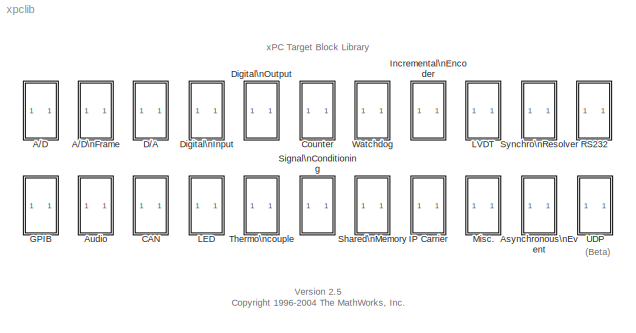
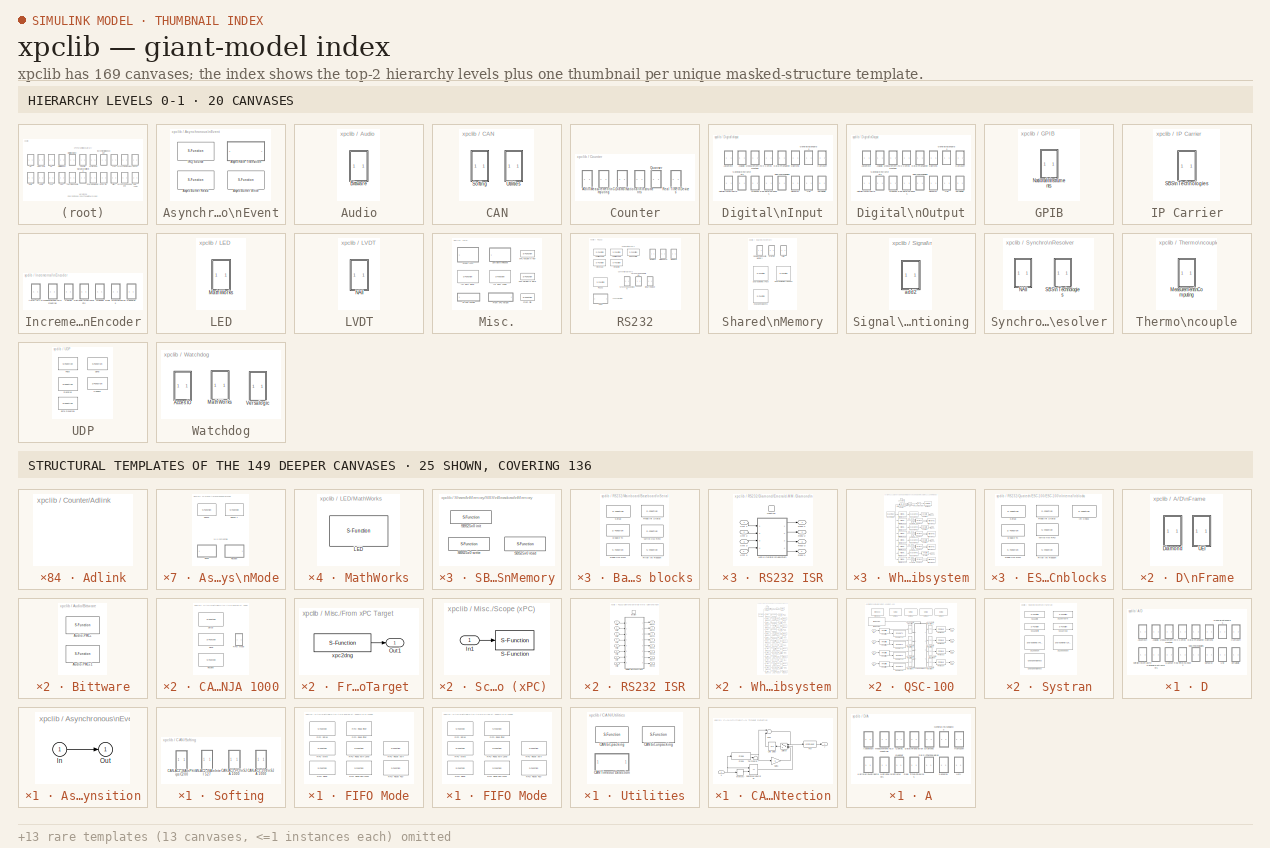
[diagram: thumbnail index - top-2 hierarchy levels (20 canvases) + 25 structural-template representatives of the remaining 149 canvases]
MODEL xpclib
KIND library
BLOCK [SubSystem] A//D
  MinAlgLoopOccurrences = off
  Ports = []
  PropExecContextAcrossSSBoundary = on
  RTWSystemCode = Auto
  ShowPortLabels = off
  TreatAsAtomicUnit = off
BLOCK [SubSystem] A//D/Advantech
  MinAlgLoopOccurrences = off
  OpenFcn = load_open_subsystem('xpcadvantechlib','xpcadvantechlib/A//D');
  Ports = []
  PropExecContextAcrossSSBoundary = on
  RTWSystemCode = Auto
  TreatAsAtomicUnit = off
BLOCK [SubSystem] A//D/Analogic
  MinAlgLoopOccurrences = off
  OpenFcn = load_open_subsystem('xpcanalogiclib','xpcanalogiclib/A//D');
  Ports = []
  PropExecContextAcrossSSBoundary = on
  RTWSystemCode = Auto
  TreatAsAtomicUnit = off
BLOCK [SubSystem] A//D/Contec
  MinAlgLoopOccurrences = off
  OpenFcn = load_open_subsystem('xpcconteclib','xpcconteclib/A//D');
  Ports = []
  PropExecContextAcrossSSBoundary = on
  RTWSystemCode = Auto
  TreatAsAtomicUnit = off
BLOCK [SubSystem] A//D/Data\nTranslation
  MinAlgLoopOccurrences = off
  OpenFcn = load_open_subsystem('xpcdatatranslationlib','xpcdatatranslationlib/A//D');
  Ports = []
  PropExecContextAcrossSSBoundary = on
  RTWSystemCode = Auto
  TreatAsAtomicUnit = off
BLOCK [SubSystem] A//D/Diamond
  MinAlgLoopOccurrences = off
  OpenFcn = load_open_subsystem('xpcdiamondlib','xpcdiamondlib/A//D');
  Ports = []
  PropExecContextAcrossSSBoundary = on
  RTWSystemCode = Auto
  TreatAsAtomicUnit = off
BLOCK [SubSystem] A//D/General\nStandards
  MinAlgLoopOccurrences = off
  OpenFcn = load_open_subsystem('xpcgeneralstandardslib','xpcgeneralstandardslib/A//D');
  Ports = []
  PropExecContextAcrossSSBoundary = on
  RTWSystemCode = Auto
  TreatAsAtomicUnit = off
BLOCK [SubSystem] A//D/Humusoft
  MinAlgLoopOccurrences = off
  OpenFcn = load_open_subsystem('xpchumusoftlib','xpchumusoftlib/A//D');
  Ports = []
  PropExecContextAcrossSSBoundary = on
  RTWSystemCode = Auto
  TreatAsAtomicUnit = off
BLOCK [SubSystem] A//D/Keithley\nMetrabyte
  MinAlgLoopOccurrences = off
  OpenFcn = load_open_subsystem('xpckeithleylib','xpckeithleylib/A//D');
  Ports = []
  PropExecContextAcrossSSBoundary = on
  RTWSystemCode = Auto
  TreatAsAtomicUnit = off
BLOCK [SubSystem] A//D/Measurement\nComputing
  MinAlgLoopOccurrences = off
  OpenFcn = load_open_subsystem('xpcmeasurementcomputinglib','xpcmeasurementcomputinglib/A//D');
  Ports = []
  PropExecContextAcrossSSBoundary = on
  RTWSystemCode = Auto
  TreatAsAtomicUnit = off
BLOCK [SubSystem] A//D/National\nInstruments
  MinAlgLoopOccurrences = off
  OpenFcn = load_open_subsystem('xpcnilib','xpcnilib/A//D');
  Ports = []
  PropExecContextAcrossSSBoundary = on
  RTWSystemCode = Auto
  TreatAsAtomicUnit = off
BLOCK [SubSystem] A//D/Quanser
  MinAlgLoopOccurrences = off
  OpenFcn = load_open_subsystem('xpcquanserlib','xpcquanserlib/A//D');
  Ports = []
  PropExecContextAcrossSSBoundary = on
  RTWSystemCode = Auto
  TreatAsAtomicUnit = off
BLOCK [SubSystem] A//D/Real Time\nDevices
  MinAlgLoopOccurrences = off
  OpenFcn = load_open_subsystem('xpcrealtimedeviceslib','xpcrealtimedeviceslib/A//D');
  Ports = []
  PropExecContextAcrossSSBoundary = on
  RTWSystemCode = Auto
  TreatAsAtomicUnit = off
BLOCK [SubSystem] A//D/SBS\nTechnologies
  MinAlgLoopOccurrences = off
  OpenFcn = load_open_subsystem('xpcsbstechnologieslib','xpcsbstechnologieslib/A//D');
  Ports = []
  PropExecContextAcrossSSBoundary = on
  RTWSystemCode = Auto
  TreatAsAtomicUnit = off
BLOCK [SubSystem] A//D/Sensoray
  MinAlgLoopOccurrences = off
  OpenFcn = load_open_subsystem('xpcsensoraylib','xpcsensoraylib/A//D');
  Ports = []
  PropExecContextAcrossSSBoundary = on
  RTWSystemCode = Auto
  TreatAsAtomicUnit = off
BLOCK [SubSystem] A//D/UEI
  MinAlgLoopOccurrences = off
  OpenFcn = load_open_subsystem('xpcueilib','xpcueilib/A//D');
  Ports = []
  PropExecContextAcrossSSBoundary = on
  RTWSystemCode = Auto
  TreatAsAtomicUnit = off
BLOCK [SubSystem] A//D/Versalogic
  MinAlgLoopOccurrences = off
  OpenFcn = load_open_subsystem('xpcversalogiclib','xpcversalogiclib/A//D');
  Ports = []
  PropExecContextAcrossSSBoundary = on
  RTWSystemCode = Auto
  TreatAsAtomicUnit = off
BLOCK [SubSystem] A//D\nFrame
  MinAlgLoopOccurrences = off
  Ports = []
  PropExecContextAcrossSSBoundary = on
  RTWSystemCode = Auto
  ShowPortLabels = off
  TreatAsAtomicUnit = off
BLOCK [SubSystem] A//D\nFrame/Diamond
  MinAlgLoopOccurrences = off
  OpenFcn = load_open_subsystem('xpcdiamondlib',['xpcdiamondlib/A//D' char(10) 'Frame']);
  Ports = []
  PropExecContextAcrossSSBoundary = on
  RTWSystemCode = Auto
  TreatAsAtomicUnit = off
BLOCK [SubSystem] A//D\nFrame/UEI
  MinAlgLoopOccurrences = off
  OpenFcn = load_open_subsystem('xpcueilib',['xpcueilib/A//D' char(10) 'Frame']);
  Ports = []
  PropExecContextAcrossSSBoundary = on
  RTWSystemCode = Auto
  TreatAsAtomicUnit = off
BLOCK [SubSystem] Asynchronous\nEvent
  MinAlgLoopOccurrences = off
  Ports = []
  PropExecContextAcrossSSBoundary = on
  RTWSystemCode = Auto
  TreatAsAtomicUnit = off
BLOCK [S-Function] Asynchronous\nEvent/Async Buffer Read
  FunctionName = xpcbuffer
  MaskDescription = Double Buffer data between asynchronous subsystems/blocks in a model.
  MaskDisplay = disp(['xPC Target\\nAsynchronous\\n Buffer Block\\nRead'])
  MaskEnableString = on
  MaskHelp = helpview(fullfile(docroot, 'mapfiles', 'xpc.map'), 'AsynchronousEvent_Async-Buffer-Read')
  MaskIconFrame = on
  MaskIconOpaque = on
  MaskIconRotate = none
  MaskIconUnits = autoscale
  MaskInitialization = DB_Type = 'READ';
  MaskPromptString = Sample time:
  MaskStyleString = edit
  MaskToolTipString = on
  MaskTunableValueString = on
  MaskType = Asynchronous Buffer Block: Read
  MaskValueString = 0.001
  MaskVariables = sample_time=@1;
  MaskVisibilityString = on
  Parameters = DB_Type, sample_time
  Ports = [1, 1]
BLOCK [S-Function] Asynchronous\nEvent/Async Buffer Write
  FunctionName = xpcbuffer
  MaskDescription = Double Buffer data between asynchronous subsystems/blocks in a model.
  MaskDisplay = disp(['xPC Target\\nAsynchronous\\n Buffer Block\\nWrite'])
  MaskEnableString = on
  MaskHelp = helpview(fullfile(docroot, 'mapfiles', 'xpc.map'), 'AsynchronousEvent_Async-Buffer-Write')
  MaskIconFrame = on
  MaskIconOpaque = on
  MaskIconRotate = none
  MaskIconUnits = autoscale
  MaskInitialization = DB_Type = 'WRITE';
  MaskPromptString = Sample time:
  MaskStyleString = edit
  MaskToolTipString = on
  MaskTunableValueString = on
  MaskType = Asynchronous Buffer Block: Write
  MaskValueString = -1
  MaskVariables = sample_time=@1;
  MaskVisibilityString = on
  Parameters = DB_Type, sample_time
  Ports = [1, 1]
BLOCK [SubSystem] Asynchronous\nEvent/Async Rate Transition
  MaskDescription = Converts rate of input signal to specified sample time.
  MaskDisplay = disp(['xPC Target\\nAsynchronous\\n Rate\\n Transition'])
  MaskEnableString = on
  MaskHelp = helpview(fullfile(docroot, 'mapfiles', 'xpc.map'), 'AsynchronousEvent_Async-Rate-Transition')
  MaskIconFrame = on
  MaskIconOpaque = on
  MaskIconRotate = none
  MaskIconUnits = autoscale
  MaskPromptString = Sample time:
  MaskStyleString = edit
  MaskToolTipString = on
  MaskTunableValueString = on
  MaskType = Rate Transition
  MaskValueString = 0.001
  MaskVariables = sample_time=@1;
  MaskVisibilityString = on
  MinAlgLoopOccurrences = off
  Ports = [1, 1]
  PropExecContextAcrossSSBoundary = on
  RTWSystemCode = Auto
  TreatAsAtomicUnit = off
BLOCK [Inport] Asynchronous\nEvent/Async Rate Transition/In
  IconDisplay = Port number
  LatchInput = off
  SampleTime = sample_time
  Tag = AsyncRateTransition
BLOCK [Outport] Asynchronous\nEvent/Async Rate Transition/Out
  BusOutputAsStruct = off
  IconDisplay = Port number
  InitialOutput = 0
  Tag = AsyncRateTransition
BLOCK [S-Function] Asynchronous\nEvent/IRQ Source
  FunctionName = xpcinterrupt
  MaskCallbackString = |||
  MaskDescription = Install the downstream function-call subsystem as an xPC Target Interrupt Service Routine.
  MaskDisplay = disp(['xPC Target\\nIRQ Source:\\n',num2str(irqNo)])
  MaskEnableString = on,on,on,on
  MaskHelp = helpview(fullfile(docroot, 'mapfiles', 'xpc.map'), 'AsynchronousEvent_IRQ-Source')
  MaskIconFrame = on
  MaskIconOpaque = on
  MaskIconRotate = none
  MaskIconUnits = autoscale
  MaskInitialization = irqNo=irqNo+2;\n[irq, devid, vendid,slot,handlers] = mxpcinterrupt(irqNo, b_type,slot);
  MaskPromptString = IRQ line number:|Allow preemption of function-call subsystem|I/O board generating the interrupt:|PCI slot (-1: autosearch):
  MaskStyleString = popup(3|4|5|6|7|8|9|10|11|12|13|14|15),checkbox,popup(CB CIO-CTR05|CB PCI-CTR05|Softing CAN-AC2-104|Softing CAN-AC2-PCI|RTD DM6804|Audio-PMC+|Scramnet_SC150+|ATI-RP R5|Diamond_MM-32|UEI_MFx|VMIC_5565|SBS_25x0_ID_0x100|SBS_25x0_ID_0x101|SBS_25x0_ID_0x102|SBS_25x0_ID_0x103|None/Other),edit
  MaskTabNameString = ,,,
  MaskToolTipString = on,on,on,on
  MaskTunableValueString = on,on,on,on
  MaskType = xpcinterrupt
  MaskValueString = 12|on|CB CIO-CTR05|-1
  MaskVarAliasString = ,,,
  MaskVariables = irqNo=@1;preempt=@2;b_type=@3;slot=&4;
  MaskVisibilityString = on,on,on,on
  Parameters = irq,devid,vendid,slot,handlers,preempt
  Ports = [0, 1]
BLOCK [SubSystem] Audio
  MinAlgLoopOccurrences = off
  Ports = []
  PropExecContextAcrossSSBoundary = on
  RTWSystemCode = Auto
  ShowPortLabels = off
  TreatAsAtomicUnit = off
BLOCK [SubSystem] Audio/Bittware
  MinAlgLoopOccurrences = off
  Ports = []
  PropExecContextAcrossSSBoundary = on
  RTWSystemCode = Auto
  TreatAsAtomicUnit = off
BLOCK [S-Function] Audio/Bittware/Audio-PMC+
  FunctionName = adbwapmc
  InitFcn = mbwaudpmc(1)
  MaskCallbackString = |||||
  MaskDescription = Audio-PMC+\nBittWare\nAnalog Input
  MaskDisplay = disp('Audio-PMC\\nBittWare\\nAnalog Input'); port_label('output',1,'1');
  MaskEnableString = on,on,on,on,on,on
  MaskHelp = helpview(fullfile(docroot, 'mapfiles', 'xpc.map'), 'BittWare_Audio-PMC_AD')
  MaskIconFrame = on
  MaskIconOpaque = on
  MaskIconRotate = none
  MaskIconUnits = autoscale
  MaskInitialization = [maskdisplay, framesize, samplerate, sampletime] = mbwaudpmc( 2, channel, framesize, samplerate, sampletime, slot );\nset_param( gcb, 'MaskDisplay', maskdisplay );\n\n
  MaskPromptString = Channel Vector:|Frame Size (samples):|Sample Rate (Hz):|Output Format:|Sampletime:|PCI Slot (-1: autosearch):
  MaskSelfModifiable = on
  MaskStyleString = edit,edit,edit,popup(signed 32 bit integer|+-1.000),edit,edit
  MaskTabNameString = ,,,,,
  MaskToolTipString = on,on,on,on,on,on
  MaskTunableValueString = off,off,off,off,off,off
  MaskType = bwaudpmc-ain
  MaskValueString = [1]|64|48000|+-1.000|-1|-1
  MaskVarAliasString = ,,,,,
  MaskVariables = channel=@1;framesize=@2;samplerate=@3;convert=@4;sampletime=@5;slot=@6;
  MaskVisibilityString = on,on,on,on,on,on
  Parameters = channel, framesize, samplerate, sampletime, convert, slot
  Ports = [0, 1]
BLOCK [S-Function] Audio/Bittware/Audio-PMC+1
  FunctionName = dabwapmc
  InitFcn = mbwaudpmc(1)
  MaskCallbackString = ||||
  MaskDescription = Audio-PMC+\nBittWare\nAnalog Output
  MaskDisplay = disp('Audio-PMC\\nBittWare\\nAnalog Output'); port_label('input',1,'1');
  MaskEnableString = on,on,on,on,on
  MaskHelp = helpview(fullfile(docroot, 'mapfiles', 'xpc.map'), 'BittWare_Audio-PMC_DA')
  MaskIconFrame = on
  MaskIconOpaque = on
  MaskIconRotate = none
  MaskIconUnits = autoscale
  MaskInitialization = [maskdisplay, framesize, samplerate, sampletime] = mbwaudpmc( 2, channel, framesize, samplerate, sampletime, slot );\nset_param( gcb, 'MaskDisplay', maskdisplay );\n
  MaskPromptString = Channel Vector:|Frame Size (samples):|Sample Rate (Hz):|Sampletime:|PCI Slot (-1: autosearch):
  MaskSelfModifiable = on
  MaskStyleString = edit,edit,edit,edit,edit
  MaskTabNameString = ,,,,
  MaskToolTipString = on,on,on,on,on
  MaskTunableValueString = on,on,on,on,on
  MaskType = bwaudpmc-aout
  MaskValueString = [1]|64|48000|-1|-1
  MaskVarAliasString = ,,,,
  MaskVariables = channel=@1;framesize=@2;samplerate=@3;sampletime=@4;slot=@5;
  MaskVisibilityString = on,on,on,on,on
  Parameters = channel, framesize, samplerate, sampletime, 0, slot
  Ports = [1]
BLOCK [SubSystem] CAN
  MinAlgLoopOccurrences = off
  Ports = []
  PropExecContextAcrossSSBoundary = on
  RTWSystemCode = Auto
  TreatAsAtomicUnit = off
BLOCK [SubSystem] CAN/Softing
  MaskIconFrame = on
  MaskIconOpaque = on
  MaskIconRotate = none
  MaskIconUnits = autoscale
  MinAlgLoopOccurrences = off
  Ports = []
  PropExecContextAcrossSSBoundary = on
  RTWSystemCode = Auto
  TreatAsAtomicUnit = off
BLOCK [SubSystem] CAN/Softing/CAN-AC2-104\nSJA 1000
  MinAlgLoopOccurrences = off
  Ports = []
  PropExecContextAcrossSSBoundary = on
  RTWSystemCode = Auto
  TreatAsAtomicUnit = off
BLOCK [SubSystem] CAN/Softing/CAN-AC2-104\nSJA 1000/FIFO Mode
  MinAlgLoopOccurrences = off
  Ports = []
  PropExecContextAcrossSSBoundary = on
  RTWSystemCode = Auto
  TreatAsAtomicUnit = off
BLOCK [S-Function] CAN/Softing/CAN-AC2-104\nSJA 1000/FIFO Mode/FIFO Read 
  FunctionName = canac2pcireceivef
  MaskCallbackString = |||
  MaskDescription = Softing\nCAN-AC2-104\nwith SJA1000
  MaskDisplay = disp(['CAN-AC2-104 B',num2str(board),'\\nFIFO mode\\nRead'])
  MaskEnableString = on,on,on,on
  MaskHelp = helpview(fullfile(docroot, 'mapfiles', 'xpc.map'), 'Softing_CAN-AC2-104-SJA-1000_FIFO-Read')
  MaskIconFrame = on
  MaskIconOpaque = on
  MaskIconRotate = none
  MaskIconUnits = autoscale
  MaskPromptString = Board:|FIFO read depth:|Show status output port|Sample time:
  MaskSelfModifiable = on
  MaskStyleString = popup(1|2|3),edit,checkbox,edit
  MaskTabNameString = ,,,
  MaskToolTipString = on,on,on,on
  MaskTunableValueString = on,on,on,on
  MaskType = canac2104readfifo
  MaskValueString = 1|1|off|0.001
  MaskVarAliasString = ,,,
  MaskVariables = board=@1;depth=@2;status=@3;sampletime=@4;
  MaskVisibilityString = on,on,on,on
  Parameters = board, depth, status, sampletime
  Ports = [0, 1]
BLOCK [Reference] CAN/Softing/CAN-AC2-104\nSJA 1000/FIFO Mode/FIFO Read Filter   REF=xpclib/CAN/Softing/CAN-AC2-PCI\nSJA 1000/FIFO Mode/FIFO Read Filter 
  Ports = [1, 2]
  SourceBlock = xpclib/CAN/Softing/CAN-AC2-PCI\nSJA 1000/FIFO Mode/FIFO Read Filter
  SourceType = canrcvfifofilter
  direction = Exclude
  ident = []
  identsel = Exclude
  portin = Any
BLOCK [S-Function] CAN/Softing/CAN-AC2-104\nSJA 1000/FIFO Mode/FIFO Read RCV Level 
  FunctionName = canac2readrcvfifolevel
  MaskCallbackString = |
  MaskDescription = Softing\nCAN-AC2-104\nwith SJA1000
  MaskDisplay = disp(['CAN-AC2-104 B',num2str(board),'\\nFIFO mode\\nRCV FIFO level'])
  MaskEnableString = on,on
  MaskHelp = helpview(fullfile(docroot, 'mapfiles', 'xpc.map'), 'Softing_CAN-AC2-104-SJA-1000_FIFO-Read-RCV-Level')
  MaskIconFrame = on
  MaskIconOpaque = on
  MaskIconRotate = none
  MaskIconUnits = autoscale
  MaskPromptString = Board:|Sample time:
  MaskSelfModifiable = on
  MaskStyleString = popup(1|2|3),edit
  MaskTabNameString = ,
  MaskToolTipString = on,on
  MaskTunableValueString = on,on
  MaskType = canac2readrcvfifolevel
  MaskValueString = 1|0.001
  MaskVarAliasString = ,
  MaskVariables = board=@1;sampletime=@2;
  MaskVisibilityString = on,on
  Parameters = board, sampletime
  Ports = [0, 1]
BLOCK [S-Function] CAN/Softing/CAN-AC2-104\nSJA 1000/FIFO Mode/FIFO Read XMT Level 
  FunctionName = canac2readxmtfifolevel
  MaskCallbackString = |
  MaskDescription = Softing\nCAN-AC2-104\nwith SJA1000
  MaskDisplay = disp(['CAN-AC2-104 B',num2str(board),'\\nFIFO mode\\nXMT FIFO level'])
  MaskEnableString = on,on
  MaskHelp = helpview(fullfile(docroot, 'mapfiles', 'xpc.map'), 'Softing_CAN-AC2-104-SJA-1000_FIFO-Read-XMT-Level')
  MaskIconFrame = on
  MaskIconOpaque = on
  MaskIconRotate = none
  MaskIconUnits = autoscale
  MaskPromptString = Board:|Sample time:
  MaskSelfModifiable = on
  MaskStyleString = popup(1|2|3),edit
  MaskTabNameString = ,
  MaskToolTipString = on,on
  MaskTunableValueString = on,on
  MaskType = canac2readxmtfifolevel
  MaskValueString = 1|0.001
  MaskVarAliasString = ,
  MaskVariables = board=@1;sampletime=@2;
  MaskVisibilityString = on,on
  Parameters = board, sampletime
  Ports = [0, 1]
BLOCK [S-Function] CAN/Softing/CAN-AC2-104\nSJA 1000/FIFO Mode/FIFO Reset RCV 
  FunctionName = canac2resetrcvfifo
  MaskCallbackString = |
  MaskDescription = Softing\nCAN-AC2-104\nwith SJA1000
  MaskDisplay = disp(['CAN-AC2-104 B',num2str(board),'\\nFIFO mode\\nReset RCV FIFO'])
  MaskEnableString = on,on
  MaskHelp = helpview(fullfile(docroot, 'mapfiles', 'xpc.map'), 'Softing_CAN-AC2-104-SJA-1000_FIFO-Reset-RCV')
  MaskIconFrame = on
  MaskIconOpaque = on
  MaskIconRotate = none
  MaskIconUnits = autoscale
  MaskPromptString = Board:|Sample time:
  MaskSelfModifiable = on
  MaskStyleString = popup(1|2|3),edit
  MaskTabNameString = ,
  MaskToolTipString = on,on
  MaskTunableValueString = on,on
  MaskType = canac2resetrcvfifo
  MaskValueString = 1|0.001
  MaskVarAliasString = ,
  MaskVariables = board=@1;sampletime=@2;
  MaskVisibilityString = on,on
  Parameters = board, sampletime
  Ports = [1]
BLOCK [S-Function] CAN/Softing/CAN-AC2-104\nSJA 1000/FIFO Mode/FIFO Reset XMT 
  FunctionName = canac2resetxmtfifo
  MaskCallbackString = |
  MaskDescription = Softing\nCAN-AC2-104\nwith SJA1000
  MaskDisplay = disp(['CAN-AC2-104 B',num2str(board),'\\nFIFO mode\\nReset XMT FIFO'])
  MaskEnableString = on,on
  MaskHelp = helpview(fullfile(docroot, 'mapfiles', 'xpc.map'), 'Softing_CAN-AC2-104-SJA-1000_FIFO-Reset-XMT')
  MaskIconFrame = on
  MaskIconOpaque = on
  MaskIconRotate = none
  MaskIconUnits = autoscale
  MaskPromptString = Board:|Sample time:
  MaskSelfModifiable = on
  MaskStyleString = popup(1|2|3),edit
  MaskTabNameString = ,
  MaskToolTipString = on,on
  MaskTunableValueString = on,on
  MaskType = canac2resetxmtfifo
  MaskValueString = 1|0.001
  MaskVarAliasString = ,
  MaskVariables = board=@1;sampletime=@2;
  MaskVisibilityString = on,on
  Parameters = board, sampletime
  Ports = [1]
BLOCK [S-Function] CAN/Softing/CAN-AC2-104\nSJA 1000/FIFO Mode/FIFO Setup 
  FunctionName = canac2104setupf
  MaskCallbackString = ||||||||||||
  MaskDescription = Softing\nCAN-AC2-104\nwith SJA1000
  MaskDisplay = disp(['CAN-AC2-104 B',num2str(board),'\\nFIFO: CAN 1 / CAN 2\\nStandard / Extended'])
  MaskEnableString = on,on,on,on,on,on,on,on,on,on,on,on,on
  MaskHelp = helpview(fullfile(docroot, 'mapfiles', 'xpc.map'), 'Softing_CAN-AC2-104-SJA-1000_FIFO-Setup')
  MaskIconFrame = on
  MaskIconOpaque = on
  MaskIconRotate = none
  MaskIconUnits = autoscale
  MaskInitialization = initarray=0;\ntermarray=0;\nioBaseAddress=768;\nmemBaseAddress=819200;\nif strcmp(intNo,'None'), intNo='0'; end\nintNo=str2num(intNo);\n[can1UserBR, can2UserBR, initarray, termarray,ioBaseAddress,  memBaseAddress]= mxpccanf(1, can1Baudrate, can1UserBR, can2Baudrate, can2UserBR, init, term, ioBaseAddressL, memBaseAddressL, board);\n
  MaskPromptString = Board:|CAN 1 - baud rate:|CAN 1 - user defined baud rate:|CAN 1 - acceptance [StdMask, StdCode, ExtMask, ExtCode]:|CAN 2 - baud rate:|CAN 2 - user defined baud rate:|CAN 2 - acceptance [StdMask, StdCode, ExtMask, ExtCode]:|Enable error frame detection|Initialization command structure:|Termination:|I/O base address:|Memory base address:|Interrupt line:
  MaskStyleString = popup(1|2|3),popup(1 MBaud|800 kBaud|500 kBaud|250 kBaud|125 kBaud|100 kBaud|10 kBaud|User defined),edit,edit,popup(1 MBaud|800 kBaud|500 kBaud|250 kBaud|125 kBaud|100 kBaud|10 kBaud|User defined),edit,edit,checkbox,edit,edit,edit,edit,popup(None|5|9|10|11|12|15)
  MaskTabNameString = ,,,,,,,,,,,,
  MaskToolTipString = on,on,on,on,on,on,on,on,on,on,on,on,on
  MaskTunableValueString = on,on,on,on,on,on,on,on,on,on,on,on,on
  MaskType = canac2104setupfifo
  MaskValueString = 1|1 MBaud|[1,1,4,3]|[0,0,0,0]|1 MBaud|[1,1,4,3]|[0,0,0,0]|off|[]|[]|0x300|0xd0000|None
  MaskVarAliasString = ,,,,,,,,,,,,
  MaskVariables = board=@1;can1Baudrate=@2;can1UserBR=@3;acc1=@4;can2Baudrate=@5;can2UserBR=@6;acc2=@7;efdetection=@8;init=@9;term=@10;ioBaseAddressL=&11;memBaseAddressL=&12;intNo=&13;
  MaskVisibilityString = on,on,on,on,on,on,on,on,on,on,on,on,on
  Parameters = can1UserBR, can2UserBR, initarray, termarray, ioBaseAddress, memBaseAddress, intNo, board, efdetection, acc1, acc2
  Ports = []
BLOCK [S-Function] CAN/Softing/CAN-AC2-104\nSJA 1000/FIFO Mode/FIFO Write 
  FunctionName = canac2pcisendf
  MaskCallbackString = ||
  MaskDescription = Softing\nCAN-AC2-104\nwith SJA1000
  MaskDisplay = disp(['CAN-AC2-104 B',num2str(board),'\\nFIFO mode\\nWrite'])
  MaskEnableString = on,on,on
  MaskHelp = helpview(fullfile(docroot, 'mapfiles', 'xpc.map'), 'Softing_CAN-AC2-104-SJA-1000_FIFO-Write')
  MaskIconFrame = on
  MaskIconOpaque = on
  MaskIconRotate = none
  MaskIconUnits = autoscale
  MaskPromptString = Board:|Show status output port|Sample time:
  MaskSelfModifiable = on
  MaskStyleString = popup(1|2|3),checkbox,edit
  MaskTabNameString = ,,
  MaskToolTipString = on,on,on
  MaskTunableValueString = on,on,on
  MaskType = canac2104writefifo
  MaskValueString = 1|off|0.001
  MaskVarAliasString = ,,
  MaskVariables = board=@1;status=@2;sampletime=@3;
  MaskVisibilityString = on,on,on
  Parameters = board, status, sampletime
  Ports = [1]
BLOCK [S-Function] CAN/Softing/CAN-AC2-104\nSJA 1000/Receive 
  FunctionName = canac2104receive
  MaskCallbackString = |||||||
  MaskDescription = Softing\nCAN-AC2-104\nwith SJA1000
  MaskDisplay = text(0.05,0.75,'CAN-AC2-104 B1','horizontalAlignment','left');text(0.05,0.5,'CAN 1 - Receive','horizontalAlignment','left');text(0.05,0.25,'Standard 11bit','horizontalAlignment','left');port_label('output',1,'0');
  MaskEnableString = on,on,on,on,on,on,on,on
  MaskHelp = helpview(fullfile(docroot, 'mapfiles', 'xpc.map'), 'Softing_CAN-AC2-104-SJA-1000_Receive')
  MaskIconFrame = on
  MaskIconOpaque = on
  MaskIconRotate = none
  MaskIconUnits = normalized
  MaskInitialization = mxpccanicon('CAN-AC2-104','Receive',canPort,range,ids,board)
  MaskPromptString = Board:|CAN port:|CAN identifier range:|Identifiers:|Output port options:|Generate interrupts|Sample time:|Ididx:
  MaskSelfModifiable = on
  MaskStyleString = popup(1|2|3),popup(CAN 1|CAN 2),popup(Standard (11-bit)|Extended (29-bit)),edit,popup(Data|Data - Status|Data - Timestamp|Data - Status - Timestamp),checkbox,edit,edit
  MaskTabNameString = ,,,,,,,
  MaskToolTipString = on,on,on,on,on,on,on,on
  MaskTunableValueString = on,on,on,on,on,on,on,on
  MaskType = canac2104receive
  MaskValueString = 1|CAN 1|Standard (11-bit)|[0]|Data|off|0.001|[0]
  MaskVarAliasString = ,,,,,,,
  MaskVariables = board=@1;canPort=@2;range=@3;ids=@4;output=@5;inten=@6;ts=@7;ididx=@8;
  MaskVisibilityString = on,on,on,on,on,on,on,off
  Parameters = canPort, ids, ididx, output, ts, board
  Ports = [0, 1]
BLOCK [S-Function] CAN/Softing/CAN-AC2-104\nSJA 1000/Send 
  FunctionName = canac2104send
  MaskCallbackString = |||||||
  MaskDescription = Softing\nCAN-AC2-104\nwith SJA1000
  MaskDisplay = text(0.98,0.75,'CAN-AC2-104 B1','horizontalAlignment','right');text(0.98,0.5,'CAN 1 - Send','horizontalAlignment','right');text(0.98,0.25,'Standard 11bit','horizontalAlignment','right');port_label('input',1,'0');
  MaskEnableString = on,on,on,on,on,on,on,on
  MaskHelp = helpview(fullfile(docroot, 'mapfiles', 'xpc.map'), 'Softing_CAN-AC2-104-SJA-1000_Send')
  MaskIconFrame = on
  MaskIconOpaque = on
  MaskIconRotate = none
  MaskIconUnits = normalized
  MaskInitialization = if isempty(sizes), sizesout=8; end;\nif length(sizes)==1, sizesout=sizes*ones(1,length(ids)); else, sizesout=sizes; end;\nif length(sizesout)~=length(ids), error('Identifier vector and Data Frame Size Vector must have the same length');end\nif ~isempty(find(sizesout<1|sizesout>8)), error('Data Frame Sizes must be in the range 1..8'); end;\nmxpccanicon('CAN-AC2-104','Send',canPort,range,ids,board)\...<+1ch>
  MaskPromptString = Board:|CAN port:|CAN identifier range:|Identifiers:|Data frame sizes:|Show status output ports|Sample time:|Ididx:
  MaskSelfModifiable = on
  MaskStyleString = popup(1|2|3),popup(CAN 1|CAN 2),popup(Standard (11-bit)|Extended (29-bit)),edit,edit,checkbox,edit,edit
  MaskTabNameString = ,,,,,,,
  MaskToolTipString = on,on,on,on,on,on,on,on
  MaskTunableValueString = on,on,on,on,on,on,on,on
  MaskType = canac2104send
  MaskValueString = 1|CAN 1|Standard (11-bit)|[0]|[8]|off|0.001|[0]
  MaskVarAliasString = ,,,,,,,
  MaskVariables = board=@1;canPort=@2;range=@3;ids=@4;sizes=@5;output=@6;ts=@7;ididx=@8;
  MaskVisibilityString = on,on,on,on,on,on,on,off
  Parameters = canPort, ids, ididx, output, ts, sizesout, board
  Ports = [1]
BLOCK [S-Function] CAN/Softing/CAN-AC2-104\nSJA 1000/Setup 
  FunctionName = canac2104setup
  InitFcn = mxpccan(1);
  MaskCallbackString = |||||||||
  MaskDescription = Softing\nCAN-AC2-104\nwith SJA1000
  MaskDisplay = disp(['CAN-AC2-104 B',num2str(board),'\\nCAN 1 / CAN 2\\nStandard / Extended'])
  MaskEnableString = on,on,on,on,on,on,on,on,on,on
  MaskHelp = helpview(fullfile(docroot, 'mapfiles', 'xpc.map'), 'Softing_CAN-AC2-104-SJA-1000_Setup')
  MaskIconFrame = on
  MaskIconOpaque = on
  MaskIconRotate = none
  MaskIconUnits = autoscale
  MaskInitialization = initarray=0;\ntermarray=0;\nioBaseAddress=768;\nmemBaseAddress=819200;\nif strcmp(intNo,'None'), intNo='0'; end\nintNo=str2num(intNo);\n[can1UserBR, can2UserBR, can1SendS, can1SendE, can2SendS, can2SendE, can1RecS, can1RecE, can2RecS, can2RecE, can1RecSI, can1RecEI, can2RecSI, can2RecEI, initarray, termarray, ioBaseAddress, memBaseAddress]= mxpccan(2, 1, can1Baudrate, can1UserBR, can2Baudrate, can...<+63ch>
  MaskPromptString = Board:|CAN 1 - baud rate:|CAN 1 - user defined baud rate:|CAN 2 - baud rate:|CAN 2 - user defined baud rate:|Initialization command structure:|Termination:|I/O base address:|Memory base address:|Interrupt line:
  MaskStyleString = popup(1|2|3),popup(1 MBaud|800 kBaud|500 kBaud|250 kBaud|125 kBaud|100 kBaud|10 kBaud|User defined),edit,popup(1 MBaud|800 kBaud|500 kBaud|250 kBaud|125 kBaud|100 kBaud|10 kBaud|User defined),edit,edit,edit,edit,edit,popup(None|5|9|10|11|12|15)
  MaskTabNameString = ,,,,,,,,,
  MaskToolTipString = on,on,on,on,on,on,on,on,on,on
  MaskTunableValueString = on,on,on,on,on,on,on,on,on,on
  MaskType = canac2104setup
  MaskValueString = 1|1 MBaud|[1,1,4,3]|1 MBaud|[1,1,4,3]|[]|[]|0x300|0xd0000|None
  MaskVarAliasString = ,,,,,,,,,
  MaskVariables = board=@1;can1Baudrate=@2;can1UserBR=@3;can2Baudrate=@4;can2UserBR=@5;init=@6;term=@7;ioBaseAddressL=&8;memBaseAddressL=&9;intNo=&10;
  MaskVisibilityString = on,on,on,on,on,on,on,on,on,on
  Parameters = can1UserBR, can2UserBR, can1SendS, can1RecS, can2SendS, can2RecS, can1SendE, can1RecE, can2SendE, can2RecE, can1RecSI, can1RecEI, can2RecSI, can2RecEI, initarray, termarray, ioBaseAddress, memBaseAddress, intNo, board  <repeated x3 — deduplicated; at blocks: Setup>
  Ports = []
BLOCK [SubSystem] CAN/Softing/CAN-AC2-ISA\nIntel 527
  MinAlgLoopOccurrences = off
  Ports = []
  PropExecContextAcrossSSBoundary = on
  RTWSystemCode = Auto
  TreatAsAtomicUnit = off
BLOCK [S-Function] CAN/Softing/CAN-AC2-ISA\nIntel 527/Receive 
  FunctionName = canac2isaereceive
  MaskCallbackString = |||||||
  MaskDescription = Softing\nCAN-AC2-ISA\nwith Intel 82527
  MaskDisplay = text(0.05,0.75,'CAN-AC2-ISA','horizontalAlignment','left');text(0.05,0.5,'CAN 1 - Receive','horizontalAlignment','left');text(0.05,0.25,'Standard 11bit','horizontalAlignment','left');port_label('output',1,'0');
  MaskEnableString = on,on,on,on,on,on,on,on
  MaskHelp = helpview(fullfile(docroot, 'mapfiles', 'xpc.map'), 'Softing_CAN-AC2-ISA-Intel-527_Receive')
  MaskIconFrame = on
  MaskIconOpaque = on
  MaskIconRotate = none
  MaskIconUnits = normalized
  MaskInitialization = board=0;\nmxpccanicon('CAN-AC2-ISA','Receive',canPort,range,ids,board)
  MaskPromptString = Board:|CAN port:|CAN identifier range:|Identifiers:|Output port options:|Generate interrupts|Sample time:|Ididx:
  MaskSelfModifiable = on
  MaskStyleString = popup(1|2|3),popup(CAN 1|CAN 2),popup(Standard (11-bit)|Extended (29-bit)),edit,popup(Data|Data - Status|Data - Timestamp|Data - Status - Timestamp),checkbox,edit,edit
  MaskTabNameString = ,,,,,,,
  MaskToolTipString = on,on,on,on,on,on,on,on
  MaskTunableValueString = on,on,on,on,on,on,on,on
  MaskType = canac2isaereceive
  MaskValueString = 1|CAN 1|Standard (11-bit)|[0]|Data|off|0.001|[0]
  MaskVarAliasString = ,,,,,,,
  MaskVariables = board=@1;canPort=@2;range=@3;ids=@4;output=@5;inten=@6;ts=@7;ididx=@8;
  MaskVisibilityString = off,on,on,on,on,on,on,off
  Parameters = canPort, ids, ididx, output, ts, board
  Ports = [0, 1]
BLOCK [S-Function] CAN/Softing/CAN-AC2-ISA\nIntel 527/Send 
  FunctionName = canac2isaesend
  MaskCallbackString = |||||||
  MaskDescription = Softing\nCAN-AC2-ISA\nwith Intel 82527
  MaskDisplay = text(0.98,0.75,'CAN-AC2-ISA','horizontalAlignment','right');text(0.98,0.5,'CAN 1 - Send','horizontalAlignment','right');text(0.98,0.25,'Standard 11bit','horizontalAlignment','right');port_label('input',1,'0');
  MaskEnableString = on,on,on,on,on,on,on,on
  MaskHelp = helpview(fullfile(docroot, 'mapfiles', 'xpc.map'), 'Softing_CAN-AC2-ISA-Intel-527_Send')
  MaskIconFrame = on
  MaskIconOpaque = on
  MaskIconRotate = none
  MaskIconUnits = normalized
  MaskInitialization = if isempty(sizes), sizesout=8; end;\nif length(sizes)==1, sizesout=sizes*ones(1,length(ids)); else, sizesout=sizes; end;\nif length(sizesout)~=length(ids), error('Identifier vector and Data Frame Size Vector must have the same length');end\nif ~isempty(find(sizesout<1|sizesout>8)), error('Data Frame Sizes must be in the range 1..8'); end;\nboard=0;\nmxpccanicon('CAN-AC2-ISA','Send',canPort,range,i...<+11ch>
  MaskPromptString = Board:|CAN port:|CAN identifier range:|Identifiers:|Data frame sizes:|Show status output ports|Sample time:|Ididx:
  MaskSelfModifiable = on
  MaskStyleString = popup(1|2|3),popup(CAN 1|CAN 2),popup(Standard (11-bit)|Extended (29-bit)),edit,edit,checkbox,edit,edit
  MaskTabNameString = ,,,,,,,
  MaskToolTipString = on,on,on,on,on,on,on,on
  MaskTunableValueString = on,on,on,on,on,on,on,on
  MaskType = canac2isaesend
  MaskValueString = 1|CAN 1|Standard (11-bit)|[0]|[8]|off|0.001|[0]
  MaskVarAliasString = ,,,,,,,
  MaskVariables = board=@1;canPort=@2;range=@3;ids=@4;sizes=@5;output=@6;ts=@7;ididx=@8;
  MaskVisibilityString = off,on,on,on,on,on,on,off
  Parameters = canPort, ids, ididx, output, ts, sizesout, board
  Ports = [1]
BLOCK [S-Function] CAN/Softing/CAN-AC2-ISA\nIntel 527/Setup 
  FunctionName = canac2isaesetup
  InitFcn = mxpccan(1);
  MaskCallbackString = |||||||
  MaskDescription = Softing\nCAN-AC2-ISA\nwith Intel 82527
  MaskDisplay = disp(['CAN-AC2-ISA E','\\nCAN 1 / CAN 2\\nStandard / Extended'])
  MaskEnableString = on,on,on,on,on,on,on,on
  MaskHelp = helpview(fullfile(docroot, 'mapfiles', 'xpc.map'), 'Softing_CAN-AC2-ISA-Intel-527_Setup')
  MaskIconFrame = on
  MaskIconOpaque = on
  MaskIconRotate = none
  MaskIconUnits = autoscale
  MaskInitialization = board=1;\ninitarray=0;\ntermarray=0;\nioBaseAddress=768;\nioBaseAddressL='0x300';\nmemBaseAddress=819200;\nintNo='None';\nif strcmp(intNo,'None'), intNo='0'; end\nintNo=str2num(intNo);\n[can1UserBR, can2UserBR, can1SendS, can1SendE, can2SendS, can2SendE, can1RecS, can1RecE, can2RecS, can2RecE, can1RecSI, can1RecEI, can2RecSI, can2RecEI, initarray, termarray, ioBaseAddress, memBaseAddress]= mxpccan...<+168ch>
  MaskPromptString = |CAN 1 - baud rate:|CAN 1 - user defined baud rate:|CAN 2 - baud rate:|CAN 2 - user defined baud rate:|Initialization command structure:|Termination:|Memory base address (i.e. 0xd000):
  MaskStyleString = popup(1),popup(1 MBaud|800 kBaud|500 kBaud|250 kBaud|125 kBaud|100 kBaud|10 kBaud|User defined),edit,popup(1 MBaud|800 kBaud|500 kBaud|250 kBaud|125 kBaud|100 kBaud|10 kBaud|User defined),edit,edit,edit,popup(0 (64k): D0000-DFFFF|1 (16k): D0000-D3FFF|2 (16k): D4000-D7FFF|3 (16k): D8000-D8FFF|4 (16k): DC000-DFFFF|5 (16k): E0000-E3FFF|6 (16k): E4000-E7FFF|7 (64k): E0000-EFFFF)
  MaskTabNameString = ,,,,,,,
  MaskToolTipString = on,on,on,on,on,on,on,on
  MaskTunableValueString = on,on,on,on,on,on,on,on
  MaskType = canac2isaesetup
  MaskValueString = 1|1 MBaud|[1,1,4,3]|1 MBaud|[1,1,4,3]|[]|[]|2 (16k): D4000-D7FFF
  MaskVarAliasString = ,,,,,,,
  MaskVariables = board=@1;can1Baudrate=@2;can1UserBR=@3;can2Baudrate=@4;can2UserBR=@5;init=@6;term=@7;memBaseAddressL=@8;
  MaskVisibilityString = off,on,on,on,on,on,on,on
  Ports = []
BLOCK [SubSystem] CAN/Softing/CAN-AC2-ISA\nPhilips C200
  MinAlgLoopOccurrences = off
  Ports = []
  PropExecContextAcrossSSBoundary = on
  RTWSystemCode = Auto
  TreatAsAtomicUnit = off
BLOCK [S-Function] CAN/Softing/CAN-AC2-ISA\nPhilips C200/Receive 
  FunctionName = canac2isareceive
  MaskCallbackString = |||||||
  MaskDescription = Softing\nCAN-AC2-ISA\nwith Philips PCA 82C200
  MaskDisplay = text(0.05,0.75,'CAN-AC2-ISA','horizontalAlignment','left');text(0.05,0.5,'CAN 1 - Receive','horizontalAlignment','left');text(0.05,0.25,'Standard 11bit','horizontalAlignment','left');port_label('output',1,'0');
  MaskEnableString = on,on,on,on,on,on,on,on
  MaskHelp = helpview(fullfile(docroot, 'mapfiles', 'xpc.map'), 'Softing_CAN-AC2-ISA-Philips-C200_Receive')
  MaskIconFrame = on
  MaskIconOpaque = on
  MaskIconRotate = none
  MaskIconUnits = normalized
  MaskInitialization = board=0;\nmxpccanicon('CAN-AC2-ISA','Receive',canPort,range,ids,board)
  MaskPromptString = Board:|CAN port:|CAN identifier range:|Identifiers:|Output port options:|Generate interrupts|Sample time:|Ididx:
  MaskSelfModifiable = on
  MaskStyleString = popup(1|2|3),popup(CAN 1|CAN 2),popup(Standard (11-bit)|Extended (29-bit)),edit,popup(Data|Data - Status|Data - Timestamp|Data - Status - Timestamp),checkbox,edit,edit
  MaskTabNameString = ,,,,,,,
  MaskToolTipString = on,on,on,on,on,on,on,on
  MaskTunableValueString = on,on,on,on,on,on,on,on
  MaskType = canac2isareceive
  MaskValueString = 1|CAN 1|Standard (11-bit)|[0]|Data|off|0.001|[0]
  MaskVarAliasString = ,,,,,,,
  MaskVariables = board=@1;canPort=@2;range=@3;ids=@4;output=@5;inten=@6;ts=@7;ididx=@8;
  MaskVisibilityString = off,on,off,on,on,on,on,off
  Parameters = canPort, ids, ididx, output, ts, board
  Ports = [0, 1]
BLOCK [S-Function] CAN/Softing/CAN-AC2-ISA\nPhilips C200/Send 
  FunctionName = canac2isasend
  MaskCallbackString = |||||||
  MaskDescription = Softing\nCAN-AC2-ISA\nwith Philips PCA 82C200
  MaskDisplay = text(0.98,0.75,'CAN-AC2-ISA','horizontalAlignment','right');text(0.98,0.5,'CAN 1 - Send','horizontalAlignment','right');text(0.98,0.25,'Standard 11bit','horizontalAlignment','right');port_label('input',1,'0');
  MaskEnableString = on,on,on,on,on,on,on,on
  MaskHelp = helpview(fullfile(docroot, 'mapfiles', 'xpc.map'), 'Softing_CAN-AC2-ISA-Philips-C200_Send')
  MaskIconFrame = on
  MaskIconOpaque = on
  MaskIconRotate = none
  MaskIconUnits = normalized
  MaskInitialization = if isempty(sizes), sizesout=8; end;\nif length(sizes)==1, sizesout=sizes*ones(1,length(ids)); else, sizesout=sizes; end;\nif length(sizesout)~=length(ids), error('Identifier vector and Data Frame Size Vector must have the same length');end\nif ~isempty(find(sizesout<1|sizesout>8)), error('Data Frame Sizes must be in the range 1..8'); end;\nboard=0;\nmxpccanicon('CAN-AC2-ISA','Send',canPort,range,i...<+11ch>
  MaskPromptString = Board:|CAN port:|CAN identifier range:|Identifiers:|Data frame sizes:|Show status output ports|Sample time:|Ididx:
  MaskSelfModifiable = on
  MaskStyleString = popup(1|2|3),popup(CAN 1|CAN 2),popup(Standard (11-bit)|Extended (29-bit)),edit,edit,checkbox,edit,edit
  MaskTabNameString = ,,,,,,,
  MaskToolTipString = on,on,on,on,on,on,on,on
  MaskTunableValueString = on,on,on,on,on,on,on,on
  MaskType = canac2isasend
  MaskValueString = 1|CAN 1|Standard (11-bit)|[0]|[8]|off|0.001|[0]
  MaskVarAliasString = ,,,,,,,
  MaskVariables = board=@1;canPort=@2;range=@3;ids=@4;sizes=@5;output=@6;ts=@7;ididx=@8;
  MaskVisibilityString = off,on,off,on,on,on,on,off
  Parameters = canPort, ids, ididx, output, ts, sizesout, board
  Ports = [1]
BLOCK [S-Function] CAN/Softing/CAN-AC2-ISA\nPhilips C200/Setup 
  FunctionName = canac2isasetup
  InitFcn = mxpccan(1);
  MaskCallbackString = |||||||
  MaskDescription = Softing\nCAN-AC2-ISA\nwith Philips PCA 82C200
  MaskDisplay = disp(['CAN-AC2-ISA ','\\nCAN 1 / CAN 2\\nStandard'])
  MaskEnableString = on,on,on,on,on,on,on,on
  MaskHelp = helpview(fullfile(docroot, 'mapfiles', 'xpc.map'), 'Softing_CAN-AC2-ISA-Philips-C200_Setup')
  MaskIconFrame = on
  MaskIconOpaque = on
  MaskIconRotate = none
  MaskIconUnits = autoscale
  MaskInitialization = board=1;\ninitarray=0;\ntermarray=0;\nioBaseAddress=768;\nioBaseAddressL='0x300';\nmemBaseAddress=819200;\nintNo='None';\nif strcmp(intNo,'None'), intNo='0'; end\nintNo=str2num(intNo);\n[can1UserBR, can2UserBR, can1SendS, can1SendE, can2SendS, can2SendE, can1RecS, can1RecE, can2RecS, can2RecE, can1RecSI, can1RecEI, can2RecSI, can2RecEI, initarray, termarray, ioBaseAddress, memBaseAddress]= mxpccan...<+168ch>
  MaskPromptString = |CAN 1 - baud rate:|CAN 1 - user defined baud rate:|CAN 2 - baud rate:|CAN 2 - user defined baud rate:|Initialization command structure:|Termination:|Memory base address (i.e. 0xd000):
  MaskStyleString = popup(1),popup(1 MBaud|800 kBaud|500 kBaud|250 kBaud|125 kBaud|100 kBaud|10 kBaud|User defined),edit,popup(1 MBaud|800 kBaud|500 kBaud|250 kBaud|125 kBaud|100 kBaud|10 kBaud|User defined),edit,edit,edit,popup(0 (64k): D0000-DFFFF|1 (16k): D0000-D3FFF|2 (16k): D4000-D7FFF|3 (16k): D8000-D8FFF|4 (16k): DC000-DFFFF|5 (16k): E0000-E3FFF|6 (16k): E4000-E7FFF|7 (64k): E0000-EFFFF)
  MaskTabNameString = ,,,,,,,
  MaskToolTipString = on,on,on,on,on,on,on,on
  MaskTunableValueString = on,on,on,on,on,on,on,on
  MaskType = canac2isasetup
  MaskValueString = 1|1 MBaud|[1,1,4,3]|1 MBaud|[1,1,4,3]|[]|[]|2 (16k): D4000-D7FFF
  MaskVarAliasString = ,,,,,,,
  MaskVariables = board=@1;can1Baudrate=@2;can1UserBR=@3;can2Baudrate=@4;can2UserBR=@5;init=@6;term=@7;memBaseAddressL=@8;
  MaskVisibilityString = off,on,on,on,on,on,on,on
  Ports = []
BLOCK [SubSystem] CAN/Softing/CAN-AC2-PCI\nSJA 1000
  MinAlgLoopOccurrences = off
  Ports = []
  PropExecContextAcrossSSBoundary = on
  RTWSystemCode = Auto
  TreatAsAtomicUnit = off
BLOCK [SubSystem] CAN/Softing/CAN-AC2-PCI\nSJA 1000/FIFO Mode
  MinAlgLoopOccurrences = off
  Ports = []
  PropExecContextAcrossSSBoundary = on
  RTWSystemCode = Auto
  TreatAsAtomicUnit = off
BLOCK [S-Function] CAN/Softing/CAN-AC2-PCI\nSJA 1000/FIFO Mode/FIFO Read 
  FunctionName = canac2pcireceivef
  MaskCallbackString = |||
  MaskDescription = Softing\nCAN-AC2-PCI\nwith SJA1000
  MaskDisplay = disp(['CAN-AC2-PCI B',num2str(board),'\\nFIFO mode\\nRead'])
  MaskEnableString = on,on,on,on
  MaskHelp = helpview(fullfile(docroot, 'mapfiles', 'xpc.map'), 'Softing_CAN-AC2-PCI-SJA-1000_FIFO-Read')
  MaskIconFrame = on
  MaskIconOpaque = on
  MaskIconRotate = none
  MaskIconUnits = autoscale
  MaskPromptString = Board:|FIFO read depth:|Show status output port|Sample time:
  MaskSelfModifiable = on
  MaskStyleString = popup(1|2|3),edit,checkbox,edit
  MaskTabNameString = ,,,
  MaskToolTipString = on,on,on,on
  MaskTunableValueString = on,on,on,on
  MaskType = canac2pcireadfifo
  MaskValueString = 1|1|off|0.001
  MaskVarAliasString = ,,,
  MaskVariables = board=@1;depth=@2;status=@3;sampletime=@4;
  MaskVisibilityString = on,on,on,on
  Parameters = board, depth, status, sampletime
  Ports = [0, 1]
BLOCK [S-Function] CAN/Softing/CAN-AC2-PCI\nSJA 1000/FIFO Mode/FIFO Read Filter 
  FunctionName = canfifofilter
  MaskCallbackString = ||||
  MaskDescription = CAN\nFIFO Read Filter
  MaskDisplay = disp(['Port: ',portd,'\\n',dird,ctypein,'\\n',seld,identd]);
  MaskEnableString = on,on,on,on,on
  MaskHelp = helpview(fullfile(docroot, 'mapfiles', 'xpc.map'), 'Softing_CAN-AC2-PCI-SJA-1000_FIFO-Read-Filter')
  MaskIconFrame = on
  MaskIconOpaque = on
  MaskIconRotate = none
  MaskIconUnits = autoscale
  MaskInitialization = [port, ctype]= canfifofilterutil(portin, ctypein, direction-1);\nif portin==1, portd='any'; end\nif portin==2, portd='1'; end\nif portin==3, portd='2'; end\nif direction==1, dird='+: '; end\nif direction==2, dird='-: '; end\nif identsel==1, seld='+: '; end\nif identsel==2, seld='-: '; end\nidentd= xpcdarray2str(ident);\n\n\n\n\n
  MaskPromptString = CAN port:|Message type command (SDF SRF EDF ERF EF NE CBS):|Message type selection mode:|Identifier(s):|Identifier selection mode:
  MaskSelfModifiable = on
  MaskStyleString = popup(Any|1|2),edit,popup(Include|Exclude),edit,popup(Include|Exclude)
  MaskTabNameString = ,,,,
  MaskToolTipString = on,on,on,on,on
  MaskTunableValueString = on,on,on,on,on
  MaskType = canrcvfifofilter
  MaskValueString = Any||Exclude|[]|Exclude
  MaskVarAliasString = ,,,,
  MaskVariables = portin=@1;ctypein=&2;direction=@3;ident=@4;identsel=@5;
  MaskVisibilityString = on,on,on,on,on
  Parameters = port, ctype, ident, identsel-1
  Ports = [1, 2]
BLOCK [S-Function] CAN/Softing/CAN-AC2-PCI\nSJA 1000/FIFO Mode/FIFO Read RCV Level 
  FunctionName = canac2readrcvfifolevel
  MaskCallbackString = |
  MaskDescription = Softing\nCAN-AC2-PCI\nwith SJA1000
  MaskDisplay = disp(['CAN-AC2-PCI B',num2str(board),'\\nFIFO mode\\nRCV FIFO level'])
  MaskEnableString = on,on
  MaskHelp = helpview(fullfile(docroot, 'mapfiles', 'xpc.map'), 'Softing_CAN-AC2-PCI-SJA-1000_FIFO-Read-RCV-Level')
  MaskIconFrame = on
  MaskIconOpaque = on
  MaskIconRotate = none
  MaskIconUnits = autoscale
  MaskPromptString = Board:|Sample time:
  MaskSelfModifiable = on
  MaskStyleString = popup(1|2|3),edit
  MaskTabNameString = ,
  MaskToolTipString = on,on
  MaskTunableValueString = on,on
  MaskType = canac2readrcvfifolevel
  MaskValueString = 1|0.001
  MaskVarAliasString = ,
  MaskVariables = board=@1;sampletime=@2;
  MaskVisibilityString = on,on
  Parameters = board, sampletime
  Ports = [0, 1]
BLOCK [S-Function] CAN/Softing/CAN-AC2-PCI\nSJA 1000/FIFO Mode/FIFO Read XMT Level 
  FunctionName = canac2readxmtfifolevel
  MaskCallbackString = |
  MaskDescription = Softing\nCAN-AC2-PCI\nwith SJA1000
  MaskDisplay = disp(['CAN-AC2-PCI B',num2str(board),'\\nFIFO mode\\nXMT FIFO level'])
  MaskEnableString = on,on
  MaskHelp = helpview(fullfile(docroot, 'mapfiles', 'xpc.map'), 'Softing_CAN-AC2-PCI-SJA-1000_FIFO-Read-XMT-Level')
  MaskIconFrame = on
  MaskIconOpaque = on
  MaskIconRotate = none
  MaskIconUnits = autoscale
  MaskPromptString = Board:|Sample time:
  MaskSelfModifiable = on
  MaskStyleString = popup(1|2|3),edit
  MaskTabNameString = ,
  MaskToolTipString = on,on
  MaskTunableValueString = on,on
  MaskType = canac2readxmtfifolevel
  MaskValueString = 1|0.001
  MaskVarAliasString = ,
  MaskVariables = board=@1;sampletime=@2;
  MaskVisibilityString = on,on
  Parameters = board, sampletime
  Ports = [0, 1]
BLOCK [S-Function] CAN/Softing/CAN-AC2-PCI\nSJA 1000/FIFO Mode/FIFO Reset RCV 
  FunctionName = canac2resetrcvfifo
  MaskCallbackString = |
  MaskDescription = Softing\nCAN-AC2-PCI\nwith SJA1000
  MaskDisplay = disp(['CAN-AC2-PCI B',num2str(board),'\\nFIFO mode\\nReset RCV FIFO'])
  MaskEnableString = on,on
  MaskHelp = helpview(fullfile(docroot, 'mapfiles', 'xpc.map'), 'Softing_CAN-AC2-PCI-SJA-1000_FIFO-Reset-RCV')
  MaskIconFrame = on
  MaskIconOpaque = on
  MaskIconRotate = none
  MaskIconUnits = autoscale
  MaskPromptString = Board:|Sample time:
  MaskSelfModifiable = on
  MaskStyleString = popup(1|2|3),edit
  MaskTabNameString = ,
  MaskToolTipString = on,on
  MaskTunableValueString = on,on
  MaskType = canac2resetrcvfifo
  MaskValueString = 1|0.001
  MaskVarAliasString = ,
  MaskVariables = board=@1;sampletime=@2;
  MaskVisibilityString = on,on
  Parameters = board, sampletime
  Ports = [1]
BLOCK [S-Function] CAN/Softing/CAN-AC2-PCI\nSJA 1000/FIFO Mode/FIFO Reset XMT 
  FunctionName = canac2resetxmtfifo
  MaskCallbackString = |
  MaskDescription = Softing\nCAN-AC2-PCI\nwith SJA1000
  MaskDisplay = disp(['CAN-AC2-PCI B',num2str(board),'\\nFIFO mode\\nReset XMT FIFO'])
  MaskEnableString = on,on
  MaskHelp = helpview(fullfile(docroot, 'mapfiles', 'xpc.map'), 'Softing_CAN-AC2-PCI-SJA-1000_FIFO-Reset-XMT')
  MaskIconFrame = on
  MaskIconOpaque = on
  MaskIconRotate = none
  MaskIconUnits = autoscale
  MaskPromptString = Board:|Sample time:
  MaskSelfModifiable = on
  MaskStyleString = popup(1|2|3),edit
  MaskTabNameString = ,
  MaskToolTipString = on,on
  MaskTunableValueString = on,on
  MaskType = canac2resetxmtfifo
  MaskValueString = 1|0.001
  MaskVarAliasString = ,
  MaskVariables = board=@1;sampletime=@2;
  MaskVisibilityString = on,on
  Parameters = board, sampletime
  Ports = [1]
BLOCK [S-Function] CAN/Softing/CAN-AC2-PCI\nSJA 1000/FIFO Mode/FIFO Setup 
  FunctionName = canac2pcisetupf
  MaskCallbackString = ||||||||||||
  MaskDescription = Softing\nCAN-AC2-PCI\nwith SJA1000
  MaskDisplay = disp(['CAN-AC2-PCI B',num2str(board),'\\nFIFO: CAN 1',can1str,' / CAN 2',can2str,'\\nStandard / Extended'])
  MaskEnableString = on,on,on,on,on,on,on,on,on,on,on,on,on
  MaskHelp = helpview(fullfile(docroot, 'mapfiles', 'xpc.map'), 'Softing_CAN-AC2-PCI-SJA-1000_FIFO-Setup')
  MaskIconFrame = on
  MaskIconOpaque = on
  MaskIconRotate = none
  MaskIconUnits = autoscale
  MaskInitialization = can1str='';can2str='';\nif can1bus==2, can1str=' LS'; end;if can2bus==2, can2str=' LS'; end;\ninitarray=0;\ntermarray=0;\nioBaseAddressL='0'; memBaseAddressL='0';\nmemBaseAddress=819200;\nintNo=0;\n[can1UserBR, can2UserBR, initarray, termarray]= mxpccanf(2, can1Baudrate, can1UserBR, can2Baudrate, can2UserBR, init, term, ioBaseAddressL, memBaseAddressL, board);\n;
  MaskPromptString = Board:|CAN 1 - physical bus:|CAN 1 - baud rate:|CAN 1 - user defined baud rate:|CAN 1 - acceptance [StdMask, StdCode, ExtMask, ExtCode]:|CAN 2 - physical bus:|CAN 2 - baud rate:|CAN 2 - user defined baud rate:|CAN 2 - acceptance [StdMask, StdCode, ExtMask, ExtCode]:|Enable error frame detection|Initialization command structure:|Termination:|PCI slot (-1: autosearch):
  MaskSelfModifiable = on
  MaskStyleString = popup(1|2|3),popup(Highspeed (ISO 11898) |Lowspeed (requires LS module)),popup(1 MBaud|800 kBaud|500 kBaud|250 kBaud|125 kBaud|100 kBaud|10 kBaud|User defined),edit,edit,popup(Highspeed (ISO 11898) |Lowspeed (requires LS module)),popup(1 MBaud|800 kBaud|500 kBaud|250 kBaud|125 kBaud|100 kBaud|10 kBaud|User defined),edit,edit,checkbox,edit,edit,edit
  MaskTabNameString = ,,,,,,,,,,,,
  MaskToolTipString = on,on,on,on,on,on,on,on,on,on,on,on,on
  MaskTunableValueString = on,on,on,on,on,on,on,on,on,on,on,on,on
  MaskType = canac2pcisetupfifo
  MaskValueString = 1|Highspeed (ISO 11898) |1 MBaud|[1,1,4,3]|[0,0,0,0]|Highspeed (ISO 11898) |1 MBaud|[1,1,4,3]|[0,0,0,0]|off|[]|[]|-1
  MaskVarAliasString = ,,,,,,,,,,,,
  MaskVariables = board=@1;can1bus=@2;can1Baudrate=@3;can1UserBR=@4;acc1=@5;can2bus=@6;can2Baudrate=@7;can2UserBR=@8;acc2=@9;efdetection=@10;init=@11;term=@12;ioBaseAddress=@13;
  MaskVisibilityString = on,on,on,on,on,on,on,on,on,on,on,on,on
  Parameters = can1UserBR, can2UserBR, initarray, termarray, ioBaseAddress, memBaseAddress, intNo, board, can1bus, can2bus, efdetection, acc1, acc2
  Ports = []
BLOCK [S-Function] CAN/Softing/CAN-AC2-PCI\nSJA 1000/FIFO Mode/FIFO Write 
  FunctionName = canac2pcisendf
  MaskCallbackString = ||
  MaskDescription = Softing\nCAN-AC2-PCI\nwith SJA1000
  MaskDisplay = disp(['CAN-AC2-PCI B',num2str(board),'\\nFIFO mode\\nWrite'])
  MaskEnableString = on,on,on
  MaskHelp = helpview(fullfile(docroot, 'mapfiles', 'xpc.map'), 'Softing_CAN-AC2-PCI-SJA-1000_FIFO-Write')
  MaskIconFrame = on
  MaskIconOpaque = on
  MaskIconRotate = none
  MaskIconUnits = autoscale
  MaskPromptString = Board:|Show status output port|Sample time:
  MaskSelfModifiable = on
  MaskStyleString = popup(1|2|3),checkbox,edit
  MaskTabNameString = ,,
  MaskToolTipString = on,on,on
  MaskTunableValueString = on,on,on
  MaskType = canac2pciwritefifo
  MaskValueString = 1|off|0.001
  MaskVarAliasString = ,,
  MaskVariables = board=@1;status=@2;sampletime=@3;
  MaskVisibilityString = on,on,on
  Parameters = board, status, sampletime
  Ports = [1]
BLOCK [S-Function] CAN/Softing/CAN-AC2-PCI\nSJA 1000/Receive 
  FunctionName = canac2pcireceive
  MaskCallbackString = |||||||
  MaskDescription = Softing\nCAN-AC2-PCI\nwith SJA1000
  MaskDisplay = text(0.05,0.75,'CAN-AC2-PCI B1','horizontalAlignment','left');text(0.05,0.5,'CAN 1 - Receive','horizontalAlignment','left');text(0.05,0.25,'Standard 11bit','horizontalAlignment','left');port_label('output',1,'0');
  MaskEnableString = on,on,on,on,on,on,on,on
  MaskHelp = helpview(fullfile(docroot, 'mapfiles', 'xpc.map'), 'Softing_CAN-AC2-PCI-SJA-1000_Receive')
  MaskIconFrame = on
  MaskIconOpaque = on
  MaskIconRotate = none
  MaskIconUnits = normalized
  MaskInitialization = mxpccanicon('CAN-AC2-PCI','Receive',canPort,range,ids,board)
  MaskPromptString = Board:|CAN port:|CAN identifier range:|Identifiers:|Output port options:|Generate interrupts|Sample time:|Ididx:
  MaskSelfModifiable = on
  MaskStyleString = popup(1|2|3),popup(CAN 1|CAN 2),popup(Standard (11-bit)|Extended (29-bit)),edit,popup(Data|Data - Status|Data - Timestamp|Data - Status - Timestamp),checkbox,edit,edit
  MaskTabNameString = ,,,,,,,
  MaskToolTipString = on,on,on,on,on,on,on,on
  MaskTunableValueString = on,on,on,on,on,on,on,on
  MaskType = canac2pcireceive
  MaskValueString = 1|CAN 1|Standard (11-bit)|[0]|Data|off|0.001|[0]
  MaskVarAliasString = ,,,,,,,
  MaskVariables = board=@1;canPort=@2;range=@3;ids=@4;output=@5;inten=@6;ts=@7;ididx=@8;
  MaskVisibilityString = on,on,on,on,on,on,on,off
  Parameters = canPort, ids, ididx, output, ts, board
  Ports = [0, 1]
BLOCK [S-Function] CAN/Softing/CAN-AC2-PCI\nSJA 1000/Send 
  FunctionName = canac2pcisend
  MaskCallbackString = |||||||
  MaskDescription = Softing\nCAN-AC2-PCI\nwith SJA1000
  MaskDisplay = text(0.98,0.75,'CAN-AC2-PCI B1','horizontalAlignment','right');text(0.98,0.5,'CAN 1 - Send','horizontalAlignment','right');text(0.98,0.25,'Standard 11bit','horizontalAlignment','right');port_label('input',1,'0');
  MaskEnableString = on,on,on,on,on,on,on,on
  MaskHelp = helpview(fullfile(docroot, 'mapfiles', 'xpc.map'), 'Softing_CAN-AC2-PCI-SJA-1000_Send')
  MaskIconFrame = on
  MaskIconOpaque = on
  MaskIconRotate = none
  MaskIconUnits = normalized
  MaskInitialization = if isempty(sizes), sizesout=8; end;\nif length(sizes)==1, sizesout=sizes*ones(1,length(ids)); else, sizesout=sizes; end;\nif length(sizesout)~=length(ids), error('Identifier vector and Data Frame Size Vector must have the same length');end\nif ~isempty(find(sizesout<1|sizesout>8)), error('Data Frame Sizes must be in the range 1..8'); end;\nmxpccanicon('CAN-AC2-PCI','Send',canPort,range,ids,board)\...<+1ch>
  MaskPromptString = Board:|CAN port:|CAN identifier range:|Identifiers:|Data frame sizes:|Show status output ports|Sample time:|Ididx:
  MaskSelfModifiable = on
  MaskStyleString = popup(1|2|3),popup(CAN 1|CAN 2),popup(Standard (11-bit)|Extended (29-bit)),edit,edit,checkbox,edit,edit
  MaskTabNameString = ,,,,,,,
  MaskToolTipString = on,on,on,on,on,on,on,on
  MaskTunableValueString = on,on,on,on,on,on,on,on
  MaskType = canac2pcisend
  MaskValueString = 1|CAN 1|Standard (11-bit)|[0]|[8]|off|0.001|[0]
  MaskVarAliasString = ,,,,,,,
  MaskVariables = board=@1;canPort=@2;range=@3;ids=@4;sizes=@5;output=@6;ts=@7;ididx=@8;
  MaskVisibilityString = on,on,on,on,on,on,on,off
  Parameters = canPort, ids, ididx, output, ts, sizesout, board
  Ports = [1]
BLOCK [S-Function] CAN/Softing/CAN-AC2-PCI\nSJA 1000/Setup 
  FunctionName = canac2pcisetup
  InitFcn = mxpccan(1);
  MaskCallbackString = |||||||||
  MaskDescription = Softing\nCAN-AC2-PCI\nwith SJA1000
  MaskDisplay = disp(['CAN-AC2-PCI B',num2str(board),'\\nCAN 1',can1str,' / CAN 2',can2str,'\\nStandard / Extended'])
  MaskEnableString = on,on,on,on,on,on,on,on,on,on
  MaskHelp = helpview(fullfile(docroot, 'mapfiles', 'xpc.map'), 'Softing_CAN-AC2-PCI-SJA-1000_Setup')
  MaskIconFrame = on
  MaskIconOpaque = on
  MaskIconRotate = none
  MaskIconUnits = autoscale
  MaskInitialization = can1str='';can2str='';\nif can1bus==2, can1str=' LS'; end;if can2bus==2, can2str=' LS'; end;\ninitarray=0;\ntermarray=0;\nioBaseAddressL='0'; memBaseAddressL='0';\nmemBaseAddress=819200;\nintNo=0;\n[can1UserBR, can2UserBR, can1SendS, can1SendE, can2SendS, can2SendE, can1RecS, can1RecE, can2RecS, can2RecE, can1RecSI, can1RecEI, can2RecSI, can2RecEI, initarray, termarray]= mxpccan(2, 2, can1Baudrate...<+94ch>
  MaskPromptString = Board:|CAN 1 - physical bus:|CAN 1 - baud rate:|CAN 1 - user defined baud rate:|CAN 2 - physical bus:|CAN 2 - baud rate:|CAN 2 - user defined baud rate:|Initialization command structure:|Termination:|PCI slot (-1: autosearch):
  MaskStyleString = popup(1|2|3),popup(Highspeed (ISO 11898) |Lowspeed (requires LS module)),popup(1 MBaud|800 kBaud|500 kBaud|250 kBaud|125 kBaud|100 kBaud|10 kBaud|User defined),edit,popup(Highspeed (ISO 11898) |Lowspeed (requires LS module)),popup(1 MBaud|800 kBaud|500 kBaud|250 kBaud|125 kBaud|100 kBaud|10 kBaud|User defined),edit,edit,edit,edit
  MaskTabNameString = ,,,,,,,,,
  MaskToolTipString = on,on,on,on,on,on,on,on,on,on
  MaskTunableValueString = on,on,on,on,on,on,on,on,on,on
  MaskType = canac2pcisetup
  MaskValueString = 1|Highspeed (ISO 11898) |1 MBaud|[1,1,4,3]|Highspeed (ISO 11898) |1 MBaud|[1,1,4,3]|[]|[]|-1
  MaskVarAliasString = ,,,,,,,,,
  MaskVariables = board=@1;can1bus=@2;can1Baudrate=@3;can1UserBR=@4;can2bus=@5;can2Baudrate=@6;can2UserBR=@7;init=@8;term=@9;ioBaseAddress=@10;
  MaskVisibilityString = on,on,on,on,on,on,on,on,on,on
  Parameters = can1UserBR, can2UserBR, can1SendS, can1RecS, can2SendS, can2RecS, can1SendE, can1RecE, can2SendE, can2RecE, can1RecSI, can1RecEI, can2RecSI, can2RecEI, initarray, termarray, ioBaseAddress, memBaseAddress, intNo, board, can1bus, can2bus
  Ports = []
BLOCK [SubSystem] CAN/Utilities
  AncestorBlock = xpclib_pc104/CAN/Utilities
  MaskIconFrame = on
  MaskIconOpaque = on
  MaskIconRotate = none
  MaskIconUnits = autoscale
  MinAlgLoopOccurrences = off
  Ports = []
  PropExecContextAcrossSSBoundary = on
  RTWSystemCode = Auto
  TreatAsAtomicUnit = off
BLOCK [SubSystem] CAN/Utilities/CAN Timeout Detection
  AncestorBlock = xpclib_pc104/CAN/Utilities/CAN Timeout Detection
  MaskDescription = CAN\nUtilities\nTimeout Detection
  MaskDisplay = disp(['Timeout = ',num2str(timeout)])
  MaskEnableString = on
  MaskHelp = helpview(fullfile(docroot, 'mapfiles', 'xpc.map'), 'Utilities_CAN-Timeout-Detection')
  MaskIconFrame = on
  MaskIconOpaque = on
  MaskIconRotate = none
  MaskIconUnits = autoscale
  MaskPromptString = Timeout [s]:
  MaskStyleString = edit
  MaskToolTipString = on
  MaskTunableValueString = on
  MaskType = xpccantimeout
  MaskValueString = 1
  MaskVariables = timeout=@1;
  MaskVisibilityString = on
  MinAlgLoopOccurrences = off
  Ports = [1, 1]
  PropExecContextAcrossSSBoundary = on
  RTWSystemCode = Auto
  TreatAsAtomicUnit = off
BLOCK [Fcn] CAN/Utilities/CAN Timeout Detection/Fcn
  Expr = u>timeout
BLOCK [Gain] CAN/Utilities/CAN Timeout Detection/Gain1
  Gain = -1
BLOCK [Memory] CAN/Utilities/CAN Timeout Detection/Memory
  InheritSampleTime = on
BLOCK [Probe] CAN/Utilities/CAN Timeout Detection/Probe
  Ports = [1, 2]
  ProbeComplexSignal = off
  ProbeSignalDimensions = on
  ProbeWidth = off
BLOCK [RelationalOperator] CAN/Utilities/CAN Timeout Detection/Relational\nOperator
  Operator = ==
BLOCK [Sum] CAN/Utilities/CAN Timeout Detection/Sum
  Ports = [2, 1]
BLOCK [Switch] CAN/Utilities/CAN Timeout Detection/Switch
  SaturateOnIntegerOverflow = off
  Threshold = 0.5
BLOCK [Terminator] CAN/Utilities/CAN Timeout Detection/Terminator
BLOCK [UnitDelay] CAN/Utilities/CAN Timeout Detection/Unit Delay
  SampleTime = -1
BLOCK [Inport] CAN/Utilities/CAN Timeout Detection/u
  IconDisplay = Port number
  LatchInput = off
BLOCK [Outport] CAN/Utilities/CAN Timeout Detection/y
  BusOutputAsStruct = off
  IconDisplay = Port number
BLOCK [S-Function] CAN/Utilities/CAN bit-packing 
  AncestorBlock = xpclib_pc104/CAN/Utilities/CAN bit-packing
  FunctionName = xpcbit2double
  MaskDescription = CAN\nUtilities\nBit-Packing
  MaskDisplay = port_label('input',1,' 0:15');
  MaskEnableString = on
  MaskHelp = helpview(fullfile(docroot, 'mapfiles', 'xpc.map'), 'Utilities_CAN-bit-packing')
  MaskIconFrame = on
  MaskIconOpaque = on
  MaskIconRotate = none
  MaskIconUnits = autoscale
  MaskInitialization = [bitpatterns, dtypes,maskdisplay]=mdoublebit(bitpatterns,[],2);\nset_param(gcb,'MaskDisplay',maskdisplay);
  MaskPromptString = Bit patterns (cell array):
  MaskSelfModifiable = on
  MaskStyleString = edit
  MaskToolTipString = on
  MaskTunableValueString = on
  MaskType = bit2double
  MaskValueString = { [0:15] }
  MaskVariables = bitpatterns=@1;
  MaskVisibilityString = on
  Parameters = bitpatterns, dtypes
  Ports = [1, 1]
BLOCK [S-Function] CAN/Utilities/CAN bit-unpacking 
  AncestorBlock = xpclib_pc104/CAN/Utilities/CAN bit-unpacking
  FunctionName = xpcdouble2bit
  MaskCallbackString = |
  MaskDescription = CAN\nUtilities\nBit-Unpacking
  MaskDisplay = port_label('output',1,'0:15 ');
  MaskEnableString = on,on
  MaskHelp = helpview(fullfile(docroot, 'mapfiles', 'xpc.map'), 'Utilities_CAN-bit-unpacking')
  MaskIconFrame = on
  MaskIconOpaque = on
  MaskIconRotate = none
  MaskIconUnits = autoscale
  MaskInitialization = [bitpatterns, dtypes, maskdisplay]=mdoublebit(bitpatterns,dtypes,1);\nset_param(gcb,'MaskDisplay',maskdisplay);
  MaskPromptString = Bit patterns (cell array):|Data types (cell array):
  MaskSelfModifiable = on
  MaskStyleString = edit,edit
  MaskTabNameString = ,
  MaskToolTipString = on,on
  MaskTunableValueString = on,on
  MaskType = double2bit
  MaskValueString = { [0:15] }|{ 'uint16' }
  MaskVarAliasString = ,
  MaskVariables = bitpatterns=@1;dtypes=@2;
  MaskVisibilityString = on,on
  Parameters = bitpatterns, dtypes
  Ports = [1, 1]
BLOCK [SubSystem] Counter
  MinAlgLoopOccurrences = off
  Ports = []
  PropExecContextAcrossSSBoundary = on
  RTWSystemCode = Auto
  ShowPortLabels = off
  TreatAsAtomicUnit = off
BLOCK [SubSystem] Counter/Adlink
  MinAlgLoopOccurrences = off
  OpenFcn = load_open_subsystem('xpcadlinklib','xpcadlinklib/Counter');
  Ports = []
  PropExecContextAcrossSSBoundary = on
  RTWSystemCode = Auto
  TreatAsAtomicUnit = off
BLOCK [SubSystem] Counter/Diamond
  MinAlgLoopOccurrences = off
  OpenFcn = load_open_subsystem('xpcdiamondlib','xpcdiamondlib/Counter');
  Ports = []
  PropExecContextAcrossSSBoundary = on
  RTWSystemCode = Auto
  TreatAsAtomicUnit = off
BLOCK [SubSystem] Counter/Measurement\nComputing
  MinAlgLoopOccurrences = off
  OpenFcn = load_open_subsystem('xpcmeasurementcomputinglib','xpcmeasurementcomputinglib/Counter');
  Ports = []
  PropExecContextAcrossSSBoundary = on
  RTWSystemCode = Auto
  TreatAsAtomicUnit = off
BLOCK [SubSystem] Counter/National\nInstruments
  MinAlgLoopOccurrences = off
  OpenFcn = load_open_subsystem('xpcnilib','xpcnilib/Counter');
  Ports = []
  PropExecContextAcrossSSBoundary = on
  RTWSystemCode = Auto
  TreatAsAtomicUnit = off
BLOCK [SubSystem] Counter/Quanser
  MinAlgLoopOccurrences = off
  OpenFcn = load_open_subsystem('xpcquanserlib','xpcquanserlib/Counter');
  Ports = []
  PropExecContextAcrossSSBoundary = on
  RTWSystemCode = Auto
  TreatAsAtomicUnit = off
BLOCK [SubSystem] Counter/Real Time\nDevices
  MinAlgLoopOccurrences = off
  OpenFcn = load_open_subsystem('xpcrealtimedeviceslib','xpcrealtimedeviceslib/Counter');
  Ports = []
  PropExecContextAcrossSSBoundary = on
  RTWSystemCode = Auto
  TreatAsAtomicUnit = off
BLOCK [SubSystem] D//A
  MinAlgLoopOccurrences = off
  Ports = []
  PropExecContextAcrossSSBoundary = on
  RTWSystemCode = Auto
  ShowPortLabels = off
  TreatAsAtomicUnit = off
BLOCK [SubSystem] D//A/Advantech
  MinAlgLoopOccurrences = off
  OpenFcn = load_open_subsystem('xpcadvantechlib','xpcadvantechlib/D//A');
  Ports = []
  PropExecContextAcrossSSBoundary = on
  RTWSystemCode = Auto
  TreatAsAtomicUnit = off
BLOCK [SubSystem] D//A/Contec
  MinAlgLoopOccurrences = off
  OpenFcn = load_open_subsystem('xpcconteclib','xpcconteclib/D//A');
  Ports = []
  PropExecContextAcrossSSBoundary = on
  RTWSystemCode = Auto
  TreatAsAtomicUnit = off
BLOCK [SubSystem] D//A/Data\nTranslation
  MinAlgLoopOccurrences = off
  OpenFcn = load_open_subsystem('xpcdatatranslationlib','xpcdatatranslationlib/D//A');
  Ports = []
  PropExecContextAcrossSSBoundary = on
  RTWSystemCode = Auto
  TreatAsAtomicUnit = off
BLOCK [SubSystem] D//A/Diamond
  MinAlgLoopOccurrences = off
  OpenFcn = load_open_subsystem('xpcdiamondlib','xpcdiamondlib/D//A');
  Ports = []
  PropExecContextAcrossSSBoundary = on
  RTWSystemCode = Auto
  TreatAsAtomicUnit = off
BLOCK [SubSystem] D//A/General\nStandards
  MinAlgLoopOccurrences = off
  OpenFcn = load_open_subsystem('xpcgeneralstandardslib','xpcgeneralstandardslib/D//A');
  Ports = []
  PropExecContextAcrossSSBoundary = on
  RTWSystemCode = Auto
  TreatAsAtomicUnit = off
BLOCK [SubSystem] D//A/Humusoft
  MinAlgLoopOccurrences = off
  OpenFcn = load_open_subsystem('xpchumusoftlib','xpchumusoftlib/D//A');
  Ports = []
  PropExecContextAcrossSSBoundary = on
  RTWSystemCode = Auto
  TreatAsAtomicUnit = off
BLOCK [SubSystem] D//A/Keithley\nMetrabyte
  MinAlgLoopOccurrences = off
  OpenFcn = load_open_subsystem('xpckeithleylib','xpckeithleylib/D//A');
  Ports = []
  PropExecContextAcrossSSBoundary = on
  RTWSystemCode = Auto
  TreatAsAtomicUnit = off
BLOCK [SubSystem] D//A/Measurement\nComputing
  MinAlgLoopOccurrences = off
  OpenFcn = load_open_subsystem('xpcmeasurementcomputinglib','xpcmeasurementcomputinglib/D//A');
  Ports = []
  PropExecContextAcrossSSBoundary = on
  RTWSystemCode = Auto
  TreatAsAtomicUnit = off
BLOCK [SubSystem] D//A/National\nInstruments
  MinAlgLoopOccurrences = off
  OpenFcn = load_open_subsystem('xpcnilib','xpcnilib/D//A');
  Ports = []
  PropExecContextAcrossSSBoundary = on
  RTWSystemCode = Auto
  TreatAsAtomicUnit = off
BLOCK [SubSystem] D//A/Quanser
  MinAlgLoopOccurrences = off
  OpenFcn = load_open_subsystem('xpcquanserlib','xpcquanserlib/D//A');
  Ports = []
  PropExecContextAcrossSSBoundary = on
  RTWSystemCode = Auto
  TreatAsAtomicUnit = off
BLOCK [SubSystem] D//A/Real Time\nDevices
  MinAlgLoopOccurrences = off
  OpenFcn = load_open_subsystem('xpcrealtimedeviceslib','xpcrealtimedeviceslib/D//A');
  Ports = []
  PropExecContextAcrossSSBoundary = on
  RTWSystemCode = Auto
  TreatAsAtomicUnit = off
BLOCK [SubSystem] D//A/SBS\nTechnologies
  MinAlgLoopOccurrences = off
  OpenFcn = load_open_subsystem('xpcsbstechnologieslib','xpcsbstechnologieslib/D//A');
  Ports = []
  PropExecContextAcrossSSBoundary = on
  RTWSystemCode = Auto
  TreatAsAtomicUnit = off
BLOCK [SubSystem] D//A/Sensoray
  MinAlgLoopOccurrences = off
  OpenFcn = load_open_subsystem('xpcsensoraylib','xpcsensoraylib/D//A');
  Ports = []
  PropExecContextAcrossSSBoundary = on
  RTWSystemCode = Auto
  TreatAsAtomicUnit = off
BLOCK [SubSystem] D//A/UEI
  MinAlgLoopOccurrences = off
  OpenFcn = load_open_subsystem('xpcueilib','xpcueilib/D//A');
  Ports = []
  PropExecContextAcrossSSBoundary = on
  RTWSystemCode = Auto
  TreatAsAtomicUnit = off
BLOCK [SubSystem] Digital\nInput
  MinAlgLoopOccurrences = off
  Ports = []
  PropExecContextAcrossSSBoundary = on
  RTWSystemCode = Auto
  ShowPortLabels = off
  TreatAsAtomicUnit = off
BLOCK [SubSystem] Digital\nInput/Advantech
  MinAlgLoopOccurrences = off
  OpenFcn = load_open_subsystem('xpcadvantechlib',['xpcadvantechlib/Digital' char(10) 'Input']);
  Ports = []
  PropExecContextAcrossSSBoundary = on
  RTWSystemCode = Auto
  TreatAsAtomicUnit = off
BLOCK [SubSystem] Digital\nInput/Analogic
  MinAlgLoopOccurrences = off
  OpenFcn = load_open_subsystem('xpcanalogiclib',['xpcanalogiclib/Digital' char(10) 'Input']);
  Ports = []
  PropExecContextAcrossSSBoundary = on
  RTWSystemCode = Auto
  TreatAsAtomicUnit = off
BLOCK [SubSystem] Digital\nInput/Contec
  MinAlgLoopOccurrences = off
  OpenFcn = load_open_subsystem('xpcconteclib',['xpcconteclib/Digital' char(10) 'Input']);
  Ports = []
  PropExecContextAcrossSSBoundary = on
  RTWSystemCode = Auto
  TreatAsAtomicUnit = off
BLOCK [SubSystem] Digital\nInput/Data\nTranslation
  MinAlgLoopOccurrences = off
  OpenFcn = load_open_subsystem('xpcdatatranslationlib',['xpcdatatranslationlib/Digital' char(10) 'Input']);
  Ports = []
  PropExecContextAcrossSSBoundary = on
  RTWSystemCode = Auto
  TreatAsAtomicUnit = off
BLOCK [SubSystem] Digital\nInput/Diamond
  MinAlgLoopOccurrences = off
  OpenFcn = load_open_subsystem('xpcdiamondlib',['xpcdiamondlib/Digital' char(10) 'Input']);
  Ports = []
  PropExecContextAcrossSSBoundary = on
  RTWSystemCode = Auto
  TreatAsAtomicUnit = off
BLOCK [SubSystem] Digital\nInput/General\nStandards
  MinAlgLoopOccurrences = off
  OpenFcn = load_open_subsystem('xpcgeneralstandardslib',['xpcgeneralstandardslib/Digital' char(10) 'Input']);
  Ports = []
  PropExecContextAcrossSSBoundary = on
  RTWSystemCode = Auto
  TreatAsAtomicUnit = off
BLOCK [SubSystem] Digital\nInput/Humusoft
  MinAlgLoopOccurrences = off
  OpenFcn = load_open_subsystem('xpchumusoftlib',['xpchumusoftlib/Digital' char(10) 'Input']);
  Ports = []
  PropExecContextAcrossSSBoundary = on
  RTWSystemCode = Auto
  TreatAsAtomicUnit = off
BLOCK [SubSystem] Digital\nInput/Keithley\nMetrabyte
  MinAlgLoopOccurrences = off
  OpenFcn = load_open_subsystem('xpckeithleylib',['xpckeithleylib/Digital' char(10) 'Input']);
  Ports = []
  PropExecContextAcrossSSBoundary = on
  RTWSystemCode = Auto
  TreatAsAtomicUnit = off
BLOCK [SubSystem] Digital\nInput/Measurement\nComputing
  MinAlgLoopOccurrences = off
  OpenFcn = load_open_subsystem('xpcmeasurementcomputinglib',['xpcmeasurementcomputinglib/Digital' char(10) 'Input']);
  Ports = []
  PropExecContextAcrossSSBoundary = on
  RTWSystemCode = Auto
  TreatAsAtomicUnit = off
BLOCK [SubSystem] Digital\nInput/National\nInstruments
  MinAlgLoopOccurrences = off
  OpenFcn = load_open_subsystem('xpcnilib',['xpcnilib/Digital' char(10) 'Input']);
  Ports = []
  PropExecContextAcrossSSBoundary = on
  RTWSystemCode = Auto
  TreatAsAtomicUnit = off
BLOCK [SubSystem] Digital\nInput/Quanser
  MinAlgLoopOccurrences = off
  OpenFcn = load_open_subsystem('xpcquanserlib',['xpcquanserlib/Digital' char(10) 'Input']);
  Ports = []
  PropExecContextAcrossSSBoundary = on
  RTWSystemCode = Auto
  TreatAsAtomicUnit = off
BLOCK [SubSystem] Digital\nInput/Real Time\nDevices
  MinAlgLoopOccurrences = off
  OpenFcn = load_open_subsystem('xpcrealtimedeviceslib',['xpcrealtimedeviceslib/Digital' char(10) 'Input']);
  Ports = []
  PropExecContextAcrossSSBoundary = on
  RTWSystemCode = Auto
  TreatAsAtomicUnit = off
BLOCK [SubSystem] Digital\nInput/SBS\nTechnologies
  MinAlgLoopOccurrences = off
  OpenFcn = load_open_subsystem('xpcsbstechnologieslib',['xpcsbstechnologieslib/Digital' char(10) 'Input']);
  Ports = []
  PropExecContextAcrossSSBoundary = on
  RTWSystemCode = Auto
  TreatAsAtomicUnit = off
BLOCK [SubSystem] Digital\nInput/Sensoray
  MinAlgLoopOccurrences = off
  OpenFcn = load_open_subsystem('xpcsensoraylib','xpcsensoraylib/DI');
  Ports = []
  PropExecContextAcrossSSBoundary = on
  RTWSystemCode = Auto
  TreatAsAtomicUnit = off
BLOCK [SubSystem] Digital\nInput/UEI
  MinAlgLoopOccurrences = off
  OpenFcn = load_open_subsystem('xpcueilib',['xpcueilib/Digital' char(10) 'Input']);
  Ports = []
  PropExecContextAcrossSSBoundary = on
  RTWSystemCode = Auto
  TreatAsAtomicUnit = off
BLOCK [SubSystem] Digital\nInput/Versalogic
  MinAlgLoopOccurrences = off
  OpenFcn = load_open_subsystem('xpcversalogiclib',['xpcversalogiclib/Digital' char(10) 'Input']);
  Ports = []
  PropExecContextAcrossSSBoundary = on
  RTWSystemCode = Auto
  TreatAsAtomicUnit = off
BLOCK [SubSystem] Digital\nOutput
  MinAlgLoopOccurrences = off
  Ports = []
  PropExecContextAcrossSSBoundary = on
  RTWSystemCode = Auto
  ShowPortLabels = off
  TreatAsAtomicUnit = off
BLOCK [SubSystem] Digital\nOutput/Advantech
  MinAlgLoopOccurrences = off
  OpenFcn = load_open_subsystem('xpcadvantechlib',['xpcadvantechlib/Digital' char(10) 'Output']);
  Ports = []
  PropExecContextAcrossSSBoundary = on
  RTWSystemCode = Auto
  TreatAsAtomicUnit = off
BLOCK [SubSystem] Digital\nOutput/Analogic
  MinAlgLoopOccurrences = off
  OpenFcn = load_open_subsystem('xpcanalogiclib',['xpcanalogiclib/Digital' char(10) 'Output']);
  Ports = []
  PropExecContextAcrossSSBoundary = on
  RTWSystemCode = Auto
  TreatAsAtomicUnit = off
BLOCK [SubSystem] Digital\nOutput/Contec
  MinAlgLoopOccurrences = off
  OpenFcn = load_open_subsystem('xpcconteclib',['xpcconteclib/Digital' char(10) 'Output']);
  Ports = []
  PropExecContextAcrossSSBoundary = on
  RTWSystemCode = Auto
  TreatAsAtomicUnit = off
BLOCK [SubSystem] Digital\nOutput/Data\nTranslation
  MinAlgLoopOccurrences = off
  OpenFcn = load_open_subsystem('xpcdatatranslationlib',['xpcdatatranslationlib/Digital' char(10) 'Output']);
  Ports = []
  PropExecContextAcrossSSBoundary = on
  RTWSystemCode = Auto
  TreatAsAtomicUnit = off
BLOCK [SubSystem] Digital\nOutput/Diamond
  MinAlgLoopOccurrences = off
  OpenFcn = load_open_subsystem('xpcdiamondlib',['xpcdiamondlib/Digital' char(10) 'Output']);
  Ports = []
  PropExecContextAcrossSSBoundary = on
  RTWSystemCode = Auto
  TreatAsAtomicUnit = off
BLOCK [SubSystem] Digital\nOutput/General\nStandards
  MinAlgLoopOccurrences = off
  OpenFcn = load_open_subsystem('xpcgeneralstandardslib',['xpcgeneralstandardslib/Digital' char(10) 'Output']);
  Ports = []
  PropExecContextAcrossSSBoundary = on
  RTWSystemCode = Auto
  TreatAsAtomicUnit = off
BLOCK [SubSystem] Digital\nOutput/Humusoft
  MinAlgLoopOccurrences = off
  OpenFcn = load_open_subsystem('xpchumusoftlib',['xpchumusoftlib/Digital' char(10) 'Output']);
  Ports = []
  PropExecContextAcrossSSBoundary = on
  RTWSystemCode = Auto
  TreatAsAtomicUnit = off
BLOCK [SubSystem] Digital\nOutput/Keithley\nMetrabyte
  MinAlgLoopOccurrences = off
  OpenFcn = load_open_subsystem('xpckeithleylib',['xpckeithleylib/Digital' char(10) 'Output']);
  Ports = []
  PropExecContextAcrossSSBoundary = on
  RTWSystemCode = Auto
  TreatAsAtomicUnit = off
BLOCK [SubSystem] Digital\nOutput/Measurement\nComputing
  MinAlgLoopOccurrences = off
  OpenFcn = load_open_subsystem('xpcmeasurementcomputinglib',['xpcmeasurementcomputinglib/Digital' char(10) 'Output']);
  Ports = []
  PropExecContextAcrossSSBoundary = on
  RTWSystemCode = Auto
  TreatAsAtomicUnit = off
BLOCK [SubSystem] Digital\nOutput/National\nInstruments
  MinAlgLoopOccurrences = off
  OpenFcn = load_open_subsystem('xpcnilib',['xpcnilib/Digital' char(10) 'Output']);
  Ports = []
  PropExecContextAcrossSSBoundary = on
  RTWSystemCode = Auto
  TreatAsAtomicUnit = off
BLOCK [SubSystem] Digital\nOutput/Quanser
  MinAlgLoopOccurrences = off
  OpenFcn = load_open_subsystem('xpcquanserlib',['xpcquanserlib/Digital' char(10) 'Output']);
  Ports = []
  PropExecContextAcrossSSBoundary = on
  RTWSystemCode = Auto
  TreatAsAtomicUnit = off
BLOCK [SubSystem] Digital\nOutput/Real Time\nDevices
  MinAlgLoopOccurrences = off
  OpenFcn = load_open_subsystem('xpcrealtimedeviceslib',['xpcrealtimedeviceslib/Digital' char(10) 'Output']);
  Ports = []
  PropExecContextAcrossSSBoundary = on
  RTWSystemCode = Auto
  TreatAsAtomicUnit = off
BLOCK [SubSystem] Digital\nOutput/SBS\nTechnologies
  MinAlgLoopOccurrences = off
  OpenFcn = load_open_subsystem('xpcsbstechnologieslib',['xpcsbstechnologieslib/Digital' char(10) 'Output']);
  Ports = []
  PropExecContextAcrossSSBoundary = on
  RTWSystemCode = Auto
  TreatAsAtomicUnit = off
BLOCK [SubSystem] Digital\nOutput/Sensoray
  MinAlgLoopOccurrences = off
  OpenFcn = load_open_subsystem('xpcsensoraylib','xpcsensoraylib/DO');
  Ports = []
  PropExecContextAcrossSSBoundary = on
  RTWSystemCode = Auto
  TreatAsAtomicUnit = off
BLOCK [SubSystem] Digital\nOutput/UEI
  MinAlgLoopOccurrences = off
  OpenFcn = load_open_subsystem('xpcueilib',['xpcueilib/Digital' char(10) 'Output']);
  Ports = []
  PropExecContextAcrossSSBoundary = on
  RTWSystemCode = Auto
  TreatAsAtomicUnit = off
BLOCK [SubSystem] Digital\nOutput/Versalogic
  MinAlgLoopOccurrences = off
  OpenFcn = load_open_subsystem('xpcversalogiclib',['xpcversalogiclib/Digital' char(10) 'Output']);
  Ports = []
  PropExecContextAcrossSSBoundary = on
  RTWSystemCode = Auto
  TreatAsAtomicUnit = off
BLOCK [SubSystem] GPIB
  MinAlgLoopOccurrences = off
  Ports = []
  PropExecContextAcrossSSBoundary = on
  RTWSystemCode = Auto
  TreatAsAtomicUnit = off
BLOCK [SubSystem] GPIB/National\nInstruments
  MinAlgLoopOccurrences = off
  OpenFcn = load_open_subsystem('xpcnilib','xpcnilib/GPIB');
  Ports = []
  PropExecContextAcrossSSBoundary = on
  RTWSystemCode = Auto
  TreatAsAtomicUnit = off
BLOCK [SubSystem] IP Carrier
  InitFcn = mipcarrier
  MinAlgLoopOccurrences = off
  Ports = []
  PropExecContextAcrossSSBoundary = on
  RTWSystemCode = Auto
  ShowPortLabels = off
  TreatAsAtomicUnit = off
BLOCK [SubSystem] IP Carrier/SBS\nTechnologies
  MinAlgLoopOccurrences = off
  OpenFcn = load_open_subsystem('xpcsbstechnologieslib',['xpcsbstechnologieslib/IP' char(10) 'Carrier']);
  Ports = []
  PropExecContextAcrossSSBoundary = on
  RTWSystemCode = Auto
  TreatAsAtomicUnit = off
BLOCK [SubSystem] Incremental\nEncoder
  MinAlgLoopOccurrences = off
  Ports = []
  PropExecContextAcrossSSBoundary = on
  RTWSystemCode = Auto
  ShowPortLabels = off
  TreatAsAtomicUnit = off
BLOCK [SubSystem] Incremental\nEncoder/ADDI-DATA
  MinAlgLoopOccurrences = off
  OpenFcn = load_open_subsystem('xpcaddidatalib',['xpcaddidatalib/Incremental' char(10) 'Encoder']);
  Ports = []
  PropExecContextAcrossSSBoundary = on
  RTWSystemCode = Auto
  TreatAsAtomicUnit = off
BLOCK [SubSystem] Incremental\nEncoder/Contec
  MinAlgLoopOccurrences = off
  OpenFcn = load_open_subsystem('xpcconteclib',['xpcconteclib/Incremental' char(10) 'Encoder']);
  Ports = []
  PropExecContextAcrossSSBoundary = on
  RTWSystemCode = Auto
  TreatAsAtomicUnit = off
BLOCK [SubSystem] Incremental\nEncoder/Measurement\nComputing
  MinAlgLoopOccurrences = off
  OpenFcn = load_open_subsystem('xpcmeasurementcomputinglib',['xpcmeasurementcomputinglib/Incremental' char(10) 'Encoder']);
  Ports = []
  PropExecContextAcrossSSBoundary = on
  RTWSystemCode = Auto
  TreatAsAtomicUnit = off
BLOCK [SubSystem] Incremental\nEncoder/National\nInstruments
  MinAlgLoopOccurrences = off
  OpenFcn = load_open_subsystem('xpcnilib',['xpcnilib/Incremental' char(10) 'Encoder']);
  Ports = []
  PropExecContextAcrossSSBoundary = on
  RTWSystemCode = Auto
  TreatAsAtomicUnit = off
BLOCK [SubSystem] Incremental\nEncoder/Quanser
  MinAlgLoopOccurrences = off
  OpenFcn = load_open_subsystem('xpcquanserlib',['xpcquanserlib/Incremental' char(10) 'Encoder']);
  Ports = []
  PropExecContextAcrossSSBoundary = on
  RTWSystemCode = Auto
  TreatAsAtomicUnit = off
BLOCK [SubSystem] Incremental\nEncoder/Real Time\nDevices
  MinAlgLoopOccurrences = off
  OpenFcn = load_open_subsystem('xpcrealtimedeviceslib',['xpcrealtimedeviceslib/Incremental' char(10) 'Encoder']);
  Ports = []
  PropExecContextAcrossSSBoundary = on
  RTWSystemCode = Auto
  TreatAsAtomicUnit = off
BLOCK [SubSystem] Incremental\nEncoder/Sensoray
  MinAlgLoopOccurrences = off
  OpenFcn = load_open_subsystem('xpcsensoraylib','xpcsensoraylib/Encoder');
  Ports = []
  PropExecContextAcrossSSBoundary = on
  RTWSystemCode = Auto
  TreatAsAtomicUnit = off
BLOCK [SubSystem] LED
  MinAlgLoopOccurrences = off
  Ports = []
  PropExecContextAcrossSSBoundary = on
  RTWSystemCode = Auto
  TreatAsAtomicUnit = off
BLOCK [SubSystem] LED/MathWorks
  MinAlgLoopOccurrences = off
  Ports = []
  PropExecContextAcrossSSBoundary = on
  RTWSystemCode = Auto
  TreatAsAtomicUnit = off
BLOCK [S-Function] LED/MathWorks/LED 
  FunctionName = targetboxleds
  InitFcn = mtargetboxleds(1);
  MaskCallbackString = |||
  MaskDescription = TargetBox 10x120x\nThe MathWorks\nLED
  MaskDisplay = disp('TargetBox 10x120x\\nThe MathWorks\\nLED'); port_label('input', 1, '1');
  MaskEnableString = on,on,on,on
  MaskHelp = helpview(fullfile(docroot, 'mapfiles', 'xpc_targetbox.map'), 'TargetBox_LEDs')
  MaskIconFrame = on
  MaskIconOpaque = on
  MaskIconRotate = none
  MaskIconUnits = autoscale
  MaskInitialization = phase = 2;\n[maskDisplay, maskDescription, reset, initValue] = mtargetboxleds( phase, leds, reset, initValue, sampleTime );\nset_param(gcb,'MaskDescription',maskDescription);\nset_param(gcb,'MaskDisplay',maskDisplay);\n\n
  MaskPromptString = LED vector:|Reset vector:|Initial value vector|Sample time:
  MaskSelfModifiable = on
  MaskStyleString = edit,edit,edit,edit
  MaskTabNameString = ,,,
  MaskToolTipString = on,on,on,on
  MaskTunableValueString = on,on,on,on
  MaskType = targetboxleds
  MaskValueString = [1]|[0]|[0]|0.001
  MaskVarAliasString = ,,,
  MaskVariables = leds=@1;reset=@2;initValue=@3;sampleTime=@4;
  MaskVisibilityString = on,on,on,on
  Parameters = leds, reset, initValue, sampleTime
  Ports = [1]
BLOCK [SubSystem] LVDT
  MinAlgLoopOccurrences = off
  Ports = []
  PropExecContextAcrossSSBoundary = on
  RTWSystemCode = Auto
  ShowPortLabels = off
  TreatAsAtomicUnit = off
BLOCK [SubSystem] LVDT/NAII
  MinAlgLoopOccurrences = off
  OpenFcn = load_open_subsystem('xpcnaiilib','xpcnaiilib/LVDT');
  Ports = []
  PropExecContextAcrossSSBoundary = on
  RTWSystemCode = Auto
  TreatAsAtomicUnit = off
BLOCK [SubSystem] Misc.
  MinAlgLoopOccurrences = off
  Ports = []
  PropExecContextAcrossSSBoundary = on
  RTWSystemCode = Auto
  ShowPortLabels = off
  TreatAsAtomicUnit = off
BLOCK [S-Function] Misc./From File
  FunctionName = xpcfromfile
  MaskCallbackString = |||||
  MaskDescription = Read data from a file into a software FIFO and output it in real time.
  MaskDisplay = disp('xPC Target\\nFrom file')
  MaskEnableString = on,on,on,on,on,on
  MaskHelp = helpview(fullfile(docroot, 'mapfiles', 'xpc.map'), 'Misc_From-File')
  MaskIconFrame = on
  MaskIconOpaque = on
  MaskIconRotate = none
  MaskIconUnits = autoscale
  MaskInitialization = EOFOption = EOFOption - 1;
  MaskPromptString = Filename:|Output port width (bytes):|Buffer size:|Disk read size:|When reaching EOF:|Sample time:
  MaskSelfModifiable = on
  MaskStyleString = edit,edit,edit,edit,popup(Hold last output|Seek to beginning),edit
  MaskTabNameString = ,,,,,
  MaskToolTipString = on,on,on,on,on,on
  MaskTunableValueString = off,on,on,on,on,on
  MaskType = xpcfromfile
  MaskValueString = ''|8|2000|512|Seek to beginning|0.001
  MaskVarAliasString = ,,,,,
  MaskVariables = filename=@1;dataSize=@2;bufSize=@3;readSize=@4;EOFOption=@5;sampTime=@6;
  MaskVisibilityString = on,on,on,on,on,on
  Parameters = filename, dataSize, bufSize, readSize, EOFOption, sampTime
  Ports = [0, 1]
BLOCK [SubSystem] Misc./From xPC Target 
  MaskCallbackString = ||
  MaskDisplay = disp(blockpath);
  MaskEnableString = on,on,on
  MaskHelp = helpview(fullfile(docroot, 'mapfiles', 'xpc.map'), 'Misc_From-xPC-Target')
  MaskIconFrame = on
  MaskIconOpaque = on
  MaskIconRotate = none
  MaskIconUnits = autoscale
  MaskInitialization = id=fromxpcmaskinit(appname,blockpath);
  MaskPromptString = xPC Target application name:|Signal name (block name):|Observer sample time:
  MaskStyleString = edit,edit,edit
  MaskTabNameString = ,,
  MaskToolTipString = on,on,on
  MaskTunableValueString = on,on,on
  MaskType = xpc2dng
  MaskValueString = ''|block|1
  MaskVarAliasString = ,,
  MaskVariables = appname=&1;blockpath=&2;ts=@3;
  MaskVisibilityString = on,on,on
  MinAlgLoopOccurrences = off
  OpenFcn = try                     \nhighlightlinexpctag(gcb)\ncatch                   \nend
  Ports = [0, 1]
  PropExecContextAcrossSSBoundary = on
  RTWSystemCode = Auto
  TreatAsAtomicUnit = off
BLOCK [Outport] Misc./From xPC Target /Out1
  BusOutputAsStruct = off
  IconDisplay = Port number
BLOCK [S-Function] Misc./From xPC Target /xpc2dng
  AncestorBlock = xpclib/Misc./From xPC Target
  FunctionName = xpc2dng
  Parameters = ts, id
  Ports = [0, 1]
BLOCK [S-Function] Misc./IO port read 
  FunctionName = xpcportread
  MaskCallbackString = ||
  MaskDescription = I/O-Port Access\nWrite
  MaskDisplay = port_label('output',1,'0x300, 768 ');
  MaskEnableString = on,on,on
  MaskHelp = helpview(fullfile(docroot, 'mapfiles', 'xpc.map'), 'Misc_IO-port-read')
  MaskIconFrame = on
  MaskIconOpaque = on
  MaskIconRotate = none
  MaskIconUnits = autoscale
  MaskInitialization = [ports,maskdisplay, dtypes]=mxpcportio(port1,2, dtype);\nset_param(gcb,'MaskDisplay',maskdisplay);
  MaskPromptString = I/O port address (cell array):|Data type (cell array):|Sample time:
  MaskSelfModifiable = on
  MaskStyleString = edit,edit,edit
  MaskTabNameString = ,,
  MaskToolTipString = on,on,on
  MaskTunableValueString = on,on,on
  MaskType = xpcportread
  MaskValueString = {'0x300'}|{'uint8'}|0.001
  MaskVarAliasString = ,,
  MaskVariables = port1=@1;dtype=@2;sampletime=@3;
  MaskVisibilityString = on,on,on
  Parameters = ports, dtypes, sampletime
  Ports = [0, 1]
BLOCK [S-Function] Misc./IO port write 
  FunctionName = xpcportwrite
  MaskCallbackString = |
  MaskDescription = I/O-Port Access\nWrite
  MaskDisplay = port_label('input',1,' 0x300, 768');
  MaskEnableString = on,on
  MaskHelp = helpview(fullfile(docroot, 'mapfiles', 'xpc.map'), 'Misc_IO-port-write')
  MaskIconFrame = on
  MaskIconOpaque = on
  MaskIconRotate = none
  MaskIconUnits = autoscale
  MaskInitialization = [ports,maskdisplay]=mxpcportio(port1,1);\nset_param(gcb,'MaskDisplay',maskdisplay);
  MaskPromptString = I/O port address (cell array):|Sample time:
  MaskSelfModifiable = on
  MaskStyleString = edit,edit
  MaskTabNameString = ,
  MaskToolTipString = on,on
  MaskTunableValueString = on,on
  MaskType = xpcportwrite
  MaskValueString = {'0x300'}|0.001
  MaskVarAliasString = ,
  MaskVariables = port1=@1;sampletime=@2;
  MaskVisibilityString = on,on
  Parameters = ports, sampletime
  Ports = [1]
BLOCK [SubSystem] Misc./Scope (xPC) 
  CopyFcn = incscid
  MaskCallbackString = mxpcscope;|mxpcscope||mxpcscope|||||||mxpcscope|||||||||
  MaskDisplay = disp([scopetypestr,' Scope\\nId: ',num2str(scopeno)])
  MaskEnableString = on,on,on,on,on,on,on,on,on,on,on,on,on,on,on,on,on,on,on,on
  MaskHelp = helpview(fullfile(docroot, 'mapfiles', 'xpc.map'), 'Misc_Scope-(xPC)')
  MaskIconFrame = on
  MaskIconOpaque = on
  MaskIconRotate = none
  MaskIconUnits = autoscale
  MaskInitialization = if scopetype==1\nscopetypestr='Host';\nelseif scopetype == 2\nscopetypestr='Target';\nelseif scopetype == 3\n	scopetypestr = 'File';\nend\nmodeval = lower(get_param(gcbh, 'Mode'));\nmxpcscope;\n\n
  MaskPromptString = Scope number:|Scope type:|Start scope when application starts|Scope mode:|Numerical format:|Grid|Y-axis limits:|Number of samples:|Number of pre/post samples:|Interleave:|Trigger mode:|Trigger signal:|Trigger level:|Trigger slope:|Trigger scope number:|Sample to trigger on (-1 for end of acquistion):|Filename:|Mode:|WriteSize:|AutoRestart
  MaskStyleString = edit,popup(Host|Target|File),checkbox,popup(Numerical|Graphical redraw|Graphical sliding|Graphical rolling),edit,checkbox,edit,edit,edit,edit,popup(FreeRun|Software triggering|Signal triggering|Scope triggering),edit,edit,popup(Either|Rising|Falling),edit,edit,edit,popup(Lazy|Commit),edit,checkbox
  MaskTabNameString = ,,,,,,,,,,,,,,,,,,,
  MaskToolTipString = on,on,on,on,on,on,on,on,on,on,on,on,on,on,on,on,on,on,on,on
  MaskTunableValueString = on,on,on,on,off,on,on,on,on,on,on,on,on,on,on,on,off,on,on,on
  MaskType = xpcscopeblock
  MaskValueString = 0|Target|on|Graphical redraw|'%15.6f'|on|[0,0]|250|0|1|FreeRun|1|0.0|Either|1|0|data.dat|Lazy|512|off
  MaskVarAliasString = ,,,,,,,,,,,,,,,,,,,
  MaskVariables = scopeno=@1;scopetype=@2;autostart=@3;viewmode=@4;formatstr=@5;grid=@6;ylimits=@7;nosamples=@8;noprepostsamples=@9;interleave=@10;triggermode=@11;triggersignal=@12;triggerlevel=@13;triggerslope=@14;triggerscope=@15;triggersample=@16;filename=&17;mode=@18;writesize=@19;autorestart=@20;
  MaskVisibilityString = on,on,on,on,off,on,on,on,on,on,on,off,off,off,off,off,off,off,off,off
  MinAlgLoopOccurrences = off
  Ports = [1]
  PropExecContextAcrossSSBoundary = on
  RTWSystemCode = Auto
  TreatAsAtomicUnit = off
BLOCK [Inport] Misc./Scope (xPC) /In1
  IconDisplay = Port number
  LatchInput = off
BLOCK [S-Function] Misc./Scope (xPC) /S-Function
  FunctionName = scblock
  Parameters = scopeno, scopetype, viewmode, grid, ylimits, autostart, nosamples, interleave, triggermode, triggersignal, triggerlevel, triggerslope, triggerscope, noprepostsamples,triggersample, filename, modeval, writesize, autorestart,formatstr
  Ports = [1]
BLOCK [SubSystem] Misc./Software\nReboot 
  MaskDescription = System\nMotherBoard\nSoftware Reboot
  MaskDisplay = disp('System\\nMotherBoard');
  MaskEnableString = on
  MaskHelp = helpview(fullfile(docroot, 'mapfiles', 'xpc.map'), 'Misc_Software-Reboot')
  MaskIconFrame = on
  MaskIconOpaque = on
  MaskIconRotate = none
  MaskIconUnits = autoscale
  MaskPromptString = Sample time:
  MaskStyleString = edit
  MaskToolTipString = on
  MaskTunableValueString = on
  MaskType = softwarereboot
  MaskValueString = 0.001
  MaskVariables = sampletime=@1;
  MaskVisibilityString = on
  MinAlgLoopOccurrences = off
  Ports = [1]
  PropExecContextAcrossSSBoundary = on
  RTWSystemCode = Auto
  TreatAsAtomicUnit = off
BLOCK [DataTypeConversion] Misc./Software\nReboot /Data Type \nConversion
  OutDataTypeMode = uint8
BLOCK [Fcn] Misc./Software\nReboot /Fcn
  Expr = (u>=0.5)*254
BLOCK [S-Function] Misc./Software\nReboot /IO port write1
  AncestorBlock = xpclib/Misc./IO port write
  FunctionName = xpcportwrite
  MaskCallbackString = |
  MaskDescription = I/O-Port Access\nWrite
  MaskDisplay = port_label('input',1,' 0x64, 100');
  MaskEnableString = on,on
  MaskIconFrame = on
  MaskIconOpaque = on
  MaskIconRotate = none
  MaskIconUnits = autoscale
  MaskInitialization = [ports,maskdisplay]=mxpcportio(port1,1);\nset_param(gcb,'MaskDisplay',maskdisplay);
  MaskPromptString = I/O-port address (cell array):|Sample time:
  MaskSelfModifiable = on
  MaskStyleString = edit,edit
  MaskTabNameString = ,
  MaskToolTipString = on,on
  MaskTunableValueString = on,on
  MaskType = xpcportwrite
  MaskValueString = {'0x64'}|sampletime
  MaskVarAliasString = ,
  MaskVariables = port1=@1;sampletime=@2;
  MaskVisibilityString = on,on
  Parameters = ports, sampletime
  Ports = [1]
BLOCK [Inport] Misc./Software\nReboot /In1
  IconDisplay = Port number
  LatchInput = off
BLOCK [SubSystem] Misc./To xPC Target 
  MaskCallbackString = ||
  MaskDisplay = disp([blockpath,'\\n',paramname]);
  MaskEnableString = on,on,on
  MaskHelp = helpview(fullfile(docroot, 'mapfiles', 'xpc.map'), 'Misc_To-xPC-Target')
  MaskIconFrame = on
  MaskIconOpaque = on
  MaskIconRotate = none
  MaskIconUnits = autoscale
  MaskInitialization = paramid=toxpcmaskinit(appname,paramname,blockpath);
  MaskPromptString = xPC Target application name:|Path to block in target application:|Parameter name:
  MaskStyleString = edit,edit,edit
  MaskTabNameString = ,,
  MaskToolTipString = on,on,on
  MaskTunableValueString = on,on,on
  MaskType = dng2xpc
  MaskValueString = ''|block|parameter
  MaskVarAliasString = ,,
  MaskVariables = appname=&1;blockpath=&2;paramname=&3;
  MaskVisibilityString = on,on,on
  MinAlgLoopOccurrences = off
  OpenFcn = try                     \n    highlightxpctag(gcb)\ncatch                   \nend
  Ports = [1]
  PropExecContextAcrossSSBoundary = on
  RTWSystemCode = Auto
  TreatAsAtomicUnit = off
BLOCK [DataTypeConversion] Misc./To xPC Target /Data Type Conversion
  OutDataTypeMode = double
BLOCK [InitialCondition] Misc./To xPC Target /IC
BLOCK [Inport] Misc./To xPC Target /In1
  IconDisplay = Port number
  LatchInput = off
BLOCK [Memory] Misc./To xPC Target /Memory
BLOCK [RelationalOperator] Misc./To xPC Target /Relational\nOperator
  Operator = ~=
BLOCK [SubSystem] Misc./To xPC Target /Subsystem
  MinAlgLoopOccurrences = off
  Ports = [1, 0, 1]
  PropExecContextAcrossSSBoundary = on
  RTWSystemCode = Auto
  TreatAsAtomicUnit = on
BLOCK [EnablePort] Misc./To xPC Target /Subsystem/Enable
  Ports = []
BLOCK [Inport] Misc./To xPC Target /Subsystem/In1
  IconDisplay = Port number
  LatchInput = off
BLOCK [S-Function] Misc./To xPC Target /Subsystem/S-Function
  FunctionName = dng2xpc
  Parameters = paramid
  Ports = [1]
BLOCK [S-Function] Misc./xPC Target\n TET 
  FunctionName = xpctimeinfo
  MaskDescription = xPC Target\nKernel\nreturn current Task Execution Time
  MaskDisplay = disp('TET')
  MaskEnableString = on
  MaskHelp = helpview(fullfile(docroot, 'mapfiles', 'xpc.map'), 'Misc_xPC-Target-TET')
  MaskIconFrame = on
  MaskIconOpaque = on
  MaskIconRotate = none
  MaskIconUnits = autoscale
  MaskInitialization = func=1;
  MaskPromptString = Sample time:
  MaskStyleString = edit
  MaskToolTipString = on
  MaskTunableValueString = on
  MaskType = xpctet
  MaskValueString = 0.001
  MaskVariables = ts=@1;
  MaskVisibilityString = on
  Parameters = func, ts
  Ports = [0, 1]
BLOCK [S-Function] Misc./xPC Target\n Time 
  FunctionName = xpctimeinfo
  MaskDescription = xPC Target\nKernel\nreturn current Kernel time
  MaskDisplay = disp('Time')
  MaskEnableString = on
  MaskHelp = helpview(fullfile(docroot, 'mapfiles', 'xpc.map'), 'Misc_xPC-Target-Time')
  MaskIconFrame = on
  MaskIconOpaque = on
  MaskIconRotate = none
  MaskIconUnits = autoscale
  MaskInitialization = func=2;
  MaskPromptString = Sample time:
  MaskStyleString = edit
  MaskToolTipString = on
  MaskTunableValueString = on
  MaskType = xpctime
  MaskValueString = 0.001
  MaskVariables = ts=@1;
  MaskVisibilityString = on
  Parameters = func, ts
  Ports = [0, 1]
BLOCK [SubSystem] RS232
  MinAlgLoopOccurrences = off
  Ports = []
  PropExecContextAcrossSSBoundary = on
  RTWSystemCode = Auto
  TreatAsAtomicUnit = off
BLOCK [S-Function] RS232/ASCII Decode 
  FunctionName = asciidecode
  MaskCallbackString = ||
  MaskDescription = FIFO read\n\n
  MaskDisplay = disp( 'ASCII\\nDecode');port_label('input',1,'D');port_label('output',1,'1');
  MaskEnableString = on,on,on
  MaskHelp = helpview(fullfile(docroot, 'mapfiles', 'xpc.map'), 'Quatech_ASCII_Decode')\n
  MaskIconFrame = on
  MaskIconOpaque = on
  MaskIconRotate = none
  MaskIconUnits = autoscale
  MaskInitialization = [ maskdisplay, varids, format ] = masciidecode( 2, format, nvars, vartypes, 1 );\nset_param( gcb, 'MaskDisplay', maskdisplay );\n
  MaskPromptString = Format string:|Number of variables:|Variable types:
  MaskSelfModifiable = on
  MaskStyleString = edit,edit,edit
  MaskTabNameString = ,,
  MaskToolTipString = on,on,on
  MaskTunableValueString = on,on,on
  MaskType = Asynchronous FIFO Block: reader
  MaskValueString = %d\\r|1|{ }
  MaskVarAliasString = ,,
  MaskVariables = format=&1;nvars=@2;vartypes=@3;
  MaskVisibilityString = on,on,on
  Parameters = format, nvars, varids
  Ports = [1, 1]
BLOCK [S-Function] RS232/ASCII Encode 
  FunctionName = asciiencode
  MaskCallbackString = |||
  MaskDescription = Ascii Encode -- encode input variables as ascii for RS232.\n\n
  MaskDisplay = disp( 'ASCII\\nEncode');port_label('output',1,'D');port_label('input',1,'1');
  MaskEnableString = on,on,on,on
  MaskHelp = helpview(fullfile(docroot, 'mapfiles', 'xpc.map'), 'Quatech_ASCII_Encode')
  MaskIconFrame = on
  MaskIconOpaque = on
  MaskIconRotate = none
  MaskIconUnits = autoscale
  MaskInitialization = [ maskdisplay, varids, format ] = masciidecode( 2, format, nvars, vartypes, 2 );\nset_param( gcb, 'MaskDisplay', maskdisplay );\n
  MaskPromptString = Format string:|Number of variables:|Max output string length:|Variable types:
  MaskSelfModifiable = on
  MaskStyleString = edit,edit,edit,edit
  MaskTabNameString = ,,,
  MaskToolTipString = on,on,on,on
  MaskTunableValueString = on,on,on,on
  MaskType = Ascii Encode
  MaskValueString = %d\\r|1|128|{ 'double' }
  MaskVarAliasString = ,,,
  MaskVariables = format=&1;nvars=@2;maxlength=@3;vartypes=@4;
  MaskVisibilityString = on,on,on,on
  Parameters = format, maxlength, nvars, varids
  Ports = [1, 1]
BLOCK [SubSystem] RS232/Asynchronous\nMode
  MinAlgLoopOccurrences = off
  Ports = []
  PropExecContextAcrossSSBoundary = on
  RTWSystemCode = Auto
  TreatAsAtomicUnit = off
BLOCK [S-Function] RS232/Asynchronous\nMode/RS232 
  FunctionName = rs232send
  MaskCallbackString = ||
  MaskDescription = RS-232\nMainboard\nSend
  MaskDisplay = disp('RS-232\\nMainboard\\nSend');
  MaskEnableString = on,on,on
  MaskHelp = helpview(fullfile(docroot, 'mapfiles', 'xpc.map'), 'RS232_Asynchronous-Mode_RS232')
  MaskIconFrame = on
  MaskIconOpaque = on
  MaskIconRotate = none
  MaskIconUnits = autoscale
  MaskInitialization = inStr = '';\noutStr = '';\n[inStr,outStr,dtypes,maskdisplay,maskdescription,inport,outport, numinports, numoutports, formatsendinfo, formatrecinfo, waitarg] = mrs232 (1, blockvar, 2);\nset_param(gcb,'MaskDisplay',maskdisplay);\nset_param(gcb,'MaskDescription',maskdescription);\n\n\n\n
  MaskPromptString = Port:|Message struct name:|Sample time:
  MaskSelfModifiable = on
  MaskStyleString = popup(COM1|COM2|COM3|COM4),edit,edit
  MaskTabNameString = ,,
  MaskToolTipString = on,on,on
  MaskTunableValueString = on,on,on
  MaskType = rs232send
  MaskValueString = COM1|[]|0.1
  MaskVarAliasString = ,,
  MaskVariables = port=@1;blockvar=@2;ts=@3;
  MaskVisibilityString = on,on,on
  Parameters = port, inStr, inport, numinports, formatsendinfo, ts, waitarg
  Ports = []
BLOCK [S-Function] RS232/Asynchronous\nMode/RS232 1
  FunctionName = rs232rec
  MaskCallbackString = ||
  MaskDescription = RS-232\nMainboard\nReceive
  MaskDisplay = disp('RS-232\\nMainboard\\nReceive');
  MaskEnableString = on,on,on
  MaskHelp = helpview(fullfile(docroot, 'mapfiles', 'xpc.map'), 'RS232_Asynchronous-Mode_RS232-1')
  MaskIconFrame = on
  MaskIconOpaque = on
  MaskIconRotate = none
  MaskIconUnits = autoscale
  MaskInitialization = inStr = '';\noutStr = '';\n[inStr,outStr,dtypes,maskdisplay,maskdescription,inport,outport, numinports, numoutports, formatsendinfo, formatrecinfo, waitarg, numeom] = mrs232 (1, blockvar, 1);\n\n\nset_param(gcb,'MaskDisplay',maskdisplay);\nset_param(gcb,'MaskDescription',maskdescription);\n\n\n\n
  MaskPromptString = Port:|Message struct name:|Sample time:
  MaskSelfModifiable = on
  MaskStyleString = popup(COM1|COM2|COM3|COM4),edit,edit
  MaskTabNameString = ,,
  MaskToolTipString = on,on,on
  MaskTunableValueString = on,on,on
  MaskType = rs232rec
  MaskValueString = COM1|[]|0.1
  MaskVarAliasString = ,,
  MaskVariables = port=@1;blockvar=@2;ts=@3;
  MaskVisibilityString = on,on,on
  Parameters = port, outStr, outport, numoutports, formatrecinfo, dtypes, ts, numeom
  Ports = []
BLOCK [SubSystem] RS232/Asynchronous\nMode/Receive 
  MaskCallbackString = |||
  MaskDisplay = disp('RS232\\nMainboard\\nReceive');
  MaskEnableString = on,on,on,on
  MaskHelp = helpview(fullfile(docroot, 'mapfiles', 'xpc.map'), 'RS232_Asynchronous-Mode_Receive')
  MaskIconFrame = on
  MaskIconOpaque = on
  MaskIconRotate = none
  MaskIconUnits = autoscale
  MaskPromptString = Port:|Receive format:|Number of end-of-message characters:|Sample time:
  MaskStyleString = popup(COM1|COM2|COM3|COM4),edit,edit,edit
  MaskTabNameString = ,,,
  MaskToolTipString = on,on,on,on
  MaskTunableValueString = on,on,on,on
  MaskType = rs232rec
  MaskValueString = COM2|'start,%f,stop;'|1|0.01
  MaskVarAliasString = ,,,
  MaskVariables = port=@1;formatrec=@2;numb=@3;ts=@4;
  MaskVisibilityString = on,on,on,on
  MinAlgLoopOccurrences = off
  Ports = [0, 1]
  PropExecContextAcrossSSBoundary = on
  RTWSystemCode = Auto
  TreatAsAtomicUnit = off
BLOCK [Outport] RS232/Asynchronous\nMode/Receive /Out1
  BusOutputAsStruct = off
  IconDisplay = Port number
BLOCK [S-Function] RS232/Asynchronous\nMode/Receive /S-Function
  FunctionName = rs232_rec
  Parameters = port,formatrec,numb,ts
  Ports = [0, 1]
BLOCK [SubSystem] RS232/Asynchronous\nMode/Send 
  MaskCallbackString = |||
  MaskDisplay = disp('RS232\\nMainboard\\nSend');
  MaskEnableString = on,on,on,on
  MaskHelp = helpview(fullfile(docroot, 'mapfiles', 'xpc.map'), 'RS232_Asynchronous-Mode_Send')
  MaskIconFrame = on
  MaskIconOpaque = on
  MaskIconRotate = none
  MaskIconUnits = autoscale
  MaskPromptString = Port:|Send format:|Wait until message is transmitted|Sample time:
  MaskStyleString = popup(COM1|COM2|COM3|COM4),edit,checkbox,edit
  MaskTabNameString = ,,,
  MaskToolTipString = on,on,on,on
  MaskTunableValueString = on,on,on,on
  MaskType = rs232send
  MaskValueString = COM2|'start,%f,stop;'|off|0.01
  MaskVarAliasString = ,,,
  MaskVariables = port=@1;formatsend=@2;wait=@3;ts=@4;
  MaskVisibilityString = on,on,on,on
  MinAlgLoopOccurrences = off
  Ports = [1]
  PropExecContextAcrossSSBoundary = on
  RTWSystemCode = Auto
  TreatAsAtomicUnit = off
BLOCK [Inport] RS232/Asynchronous\nMode/Send /In1
  IconDisplay = Port number
  LatchInput = off
BLOCK [S-Function] RS232/Asynchronous\nMode/Send /S-Function
  FunctionName = rs232_send
  Parameters = port,formatsend,wait,ts
  Ports = [1]
BLOCK [SubSystem] RS232/Binary\nMode
  MinAlgLoopOccurrences = off
  Ports = []
  PropExecContextAcrossSSBoundary = on
  RTWSystemCode = Auto
  TreatAsAtomicUnit = off
BLOCK [Reference] RS232/Binary\nMode/Pack  REF=xpclib/UDP/Pack
  Ports = [1, 1]
  SourceBlock = xpclib/UDP/Pack
  SourceType = xpcany2byte
  byteAlign = 1
  datatypes = {'double'}
BLOCK [S-Function] RS232/Binary\nMode/RS232\nBinary Receive
  FunctionName = rs232brec
  MaskCallbackString = ||
  MaskDisplay = port_label('input',  1, 'Length');port_label('input',  2, 'Enable');port_label('output', 1, 'Done');port_label('output', 2, 'Data');disp(sprintf('RS232 Receive\\nCOM%d', port));
  MaskEnableString = on,on,on
  MaskHelp = helpview(fullfile(docroot, 'mapfiles', 'xpc.map'), 'RS232_Binary-Mode_RS232-Binary-Receive')
  MaskIconFrame = on
  MaskIconOpaque = on
  MaskIconRotate = none
  MaskIconUnits = autoscale
  MaskPromptString = COM port:|Maximum width per packet:|Sample time:
  MaskStyleString = popup(COM1|COM2|COM3|COM4),edit,edit
  MaskTabNameString = ,,
  MaskToolTipString = on,on,on
  MaskTunableValueString = on,on,on
  MaskType = rs232brec
  MaskValueString = COM1|1|-1
  MaskVarAliasString = ,,
  MaskVariables = port=@1;width=@2;samptime=@3;
  MaskVisibilityString = on,on,on
  Parameters = port,width,samptime
  Ports = [2, 2]
BLOCK [S-Function] RS232/Binary\nMode/RS232\nBinary Send
  FunctionName = rs232bsend
  MaskCallbackString = ||
  MaskDisplay = disp(sprintf('RS232 Send\\nCOM%d', port));
  MaskEnableString = on,on,on
  MaskHelp = helpview(fullfile(docroot, 'mapfiles', 'xpc.map'), 'RS232_Binary-Mode_RS232-Binary-Send')
  MaskIconFrame = on
  MaskIconOpaque = on
  MaskIconRotate = none
  MaskIconUnits = autoscale
  MaskPromptString = COM port:|Maximum width per packet:|Sample time:
  MaskStyleString = popup(COM1|COM2|COM3|COM4),edit,edit
  MaskTabNameString = ,,
  MaskToolTipString = on,on,on
  MaskTunableValueString = on,on,on
  MaskType = rs232bsend
  MaskValueString = COM1|1|-1
  MaskVarAliasString = ,,
  MaskVariables = port=@1;width=@2;samptime=@3;
  MaskVisibilityString = on,on,on
  Parameters = port,width,samptime
  Ports = [1]
BLOCK [Reference] RS232/Binary\nMode/Unpack  REF=xpclib/UDP/Unpack
  Ports = [1, 1]
  SourceBlock = xpclib/UDP/Unpack
  SourceType = xpcbyte2any
  byteAlign = 1
  datatypes = {'double'}
  dimensions = {[1]}
BLOCK [SubSystem] RS232/Diamond
  MinAlgLoopOccurrences = off
  Ports = []
  PropExecContextAcrossSSBoundary = on
  RTWSystemCode = Auto
  TreatAsAtomicUnit = off
BLOCK [SubSystem] RS232/Diamond/Emerald-MM 
  MinAlgLoopOccurrences = off
  Ports = []
  PropExecContextAcrossSSBoundary = on
  RTWSystemCode = Auto
  TreatAsAtomicUnit = off
BLOCK [SubSystem] RS232/Diamond/Emerald-MM /Diamond\nEmerald-MM
  MinAlgLoopOccurrences = off
  Ports = []
  PropExecContextAcrossSSBoundary = on
  RTWSystemCode = Auto
  TreatAsAtomicUnit = off
BLOCK [S-Function] RS232/Diamond/Emerald-MM /Diamond\nEmerald-MM/Enable TX 
  FunctionName = sertxenableemeraldmm
  MaskDescription = Diamond Emerald\nEnable TX Interrupt\n
  MaskDisplay = disp('Diamond\\nEmerald-MM\\nEnable TX int');\nport_label('input', 1, 'E');\n
  MaskEnableString = on
  MaskHelp = helpview(fullfile(docroot, 'mapfiles', 'xpc.map'), 'Baseboard_Enable_Int')
  MaskIconFrame = on
  MaskIconOpaque = on
  MaskIconRotate = none
  MaskIconUnits = autoscale
  MaskInitialization = addr = hex2dec( addr(3:end) );\n
  MaskPromptString = Base address:
  MaskSelfModifiable = on
  MaskStyleString = edit
  MaskToolTipString = on
  MaskTunableValueString = on
  MaskType = Enable TX Int
  MaskValueString = -1
  MaskVariables = addr=@1;
  MaskVisibilityString = on
  Parameters = addr
  Ports = [1]
BLOCK [S-Function] RS232/Diamond/Emerald-MM /Diamond\nEmerald-MM/Filter Int Reason
  FunctionName = filterserint
  MaskCallbackString = |
  MaskDescription = Diamond Emerald-MM\nInterrupt Source Filter\n
  MaskDisplay = disp('Diamond\\nEmerald\\nFilter');\nport_label('input', 1, 'S' );\nport_label('output', 1, 'E' );\n
  MaskEnableString = on,on
  MaskHelp = helpview(fullfile(docroot, 'mapfiles', 'xpc.map'), 'Baseboard_Filter_Ints')
  MaskIconFrame = on
  MaskIconOpaque = on
  MaskIconRotate = none
  MaskIconUnits = autoscale
  MaskInitialization = \n
  MaskPromptString = Port:|Filter value:
  MaskSelfModifiable = on
  MaskStyleString = popup(1|2|3|4),popup(Receive data|Transmitter empty|Modem status change)
  MaskTabNameString = ,
  MaskToolTipString = on,on
  MaskTunableValueString = on,on
  MaskType = Interrupt Source Filter
  MaskValueString = 1|Receive data
  MaskVarAliasString = ,
  MaskVariables = port=@1;value=@2;
  MaskVisibilityString = on,on
  Parameters = port, value
  Ports = [1, 1]
BLOCK [S-Function] RS232/Diamond/Emerald-MM /Diamond\nEmerald-MM/Read HW FIFO
  FunctionName = serreademeraldmm
  MaskCallbackString = |
  MaskDescription = Diamond Emerald-MM\nRead Data Port\n
  MaskDisplay = disp('Diamond\\nEmerald-MM\\nRead Data Port');\nport_label('input', 1, 'E');\nport_label('output', 1, 'D');
  MaskEnableString = on,on
  MaskHelp = helpview(fullfile(docroot, 'mapfiles', 'xpc.map'), 'Baseboard_Read_HW')
  MaskIconFrame = on
  MaskIconOpaque = on
  MaskIconRotate = none
  MaskIconUnits = autoscale
  MaskInitialization = addr = hex2dec( addr(3:end) );\n
  MaskPromptString = Flush HW FIFO on startup|Base address:
  MaskSelfModifiable = on
  MaskStyleString = checkbox,edit
  MaskTabNameString = ,
  MaskToolTipString = on,on
  MaskTunableValueString = on,on
  MaskType = Read Data Port
  MaskValueString = on|0
  MaskVarAliasString = ,
  MaskVariables = flush=@1;addr=@2;
  MaskVisibilityString = on,on
  Parameters = addr, flush
  Ports = [1, 1]
BLOCK [S-Function] RS232/Diamond/Emerald-MM /Diamond\nEmerald-MM/Read Int Status
  FunctionName = iqueryemeraldmm
  MaskCallbackString = ||||
  MaskDescription = Diamond Emerald-MM\nInterrupt Query\n
  MaskDisplay = disp('Diamond\\nEmerald-MM\\nInt Status');\nport_label('output', 1, 'S' );\n
  MaskEnableString = on,on,on,on,on
  MaskHelp = helpview(fullfile(docroot, 'mapfiles', 'xpc.map'), 'Baseboard_Interrupt_Query')
  MaskIconFrame = on
  MaskIconOpaque = on
  MaskIconRotate = none
  MaskIconUnits = autoscale
  MaskInitialization = addr1 = hex2dec( addr1(3:end) );\naddr2 = hex2dec( addr2(3:end) );\naddr3 = hex2dec( addr3(3:end) );\naddr4 = hex2dec( addr4(3:end) );\nintstat = hex2dec( intstat(3:end) );\n
  MaskPromptString = First port address:|Second port address:|Third port address:|Fourth port address:|Interrupt status address
  MaskSelfModifiable = on
  MaskStyleString = edit,edit,edit,edit,edit
  MaskTabNameString = ,,,,
  MaskToolTipString = on,on,on,on,on
  MaskTunableValueString = on,on,on,on,on
  MaskType = Interrupt Query
  MaskValueString = 0|0|0|0|0
  MaskVarAliasString = ,,,,
  MaskVariables = addr1=@1;addr2=@2;addr3=@3;addr4=@4;intstat=@5;
  MaskVisibilityString = on,on,on,on,on
  Parameters = addr1, addr2, addr3, addr4, intstat
  Ports = [0, 1]
BLOCK [S-Function] RS232/Diamond/Emerald-MM /Diamond\nEmerald-MM/Setup
  FunctionName = sersetupemeraldmm
  MaskCallbackString = |||||||
  MaskDescription = Diamond Emerald-MM\nSerial\nSetup\n
  MaskDisplay = disp('Diamond\\nEmerald-MM\\nSetup');
  MaskEnableString = on,on,on,on,on,on,on,on
  MaskHelp = helpview(fullfile(docroot, 'mapfiles', 'xpc.map'), 'Baseboard_Setup')
  MaskIconFrame = on
  MaskIconOpaque = on
  MaskIconRotate = none
  MaskIconUnits = autoscale
  MaskInitialization = addr = hex2dec( addr(3:end) );\n
  MaskPromptString = Baud rate:|Number of data bits:|Number of stop bits:|Parity:|Fifo mode:|Receive trigger level:|Enable auto RTS/CTS|Base address:
  MaskSelfModifiable = on
  MaskStyleString = popup(115200|57600|38400|19200|9600|4800|2400|1200|600|300|110),popup(5|6|7|8),popup(1|2),popup(None|Even|Odd|Mark|Space),popup(64 deep|16 deep|1 deep),popup(1|quarter full|half full|almost full),checkbox,edit
  MaskTabNameString = ,,,,,,,
  MaskToolTipString = on,on,on,on,on,on,on,on
  MaskTunableValueString = on,on,on,on,on,on,on,on
  MaskType = setup
  MaskValueString = 115200|8|1|None|16 deep|half full|on|0
  MaskVarAliasString = ,,,,,,,
  MaskVariables = baud=@1;width=@2;nstop=@3;parity=@4;fmode=@5;rlevel=@6;ctsmode=@7;addr=@8;
  MaskVisibilityString = on,on,on,on,on,on,on,on
  Parameters = addr, baud, width, nstop, parity, fmode, ctsmode, rlevel
  Ports = []
BLOCK [S-Function] RS232/Diamond/Emerald-MM /Diamond\nEmerald-MM/Write HW FIFO
  FunctionName = serwriteemeraldmm
  MaskDescription = Diamond Emerald-MM\nWrite Data Port\n
  MaskDisplay = disp('Diamond\\nEmerald-MM\\nWrite Data Port');\nport_label('input', 1, 'D');\nport_label('input', 2, 'E');
  MaskEnableString = on
  MaskHelp = helpview(fullfile(docroot, 'mapfiles', 'xpc.map'), 'Baseboard_Write_HW')
  MaskIconFrame = on
  MaskIconOpaque = on
  MaskIconRotate = none
  MaskIconUnits = autoscale
  MaskInitialization = addr = hex2dec( addr(3:end) );\n
  MaskPromptString = Base address:
  MaskSelfModifiable = on
  MaskStyleString = edit
  MaskToolTipString = on
  MaskTunableValueString = on
  MaskType = Write Data Port
  MaskValueString = -1
  MaskVariables = addr=@1;
  MaskVisibilityString = on
  Parameters = addr
  Ports = [2]
BLOCK [SubSystem] RS232/Diamond/Emerald-MM /Diamond\nEmerald-MM\nSerial
  InitFcn = mdiamondemeraldmask(4,4);
  MaskCallbackString = mdiamondemeraldmask( 2, 4 );\n|mdiamondemeraldmask( 2, 4 );||||||||||||||||||||||||||||||||||||||||||||||||||||||||||||||||||
  MaskDescription = Diamond Emerald\nRS232 Send Receive Subsystem\n
  MaskDisplay = disp('Diamond<path> Receive');\nport_label('input',1,'XMT1');\nport_label('input',2,'XMT2');\nport_label('input',3,'XMT3');\nport_label('input',4,'XMT4');\nport_label('output',1,'RCV1');\nport_label('output',2,'RCV2');\nport_label('output',3,'RCV3');\nport_label('output',4,'RCV4');\n
  MaskEnableString = on,on,on,on,on,on,on,on,on,on,on,on,on,on,on,on,on,on,on,on,on,on,on,on,on,on,on,on,on,on,on,on,on,on,on,on,on,on,on,on,on,on,on,on,on,on,on,on,on,on,on,on,on,on,on,on,on,on,on,on,on,on,on,on,on,on,on,on  <repeated x3 — deduplicated; at blocks: Diamond\nEmerald-MM\nSerial, QSC-100, QSC-200/300>
  MaskHelp = helpview(fullfile(docroot, 'mapfiles', 'xpc.map'), 'Baseboard_Serial_Subsystem')
  MaskIconFrame = on
  MaskIconOpaque = on
  MaskIconRotate = none
  MaskIconUnits = autoscale
  MaskInitialization = addr = mdiamondemeraldmask( 1, 4 );\nbaddr1 = addr{1};\nbaddr2 = addr{2};\nbaddr3 = addr{3};\nbaddr4 = addr{4};\nistat = addr{5};\nmdiamondemeraldmask( 3, 4 );\n
  MaskPromptString = Parameter group:|Port to modify:|IRQ number:|First port address:|Baud rate:|Parity:|Data bits:|Stop bits:|Hardware fifo size:|Receive fifo interrupt level:|Auto RTS/CTS:|Transmit software fifo size:|Transmit fifo data type:|Receive software fifo size:|Receive maximum read:|Receive minimum read:|Read to delimiter:|Delimiter:|Receive data type:|Receive SampleTime:|Baud rate:|Parity:|Data bits:|Stop ...<+864ch>
  MaskSelfModifiable = on
  MaskStyleString = popup(Board Setup|Basic Setup|Transmit Setup|Receive Setup),popup(1|2|3|4),edit,popup(0x3F8|0x3E8|0x380|0x240|0x100|0x120|0x140|0x160),popup(921600|460800|230400|115200|57600|38400|19200|9600|4800|2400|1200|600|300|110),popup(None|Even|Odd|Mark|Space),popup(5|6|7|8),popup(1|2),popup(64 deep|16 deep|1 deep),popup(1|quarter full|half full|almost full),checkbox,edit,popup(count+32 bit int|count+32 bi...<+1834ch>
  MaskTabNameString = ,,,,,,,,,,,,,,,,,,,,,,,,,,,,,,,,,,,,,,,,,,,,,,,,,,,,,,,,,,,,,,,,,,,
  MaskToolTipString = on,on,on,on,on,on,on,on,on,on,on,on,on,on,on,on,on,on,on,on,on,on,on,on,on,on,on,on,on,on,on,on,on,on,on,on,on,on,on,on,on,on,on,on,on,on,on,on,on,on,on,on,on,on,on,on,on,on,on,on,on,on,on,on,on,on,on,on  <repeated x3 — deduplicated; at blocks: Diamond\nEmerald-MM\nSerial, QSC-100, QSC-200/300>
  MaskTunableValueString = on,on,on,on,on,on,on,on,on,on,on,on,on,on,on,on,on,on,on,on,on,on,on,on,on,on,on,on,on,on,on,on,on,on,on,on,on,on,on,on,on,on,on,on,on,on,on,on,on,on,on,on,on,on,on,on,on,on,on,on,on,on,on,on,on,on,on,on  <repeated x3 — deduplicated; at blocks: Diamond\nEmerald-MM\nSerial, QSC-100, QSC-200/300>
  MaskType = Emerald-MM RS232 Send Receive
  MaskValueString = Board Setup|1|7|0x240|115200|None|8|1|16 deep|half full|on|1024|8 bit uint null terminated|1024|1024|1|on|13|count+16 bit uint|-1|115200|None|8|1|16 deep|half full|on|1024|8 bit uint null terminated|1024|1024|1|on|13|count+16 bit uint|-1|115200|None|8|1|16 deep|half full|on|1024|8 bit uint null terminated|1024|1024|1|on|13|count+16 bit uint|-1|115200|None|8|1|16 deep|half full|on|1024|8 bit uint n...<+53ch>
  MaskVarAliasString = ,,,,,,,,,,,,,,,,,,,,,,,,,,,,,,,,,,,,,,,,,,,,,,,,,,,,,,,,,,,,,,,,,,,
  MaskVariables = group=@1;port=@2;irqnum=@3;saddr1=&4;baud1=&5;parity1=&6;ndata1=&7;nstop1=&8;fifomode1=&9;rlevel1=&10;automode1=&11;xmtfifosize1=@12;xmtdatatype1=@13;rcvfifosize1=@14;rcvmaxread1=@15;rcvminread1=@16;rcvusedelim1=&17;rcvdelim1=&18;rcvdatatype1=@19;rcvsampletime1=@20;baud2=&21;parity2=&22;ndata2=&23;nstop2=&24;fifomode2=&25;rlevel2=&26;automode2=&27;xmtfifosize2=@28;xmtdatatype2=@29;rcvfifosize2=@30...<+568ch>
  MaskVisibilityString = on,off,on,on,off,off,off,off,off,off,off,off,off,off,off,off,off,off,off,off,off,off,off,off,off,off,off,off,off,off,off,off,off,off,off,off,off,off,off,off,off,off,off,off,off,off,off,off,off,off,off,off,off,off,off,off,off,off,off,off,off,off,off,off,off,off,off,off
  MinAlgLoopOccurrences = off
  Ports = [4, 4]
  PropExecContextAcrossSSBoundary = on
  RTWSystemCode = Auto
  TreatAsAtomicUnit = on
BLOCK [Reference] RS232/Diamond/Emerald-MM /Diamond\nEmerald-MM\nSerial/Async Rate Transition  REF=xpclib/Asynchronous\nEvent/Async Rate Transition
  Ports = [1, 1]
  ShowPortLabels = on
  SourceBlock = xpclib/Asynchronous\nEvent/Async Rate Transition
  SourceType = Rate Transition
  sample_time = -1
BLOCK [Reference] RS232/Diamond/Emerald-MM /Diamond\nEmerald-MM\nSerial/Async Rate Transition1  REF=xpclib/Asynchronous\nEvent/Async Rate Transition
  Ports = [1, 1]
  ShowPortLabels = on
  SourceBlock = xpclib/Asynchronous\nEvent/Async Rate Transition
  SourceType = Rate Transition
  sample_time = -1
BLOCK [Reference] RS232/Diamond/Emerald-MM /Diamond\nEmerald-MM\nSerial/Async Rate Transition2  REF=xpclib/Asynchronous\nEvent/Async Rate Transition
  Ports = [1, 1]
  ShowPortLabels = on
  SourceBlock = xpclib/Asynchronous\nEvent/Async Rate Transition
  SourceType = Rate Transition
  sample_time = -1
BLOCK [Reference] RS232/Diamond/Emerald-MM /Diamond\nEmerald-MM\nSerial/Async Rate Transition3  REF=xpclib/Asynchronous\nEvent/Async Rate Transition
  Ports = [1, 1]
  ShowPortLabels = on
  SourceBlock = xpclib/Asynchronous\nEvent/Async Rate Transition
  SourceType = Rate Transition
  sample_time = -1
BLOCK [Reference] RS232/Diamond/Emerald-MM /Diamond\nEmerald-MM\nSerial/Async Rate Transition4  REF=xpclib/Asynchronous\nEvent/Async Rate Transition
  Ports = [1, 1]
  ShowPortLabels = on
  SourceBlock = xpclib/Asynchronous\nEvent/Async Rate Transition
  SourceType = Rate Transition
  sample_time = -1
BLOCK [Reference] RS232/Diamond/Emerald-MM /Diamond\nEmerald-MM\nSerial/Async Rate Transition5  REF=xpclib/Asynchronous\nEvent/Async Rate Transition
  Ports = [1, 1]
  ShowPortLabels = on
  SourceBlock = xpclib/Asynchronous\nEvent/Async Rate Transition
  SourceType = Rate Transition
  sample_time = -1
BLOCK [Reference] RS232/Diamond/Emerald-MM /Diamond\nEmerald-MM\nSerial/Async Rate Transition6  REF=xpclib/Asynchronous\nEvent/Async Rate Transition
  Ports = [1, 1]
  ShowPortLabels = on
  SourceBlock = xpclib/Asynchronous\nEvent/Async Rate Transition
  SourceType = Rate Transition
  sample_time = -1
BLOCK [Reference] RS232/Diamond/Emerald-MM /Diamond\nEmerald-MM\nSerial/Async Rate Transition7  REF=xpclib/Asynchronous\nEvent/Async Rate Transition
  Ports = [1, 1]
  ShowPortLabels = on
  SourceBlock = xpclib/Asynchronous\nEvent/Async Rate Transition
  SourceType = Rate Transition
  sample_time = -1
BLOCK [Reference] RS232/Diamond/Emerald-MM /Diamond\nEmerald-MM\nSerial/Enable TX 1  REF=xpclib/RS232/Diamond/Emerald-MM /Diamond\nEmerald-MM/Enable TX 
  Ports = [1]
  SourceBlock = xpclib/RS232/Diamond/Emerald-MM /Diamond\nEmerald-MM/Enable TX
  SourceType = Enable TX Int
  addr = baddr1
BLOCK [Reference] RS232/Diamond/Emerald-MM /Diamond\nEmerald-MM\nSerial/Enable TX 2  REF=xpclib/RS232/Diamond/Emerald-MM /Diamond\nEmerald-MM/Enable TX 
  Ports = [1]
  SourceBlock = xpclib/RS232/Diamond/Emerald-MM /Diamond\nEmerald-MM/Enable TX
  SourceType = Enable TX Int
  addr = baddr2
BLOCK [Reference] RS232/Diamond/Emerald-MM /Diamond\nEmerald-MM\nSerial/Enable TX 3  REF=xpclib/RS232/Diamond/Emerald-MM /Diamond\nEmerald-MM/Enable TX 
  Ports = [1]
  SourceBlock = xpclib/RS232/Diamond/Emerald-MM /Diamond\nEmerald-MM/Enable TX
  SourceType = Enable TX Int
  addr = baddr3
BLOCK [Reference] RS232/Diamond/Emerald-MM /Diamond\nEmerald-MM\nSerial/Enable TX 4  REF=xpclib/RS232/Diamond/Emerald-MM /Diamond\nEmerald-MM/Enable TX 
  Ports = [1]
  SourceBlock = xpclib/RS232/Diamond/Emerald-MM /Diamond\nEmerald-MM/Enable TX
  SourceType = Enable TX Int
  addr = baddr4
BLOCK [Reference] RS232/Diamond/Emerald-MM /Diamond\nEmerald-MM\nSerial/FIFO read 1  REF=xpclib/RS232/FIFO read 
  Ports = [1, 1]
  SourceBlock = xpclib/RS232/FIFO read
  SourceType = Asynchronous FIFO Block: reader
  delimiter = 13
  enable = off
  enableout = off
  maxsize = 1024
  minsize = 1
  outputtype = count+16 bit uint
  sampletime = -1
  usedelimiter = on
BLOCK [Reference] RS232/Diamond/Emerald-MM /Diamond\nEmerald-MM\nSerial/FIFO read 2  REF=xpclib/RS232/FIFO read 
  Ports = [1, 1]
  SourceBlock = xpclib/RS232/FIFO read
  SourceType = Asynchronous FIFO Block: reader
  delimiter = 13
  enable = off
  enableout = off
  maxsize = 1024
  minsize = 1
  outputtype = count+16 bit uint
  sampletime = -1
  usedelimiter = on
BLOCK [Reference] RS232/Diamond/Emerald-MM /Diamond\nEmerald-MM\nSerial/FIFO read 3  REF=xpclib/RS232/FIFO read 
  Ports = [1, 1]
  SourceBlock = xpclib/RS232/FIFO read
  SourceType = Asynchronous FIFO Block: reader
  delimiter = 13
  enable = off
  enableout = off
  maxsize = 1024
  minsize = 1
  outputtype = count+16 bit uint
  sampletime = -1
  usedelimiter = on
BLOCK [Reference] RS232/Diamond/Emerald-MM /Diamond\nEmerald-MM\nSerial/FIFO read 4  REF=xpclib/RS232/FIFO read 
  Ports = [1, 1]
  SourceBlock = xpclib/RS232/FIFO read
  SourceType = Asynchronous FIFO Block: reader
  delimiter = 13
  enable = off
  enableout = off
  maxsize = 1024
  minsize = 1
  outputtype = count+16 bit uint
  sampletime = -1
  usedelimiter = on
BLOCK [Reference] RS232/Diamond/Emerald-MM /Diamond\nEmerald-MM\nSerial/FIFO write 1  REF=xpclib/RS232/FIFO write 
  Ports = [1, 2]
  SourceBlock = xpclib/RS232/FIFO write
  SourceType = Asynchronous FIFO Block: writer
  id = XMT channel 1, IRQ 7
  inputtype = 8 bit uint null terminated
  present = on
  sampletime = -1
  size = 1024
BLOCK [Reference] RS232/Diamond/Emerald-MM /Diamond\nEmerald-MM\nSerial/FIFO write 2  REF=xpclib/RS232/FIFO write 
  Ports = [1, 2]
  SourceBlock = xpclib/RS232/FIFO write
  SourceType = Asynchronous FIFO Block: writer
  id = XMT channel 2, IRQ 7
  inputtype = 8 bit uint null terminated
  present = on
  sampletime = -1
  size = 1024
BLOCK [Reference] RS232/Diamond/Emerald-MM /Diamond\nEmerald-MM\nSerial/FIFO write 3  REF=xpclib/RS232/FIFO write 
  Ports = [1, 2]
  SourceBlock = xpclib/RS232/FIFO write
  SourceType = Asynchronous FIFO Block: writer
  id = XMT channel 3, IRQ 7
  inputtype = 8 bit uint null terminated
  present = on
  sampletime = -1
  size = 1024
BLOCK [Reference] RS232/Diamond/Emerald-MM /Diamond\nEmerald-MM\nSerial/FIFO write 4  REF=xpclib/RS232/FIFO write 
  Ports = [1, 2]
  SourceBlock = xpclib/RS232/FIFO write
  SourceType = Asynchronous FIFO Block: writer
  id = XMT channel 4, IRQ 7
  inputtype = 8 bit uint null terminated
  present = on
  sampletime = -1
  size = 1024
BLOCK [Reference] RS232/Diamond/Emerald-MM /Diamond\nEmerald-MM\nSerial/IRQ Source  REF=xpclib/Asynchronous\nEvent/IRQ Source
  Ports = [0, 1]
  SourceBlock = xpclib/Asynchronous\nEvent/IRQ Source
  SourceType = xpcinterrupt
  b_type = None/Other
  irqNo = 7
  preempt = off
  slot = -1
BLOCK [Inport] RS232/Diamond/Emerald-MM /Diamond\nEmerald-MM\nSerial/In1
  IconDisplay = Port number
  LatchInput = off
BLOCK [Inport] RS232/Diamond/Emerald-MM /Diamond\nEmerald-MM\nSerial/In2
  IconDisplay = Port number
  LatchInput = off
  Port = 2
BLOCK [Inport] RS232/Diamond/Emerald-MM /Diamond\nEmerald-MM\nSerial/In3
  IconDisplay = Port number
  LatchInput = off
  Port = 3
BLOCK [Inport] RS232/Diamond/Emerald-MM /Diamond\nEmerald-MM\nSerial/In4
  IconDisplay = Port number
  LatchInput = off
  Port = 4
BLOCK [Outport] RS232/Diamond/Emerald-MM /Diamond\nEmerald-MM\nSerial/Out1
  BusOutputAsStruct = off
  IconDisplay = Port number
BLOCK [Outport] RS232/Diamond/Emerald-MM /Diamond\nEmerald-MM\nSerial/Out2
  BusOutputAsStruct = off
  IconDisplay = Port number
  Port = 2
BLOCK [Outport] RS232/Diamond/Emerald-MM /Diamond\nEmerald-MM\nSerial/Out3
  BusOutputAsStruct = off
  IconDisplay = Port number
  Port = 3
BLOCK [Outport] RS232/Diamond/Emerald-MM /Diamond\nEmerald-MM\nSerial/Out4
  BusOutputAsStruct = off
  IconDisplay = Port number
  Port = 4
BLOCK [SubSystem] RS232/Diamond/Emerald-MM /Diamond\nEmerald-MM\nSerial/RS232 ISR
  MaskCallbackString = ||||
  MaskDescription = Baseboard Serial\nInterrupt Service Routine\n
  MaskDisplay = disp('Diamond<path>');\nport_label('input', 1, 'XMT1');\nport_label('input', 2, 'XMT2');\nport_label('input', 3, 'XMT3');\nport_label('input', 4, 'XMT4');\nport_label('output', 1, 'RCV1');\nport_label('output', 2, 'RCV2');\nport_label('output', 3, 'RCV3');\nport_label('output', 4, 'RCV4');\n
  MaskEnableString = on,on,on,on,on
  MaskIconFrame = on
  MaskIconOpaque = on
  MaskIconRotate = none
  MaskIconUnits = autoscale
  MaskInitialization = baddr1 = addr1;\nbaddr2 = addr2;\nbaddr3 = addr3;\nbaddr4 = addr4;\nistat = intstat;\n
  MaskPromptString = First channel address:|Second channel address:|Third channel address:|Fourth channel address:|Status register address:
  MaskSelfModifiable = on
  MaskStyleString = edit,edit,edit,edit,edit
  MaskTabNameString = ,,,,
  MaskToolTipString = on,on,on,on,on
  MaskTunableValueString = on,on,on,on,on
  MaskType = RS232 ISR
  MaskValueString = baddr1|baddr2|baddr3|baddr4|istat
  MaskVarAliasString = ,,,,
  MaskVariables = addr1=@1;addr2=@2;addr3=@3;addr4=@4;intstat=@5;
  MaskVisibilityString = on,on,on,on,on
  MinAlgLoopOccurrences = off
  Ports = [4, 4, 0, 1]
  PropExecContextAcrossSSBoundary = on
  RTWSystemCode = Auto
  TreatAsAtomicUnit = on
BLOCK [Outport] RS232/Diamond/Emerald-MM /Diamond\nEmerald-MM\nSerial/RS232 ISR/Recv 1
  BusOutputAsStruct = off
  IconDisplay = Port number
BLOCK [Outport] RS232/Diamond/Emerald-MM /Diamond\nEmerald-MM\nSerial/RS232 ISR/Recv 2
  BusOutputAsStruct = off
  IconDisplay = Port number
  Port = 2
BLOCK [Outport] RS232/Diamond/Emerald-MM /Diamond\nEmerald-MM\nSerial/RS232 ISR/Recv 3
  BusOutputAsStruct = off
  IconDisplay = Port number
  Port = 3
BLOCK [Outport] RS232/Diamond/Emerald-MM /Diamond\nEmerald-MM\nSerial/RS232 ISR/Recv 4
  BusOutputAsStruct = off
  IconDisplay = Port number
  Port = 4
BLOCK [SubSystem] RS232/Diamond/Emerald-MM /Diamond\nEmerald-MM\nSerial/RS232 ISR/While Iterator\nSubsystem
  MinAlgLoopOccurrences = off
  Ports = [4, 4]
  PropExecContextAcrossSSBoundary = on
  RTWSystemCode = Auto
  TreatAsAtomicUnit = on
BLOCK [Reference] RS232/Diamond/Emerald-MM /Diamond\nEmerald-MM\nSerial/RS232 ISR/While Iterator\nSubsystem/Bitwise\nLogical Operator  REF=simulink/Logic and Bit\nOperations/Bitwise\nOperator
  BitMask = 'FF'
  BitMaskRealWorld = Stored Integer
  NumInputPorts = 1
  Ports = [1, 1]
  SourceBlock = simulink/Logic and Bit\nOperations/Bitwise\nOperator
  SourceType = Bitwise Operator
  UseBitMask = on
  logicop = AND
BLOCK [Constant] RS232/Diamond/Emerald-MM /Diamond\nEmerald-MM\nSerial/RS232 ISR/While Iterator\nSubsystem/Constant1
  OutDataTypeMode = uint32
BLOCK [Constant] RS232/Diamond/Emerald-MM /Diamond\nEmerald-MM\nSerial/RS232 ISR/While Iterator\nSubsystem/Constant2
  OutDataTypeMode = uint32
BLOCK [Constant] RS232/Diamond/Emerald-MM /Diamond\nEmerald-MM\nSerial/RS232 ISR/While Iterator\nSubsystem/Constant3
  OutDataTypeMode = uint32
  Value = 0
BLOCK [Constant] RS232/Diamond/Emerald-MM /Diamond\nEmerald-MM\nSerial/RS232 ISR/While Iterator\nSubsystem/Constant4
  OutDataTypeMode = uint32
BLOCK [Constant] RS232/Diamond/Emerald-MM /Diamond\nEmerald-MM\nSerial/RS232 ISR/While Iterator\nSubsystem/Constant5
  OutDataTypeMode = uint32
BLOCK [Reference] RS232/Diamond/Emerald-MM /Diamond\nEmerald-MM\nSerial/RS232 ISR/While Iterator\nSubsystem/FIFO read 1  REF=xpclib/RS232/FIFO read 
  Ports = [3, 2]
  SourceBlock = xpclib/RS232/FIFO read
  SourceType = Asynchronous FIFO Block: reader
  delimiter = 13
  enable = on
  enableout = on
  maxsize = 60
  minsize = 1
  outputtype = count+32 bit uint
  sampletime = -1
  usedelimiter = off
BLOCK [Reference] RS232/Diamond/Emerald-MM /Diamond\nEmerald-MM\nSerial/RS232 ISR/While Iterator\nSubsystem/FIFO read 2  REF=xpclib/RS232/FIFO read 
  Ports = [3, 2]
  SourceBlock = xpclib/RS232/FIFO read
  SourceType = Asynchronous FIFO Block: reader
  delimiter = 13
  enable = on
  enableout = on
  maxsize = 60
  minsize = 1
  outputtype = count+32 bit uint
  sampletime = -1
  usedelimiter = off
BLOCK [Reference] RS232/Diamond/Emerald-MM /Diamond\nEmerald-MM\nSerial/RS232 ISR/While Iterator\nSubsystem/FIFO read 3  REF=xpclib/RS232/FIFO read 
  Ports = [3, 2]
  SourceBlock = xpclib/RS232/FIFO read
  SourceType = Asynchronous FIFO Block: reader
  delimiter = 13
  enable = on
  enableout = on
  maxsize = 60
  minsize = 1
  outputtype = count+32 bit uint
  sampletime = -1
  usedelimiter = off
BLOCK [Reference] RS232/Diamond/Emerald-MM /Diamond\nEmerald-MM\nSerial/RS232 ISR/While Iterator\nSubsystem/FIFO read 4  REF=xpclib/RS232/FIFO read 
  Ports = [3, 2]
  SourceBlock = xpclib/RS232/FIFO read
  SourceType = Asynchronous FIFO Block: reader
  delimiter = 13
  enable = on
  enableout = on
  maxsize = 60
  minsize = 1
  outputtype = count+32 bit uint
  sampletime = -1
  usedelimiter = off
BLOCK [Reference] RS232/Diamond/Emerald-MM /Diamond\nEmerald-MM\nSerial/RS232 ISR/While Iterator\nSubsystem/FIFO write 1  REF=xpclib/RS232/FIFO write 
  Ports = [1, 1]
  SourceBlock = xpclib/RS232/FIFO write
  SourceType = Asynchronous FIFO Block: writer
  id = RCV channel 1, IRQ 7
  inputtype = count+32 bit uint
  present = off
  sampletime = -1
  size = 1024
BLOCK [Reference] RS232/Diamond/Emerald-MM /Diamond\nEmerald-MM\nSerial/RS232 ISR/While Iterator\nSubsystem/FIFO write 2  REF=xpclib/RS232/FIFO write 
  Ports = [1, 1]
  SourceBlock = xpclib/RS232/FIFO write
  SourceType = Asynchronous FIFO Block: writer
  id = RCV channel 2, IRQ 7
  inputtype = count+32 bit uint
  present = off
  sampletime = -1
  size = 1024
BLOCK [Reference] RS232/Diamond/Emerald-MM /Diamond\nEmerald-MM\nSerial/RS232 ISR/While Iterator\nSubsystem/FIFO write 3  REF=xpclib/RS232/FIFO write 
  Ports = [1, 1]
  SourceBlock = xpclib/RS232/FIFO write
  SourceType = Asynchronous FIFO Block: writer
  id = RCV channel 3, IRQ 7
  inputtype = count+32 bit uint
  present = off
  sampletime = -1
  size = 1024
BLOCK [Reference] RS232/Diamond/Emerald-MM /Diamond\nEmerald-MM\nSerial/RS232 ISR/While Iterator\nSubsystem/FIFO write 4  REF=xpclib/RS232/FIFO write 
  Ports = [1, 1]
  SourceBlock = xpclib/RS232/FIFO write
  SourceType = Asynchronous FIFO Block: writer
  id = RCV channel 4, IRQ 7
  inputtype = count+32 bit uint
  present = off
  sampletime = -1
  size = 1024
BLOCK [Reference] RS232/Diamond/Emerald-MM /Diamond\nEmerald-MM\nSerial/RS232 ISR/While Iterator\nSubsystem/Filter Int Reason1  REF=xpclib/RS232/Diamond/Emerald-MM /Diamond\nEmerald-MM/Filter Int Reason
  Ports = [1, 1]
  SourceBlock = xpclib/RS232/Diamond/Emerald-MM /Diamond\nEmerald-MM/Filter Int Reason
  SourceType = Interrupt Source Filter
  port = 1
  value = Receive data
BLOCK [Reference] RS232/Diamond/Emerald-MM /Diamond\nEmerald-MM\nSerial/RS232 ISR/While Iterator\nSubsystem/Filter Int Reason2  REF=xpclib/RS232/Diamond/Emerald-MM /Diamond\nEmerald-MM/Filter Int Reason
  Ports = [1, 1]
  SourceBlock = xpclib/RS232/Diamond/Emerald-MM /Diamond\nEmerald-MM/Filter Int Reason
  SourceType = Interrupt Source Filter
  port = 2
  value = Receive data
BLOCK [Reference] RS232/Diamond/Emerald-MM /Diamond\nEmerald-MM\nSerial/RS232 ISR/While Iterator\nSubsystem/Filter Int Reason3  REF=xpclib/RS232/Diamond/Emerald-MM /Diamond\nEmerald-MM/Filter Int Reason
  Ports = [1, 1]
  SourceBlock = xpclib/RS232/Diamond/Emerald-MM /Diamond\nEmerald-MM/Filter Int Reason
  SourceType = Interrupt Source Filter
  port = 3
  value = Receive data
BLOCK [Reference] RS232/Diamond/Emerald-MM /Diamond\nEmerald-MM\nSerial/RS232 ISR/While Iterator\nSubsystem/Filter Int Reason4  REF=xpclib/RS232/Diamond/Emerald-MM /Diamond\nEmerald-MM/Filter Int Reason
  Ports = [1, 1]
  SourceBlock = xpclib/RS232/Diamond/Emerald-MM /Diamond\nEmerald-MM/Filter Int Reason
  SourceType = Interrupt Source Filter
  port = 4
  value = Receive data
BLOCK [Reference] RS232/Diamond/Emerald-MM /Diamond\nEmerald-MM\nSerial/RS232 ISR/While Iterator\nSubsystem/Filter Int Reason5  REF=xpclib/RS232/Diamond/Emerald-MM /Diamond\nEmerald-MM/Filter Int Reason
  Ports = [1, 1]
  SourceBlock = xpclib/RS232/Diamond/Emerald-MM /Diamond\nEmerald-MM/Filter Int Reason
  SourceType = Interrupt Source Filter
  port = 1
  value = Transmitter empty
BLOCK [Reference] RS232/Diamond/Emerald-MM /Diamond\nEmerald-MM\nSerial/RS232 ISR/While Iterator\nSubsystem/Filter Int Reason6  REF=xpclib/RS232/Diamond/Emerald-MM /Diamond\nEmerald-MM/Filter Int Reason
  Ports = [1, 1]
  SourceBlock = xpclib/RS232/Diamond/Emerald-MM /Diamond\nEmerald-MM/Filter Int Reason
  SourceType = Interrupt Source Filter
  port = 2
  value = Transmitter empty
BLOCK [Reference] RS232/Diamond/Emerald-MM /Diamond\nEmerald-MM\nSerial/RS232 ISR/While Iterator\nSubsystem/Filter Int Reason7  REF=xpclib/RS232/Diamond/Emerald-MM /Diamond\nEmerald-MM/Filter Int Reason
  Ports = [1, 1]
  SourceBlock = xpclib/RS232/Diamond/Emerald-MM /Diamond\nEmerald-MM/Filter Int Reason
  SourceType = Interrupt Source Filter
  port = 3
  value = Transmitter empty
BLOCK [Reference] RS232/Diamond/Emerald-MM /Diamond\nEmerald-MM\nSerial/RS232 ISR/While Iterator\nSubsystem/Filter Int Reason8  REF=xpclib/RS232/Diamond/Emerald-MM /Diamond\nEmerald-MM/Filter Int Reason
  Ports = [1, 1]
  SourceBlock = xpclib/RS232/Diamond/Emerald-MM /Diamond\nEmerald-MM/Filter Int Reason
  SourceType = Interrupt Source Filter
  port = 4
  value = Transmitter empty
BLOCK [Logic] RS232/Diamond/Emerald-MM /Diamond\nEmerald-MM\nSerial/RS232 ISR/While Iterator\nSubsystem/Logical\nOperator
  AllPortsSameDT = off
  Inputs = 1
  Operator = OR
  Ports = [1, 1]
BLOCK [Reference] RS232/Diamond/Emerald-MM /Diamond\nEmerald-MM\nSerial/RS232 ISR/While Iterator\nSubsystem/Read HW FIFO1  REF=xpclib/RS232/Diamond/Emerald-MM /Diamond\nEmerald-MM/Read HW FIFO
  Ports = [1, 1]
  SourceBlock = xpclib/RS232/Diamond/Emerald-MM /Diamond\nEmerald-MM/Read HW FIFO
  SourceType = Read Data Port
  addr = baddr1
  flush = on
BLOCK [Reference] RS232/Diamond/Emerald-MM /Diamond\nEmerald-MM\nSerial/RS232 ISR/While Iterator\nSubsystem/Read HW FIFO2  REF=xpclib/RS232/Diamond/Emerald-MM /Diamond\nEmerald-MM/Read HW FIFO
  Ports = [1, 1]
  SourceBlock = xpclib/RS232/Diamond/Emerald-MM /Diamond\nEmerald-MM/Read HW FIFO
  SourceType = Read Data Port
  addr = baddr2
  flush = on
BLOCK [Reference] RS232/Diamond/Emerald-MM /Diamond\nEmerald-MM\nSerial/RS232 ISR/While Iterator\nSubsystem/Read HW FIFO3  REF=xpclib/RS232/Diamond/Emerald-MM /Diamond\nEmerald-MM/Read HW FIFO
  Ports = [1, 1]
  SourceBlock = xpclib/RS232/Diamond/Emerald-MM /Diamond\nEmerald-MM/Read HW FIFO
  SourceType = Read Data Port
  addr = baddr3
  flush = on
BLOCK [Reference] RS232/Diamond/Emerald-MM /Diamond\nEmerald-MM\nSerial/RS232 ISR/While Iterator\nSubsystem/Read HW FIFO4  REF=xpclib/RS232/Diamond/Emerald-MM /Diamond\nEmerald-MM/Read HW FIFO
  Ports = [1, 1]
  SourceBlock = xpclib/RS232/Diamond/Emerald-MM /Diamond\nEmerald-MM/Read HW FIFO
  SourceType = Read Data Port
  addr = baddr4
  flush = on
BLOCK [Reference] RS232/Diamond/Emerald-MM /Diamond\nEmerald-MM\nSerial/RS232 ISR/While Iterator\nSubsystem/Read Int Status  REF=xpclib/RS232/Diamond/Emerald-MM /Diamond\nEmerald-MM/Read Int Status
  Ports = [0, 1]
  SourceBlock = xpclib/RS232/Diamond/Emerald-MM /Diamond\nEmerald-MM/Read Int Status
  SourceType = Interrupt Query
  addr1 = baddr1
  addr2 = baddr2
  addr3 = baddr3
  addr4 = baddr4
  intstat = istat
BLOCK [Outport] RS232/Diamond/Emerald-MM /Diamond\nEmerald-MM\nSerial/RS232 ISR/While Iterator\nSubsystem/Recv 1
  BusOutputAsStruct = off
  IconDisplay = Port number
BLOCK [Outport] RS232/Diamond/Emerald-MM /Diamond\nEmerald-MM\nSerial/RS232 ISR/While Iterator\nSubsystem/Recv 2
  BusOutputAsStruct = off
  IconDisplay = Port number
  Port = 2
BLOCK [Outport] RS232/Diamond/Emerald-MM /Diamond\nEmerald-MM\nSerial/RS232 ISR/While Iterator\nSubsystem/Recv 3
  BusOutputAsStruct = off
  IconDisplay = Port number
  Port = 3
BLOCK [Outport] RS232/Diamond/Emerald-MM /Diamond\nEmerald-MM\nSerial/RS232 ISR/While Iterator\nSubsystem/Recv 4
  BusOutputAsStruct = off
  IconDisplay = Port number
  Port = 4
BLOCK [RelationalOperator] RS232/Diamond/Emerald-MM /Diamond\nEmerald-MM\nSerial/RS232 ISR/While Iterator\nSubsystem/Relational\nOperator
  InputSameDT = off
  Operator = ~=
BLOCK [WhileIterator] RS232/Diamond/Emerald-MM /Diamond\nEmerald-MM\nSerial/RS232 ISR/While Iterator\nSubsystem/While Iterator
  MaxIters = 66
  Ports = [1]
  WhileBlockType = do-while
BLOCK [Reference] RS232/Diamond/Emerald-MM /Diamond\nEmerald-MM\nSerial/RS232 ISR/While Iterator\nSubsystem/Write HW FIFO1  REF=xpclib/RS232/Diamond/Emerald-MM /Diamond\nEmerald-MM/Write HW FIFO
  Ports = [2]
  SourceBlock = xpclib/RS232/Diamond/Emerald-MM /Diamond\nEmerald-MM/Write HW FIFO
  SourceType = Write Data Port
  addr = baddr1
BLOCK [Reference] RS232/Diamond/Emerald-MM /Diamond\nEmerald-MM\nSerial/RS232 ISR/While Iterator\nSubsystem/Write HW FIFO2  REF=xpclib/RS232/Diamond/Emerald-MM /Diamond\nEmerald-MM/Write HW FIFO
  Ports = [2]
  SourceBlock = xpclib/RS232/Diamond/Emerald-MM /Diamond\nEmerald-MM/Write HW FIFO
  SourceType = Write Data Port
  addr = baddr2
BLOCK [Reference] RS232/Diamond/Emerald-MM /Diamond\nEmerald-MM\nSerial/RS232 ISR/While Iterator\nSubsystem/Write HW FIFO3  REF=xpclib/RS232/Diamond/Emerald-MM /Diamond\nEmerald-MM/Write HW FIFO
  Ports = [2]
  SourceBlock = xpclib/RS232/Diamond/Emerald-MM /Diamond\nEmerald-MM/Write HW FIFO
  SourceType = Write Data Port
  addr = baddr3
BLOCK [Reference] RS232/Diamond/Emerald-MM /Diamond\nEmerald-MM\nSerial/RS232 ISR/While Iterator\nSubsystem/Write HW FIFO4  REF=xpclib/RS232/Diamond/Emerald-MM /Diamond\nEmerald-MM/Write HW FIFO
  Ports = [2]
  SourceBlock = xpclib/RS232/Diamond/Emerald-MM /Diamond\nEmerald-MM/Write HW FIFO
  SourceType = Write Data Port
  addr = baddr4
BLOCK [Inport] RS232/Diamond/Emerald-MM /Diamond\nEmerald-MM\nSerial/RS232 ISR/While Iterator\nSubsystem/Xmt 1
  IconDisplay = Port number
  LatchInput = off
BLOCK [Inport] RS232/Diamond/Emerald-MM /Diamond\nEmerald-MM\nSerial/RS232 ISR/While Iterator\nSubsystem/Xmt 2
  IconDisplay = Port number
  LatchInput = off
  Port = 2
BLOCK [Inport] RS232/Diamond/Emerald-MM /Diamond\nEmerald-MM\nSerial/RS232 ISR/While Iterator\nSubsystem/Xmt 3
  IconDisplay = Port number
  LatchInput = off
  Port = 3
BLOCK [Inport] RS232/Diamond/Emerald-MM /Diamond\nEmerald-MM\nSerial/RS232 ISR/While Iterator\nSubsystem/Xmt 4
  IconDisplay = Port number
  LatchInput = off
  Port = 4
BLOCK [Inport] RS232/Diamond/Emerald-MM /Diamond\nEmerald-MM\nSerial/RS232 ISR/Xmt 1
  IconDisplay = Port number
  LatchInput = off
BLOCK [Inport] RS232/Diamond/Emerald-MM /Diamond\nEmerald-MM\nSerial/RS232 ISR/Xmt 2
  IconDisplay = Port number
  LatchInput = off
  Port = 2
BLOCK [Inport] RS232/Diamond/Emerald-MM /Diamond\nEmerald-MM\nSerial/RS232 ISR/Xmt 3
  IconDisplay = Port number
  LatchInput = off
  Port = 3
BLOCK [Inport] RS232/Diamond/Emerald-MM /Diamond\nEmerald-MM\nSerial/RS232 ISR/Xmt 4
  IconDisplay = Port number
  LatchInput = off
  Port = 4
BLOCK [TriggerPort] RS232/Diamond/Emerald-MM /Diamond\nEmerald-MM\nSerial/RS232 ISR/function
  Ports = []
  StatesWhenEnabling = held
  TriggerType = function-call
BLOCK [Reference] RS232/Diamond/Emerald-MM /Diamond\nEmerald-MM\nSerial/Setup1  REF=xpclib/RS232/Diamond/Emerald-MM /Diamond\nEmerald-MM/Setup
  Ports = []
  SourceBlock = xpclib/RS232/Diamond/Emerald-MM /Diamond\nEmerald-MM/Setup
  SourceType = setup
  addr = baddr1
  baud = 115200
  ctsmode = on
  fmode = 16 deep
  nstop = 1
  parity = None
  rlevel = half full
  width = 8
BLOCK [Reference] RS232/Diamond/Emerald-MM /Diamond\nEmerald-MM\nSerial/Setup2  REF=xpclib/RS232/Diamond/Emerald-MM /Diamond\nEmerald-MM/Setup
  Ports = []
  SourceBlock = xpclib/RS232/Diamond/Emerald-MM /Diamond\nEmerald-MM/Setup
  SourceType = setup
  addr = baddr2
  baud = 115200
  ctsmode = on
  fmode = 16 deep
  nstop = 1
  parity = None
  rlevel = half full
  width = 8
BLOCK [Reference] RS232/Diamond/Emerald-MM /Diamond\nEmerald-MM\nSerial/Setup3  REF=xpclib/RS232/Diamond/Emerald-MM /Diamond\nEmerald-MM/Setup
  Ports = []
  SourceBlock = xpclib/RS232/Diamond/Emerald-MM /Diamond\nEmerald-MM/Setup
  SourceType = setup
  addr = baddr3
  baud = 115200
  ctsmode = on
  fmode = 16 deep
  nstop = 1
  parity = None
  rlevel = half full
  width = 8
BLOCK [Reference] RS232/Diamond/Emerald-MM /Diamond\nEmerald-MM\nSerial/Setup4  REF=xpclib/RS232/Diamond/Emerald-MM /Diamond\nEmerald-MM/Setup
  Ports = []
  SourceBlock = xpclib/RS232/Diamond/Emerald-MM /Diamond\nEmerald-MM/Setup
  SourceType = setup
  addr = baddr4
  baud = 115200
  ctsmode = on
  fmode = 16 deep
  nstop = 1
  parity = None
  rlevel = half full
  width = 8
BLOCK [S-Function] RS232/Diamond/Emerald-MM /Modem Control 
  FunctionName = modemcontrolemeraldmm
  InitFcn = mmodemcontrol(5);
  MaskCallbackString = \n|||
  MaskDescription = Diamond Emerald-MM\nModem Control
  MaskDisplay = disp('Diamond\\nEmerald-MM\\nModem Control');port_label('input',1,'RTS');port_label('input',2,'DTR');
  MaskEnableString = on,on,on,on
  MaskHelp = helpview(fullfile(docroot, 'mapfiles', 'xpc.map'), 'Emerald_MODEM_Control')
  MaskIconFrame = on
  MaskIconOpaque = on
  MaskIconRotate = none
  MaskIconUnits = autoscale
  MaskInitialization = count = 0;\nboardtype = 5;\n[maskdisplay, count, addr] = mmodemcontrol( 2, rts, dtr, boardtype, port, firstaddr );\naddr = hex2dec( addr(3:end) );\nset_param( gcb, 'MaskDisplay', maskdisplay );\n
  MaskPromptString = Port:|RTS:|DTR:|First port address:
  MaskSelfModifiable = on
  MaskStyleString = popup(1|2|3|4),checkbox,checkbox,popup(0x3F8|0x3E8|0x380|0x240|0x100|0x120|0x140)
  MaskTabNameString = ,,,
  MaskToolTipString = on,on,on,on
  MaskTunableValueString = on,on,on,on
  MaskType = Modem Control
  MaskValueString = 1|on|on|0x240
  MaskVarAliasString = ,,,
  MaskVariables = port=@1;rts=@2;dtr=@3;firstaddr=&4;
  MaskVisibilityString = on,on,on,on
  Parameters = addr, boardtype, rts, dtr, count
  Ports = [2]
BLOCK [S-Function] RS232/Diamond/Emerald-MM /Modem Status 
  FunctionName = modemstatusemeraldmm
  MaskCallbackString = \n||||||
  MaskDescription = Diamond Emerald-MM\nModem Status
  MaskDisplay = disp('Diamond\\nEmerald-MM\\nModem Status');port_label('output',1,'CTS');port_label('output',2,'DSR');port_label('output',3,'RI');port_label('output',4,'DCD');
  MaskEnableString = on,on,on,on,on,on,on
  MaskHelp = helpview(fullfile(docroot, 'mapfiles', 'xpc.map'), 'Emerald_MODEM_Status')
  MaskIconFrame = on
  MaskIconOpaque = on
  MaskIconRotate = none
  MaskIconUnits = autoscale
  MaskInitialization = count = 0;\nboardtype = 5;\n[maskdisplay, count, addr] = mmodemstatus( 2, cts, dsr, ring, dcd, boardtype, port, firstaddr );\naddr = hex2dec( addr(3:end) );\nset_param( gcb, 'MaskDisplay', maskdisplay );\n
  MaskPromptString = Port:|CTS:|DSR:|RI:|DCD:|SampleTime:|First port address:
  MaskSelfModifiable = on
  MaskStyleString = popup(1|2|3|4),checkbox,checkbox,checkbox,checkbox,edit,popup(0x3F8|0x3E8|0x380|0x240|0x100|0x120|0x140)
  MaskTabNameString = ,,,,,,
  MaskToolTipString = on,on,on,on,on,on,on
  MaskTunableValueString = on,on,on,on,on,on,on
  MaskType = Modem Status
  MaskValueString = 1|on|on|on|on|-1|0x240
  MaskVarAliasString = ,,,,,,
  MaskVariables = port=@1;cts=@2;dsr=@3;ring=@4;dcd=@5;sampletime=@6;firstaddr=&7;
  MaskVisibilityString = on,on,on,on,on,on,on
  Parameters = addr, boardtype, cts, dsr, ring, dcd, count, sampletime
  Ports = [0, 4]
BLOCK [SubSystem] RS232/Diamond/Emerald-MM8 
  MinAlgLoopOccurrences = off
  Ports = []
  PropExecContextAcrossSSBoundary = on
  RTWSystemCode = Auto
  TreatAsAtomicUnit = off
BLOCK [SubSystem] RS232/Diamond/Emerald-MM8 /Diamond\nEmerald-MM8 
  MinAlgLoopOccurrences = off
  Ports = []
  PropExecContextAcrossSSBoundary = on
  RTWSystemCode = Auto
  TreatAsAtomicUnit = off
BLOCK [S-Function] RS232/Diamond/Emerald-MM8 /Diamond\nEmerald-MM8 /Enable TX 
  FunctionName = sertxenableemeraldmm
  MaskDescription = Diamond Emerald\nEnable TX Interrupt\n
  MaskDisplay = disp('Diamond\\nEmerald-MM8\\nEnable TX int');\nport_label('input', 1, 'E');\n
  MaskEnableString = on
  MaskHelp = helpview(fullfile(docroot, 'mapfiles', 'xpc.map'), 'Baseboard_Enable_Int')
  MaskIconFrame = on
  MaskIconOpaque = on
  MaskIconRotate = none
  MaskIconUnits = autoscale
  MaskInitialization = addr = hex2dec( addr(3:end) );\n
  MaskPromptString = Base address:
  MaskSelfModifiable = on
  MaskStyleString = edit
  MaskToolTipString = on
  MaskTunableValueString = on
  MaskType = Enable TX Int
  MaskValueString = '0x208'
  MaskVariables = addr=@1;
  MaskVisibilityString = on
  Parameters = addr
  Ports = [1]
BLOCK [S-Function] RS232/Diamond/Emerald-MM8 /Diamond\nEmerald-MM8 /Filter Int Reason
  FunctionName = filterserint
  MaskCallbackString = |
  MaskDescription = Diamond Emerald-MM\nInterrupt Source Filter\n
  MaskDisplay = disp('Diamond\\nEmerald-MM8\\nFilter');\nport_label('input', 1, 'S' );\nport_label('output', 1, 'E' );\n
  MaskEnableString = on,on
  MaskHelp = helpview(fullfile(docroot, 'mapfiles', 'xpc.map'), 'Baseboard_Filter_Ints')
  MaskIconFrame = on
  MaskIconOpaque = on
  MaskIconRotate = none
  MaskIconUnits = autoscale
  MaskInitialization = \n
  MaskPromptString = Port:|Filter value:
  MaskSelfModifiable = on
  MaskStyleString = popup(1|2|3|4|5|6|7|8),popup(Receive data|Transmitter empty|Modem status change)
  MaskTabNameString = ,
  MaskToolTipString = on,on
  MaskTunableValueString = on,on
  MaskType = Interrupt Source Filter
  MaskValueString = 1|Receive data
  MaskVarAliasString = ,
  MaskVariables = port=@1;value=@2;
  MaskVisibilityString = on,on
  Parameters = port, value
  Ports = [1, 1]
BLOCK [S-Function] RS232/Diamond/Emerald-MM8 /Diamond\nEmerald-MM8 /Read HW FIFO
  FunctionName = serreademeraldmm
  MaskCallbackString = |
  MaskDescription = Diamond Emerald-MM\nRead Data Port\n
  MaskDisplay = disp('Diamond\\nEmerald-MM8\\nRead Data Port');\nport_label('input', 1, 'E');\nport_label('output', 1, 'D');
  MaskEnableString = on,on
  MaskHelp = helpview(fullfile(docroot, 'mapfiles', 'xpc.map'), 'Baseboard_Read_HW')
  MaskIconFrame = on
  MaskIconOpaque = on
  MaskIconRotate = none
  MaskIconUnits = autoscale
  MaskInitialization = addr = hex2dec( addr(3:end) );\n
  MaskPromptString = Flush HW FIFO on startup|Base address:
  MaskSelfModifiable = on
  MaskStyleString = checkbox,edit
  MaskTabNameString = ,
  MaskToolTipString = on,on
  MaskTunableValueString = on,on
  MaskType = Read Data Port
  MaskValueString = on|0
  MaskVarAliasString = ,
  MaskVariables = flush=@1;addr=@2;
  MaskVisibilityString = on,on
  Parameters = addr, flush
  Ports = [1, 1]
BLOCK [S-Function] RS232/Diamond/Emerald-MM8 /Diamond\nEmerald-MM8 /Read Int Status
  FunctionName = iqueryemeraldmm8
  MaskCallbackString = ||||||||
  MaskDescription = Diamond Emerald-MM8\nInterrupt Query\n
  MaskDisplay = disp('Diamond\\nEmerald-MM8\\nInt Status');\nport_label('output', 1, 'S' );\n
  MaskEnableString = on,on,on,on,on,on,on,on,on
  MaskHelp = helpview(fullfile(docroot, 'mapfiles', 'xpc.map'), 'Baseboard_Interrupt_Query')
  MaskIconFrame = on
  MaskIconOpaque = on
  MaskIconRotate = none
  MaskIconUnits = autoscale
  MaskInitialization = addr1 = hex2dec( addr1(3:end) );\naddr2 = hex2dec( addr2(3:end) );\naddr3 = hex2dec( addr3(3:end) );\naddr4 = hex2dec( addr4(3:end) );\naddr5 = hex2dec( addr5(3:end) );\naddr6 = hex2dec( addr6(3:end) );\naddr7 = hex2dec( addr7(3:end) );\naddr8 = hex2dec( addr8(3:end) );\nintstat = hex2dec( intstat(3:end) );\n
  MaskPromptString = First port address:|Second port address:|Third port address:|Fourth port address:|Fifth port address:|Sixth port address:|Seventh port address:|Eighth port address:|Interrupt status address
  MaskSelfModifiable = on
  MaskStyleString = edit,edit,edit,edit,edit,edit,edit,edit,edit
  MaskTabNameString = ,,,,,,,,
  MaskToolTipString = on,on,on,on,on,on,on,on,on
  MaskTunableValueString = on,on,on,on,on,on,on,on,on
  MaskType = Interrupt Query
  MaskValueString = 0|0|0|0|0|0|0|0|0
  MaskVarAliasString = ,,,,,,,,
  MaskVariables = addr1=@1;addr2=@2;addr3=@3;addr4=@4;addr5=@5;addr6=@6;addr7=@7;addr8=@8;intstat=@9;
  MaskVisibilityString = on,on,on,on,on,on,on,on,on
  Parameters = addr1, addr2, addr3, addr4, addr5, addr6, addr7, addr8, intstat
  Ports = [0, 1]
BLOCK [S-Function] RS232/Diamond/Emerald-MM8 /Diamond\nEmerald-MM8 /Setup
  FunctionName = sersetupemeraldmm8
  MaskCallbackString = ||||||||
  MaskDescription = Diamond Emerald-MM\nSerial\nSetup\n
  MaskDisplay = disp('Diamond\\nEmerald-MM8\\nSetup');
  MaskEnableString = on,on,on,on,on,on,on,on,on
  MaskHelp = helpview(fullfile(docroot, 'mapfiles', 'xpc.map'), 'Baseboard_Setup')
  MaskIconFrame = on
  MaskIconOpaque = on
  MaskIconRotate = none
  MaskIconUnits = autoscale
  MaskInitialization = addr = hex2dec( addr(3:end) );\n
  MaskPromptString = Baud rate:|Number of data bits:|Number of stop bits:|Parity:|Fifo mode:|Receive trigger level:|Enable auto RTS/CTS|Base address:|IRQ:
  MaskSelfModifiable = on
  MaskStyleString = popup(115200|57600|38400|19200|9600|4800|2400|1200|600|300|110),popup(5|6|7|8),popup(1|2),popup(None|Even|Odd|Mark|Space),popup(64 deep|16 deep|1 deep),popup(1|quarter full|half full|almost full),checkbox,edit,edit
  MaskTabNameString = ,,,,,,,,
  MaskToolTipString = on,on,on,on,on,on,on,on,on
  MaskTunableValueString = on,on,on,on,on,on,on,on,on
  MaskType = setup
  MaskValueString = 115200|8|1|None|16 deep|half full|on|0|0
  MaskVarAliasString = ,,,,,,,,
  MaskVariables = baud=@1;width=@2;nstop=@3;parity=@4;fmode=@5;rlevel=@6;ctsmode=@7;addr=@8;irq=@9;
  MaskVisibilityString = on,on,on,on,on,on,on,on,on
  Parameters = addr, irq, baud, width, nstop, parity, fmode, ctsmode, rlevel
  Ports = []
BLOCK [S-Function] RS232/Diamond/Emerald-MM8 /Diamond\nEmerald-MM8 /Write HW FIFO
  FunctionName = serwriteemeraldmm
  MaskDescription = Diamond Emerald-MM\nWrite Data Port\n
  MaskDisplay = disp('Diamond\\nEmerald-MM8\\nWrite Data Port');\nport_label('input', 1, 'D');\nport_label('input', 2, 'E');
  MaskEnableString = on
  MaskHelp = helpview(fullfile(docroot, 'mapfiles', 'xpc.map'), 'Baseboard_Write_HW')
  MaskIconFrame = on
  MaskIconOpaque = on
  MaskIconRotate = none
  MaskIconUnits = autoscale
  MaskInitialization = addr = hex2dec( addr(3:end) );\n
  MaskPromptString = Base address:
  MaskSelfModifiable = on
  MaskStyleString = edit
  MaskToolTipString = on
  MaskTunableValueString = on
  MaskType = Write Data Port
  MaskValueString = -1
  MaskVariables = addr=@1;
  MaskVisibilityString = on
  Parameters = addr
  Ports = [2]
BLOCK [SubSystem] RS232/Diamond/Emerald-MM8 /Diamond\nEmerald-MM8\nSerial
  InitFcn = mdiamondemeraldmask(4,8)
  MaskCallbackString = mdiamondemeraldmask( 2, 8 );\n|mdiamondemeraldmask( 2, 8 );||||||||||||||||||||||||||||||||||||||||||||||||||||||||||||||||||||||||||||||||||||||||||||||||||||||||||||||||||||||||||||||||||
  MaskDescription = Diamond Emerald MM-8\nRS232 Send Receive Subsystem\n
  MaskDisplay = disp('Diamond<path> Receive');\nport_label('input',1,'XMT1');\nport_label('input',2,'XMT2');\nport_label('input',3,'XMT3');\nport_label('input',4,'XMT4');\nport_label('input',5,'XMT5');\nport_label('input',6,'XMT6');\nport_label('input',7,'XMT7');\nport_label('input',8,'XMT8');\nport_label('output',1,'RCV1');\nport_label('output',2,'RCV2');\nport_label('output',3,'RCV3');\...<+161ch>
  MaskEnableString = on,on,on,on,on,on,on,on,on,on,on,on,on,on,on,on,on,on,on,on,on,on,on,on,on,on,on,on,on,on,on,on,on,on,on,on,on,on,on,on,on,on,on,on,on,on,on,on,on,on,on,on,on,on,on,on,on,on,on,on,on,on,on,on,on,on,on,on,on,on,on,on,on,on,on,on,on,on,on,on,on,on,on,on,on,on,on,on,on,on,on,on,on,on,on,on,on,on,on,on,on,on,on,on,on,on,on,on,on,on,on,on,on,on,on,on,on,on,on,on,on,on,on,on,on,on,on,on,on,on,on,on
  MaskHelp = helpview(fullfile(docroot, 'mapfiles', 'xpc.map'), 'Baseboard_Serial_Subsystem')
  MaskIconFrame = on
  MaskIconOpaque = on
  MaskIconRotate = none
  MaskIconUnits = autoscale
  MaskInitialization = addr = mdiamondemeraldmask( 1, 8 );\n% addr(1) is base address, not used\nbaddr1 = addr{2};\nbaddr2 = addr{3};\nbaddr3 = addr{4};\nbaddr4 = addr{5};\nbaddr5 = addr{6};\nbaddr6 = addr{7};\nbaddr7 = addr{8};\nbaddr8 = addr{9};\nistat = addr{10};\nmdiamondemeraldmask( 3, 8 );\n
  MaskPromptString = Parameter group:|Port to modify:|IRQ number:|Base address:|Baud rate:|Parity:|Data bits:|Stop bits:|Hardware fifo size:|Receive fifo interrupt level:|Auto RTS/CTS:|Transmit software fifo size:|Transmit fifo data type:|Receive software fifo size:|Receive maximum read:|Receive minimum read:|Read to delimiter:|Delimiter:|Receive data type:|Receive SampleTime:|Baud rate:|Parity:|Data bits:|Stop bits:|...<+2058ch>
  MaskSelfModifiable = on
  MaskStyleString = popup(Board Setup|Basic Setup|Transmit Setup|Receive Setup),popup(1|2|3|4|5|6|7|8),edit,popup(0x100|0x140|0x180|0x1c0|0x200|0x240|0x280|0x2c0|0c300|0x340|0x380|0x3c0),popup(115200|57600|38400|19200|9600|4800|2400|1200|600|300|110),popup(None|Even|Odd|Mark|Space),popup(5|6|7|8),popup(1|2),popup(64 deep|16 deep|1 deep),popup(1|quarter full|half full|almost full),checkbox,edit,popup(count+32 bit int|...<+3798ch>
  MaskTabNameString = ,,,,,,,,,,,,,,,,,,,,,,,,,,,,,,,,,,,,,,,,,,,,,,,,,,,,,,,,,,,,,,,,,,,,,,,,,,,,,,,,,,,,,,,,,,,,,,,,,,,,,,,,,,,,,,,,,,,,,,,,,,,,,,,,,,,
  MaskToolTipString = on,on,on,on,on,on,on,on,on,on,on,on,on,on,on,on,on,on,on,on,on,on,on,on,on,on,on,on,on,on,on,on,on,on,on,on,on,on,on,on,on,on,on,on,on,on,on,on,on,on,on,on,on,on,on,on,on,on,on,on,on,on,on,on,on,on,on,on,on,on,on,on,on,on,on,on,on,on,on,on,on,on,on,on,on,on,on,on,on,on,on,on,on,on,on,on,on,on,on,on,on,on,on,on,on,on,on,on,on,on,on,on,on,on,on,on,on,on,on,on,on,on,on,on,on,on,on,on,on,on,on,on
  MaskTunableValueString = on,on,on,on,on,on,on,on,on,on,on,on,on,on,on,on,on,on,on,on,on,on,on,on,on,on,on,on,on,on,on,on,on,on,on,on,on,on,on,on,on,on,on,on,on,on,on,on,on,on,on,on,on,on,on,on,on,on,on,on,on,on,on,on,on,on,on,on,on,on,on,on,on,on,on,on,on,on,on,on,on,on,on,on,on,on,on,on,on,on,on,on,on,on,on,on,on,on,on,on,on,on,on,on,on,on,on,on,on,on,on,on,on,on,on,on,on,on,on,on,on,on,on,on,on,on,on,on,on,on,on,on
  MaskType = RS232 Send Receive
  MaskValueString = Board Setup|1|5|0x200|115200|None|8|1|16 deep|1|on|1024|8 bit uint null terminated|1024|1024|1|on|13|count+16 bit uint|-1|115200|None|8|1|16 deep|1|on|1024|8 bit uint null terminated|1024|1024|1|on|13|count+16 bit uint|-1|115200|None|8|1|16 deep|1|on|1024|8 bit uint null terminated|1024|1024|1|on|13|count+16 bit uint|-1|115200|None|8|1|16 deep|1|on|1024|8 bit uint null terminated|1024|1024|1|on|13...<+421ch>
  MaskVarAliasString = ,,,,,,,,,,,,,,,,,,,,,,,,,,,,,,,,,,,,,,,,,,,,,,,,,,,,,,,,,,,,,,,,,,,,,,,,,,,,,,,,,,,,,,,,,,,,,,,,,,,,,,,,,,,,,,,,,,,,,,,,,,,,,,,,,,,
  MaskVariables = group=@1;port=@2;irqnum=@3;saddr1=&4;baud1=&5;parity1=&6;ndata1=&7;nstop1=&8;fifomode1=&9;rlevel1=&10;automode1=&11;xmtfifosize1=@12;xmtdatatype1=@13;rcvfifosize1=@14;rcvmaxread1=@15;rcvminread1=@16;rcvusedelim1=&17;rcvdelim1=&18;rcvdatatype1=@19;rcvsampletime1=@20;baud2=&21;parity2=&22;ndata2=&23;nstop2=&24;fifomode2=&25;rlevel2=&26;automode2=&27;xmtfifosize2=@28;xmtdatatype2=@29;rcvfifosize2=@30...<+1537ch>
  MaskVisibilityString = on,off,on,on,off,off,off,off,off,off,off,off,off,off,off,off,off,off,off,off,off,off,off,off,off,off,off,off,off,off,off,off,off,off,off,off,off,off,off,off,off,off,off,off,off,off,off,off,off,off,off,off,off,off,off,off,off,off,off,off,off,off,off,off,off,off,off,off,off,off,off,off,off,off,off,off,off,off,off,off,off,off,off,off,off,off,off,off,off,off,off,off,off,off,off,off,off,off,off,off,off...<+124ch>
  MinAlgLoopOccurrences = off
  Ports = [8, 8]
  PropExecContextAcrossSSBoundary = on
  RTWSystemCode = Auto
  TreatAsAtomicUnit = on
BLOCK [Reference] RS232/Diamond/Emerald-MM8 /Diamond\nEmerald-MM8\nSerial/Async Rate\nTransition  REF=xpclib/Asynchronous\nEvent/Async Rate Transition
  Ports = [1, 1]
  ShowPortLabels = on
  SourceBlock = xpclib/Asynchronous\nEvent/Async Rate Transition
  SourceType = Rate Transition
  sample_time = -1
BLOCK [Reference] RS232/Diamond/Emerald-MM8 /Diamond\nEmerald-MM8\nSerial/Async Rate\nTransition1  REF=xpclib/Asynchronous\nEvent/Async Rate Transition
  Ports = [1, 1]
  ShowPortLabels = on
  SourceBlock = xpclib/Asynchronous\nEvent/Async Rate Transition
  SourceType = Rate Transition
  sample_time = -1
BLOCK [Reference] RS232/Diamond/Emerald-MM8 /Diamond\nEmerald-MM8\nSerial/Async Rate\nTransition10  REF=xpclib/Asynchronous\nEvent/Async Rate Transition
  Ports = [1, 1]
  ShowPortLabels = on
  SourceBlock = xpclib/Asynchronous\nEvent/Async Rate Transition
  SourceType = Rate Transition
  sample_time = -1
BLOCK [Reference] RS232/Diamond/Emerald-MM8 /Diamond\nEmerald-MM8\nSerial/Async Rate\nTransition11  REF=xpclib/Asynchronous\nEvent/Async Rate Transition
  Ports = [1, 1]
  ShowPortLabels = on
  SourceBlock = xpclib/Asynchronous\nEvent/Async Rate Transition
  SourceType = Rate Transition
  sample_time = -1
BLOCK [Reference] RS232/Diamond/Emerald-MM8 /Diamond\nEmerald-MM8\nSerial/Async Rate\nTransition12  REF=xpclib/Asynchronous\nEvent/Async Rate Transition
  Ports = [1, 1]
  ShowPortLabels = on
  SourceBlock = xpclib/Asynchronous\nEvent/Async Rate Transition
  SourceType = Rate Transition
  sample_time = -1
BLOCK [Reference] RS232/Diamond/Emerald-MM8 /Diamond\nEmerald-MM8\nSerial/Async Rate\nTransition13  REF=xpclib/Asynchronous\nEvent/Async Rate Transition
  Ports = [1, 1]
  ShowPortLabels = on
  SourceBlock = xpclib/Asynchronous\nEvent/Async Rate Transition
  SourceType = Rate Transition
  sample_time = -1
BLOCK [Reference] RS232/Diamond/Emerald-MM8 /Diamond\nEmerald-MM8\nSerial/Async Rate\nTransition14  REF=xpclib/Asynchronous\nEvent/Async Rate Transition
  Ports = [1, 1]
  ShowPortLabels = on
  SourceBlock = xpclib/Asynchronous\nEvent/Async Rate Transition
  SourceType = Rate Transition
  sample_time = -1
BLOCK [Reference] RS232/Diamond/Emerald-MM8 /Diamond\nEmerald-MM8\nSerial/Async Rate\nTransition15  REF=xpclib/Asynchronous\nEvent/Async Rate Transition
  Ports = [1, 1]
  ShowPortLabels = on
  SourceBlock = xpclib/Asynchronous\nEvent/Async Rate Transition
  SourceType = Rate Transition
  sample_time = -1
BLOCK [Reference] RS232/Diamond/Emerald-MM8 /Diamond\nEmerald-MM8\nSerial/Async Rate\nTransition2  REF=xpclib/Asynchronous\nEvent/Async Rate Transition
  Ports = [1, 1]
  ShowPortLabels = on
  SourceBlock = xpclib/Asynchronous\nEvent/Async Rate Transition
  SourceType = Rate Transition
  sample_time = -1
BLOCK [Reference] RS232/Diamond/Emerald-MM8 /Diamond\nEmerald-MM8\nSerial/Async Rate\nTransition3  REF=xpclib/Asynchronous\nEvent/Async Rate Transition
  Ports = [1, 1]
  ShowPortLabels = on
  SourceBlock = xpclib/Asynchronous\nEvent/Async Rate Transition
  SourceType = Rate Transition
  sample_time = -1
BLOCK [Reference] RS232/Diamond/Emerald-MM8 /Diamond\nEmerald-MM8\nSerial/Async Rate\nTransition4  REF=xpclib/Asynchronous\nEvent/Async Rate Transition
  Ports = [1, 1]
  ShowPortLabels = on
  SourceBlock = xpclib/Asynchronous\nEvent/Async Rate Transition
  SourceType = Rate Transition
  sample_time = -1
BLOCK [Reference] RS232/Diamond/Emerald-MM8 /Diamond\nEmerald-MM8\nSerial/Async Rate\nTransition5  REF=xpclib/Asynchronous\nEvent/Async Rate Transition
  Ports = [1, 1]
  ShowPortLabels = on
  SourceBlock = xpclib/Asynchronous\nEvent/Async Rate Transition
  SourceType = Rate Transition
  sample_time = -1
BLOCK [Reference] RS232/Diamond/Emerald-MM8 /Diamond\nEmerald-MM8\nSerial/Async Rate\nTransition6  REF=xpclib/Asynchronous\nEvent/Async Rate Transition
  Ports = [1, 1]
  ShowPortLabels = on
  SourceBlock = xpclib/Asynchronous\nEvent/Async Rate Transition
  SourceType = Rate Transition
  sample_time = -1
BLOCK [Reference] RS232/Diamond/Emerald-MM8 /Diamond\nEmerald-MM8\nSerial/Async Rate\nTransition7  REF=xpclib/Asynchronous\nEvent/Async Rate Transition
  Ports = [1, 1]
  ShowPortLabels = on
  SourceBlock = xpclib/Asynchronous\nEvent/Async Rate Transition
  SourceType = Rate Transition
  sample_time = -1
BLOCK [Reference] RS232/Diamond/Emerald-MM8 /Diamond\nEmerald-MM8\nSerial/Async Rate\nTransition8  REF=xpclib/Asynchronous\nEvent/Async Rate Transition
  Ports = [1, 1]
  ShowPortLabels = on
  SourceBlock = xpclib/Asynchronous\nEvent/Async Rate Transition
  SourceType = Rate Transition
  sample_time = -1
BLOCK [Reference] RS232/Diamond/Emerald-MM8 /Diamond\nEmerald-MM8\nSerial/Async Rate\nTransition9  REF=xpclib/Asynchronous\nEvent/Async Rate Transition
  Ports = [1, 1]
  ShowPortLabels = on
  SourceBlock = xpclib/Asynchronous\nEvent/Async Rate Transition
  SourceType = Rate Transition
  sample_time = -1
BLOCK [Reference] RS232/Diamond/Emerald-MM8 /Diamond\nEmerald-MM8\nSerial/Enable TX 1  REF=xpclib/RS232/Diamond/Emerald-MM8 /Diamond\nEmerald-MM8 /Enable TX 
  Ports = [1]
  SourceBlock = xpclib/RS232/Diamond/Emerald-MM8 /Diamond\nEmerald-MM8 /Enable TX
  SourceType = Enable TX Int
  addr = baddr1
BLOCK [Reference] RS232/Diamond/Emerald-MM8 /Diamond\nEmerald-MM8\nSerial/Enable TX 2  REF=xpclib/RS232/Diamond/Emerald-MM8 /Diamond\nEmerald-MM8 /Enable TX 
  Ports = [1]
  SourceBlock = xpclib/RS232/Diamond/Emerald-MM8 /Diamond\nEmerald-MM8 /Enable TX
  SourceType = Enable TX Int
  addr = baddr2
BLOCK [Reference] RS232/Diamond/Emerald-MM8 /Diamond\nEmerald-MM8\nSerial/Enable TX 3  REF=xpclib/RS232/Diamond/Emerald-MM8 /Diamond\nEmerald-MM8 /Enable TX 
  Ports = [1]
  SourceBlock = xpclib/RS232/Diamond/Emerald-MM8 /Diamond\nEmerald-MM8 /Enable TX
  SourceType = Enable TX Int
  addr = baddr3
BLOCK [Reference] RS232/Diamond/Emerald-MM8 /Diamond\nEmerald-MM8\nSerial/Enable TX 4  REF=xpclib/RS232/Diamond/Emerald-MM8 /Diamond\nEmerald-MM8 /Enable TX 
  Ports = [1]
  SourceBlock = xpclib/RS232/Diamond/Emerald-MM8 /Diamond\nEmerald-MM8 /Enable TX
  SourceType = Enable TX Int
  addr = baddr4
BLOCK [Reference] RS232/Diamond/Emerald-MM8 /Diamond\nEmerald-MM8\nSerial/Enable TX 5  REF=xpclib/RS232/Diamond/Emerald-MM8 /Diamond\nEmerald-MM8 /Enable TX 
  Ports = [1]
  SourceBlock = xpclib/RS232/Diamond/Emerald-MM8 /Diamond\nEmerald-MM8 /Enable TX
  SourceType = Enable TX Int
  addr = baddr5
BLOCK [Reference] RS232/Diamond/Emerald-MM8 /Diamond\nEmerald-MM8\nSerial/Enable TX 6  REF=xpclib/RS232/Diamond/Emerald-MM8 /Diamond\nEmerald-MM8 /Enable TX 
  Ports = [1]
  SourceBlock = xpclib/RS232/Diamond/Emerald-MM8 /Diamond\nEmerald-MM8 /Enable TX
  SourceType = Enable TX Int
  addr = baddr6
BLOCK [Reference] RS232/Diamond/Emerald-MM8 /Diamond\nEmerald-MM8\nSerial/Enable TX 7  REF=xpclib/RS232/Diamond/Emerald-MM8 /Diamond\nEmerald-MM8 /Enable TX 
  Ports = [1]
  SourceBlock = xpclib/RS232/Diamond/Emerald-MM8 /Diamond\nEmerald-MM8 /Enable TX
  SourceType = Enable TX Int
  addr = baddr7
BLOCK [Reference] RS232/Diamond/Emerald-MM8 /Diamond\nEmerald-MM8\nSerial/Enable TX 8  REF=xpclib/RS232/Diamond/Emerald-MM8 /Diamond\nEmerald-MM8 /Enable TX 
  Ports = [1]
  SourceBlock = xpclib/RS232/Diamond/Emerald-MM8 /Diamond\nEmerald-MM8 /Enable TX
  SourceType = Enable TX Int
  addr = baddr8
BLOCK [Reference] RS232/Diamond/Emerald-MM8 /Diamond\nEmerald-MM8\nSerial/FIFO read 1  REF=xpclib/RS232/FIFO read 
  Ports = [1, 1]
  SourceBlock = xpclib/RS232/FIFO read
  SourceType = Asynchronous FIFO Block: reader
  delimiter = 13
  enable = off
  enableout = off
  maxsize = 1024
  minsize = 1
  outputtype = count+16 bit uint
  sampletime = -1
  usedelimiter = on
BLOCK [Reference] RS232/Diamond/Emerald-MM8 /Diamond\nEmerald-MM8\nSerial/FIFO read 2  REF=xpclib/RS232/FIFO read 
  Ports = [1, 1]
  SourceBlock = xpclib/RS232/FIFO read
  SourceType = Asynchronous FIFO Block: reader
  delimiter = 13
  enable = off
  enableout = off
  maxsize = 1024
  minsize = 1
  outputtype = count+16 bit uint
  sampletime = -1
  usedelimiter = on
BLOCK [Reference] RS232/Diamond/Emerald-MM8 /Diamond\nEmerald-MM8\nSerial/FIFO read 3  REF=xpclib/RS232/FIFO read 
  Ports = [1, 1]
  SourceBlock = xpclib/RS232/FIFO read
  SourceType = Asynchronous FIFO Block: reader
  delimiter = 13
  enable = off
  enableout = off
  maxsize = 1024
  minsize = 1
  outputtype = count+16 bit uint
  sampletime = -1
  usedelimiter = on
BLOCK [Reference] RS232/Diamond/Emerald-MM8 /Diamond\nEmerald-MM8\nSerial/FIFO read 4  REF=xpclib/RS232/FIFO read 
  Ports = [1, 1]
  SourceBlock = xpclib/RS232/FIFO read
  SourceType = Asynchronous FIFO Block: reader
  delimiter = 13
  enable = off
  enableout = off
  maxsize = 1024
  minsize = 1
  outputtype = count+16 bit uint
  sampletime = -1
  usedelimiter = on
BLOCK [Reference] RS232/Diamond/Emerald-MM8 /Diamond\nEmerald-MM8\nSerial/FIFO read 5  REF=xpclib/RS232/FIFO read 
  Ports = [1, 1]
  SourceBlock = xpclib/RS232/FIFO read
  SourceType = Asynchronous FIFO Block: reader
  delimiter = 13
  enable = off
  enableout = off
  maxsize = 1024
  minsize = 1
  outputtype = count+16 bit uint
  sampletime = -1
  usedelimiter = on
BLOCK [Reference] RS232/Diamond/Emerald-MM8 /Diamond\nEmerald-MM8\nSerial/FIFO read 6  REF=xpclib/RS232/FIFO read 
  Ports = [1, 1]
  SourceBlock = xpclib/RS232/FIFO read
  SourceType = Asynchronous FIFO Block: reader
  delimiter = 13
  enable = off
  enableout = off
  maxsize = 1024
  minsize = 1
  outputtype = count+16 bit uint
  sampletime = -1
  usedelimiter = on
BLOCK [Reference] RS232/Diamond/Emerald-MM8 /Diamond\nEmerald-MM8\nSerial/FIFO read 7  REF=xpclib/RS232/FIFO read 
  Ports = [1, 1]
  SourceBlock = xpclib/RS232/FIFO read
  SourceType = Asynchronous FIFO Block: reader
  delimiter = 13
  enable = off
  enableout = off
  maxsize = 1024
  minsize = 1
  outputtype = count+16 bit uint
  sampletime = -1
  usedelimiter = on
BLOCK [Reference] RS232/Diamond/Emerald-MM8 /Diamond\nEmerald-MM8\nSerial/FIFO read 8  REF=xpclib/RS232/FIFO read 
  Ports = [1, 1]
  SourceBlock = xpclib/RS232/FIFO read
  SourceType = Asynchronous FIFO Block: reader
  delimiter = 13
  enable = off
  enableout = off
  maxsize = 1024
  minsize = 1
  outputtype = count+16 bit uint
  sampletime = -1
  usedelimiter = on
BLOCK [Reference] RS232/Diamond/Emerald-MM8 /Diamond\nEmerald-MM8\nSerial/FIFO write 1  REF=xpclib/RS232/FIFO write 
  Ports = [1, 2]
  SourceBlock = xpclib/RS232/FIFO write
  SourceType = Asynchronous FIFO Block: writer
  id = XMT channel 1, IRQ 5
  inputtype = 8 bit uint null terminated
  present = on
  sampletime = -1
  size = 1024
BLOCK [Reference] RS232/Diamond/Emerald-MM8 /Diamond\nEmerald-MM8\nSerial/FIFO write 2  REF=xpclib/RS232/FIFO write 
  Ports = [1, 2]
  SourceBlock = xpclib/RS232/FIFO write
  SourceType = Asynchronous FIFO Block: writer
  id = XMT channel 2, IRQ 5
  inputtype = 8 bit uint null terminated
  present = on
  sampletime = -1
  size = 1024
BLOCK [Reference] RS232/Diamond/Emerald-MM8 /Diamond\nEmerald-MM8\nSerial/FIFO write 3  REF=xpclib/RS232/FIFO write 
  Ports = [1, 2]
  SourceBlock = xpclib/RS232/FIFO write
  SourceType = Asynchronous FIFO Block: writer
  id = XMT channel 3, IRQ 5
  inputtype = 8 bit uint null terminated
  present = on
  sampletime = -1
  size = 1024
BLOCK [Reference] RS232/Diamond/Emerald-MM8 /Diamond\nEmerald-MM8\nSerial/FIFO write 4  REF=xpclib/RS232/FIFO write 
  Ports = [1, 2]
  SourceBlock = xpclib/RS232/FIFO write
  SourceType = Asynchronous FIFO Block: writer
  id = XMT channel 4, IRQ 5
  inputtype = 8 bit uint null terminated
  present = on
  sampletime = -1
  size = 1024
BLOCK [Reference] RS232/Diamond/Emerald-MM8 /Diamond\nEmerald-MM8\nSerial/FIFO write 5  REF=xpclib/RS232/FIFO write 
  Ports = [1, 2]
  SourceBlock = xpclib/RS232/FIFO write
  SourceType = Asynchronous FIFO Block: writer
  id = XMT channel 5, IRQ 5
  inputtype = 8 bit uint null terminated
  present = on
  sampletime = -1
  size = 1024
BLOCK [Reference] RS232/Diamond/Emerald-MM8 /Diamond\nEmerald-MM8\nSerial/FIFO write 6  REF=xpclib/RS232/FIFO write 
  Ports = [1, 2]
  SourceBlock = xpclib/RS232/FIFO write
  SourceType = Asynchronous FIFO Block: writer
  id = XMT channel 6, IRQ 5
  inputtype = 8 bit uint null terminated
  present = on
  sampletime = -1
  size = 1024
BLOCK [Reference] RS232/Diamond/Emerald-MM8 /Diamond\nEmerald-MM8\nSerial/FIFO write 7  REF=xpclib/RS232/FIFO write 
  Ports = [1, 2]
  SourceBlock = xpclib/RS232/FIFO write
  SourceType = Asynchronous FIFO Block: writer
  id = XMT channel 7, IRQ 5
  inputtype = 8 bit uint null terminated
  present = on
  sampletime = -1
  size = 1024
BLOCK [Reference] RS232/Diamond/Emerald-MM8 /Diamond\nEmerald-MM8\nSerial/FIFO write 8  REF=xpclib/RS232/FIFO write 
  Ports = [1, 2]
  SourceBlock = xpclib/RS232/FIFO write
  SourceType = Asynchronous FIFO Block: writer
  id = XMT channel 8, IRQ 5
  inputtype = 8 bit uint null terminated
  present = on
  sampletime = -1
  size = 1024
BLOCK [Reference] RS232/Diamond/Emerald-MM8 /Diamond\nEmerald-MM8\nSerial/IRQ Source  REF=xpclib/Asynchronous\nEvent/IRQ Source
  Ports = [0, 1]
  SourceBlock = xpclib/Asynchronous\nEvent/IRQ Source
  SourceType = xpcinterrupt
  b_type = None/Other
  irqNo = 5
  preempt = off
  slot = -1
BLOCK [Inport] RS232/Diamond/Emerald-MM8 /Diamond\nEmerald-MM8\nSerial/In1
  IconDisplay = Port number
  LatchInput = off
BLOCK [Inport] RS232/Diamond/Emerald-MM8 /Diamond\nEmerald-MM8\nSerial/In2
  IconDisplay = Port number
  LatchInput = off
  Port = 2
BLOCK [Inport] RS232/Diamond/Emerald-MM8 /Diamond\nEmerald-MM8\nSerial/In3
  IconDisplay = Port number
  LatchInput = off
  Port = 3
BLOCK [Inport] RS232/Diamond/Emerald-MM8 /Diamond\nEmerald-MM8\nSerial/In4
  IconDisplay = Port number
  LatchInput = off
  Port = 4
BLOCK [Inport] RS232/Diamond/Emerald-MM8 /Diamond\nEmerald-MM8\nSerial/In5
  IconDisplay = Port number
  LatchInput = off
  Port = 5
BLOCK [Inport] RS232/Diamond/Emerald-MM8 /Diamond\nEmerald-MM8\nSerial/In6
  IconDisplay = Port number
  LatchInput = off
  Port = 6
BLOCK [Inport] RS232/Diamond/Emerald-MM8 /Diamond\nEmerald-MM8\nSerial/In7
  IconDisplay = Port number
  LatchInput = off
  Port = 7
BLOCK [Inport] RS232/Diamond/Emerald-MM8 /Diamond\nEmerald-MM8\nSerial/In8
  IconDisplay = Port number
  LatchInput = off
  Port = 8
BLOCK [Outport] RS232/Diamond/Emerald-MM8 /Diamond\nEmerald-MM8\nSerial/Out1
  BusOutputAsStruct = off
  IconDisplay = Port number
BLOCK [Outport] RS232/Diamond/Emerald-MM8 /Diamond\nEmerald-MM8\nSerial/Out2
  BusOutputAsStruct = off
  IconDisplay = Port number
  Port = 2
BLOCK [Outport] RS232/Diamond/Emerald-MM8 /Diamond\nEmerald-MM8\nSerial/Out3
  BusOutputAsStruct = off
  IconDisplay = Port number
  Port = 3
BLOCK [Outport] RS232/Diamond/Emerald-MM8 /Diamond\nEmerald-MM8\nSerial/Out4
  BusOutputAsStruct = off
  IconDisplay = Port number
  Port = 4
BLOCK [Outport] RS232/Diamond/Emerald-MM8 /Diamond\nEmerald-MM8\nSerial/Out5
  BusOutputAsStruct = off
  IconDisplay = Port number
  Port = 5
BLOCK [Outport] RS232/Diamond/Emerald-MM8 /Diamond\nEmerald-MM8\nSerial/Out6
  BusOutputAsStruct = off
  IconDisplay = Port number
  Port = 6
BLOCK [Outport] RS232/Diamond/Emerald-MM8 /Diamond\nEmerald-MM8\nSerial/Out7
  BusOutputAsStruct = off
  IconDisplay = Port number
  Port = 7
BLOCK [Outport] RS232/Diamond/Emerald-MM8 /Diamond\nEmerald-MM8\nSerial/Out8
  BusOutputAsStruct = off
  IconDisplay = Port number
  Port = 8
BLOCK [SubSystem] RS232/Diamond/Emerald-MM8 /Diamond\nEmerald-MM8\nSerial/RS232 ISR
  MaskCallbackString = ||||
  MaskDescription = Baseboard Serial\nInterrupt Service Routine\n
  MaskDisplay = disp('Diamond<path>');\nport_label('input', 1, 'XMT1');\nport_label('input', 2, 'XMT2');\nport_label('input', 3, 'XMT3');\nport_label('input', 4, 'XMT4');\nport_label('input', 5, 'XMT5');\nport_label('input', 6, 'XMT6');\nport_label('input', 7, 'XMT7');\nport_label('input', 8, 'XMT8');\nport_label('output', 1, 'RCV1');\nport_label('output', 2, 'RCV2');\nport_label('output', 3, '...<+179ch>
  MaskEnableString = on,on,on,on,on
  MaskIconFrame = on
  MaskIconOpaque = on
  MaskIconRotate = none
  MaskIconUnits = autoscale
  MaskInitialization = baddr1 = addr1;\nbaddr2 = addr2;\nbaddr3 = addr3;\nbaddr4 = addr4;\nistat = intstat;\n
  MaskPromptString = First channel address:|Second channel address:|Third channel address:|Fourth channel address:|Status register address:
  MaskSelfModifiable = on
  MaskStyleString = edit,edit,edit,edit,edit
  MaskTabNameString = ,,,,
  MaskToolTipString = on,on,on,on,on
  MaskTunableValueString = on,on,on,on,on
  MaskType = RS232 ISR
  MaskValueString = baddr1|baddr2|baddr3|baddr4|istat
  MaskVarAliasString = ,,,,
  MaskVariables = addr1=@1;addr2=@2;addr3=@3;addr4=@4;intstat=@5;
  MaskVisibilityString = on,on,on,on,on
  MinAlgLoopOccurrences = off
  Ports = [8, 8, 0, 1]
  PropExecContextAcrossSSBoundary = on
  RTWSystemCode = Auto
  TreatAsAtomicUnit = on
BLOCK [Outport] RS232/Diamond/Emerald-MM8 /Diamond\nEmerald-MM8\nSerial/RS232 ISR/Recv 1
  BusOutputAsStruct = off
  IconDisplay = Port number
BLOCK [Outport] RS232/Diamond/Emerald-MM8 /Diamond\nEmerald-MM8\nSerial/RS232 ISR/Recv 2
  BusOutputAsStruct = off
  IconDisplay = Port number
  Port = 2
BLOCK [Outport] RS232/Diamond/Emerald-MM8 /Diamond\nEmerald-MM8\nSerial/RS232 ISR/Recv 3
  BusOutputAsStruct = off
  IconDisplay = Port number
  Port = 3
BLOCK [Outport] RS232/Diamond/Emerald-MM8 /Diamond\nEmerald-MM8\nSerial/RS232 ISR/Recv 4
  BusOutputAsStruct = off
  IconDisplay = Port number
  Port = 4
BLOCK [Outport] RS232/Diamond/Emerald-MM8 /Diamond\nEmerald-MM8\nSerial/RS232 ISR/Recv 5
  BusOutputAsStruct = off
  IconDisplay = Port number
  Port = 5
BLOCK [Outport] RS232/Diamond/Emerald-MM8 /Diamond\nEmerald-MM8\nSerial/RS232 ISR/Recv 6
  BusOutputAsStruct = off
  IconDisplay = Port number
  Port = 6
BLOCK [Outport] RS232/Diamond/Emerald-MM8 /Diamond\nEmerald-MM8\nSerial/RS232 ISR/Recv 7
  BusOutputAsStruct = off
  IconDisplay = Port number
  Port = 7
BLOCK [Outport] RS232/Diamond/Emerald-MM8 /Diamond\nEmerald-MM8\nSerial/RS232 ISR/Recv 8
  BusOutputAsStruct = off
  IconDisplay = Port number
  Port = 8
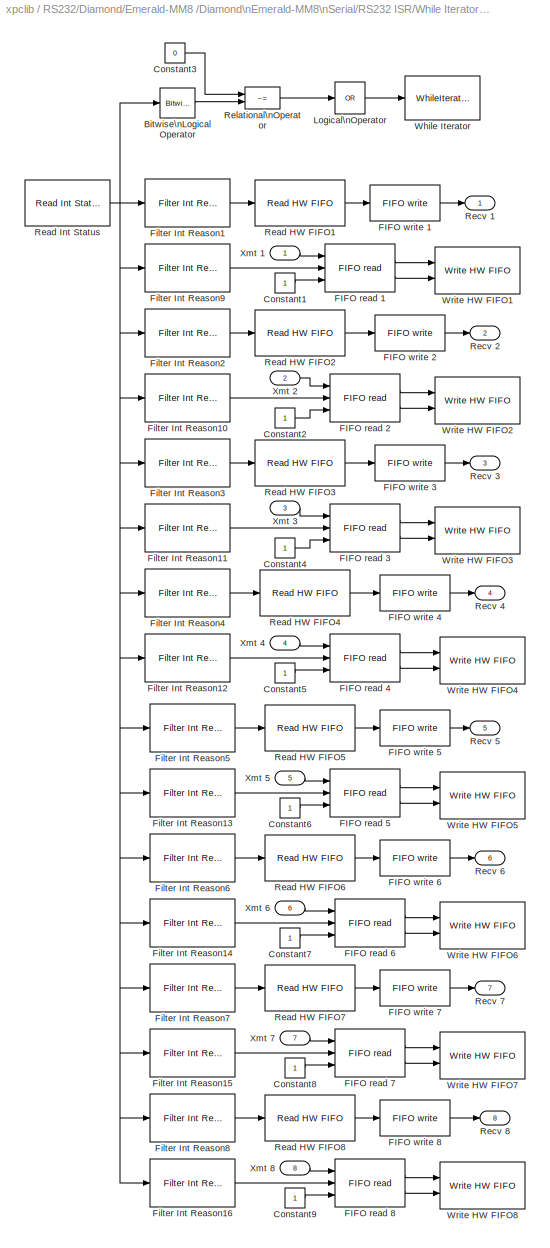
BLOCK [SubSystem] RS232/Diamond/Emerald-MM8 /Diamond\nEmerald-MM8\nSerial/RS232 ISR/While Iterator\nSubsystem
  MinAlgLoopOccurrences = off
  Ports = [8, 8]
  PropExecContextAcrossSSBoundary = on
  RTWSystemCode = Auto
  TreatAsAtomicUnit = on
BLOCK [Reference] RS232/Diamond/Emerald-MM8 /Diamond\nEmerald-MM8\nSerial/RS232 ISR/While Iterator\nSubsystem/Bitwise\nLogical Operator  REF=simulink/Logic and Bit\nOperations/Bitwise\nOperator
  BitMask = 'FF'
  BitMaskRealWorld = Stored Integer
  NumInputPorts = 1
  Ports = [1, 1]
  SourceBlock = simulink/Logic and Bit\nOperations/Bitwise\nOperator
  SourceType = Bitwise Operator
  UseBitMask = on
  logicop = AND
BLOCK [Constant] RS232/Diamond/Emerald-MM8 /Diamond\nEmerald-MM8\nSerial/RS232 ISR/While Iterator\nSubsystem/Constant1
  OutDataTypeMode = uint32
BLOCK [Constant] RS232/Diamond/Emerald-MM8 /Diamond\nEmerald-MM8\nSerial/RS232 ISR/While Iterator\nSubsystem/Constant2
  OutDataTypeMode = uint32
BLOCK [Constant] RS232/Diamond/Emerald-MM8 /Diamond\nEmerald-MM8\nSerial/RS232 ISR/While Iterator\nSubsystem/Constant3
  OutDataTypeMode = uint32
  Value = 0
BLOCK [Constant] RS232/Diamond/Emerald-MM8 /Diamond\nEmerald-MM8\nSerial/RS232 ISR/While Iterator\nSubsystem/Constant4
  OutDataTypeMode = uint32
BLOCK [Constant] RS232/Diamond/Emerald-MM8 /Diamond\nEmerald-MM8\nSerial/RS232 ISR/While Iterator\nSubsystem/Constant5
  OutDataTypeMode = uint32
BLOCK [Constant] RS232/Diamond/Emerald-MM8 /Diamond\nEmerald-MM8\nSerial/RS232 ISR/While Iterator\nSubsystem/Constant6
  OutDataTypeMode = uint32
BLOCK [Constant] RS232/Diamond/Emerald-MM8 /Diamond\nEmerald-MM8\nSerial/RS232 ISR/While Iterator\nSubsystem/Constant7
  OutDataTypeMode = uint32
BLOCK [Constant] RS232/Diamond/Emerald-MM8 /Diamond\nEmerald-MM8\nSerial/RS232 ISR/While Iterator\nSubsystem/Constant8
  OutDataTypeMode = uint32
BLOCK [Constant] RS232/Diamond/Emerald-MM8 /Diamond\nEmerald-MM8\nSerial/RS232 ISR/While Iterator\nSubsystem/Constant9
  OutDataTypeMode = uint32
BLOCK [Reference] RS232/Diamond/Emerald-MM8 /Diamond\nEmerald-MM8\nSerial/RS232 ISR/While Iterator\nSubsystem/FIFO read 1  REF=xpclib/RS232/FIFO read 
  Ports = [3, 2]
  SourceBlock = xpclib/RS232/FIFO read
  SourceType = Asynchronous FIFO Block: reader
  delimiter = 13
  enable = on
  enableout = on
  maxsize = 60
  minsize = 1
  outputtype = count+32 bit uint
  sampletime = -1
  usedelimiter = off
BLOCK [Reference] RS232/Diamond/Emerald-MM8 /Diamond\nEmerald-MM8\nSerial/RS232 ISR/While Iterator\nSubsystem/FIFO read 2  REF=xpclib/RS232/FIFO read 
  Ports = [3, 2]
  SourceBlock = xpclib/RS232/FIFO read
  SourceType = Asynchronous FIFO Block: reader
  delimiter = 13
  enable = on
  enableout = on
  maxsize = 60
  minsize = 1
  outputtype = count+32 bit uint
  sampletime = -1
  usedelimiter = off
BLOCK [Reference] RS232/Diamond/Emerald-MM8 /Diamond\nEmerald-MM8\nSerial/RS232 ISR/While Iterator\nSubsystem/FIFO read 3  REF=xpclib/RS232/FIFO read 
  Ports = [3, 2]
  SourceBlock = xpclib/RS232/FIFO read
  SourceType = Asynchronous FIFO Block: reader
  delimiter = 13
  enable = on
  enableout = on
  maxsize = 60
  minsize = 1
  outputtype = count+32 bit uint
  sampletime = -1
  usedelimiter = off
BLOCK [Reference] RS232/Diamond/Emerald-MM8 /Diamond\nEmerald-MM8\nSerial/RS232 ISR/While Iterator\nSubsystem/FIFO read 4  REF=xpclib/RS232/FIFO read 
  Ports = [3, 2]
  SourceBlock = xpclib/RS232/FIFO read
  SourceType = Asynchronous FIFO Block: reader
  delimiter = 13
  enable = on
  enableout = on
  maxsize = 60
  minsize = 1
  outputtype = count+32 bit uint
  sampletime = -1
  usedelimiter = off
BLOCK [Reference] RS232/Diamond/Emerald-MM8 /Diamond\nEmerald-MM8\nSerial/RS232 ISR/While Iterator\nSubsystem/FIFO read 5  REF=xpclib/RS232/FIFO read 
  Ports = [3, 2]
  SourceBlock = xpclib/RS232/FIFO read
  SourceType = Asynchronous FIFO Block: reader
  delimiter = 13
  enable = on
  enableout = on
  maxsize = 60
  minsize = 1
  outputtype = count+32 bit uint
  sampletime = -1
  usedelimiter = off
BLOCK [Reference] RS232/Diamond/Emerald-MM8 /Diamond\nEmerald-MM8\nSerial/RS232 ISR/While Iterator\nSubsystem/FIFO read 6  REF=xpclib/RS232/FIFO read 
  Ports = [3, 2]
  SourceBlock = xpclib/RS232/FIFO read
  SourceType = Asynchronous FIFO Block: reader
  delimiter = 13
  enable = on
  enableout = on
  maxsize = 60
  minsize = 1
  outputtype = count+32 bit uint
  sampletime = -1
  usedelimiter = off
BLOCK [Reference] RS232/Diamond/Emerald-MM8 /Diamond\nEmerald-MM8\nSerial/RS232 ISR/While Iterator\nSubsystem/FIFO read 7  REF=xpclib/RS232/FIFO read 
  Ports = [3, 2]
  SourceBlock = xpclib/RS232/FIFO read
  SourceType = Asynchronous FIFO Block: reader
  delimiter = 13
  enable = on
  enableout = on
  maxsize = 60
  minsize = 1
  outputtype = count+32 bit uint
  sampletime = -1
  usedelimiter = off
BLOCK [Reference] RS232/Diamond/Emerald-MM8 /Diamond\nEmerald-MM8\nSerial/RS232 ISR/While Iterator\nSubsystem/FIFO read 8  REF=xpclib/RS232/FIFO read 
  Ports = [3, 2]
  SourceBlock = xpclib/RS232/FIFO read
  SourceType = Asynchronous FIFO Block: reader
  delimiter = 13
  enable = on
  enableout = on
  maxsize = 60
  minsize = 1
  outputtype = count+32 bit uint
  sampletime = -1
  usedelimiter = off
BLOCK [Reference] RS232/Diamond/Emerald-MM8 /Diamond\nEmerald-MM8\nSerial/RS232 ISR/While Iterator\nSubsystem/FIFO write 1  REF=xpclib/RS232/FIFO write 
  Ports = [1, 1]
  SourceBlock = xpclib/RS232/FIFO write
  SourceType = Asynchronous FIFO Block: writer
  id = RCV channel 1, IRQ 5
  inputtype = count+32 bit uint
  present = off
  sampletime = -1
  size = 1024
BLOCK [Reference] RS232/Diamond/Emerald-MM8 /Diamond\nEmerald-MM8\nSerial/RS232 ISR/While Iterator\nSubsystem/FIFO write 2  REF=xpclib/RS232/FIFO write 
  Ports = [1, 1]
  SourceBlock = xpclib/RS232/FIFO write
  SourceType = Asynchronous FIFO Block: writer
  id = RCV channel 2, IRQ 5
  inputtype = count+32 bit uint
  present = off
  sampletime = -1
  size = 1024
BLOCK [Reference] RS232/Diamond/Emerald-MM8 /Diamond\nEmerald-MM8\nSerial/RS232 ISR/While Iterator\nSubsystem/FIFO write 3  REF=xpclib/RS232/FIFO write 
  Ports = [1, 1]
  SourceBlock = xpclib/RS232/FIFO write
  SourceType = Asynchronous FIFO Block: writer
  id = RCV channel 3, IRQ 5
  inputtype = count+32 bit uint
  present = off
  sampletime = -1
  size = 1024
BLOCK [Reference] RS232/Diamond/Emerald-MM8 /Diamond\nEmerald-MM8\nSerial/RS232 ISR/While Iterator\nSubsystem/FIFO write 4  REF=xpclib/RS232/FIFO write 
  Ports = [1, 1]
  SourceBlock = xpclib/RS232/FIFO write
  SourceType = Asynchronous FIFO Block: writer
  id = RCV channel 4, IRQ 5
  inputtype = count+32 bit uint
  present = off
  sampletime = -1
  size = 1024
BLOCK [Reference] RS232/Diamond/Emerald-MM8 /Diamond\nEmerald-MM8\nSerial/RS232 ISR/While Iterator\nSubsystem/FIFO write 5  REF=xpclib/RS232/FIFO write 
  Ports = [1, 1]
  SourceBlock = xpclib/RS232/FIFO write
  SourceType = Asynchronous FIFO Block: writer
  id = RCV channel 5, IRQ 5
  inputtype = count+32 bit uint
  present = off
  sampletime = -1
  size = 1024
BLOCK [Reference] RS232/Diamond/Emerald-MM8 /Diamond\nEmerald-MM8\nSerial/RS232 ISR/While Iterator\nSubsystem/FIFO write 6  REF=xpclib/RS232/FIFO write 
  Ports = [1, 1]
  SourceBlock = xpclib/RS232/FIFO write
  SourceType = Asynchronous FIFO Block: writer
  id = RCV channel 6, IRQ 5
  inputtype = count+32 bit uint
  present = off
  sampletime = -1
  size = 1024
BLOCK [Reference] RS232/Diamond/Emerald-MM8 /Diamond\nEmerald-MM8\nSerial/RS232 ISR/While Iterator\nSubsystem/FIFO write 7  REF=xpclib/RS232/FIFO write 
  Ports = [1, 1]
  SourceBlock = xpclib/RS232/FIFO write
  SourceType = Asynchronous FIFO Block: writer
  id = RCV channel 7, IRQ 5
  inputtype = count+32 bit uint
  present = off
  sampletime = -1
  size = 1024
BLOCK [Reference] RS232/Diamond/Emerald-MM8 /Diamond\nEmerald-MM8\nSerial/RS232 ISR/While Iterator\nSubsystem/FIFO write 8  REF=xpclib/RS232/FIFO write 
  Ports = [1, 1]
  SourceBlock = xpclib/RS232/FIFO write
  SourceType = Asynchronous FIFO Block: writer
  id = RCV channel 8, IRQ 5
  inputtype = count+32 bit uint
  present = off
  sampletime = -1
  size = 1024
BLOCK [Reference] RS232/Diamond/Emerald-MM8 /Diamond\nEmerald-MM8\nSerial/RS232 ISR/While Iterator\nSubsystem/Filter Int Reason1  REF=xpclib/RS232/Diamond/Emerald-MM8 /Diamond\nEmerald-MM8 /Filter Int Reason
  Ports = [1, 1]
  SourceBlock = xpclib/RS232/Diamond/Emerald-MM8 /Diamond\nEmerald-MM8 /Filter Int Reason
  SourceType = Interrupt Source Filter
  port = 1
  value = Receive data
BLOCK [Reference] RS232/Diamond/Emerald-MM8 /Diamond\nEmerald-MM8\nSerial/RS232 ISR/While Iterator\nSubsystem/Filter Int Reason10  REF=xpclib/RS232/Diamond/Emerald-MM8 /Diamond\nEmerald-MM8 /Filter Int Reason
  Ports = [1, 1]
  SourceBlock = xpclib/RS232/Diamond/Emerald-MM8 /Diamond\nEmerald-MM8 /Filter Int Reason
  SourceType = Interrupt Source Filter
  port = 2
  value = Transmitter empty
BLOCK [Reference] RS232/Diamond/Emerald-MM8 /Diamond\nEmerald-MM8\nSerial/RS232 ISR/While Iterator\nSubsystem/Filter Int Reason11  REF=xpclib/RS232/Diamond/Emerald-MM8 /Diamond\nEmerald-MM8 /Filter Int Reason
  Ports = [1, 1]
  SourceBlock = xpclib/RS232/Diamond/Emerald-MM8 /Diamond\nEmerald-MM8 /Filter Int Reason
  SourceType = Interrupt Source Filter
  port = 3
  value = Transmitter empty
BLOCK [Reference] RS232/Diamond/Emerald-MM8 /Diamond\nEmerald-MM8\nSerial/RS232 ISR/While Iterator\nSubsystem/Filter Int Reason12  REF=xpclib/RS232/Diamond/Emerald-MM8 /Diamond\nEmerald-MM8 /Filter Int Reason
  Ports = [1, 1]
  SourceBlock = xpclib/RS232/Diamond/Emerald-MM8 /Diamond\nEmerald-MM8 /Filter Int Reason
  SourceType = Interrupt Source Filter
  port = 4
  value = Transmitter empty
BLOCK [Reference] RS232/Diamond/Emerald-MM8 /Diamond\nEmerald-MM8\nSerial/RS232 ISR/While Iterator\nSubsystem/Filter Int Reason13  REF=xpclib/RS232/Diamond/Emerald-MM8 /Diamond\nEmerald-MM8 /Filter Int Reason
  Ports = [1, 1]
  SourceBlock = xpclib/RS232/Diamond/Emerald-MM8 /Diamond\nEmerald-MM8 /Filter Int Reason
  SourceType = Interrupt Source Filter
  port = 5
  value = Transmitter empty
BLOCK [Reference] RS232/Diamond/Emerald-MM8 /Diamond\nEmerald-MM8\nSerial/RS232 ISR/While Iterator\nSubsystem/Filter Int Reason14  REF=xpclib/RS232/Diamond/Emerald-MM8 /Diamond\nEmerald-MM8 /Filter Int Reason
  Ports = [1, 1]
  SourceBlock = xpclib/RS232/Diamond/Emerald-MM8 /Diamond\nEmerald-MM8 /Filter Int Reason
  SourceType = Interrupt Source Filter
  port = 6
  value = Transmitter empty
BLOCK [Reference] RS232/Diamond/Emerald-MM8 /Diamond\nEmerald-MM8\nSerial/RS232 ISR/While Iterator\nSubsystem/Filter Int Reason15  REF=xpclib/RS232/Diamond/Emerald-MM8 /Diamond\nEmerald-MM8 /Filter Int Reason
  Ports = [1, 1]
  SourceBlock = xpclib/RS232/Diamond/Emerald-MM8 /Diamond\nEmerald-MM8 /Filter Int Reason
  SourceType = Interrupt Source Filter
  port = 7
  value = Transmitter empty
BLOCK [Reference] RS232/Diamond/Emerald-MM8 /Diamond\nEmerald-MM8\nSerial/RS232 ISR/While Iterator\nSubsystem/Filter Int Reason16  REF=xpclib/RS232/Diamond/Emerald-MM8 /Diamond\nEmerald-MM8 /Filter Int Reason
  Ports = [1, 1]
  SourceBlock = xpclib/RS232/Diamond/Emerald-MM8 /Diamond\nEmerald-MM8 /Filter Int Reason
  SourceType = Interrupt Source Filter
  port = 8
  value = Transmitter empty
BLOCK [Reference] RS232/Diamond/Emerald-MM8 /Diamond\nEmerald-MM8\nSerial/RS232 ISR/While Iterator\nSubsystem/Filter Int Reason2  REF=xpclib/RS232/Diamond/Emerald-MM8 /Diamond\nEmerald-MM8 /Filter Int Reason
  Ports = [1, 1]
  SourceBlock = xpclib/RS232/Diamond/Emerald-MM8 /Diamond\nEmerald-MM8 /Filter Int Reason
  SourceType = Interrupt Source Filter
  port = 2
  value = Receive data
BLOCK [Reference] RS232/Diamond/Emerald-MM8 /Diamond\nEmerald-MM8\nSerial/RS232 ISR/While Iterator\nSubsystem/Filter Int Reason3  REF=xpclib/RS232/Diamond/Emerald-MM8 /Diamond\nEmerald-MM8 /Filter Int Reason
  Ports = [1, 1]
  SourceBlock = xpclib/RS232/Diamond/Emerald-MM8 /Diamond\nEmerald-MM8 /Filter Int Reason
  SourceType = Interrupt Source Filter
  port = 3
  value = Receive data
BLOCK [Reference] RS232/Diamond/Emerald-MM8 /Diamond\nEmerald-MM8\nSerial/RS232 ISR/While Iterator\nSubsystem/Filter Int Reason4  REF=xpclib/RS232/Diamond/Emerald-MM8 /Diamond\nEmerald-MM8 /Filter Int Reason
  Ports = [1, 1]
  SourceBlock = xpclib/RS232/Diamond/Emerald-MM8 /Diamond\nEmerald-MM8 /Filter Int Reason
  SourceType = Interrupt Source Filter
  port = 4
  value = Receive data
BLOCK [Reference] RS232/Diamond/Emerald-MM8 /Diamond\nEmerald-MM8\nSerial/RS232 ISR/While Iterator\nSubsystem/Filter Int Reason5  REF=xpclib/RS232/Diamond/Emerald-MM8 /Diamond\nEmerald-MM8 /Filter Int Reason
  Ports = [1, 1]
  SourceBlock = xpclib/RS232/Diamond/Emerald-MM8 /Diamond\nEmerald-MM8 /Filter Int Reason
  SourceType = Interrupt Source Filter
  port = 5
  value = Receive data
BLOCK [Reference] RS232/Diamond/Emerald-MM8 /Diamond\nEmerald-MM8\nSerial/RS232 ISR/While Iterator\nSubsystem/Filter Int Reason6  REF=xpclib/RS232/Diamond/Emerald-MM8 /Diamond\nEmerald-MM8 /Filter Int Reason
  Ports = [1, 1]
  SourceBlock = xpclib/RS232/Diamond/Emerald-MM8 /Diamond\nEmerald-MM8 /Filter Int Reason
  SourceType = Interrupt Source Filter
  port = 6
  value = Receive data
BLOCK [Reference] RS232/Diamond/Emerald-MM8 /Diamond\nEmerald-MM8\nSerial/RS232 ISR/While Iterator\nSubsystem/Filter Int Reason7  REF=xpclib/RS232/Diamond/Emerald-MM8 /Diamond\nEmerald-MM8 /Filter Int Reason
  Ports = [1, 1]
  SourceBlock = xpclib/RS232/Diamond/Emerald-MM8 /Diamond\nEmerald-MM8 /Filter Int Reason
  SourceType = Interrupt Source Filter
  port = 7
  value = Receive data
BLOCK [Reference] RS232/Diamond/Emerald-MM8 /Diamond\nEmerald-MM8\nSerial/RS232 ISR/While Iterator\nSubsystem/Filter Int Reason8  REF=xpclib/RS232/Diamond/Emerald-MM8 /Diamond\nEmerald-MM8 /Filter Int Reason
  Ports = [1, 1]
  SourceBlock = xpclib/RS232/Diamond/Emerald-MM8 /Diamond\nEmerald-MM8 /Filter Int Reason
  SourceType = Interrupt Source Filter
  port = 8
  value = Receive data
BLOCK [Reference] RS232/Diamond/Emerald-MM8 /Diamond\nEmerald-MM8\nSerial/RS232 ISR/While Iterator\nSubsystem/Filter Int Reason9  REF=xpclib/RS232/Diamond/Emerald-MM8 /Diamond\nEmerald-MM8 /Filter Int Reason
  Ports = [1, 1]
  SourceBlock = xpclib/RS232/Diamond/Emerald-MM8 /Diamond\nEmerald-MM8 /Filter Int Reason
  SourceType = Interrupt Source Filter
  port = 1
  value = Transmitter empty
BLOCK [Logic] RS232/Diamond/Emerald-MM8 /Diamond\nEmerald-MM8\nSerial/RS232 ISR/While Iterator\nSubsystem/Logical\nOperator
  AllPortsSameDT = off
  Inputs = 1
  Operator = OR
  Ports = [1, 1]
BLOCK [Reference] RS232/Diamond/Emerald-MM8 /Diamond\nEmerald-MM8\nSerial/RS232 ISR/While Iterator\nSubsystem/Read HW FIFO1  REF=xpclib/RS232/Diamond/Emerald-MM8 /Diamond\nEmerald-MM8 /Read HW FIFO
  Ports = [1, 1]
  SourceBlock = xpclib/RS232/Diamond/Emerald-MM8 /Diamond\nEmerald-MM8 /Read HW FIFO
  SourceType = Read Data Port
  addr = baddr1
  flush = on
BLOCK [Reference] RS232/Diamond/Emerald-MM8 /Diamond\nEmerald-MM8\nSerial/RS232 ISR/While Iterator\nSubsystem/Read HW FIFO2  REF=xpclib/RS232/Diamond/Emerald-MM8 /Diamond\nEmerald-MM8 /Read HW FIFO
  Ports = [1, 1]
  SourceBlock = xpclib/RS232/Diamond/Emerald-MM8 /Diamond\nEmerald-MM8 /Read HW FIFO
  SourceType = Read Data Port
  addr = baddr2
  flush = on
BLOCK [Reference] RS232/Diamond/Emerald-MM8 /Diamond\nEmerald-MM8\nSerial/RS232 ISR/While Iterator\nSubsystem/Read HW FIFO3  REF=xpclib/RS232/Diamond/Emerald-MM8 /Diamond\nEmerald-MM8 /Read HW FIFO
  Ports = [1, 1]
  SourceBlock = xpclib/RS232/Diamond/Emerald-MM8 /Diamond\nEmerald-MM8 /Read HW FIFO
  SourceType = Read Data Port
  addr = baddr3
  flush = on
BLOCK [Reference] RS232/Diamond/Emerald-MM8 /Diamond\nEmerald-MM8\nSerial/RS232 ISR/While Iterator\nSubsystem/Read HW FIFO4  REF=xpclib/RS232/Diamond/Emerald-MM8 /Diamond\nEmerald-MM8 /Read HW FIFO
  Ports = [1, 1]
  SourceBlock = xpclib/RS232/Diamond/Emerald-MM8 /Diamond\nEmerald-MM8 /Read HW FIFO
  SourceType = Read Data Port
  addr = baddr4
  flush = on
BLOCK [Reference] RS232/Diamond/Emerald-MM8 /Diamond\nEmerald-MM8\nSerial/RS232 ISR/While Iterator\nSubsystem/Read HW FIFO5  REF=xpclib/RS232/Diamond/Emerald-MM8 /Diamond\nEmerald-MM8 /Read HW FIFO
  Ports = [1, 1]
  SourceBlock = xpclib/RS232/Diamond/Emerald-MM8 /Diamond\nEmerald-MM8 /Read HW FIFO
  SourceType = Read Data Port
  addr = baddr5
  flush = on
BLOCK [Reference] RS232/Diamond/Emerald-MM8 /Diamond\nEmerald-MM8\nSerial/RS232 ISR/While Iterator\nSubsystem/Read HW FIFO6  REF=xpclib/RS232/Diamond/Emerald-MM8 /Diamond\nEmerald-MM8 /Read HW FIFO
  Ports = [1, 1]
  SourceBlock = xpclib/RS232/Diamond/Emerald-MM8 /Diamond\nEmerald-MM8 /Read HW FIFO
  SourceType = Read Data Port
  addr = baddr6
  flush = on
BLOCK [Reference] RS232/Diamond/Emerald-MM8 /Diamond\nEmerald-MM8\nSerial/RS232 ISR/While Iterator\nSubsystem/Read HW FIFO7  REF=xpclib/RS232/Diamond/Emerald-MM8 /Diamond\nEmerald-MM8 /Read HW FIFO
  Ports = [1, 1]
  SourceBlock = xpclib/RS232/Diamond/Emerald-MM8 /Diamond\nEmerald-MM8 /Read HW FIFO
  SourceType = Read Data Port
  addr = baddr7
  flush = on
BLOCK [Reference] RS232/Diamond/Emerald-MM8 /Diamond\nEmerald-MM8\nSerial/RS232 ISR/While Iterator\nSubsystem/Read HW FIFO8  REF=xpclib/RS232/Diamond/Emerald-MM8 /Diamond\nEmerald-MM8 /Read HW FIFO
  Ports = [1, 1]
  SourceBlock = xpclib/RS232/Diamond/Emerald-MM8 /Diamond\nEmerald-MM8 /Read HW FIFO
  SourceType = Read Data Port
  addr = baddr8
  flush = on
BLOCK [Reference] RS232/Diamond/Emerald-MM8 /Diamond\nEmerald-MM8\nSerial/RS232 ISR/While Iterator\nSubsystem/Read Int Status  REF=xpclib/RS232/Diamond/Emerald-MM8 /Diamond\nEmerald-MM8 /Read Int Status
  Ports = [0, 1]
  SourceBlock = xpclib/RS232/Diamond/Emerald-MM8 /Diamond\nEmerald-MM8 /Read Int Status
  SourceType = Interrupt Query
  addr1 = baddr1
  addr2 = baddr2
  addr3 = baddr3
  addr4 = baddr4
  addr5 = baddr5
  addr6 = baddr6
  addr7 = baddr7
  addr8 = baddr8
  intstat = istat
BLOCK [Outport] RS232/Diamond/Emerald-MM8 /Diamond\nEmerald-MM8\nSerial/RS232 ISR/While Iterator\nSubsystem/Recv 1
  BusOutputAsStruct = off
  IconDisplay = Port number
BLOCK [Outport] RS232/Diamond/Emerald-MM8 /Diamond\nEmerald-MM8\nSerial/RS232 ISR/While Iterator\nSubsystem/Recv 2
  BusOutputAsStruct = off
  IconDisplay = Port number
  Port = 2
BLOCK [Outport] RS232/Diamond/Emerald-MM8 /Diamond\nEmerald-MM8\nSerial/RS232 ISR/While Iterator\nSubsystem/Recv 3
  BusOutputAsStruct = off
  IconDisplay = Port number
  Port = 3
BLOCK [Outport] RS232/Diamond/Emerald-MM8 /Diamond\nEmerald-MM8\nSerial/RS232 ISR/While Iterator\nSubsystem/Recv 4
  BusOutputAsStruct = off
  IconDisplay = Port number
  Port = 4
BLOCK [Outport] RS232/Diamond/Emerald-MM8 /Diamond\nEmerald-MM8\nSerial/RS232 ISR/While Iterator\nSubsystem/Recv 5
  BusOutputAsStruct = off
  IconDisplay = Port number
  Port = 5
BLOCK [Outport] RS232/Diamond/Emerald-MM8 /Diamond\nEmerald-MM8\nSerial/RS232 ISR/While Iterator\nSubsystem/Recv 6
  BusOutputAsStruct = off
  IconDisplay = Port number
  Port = 6
BLOCK [Outport] RS232/Diamond/Emerald-MM8 /Diamond\nEmerald-MM8\nSerial/RS232 ISR/While Iterator\nSubsystem/Recv 7
  BusOutputAsStruct = off
  IconDisplay = Port number
  Port = 7
BLOCK [Outport] RS232/Diamond/Emerald-MM8 /Diamond\nEmerald-MM8\nSerial/RS232 ISR/While Iterator\nSubsystem/Recv 8
  BusOutputAsStruct = off
  IconDisplay = Port number
  Port = 8
BLOCK [RelationalOperator] RS232/Diamond/Emerald-MM8 /Diamond\nEmerald-MM8\nSerial/RS232 ISR/While Iterator\nSubsystem/Relational\nOperator
  InputSameDT = off
  Operator = ~=
BLOCK [WhileIterator] RS232/Diamond/Emerald-MM8 /Diamond\nEmerald-MM8\nSerial/RS232 ISR/While Iterator\nSubsystem/While Iterator
  MaxIters = 66
  Ports = [1]
  WhileBlockType = do-while
BLOCK [Reference] RS232/Diamond/Emerald-MM8 /Diamond\nEmerald-MM8\nSerial/RS232 ISR/While Iterator\nSubsystem/Write HW FIFO1  REF=xpclib/RS232/Diamond/Emerald-MM8 /Diamond\nEmerald-MM8 /Write HW FIFO
  Ports = [2]
  SourceBlock = xpclib/RS232/Diamond/Emerald-MM8 /Diamond\nEmerald-MM8 /Write HW FIFO
  SourceType = Write Data Port
  addr = baddr1
BLOCK [Reference] RS232/Diamond/Emerald-MM8 /Diamond\nEmerald-MM8\nSerial/RS232 ISR/While Iterator\nSubsystem/Write HW FIFO2  REF=xpclib/RS232/Diamond/Emerald-MM8 /Diamond\nEmerald-MM8 /Write HW FIFO
  Ports = [2]
  SourceBlock = xpclib/RS232/Diamond/Emerald-MM8 /Diamond\nEmerald-MM8 /Write HW FIFO
  SourceType = Write Data Port
  addr = baddr1
BLOCK [Reference] RS232/Diamond/Emerald-MM8 /Diamond\nEmerald-MM8\nSerial/RS232 ISR/While Iterator\nSubsystem/Write HW FIFO3  REF=xpclib/RS232/Diamond/Emerald-MM8 /Diamond\nEmerald-MM8 /Write HW FIFO
  Ports = [2]
  SourceBlock = xpclib/RS232/Diamond/Emerald-MM8 /Diamond\nEmerald-MM8 /Write HW FIFO
  SourceType = Write Data Port
  addr = baddr1
BLOCK [Reference] RS232/Diamond/Emerald-MM8 /Diamond\nEmerald-MM8\nSerial/RS232 ISR/While Iterator\nSubsystem/Write HW FIFO4  REF=xpclib/RS232/Diamond/Emerald-MM8 /Diamond\nEmerald-MM8 /Write HW FIFO
  Ports = [2]
  SourceBlock = xpclib/RS232/Diamond/Emerald-MM8 /Diamond\nEmerald-MM8 /Write HW FIFO
  SourceType = Write Data Port
  addr = baddr1
BLOCK [Reference] RS232/Diamond/Emerald-MM8 /Diamond\nEmerald-MM8\nSerial/RS232 ISR/While Iterator\nSubsystem/Write HW FIFO5  REF=xpclib/RS232/Diamond/Emerald-MM8 /Diamond\nEmerald-MM8 /Write HW FIFO
  Ports = [2]
  SourceBlock = xpclib/RS232/Diamond/Emerald-MM8 /Diamond\nEmerald-MM8 /Write HW FIFO
  SourceType = Write Data Port
  addr = baddr1
BLOCK [Reference] RS232/Diamond/Emerald-MM8 /Diamond\nEmerald-MM8\nSerial/RS232 ISR/While Iterator\nSubsystem/Write HW FIFO6  REF=xpclib/RS232/Diamond/Emerald-MM8 /Diamond\nEmerald-MM8 /Write HW FIFO
  Ports = [2]
  SourceBlock = xpclib/RS232/Diamond/Emerald-MM8 /Diamond\nEmerald-MM8 /Write HW FIFO
  SourceType = Write Data Port
  addr = baddr1
BLOCK [Reference] RS232/Diamond/Emerald-MM8 /Diamond\nEmerald-MM8\nSerial/RS232 ISR/While Iterator\nSubsystem/Write HW FIFO7  REF=xpclib/RS232/Diamond/Emerald-MM8 /Diamond\nEmerald-MM8 /Write HW FIFO
  Ports = [2]
  SourceBlock = xpclib/RS232/Diamond/Emerald-MM8 /Diamond\nEmerald-MM8 /Write HW FIFO
  SourceType = Write Data Port
  addr = baddr1
BLOCK [Reference] RS232/Diamond/Emerald-MM8 /Diamond\nEmerald-MM8\nSerial/RS232 ISR/While Iterator\nSubsystem/Write HW FIFO8  REF=xpclib/RS232/Diamond/Emerald-MM8 /Diamond\nEmerald-MM8 /Write HW FIFO
  Ports = [2]
  SourceBlock = xpclib/RS232/Diamond/Emerald-MM8 /Diamond\nEmerald-MM8 /Write HW FIFO
  SourceType = Write Data Port
  addr = baddr1
BLOCK [Inport] RS232/Diamond/Emerald-MM8 /Diamond\nEmerald-MM8\nSerial/RS232 ISR/While Iterator\nSubsystem/Xmt 1
  IconDisplay = Port number
  LatchInput = off
BLOCK [Inport] RS232/Diamond/Emerald-MM8 /Diamond\nEmerald-MM8\nSerial/RS232 ISR/While Iterator\nSubsystem/Xmt 2
  IconDisplay = Port number
  LatchInput = off
  Port = 2
BLOCK [Inport] RS232/Diamond/Emerald-MM8 /Diamond\nEmerald-MM8\nSerial/RS232 ISR/While Iterator\nSubsystem/Xmt 3
  IconDisplay = Port number
  LatchInput = off
  Port = 3
BLOCK [Inport] RS232/Diamond/Emerald-MM8 /Diamond\nEmerald-MM8\nSerial/RS232 ISR/While Iterator\nSubsystem/Xmt 4
  IconDisplay = Port number
  LatchInput = off
  Port = 4
BLOCK [Inport] RS232/Diamond/Emerald-MM8 /Diamond\nEmerald-MM8\nSerial/RS232 ISR/While Iterator\nSubsystem/Xmt 5
  IconDisplay = Port number
  LatchInput = off
  Port = 5
BLOCK [Inport] RS232/Diamond/Emerald-MM8 /Diamond\nEmerald-MM8\nSerial/RS232 ISR/While Iterator\nSubsystem/Xmt 6
  IconDisplay = Port number
  LatchInput = off
  Port = 6
BLOCK [Inport] RS232/Diamond/Emerald-MM8 /Diamond\nEmerald-MM8\nSerial/RS232 ISR/While Iterator\nSubsystem/Xmt 7
  IconDisplay = Port number
  LatchInput = off
  Port = 7
BLOCK [Inport] RS232/Diamond/Emerald-MM8 /Diamond\nEmerald-MM8\nSerial/RS232 ISR/While Iterator\nSubsystem/Xmt 8
  IconDisplay = Port number
  LatchInput = off
  Port = 8
BLOCK [Inport] RS232/Diamond/Emerald-MM8 /Diamond\nEmerald-MM8\nSerial/RS232 ISR/Xmt 1
  IconDisplay = Port number
  LatchInput = off
BLOCK [Inport] RS232/Diamond/Emerald-MM8 /Diamond\nEmerald-MM8\nSerial/RS232 ISR/Xmt 2
  IconDisplay = Port number
  LatchInput = off
  Port = 2
BLOCK [Inport] RS232/Diamond/Emerald-MM8 /Diamond\nEmerald-MM8\nSerial/RS232 ISR/Xmt 3
  IconDisplay = Port number
  LatchInput = off
  Port = 3
BLOCK [Inport] RS232/Diamond/Emerald-MM8 /Diamond\nEmerald-MM8\nSerial/RS232 ISR/Xmt 4
  IconDisplay = Port number
  LatchInput = off
  Port = 4
BLOCK [Inport] RS232/Diamond/Emerald-MM8 /Diamond\nEmerald-MM8\nSerial/RS232 ISR/Xmt 5
  IconDisplay = Port number
  LatchInput = off
  Port = 5
BLOCK [Inport] RS232/Diamond/Emerald-MM8 /Diamond\nEmerald-MM8\nSerial/RS232 ISR/Xmt 6
  IconDisplay = Port number
  LatchInput = off
  Port = 6
BLOCK [Inport] RS232/Diamond/Emerald-MM8 /Diamond\nEmerald-MM8\nSerial/RS232 ISR/Xmt 7
  IconDisplay = Port number
  LatchInput = off
  Port = 7
BLOCK [Inport] RS232/Diamond/Emerald-MM8 /Diamond\nEmerald-MM8\nSerial/RS232 ISR/Xmt 8
  IconDisplay = Port number
  LatchInput = off
  Port = 8
BLOCK [TriggerPort] RS232/Diamond/Emerald-MM8 /Diamond\nEmerald-MM8\nSerial/RS232 ISR/function
  Ports = []
  StatesWhenEnabling = held
  TriggerType = function-call
BLOCK [Reference] RS232/Diamond/Emerald-MM8 /Diamond\nEmerald-MM8\nSerial/Setup1  REF=xpclib/RS232/Diamond/Emerald-MM8 /Diamond\nEmerald-MM8 /Setup
  Ports = []
  SourceBlock = xpclib/RS232/Diamond/Emerald-MM8 /Diamond\nEmerald-MM8 /Setup
  SourceType = setup
  addr = baddr1
  baud = 115200
  ctsmode = on
  fmode = 16 deep
  irq = irqnum
  nstop = 1
  parity = None
  rlevel = 1
  width = 8
BLOCK [Reference] RS232/Diamond/Emerald-MM8 /Diamond\nEmerald-MM8\nSerial/Setup2  REF=xpclib/RS232/Diamond/Emerald-MM8 /Diamond\nEmerald-MM8 /Setup
  Ports = []
  SourceBlock = xpclib/RS232/Diamond/Emerald-MM8 /Diamond\nEmerald-MM8 /Setup
  SourceType = setup
  addr = baddr2
  baud = 115200
  ctsmode = on
  fmode = 16 deep
  irq = irqnum
  nstop = 1
  parity = None
  rlevel = 1
  width = 8
BLOCK [Reference] RS232/Diamond/Emerald-MM8 /Diamond\nEmerald-MM8\nSerial/Setup3  REF=xpclib/RS232/Diamond/Emerald-MM8 /Diamond\nEmerald-MM8 /Setup
  Ports = []
  SourceBlock = xpclib/RS232/Diamond/Emerald-MM8 /Diamond\nEmerald-MM8 /Setup
  SourceType = setup
  addr = baddr3
  baud = 115200
  ctsmode = on
  fmode = 16 deep
  irq = irqnum
  nstop = 1
  parity = None
  rlevel = 1
  width = 8
BLOCK [Reference] RS232/Diamond/Emerald-MM8 /Diamond\nEmerald-MM8\nSerial/Setup4  REF=xpclib/RS232/Diamond/Emerald-MM8 /Diamond\nEmerald-MM8 /Setup
  Ports = []
  SourceBlock = xpclib/RS232/Diamond/Emerald-MM8 /Diamond\nEmerald-MM8 /Setup
  SourceType = setup
  addr = baddr4
  baud = 115200
  ctsmode = on
  fmode = 16 deep
  irq = irqnum
  nstop = 1
  parity = None
  rlevel = 1
  width = 8
BLOCK [Reference] RS232/Diamond/Emerald-MM8 /Diamond\nEmerald-MM8\nSerial/Setup5  REF=xpclib/RS232/Diamond/Emerald-MM8 /Diamond\nEmerald-MM8 /Setup
  Ports = []
  SourceBlock = xpclib/RS232/Diamond/Emerald-MM8 /Diamond\nEmerald-MM8 /Setup
  SourceType = setup
  addr = baddr5
  baud = 115200
  ctsmode = on
  fmode = 16 deep
  irq = irqnum
  nstop = 1
  parity = None
  rlevel = 1
  width = 8
BLOCK [Reference] RS232/Diamond/Emerald-MM8 /Diamond\nEmerald-MM8\nSerial/Setup6  REF=xpclib/RS232/Diamond/Emerald-MM8 /Diamond\nEmerald-MM8 /Setup
  Ports = []
  SourceBlock = xpclib/RS232/Diamond/Emerald-MM8 /Diamond\nEmerald-MM8 /Setup
  SourceType = setup
  addr = baddr6
  baud = 115200
  ctsmode = on
  fmode = 16 deep
  irq = irqnum
  nstop = 1
  parity = None
  rlevel = 1
  width = 8
BLOCK [Reference] RS232/Diamond/Emerald-MM8 /Diamond\nEmerald-MM8\nSerial/Setup7  REF=xpclib/RS232/Diamond/Emerald-MM8 /Diamond\nEmerald-MM8 /Setup
  Ports = []
  SourceBlock = xpclib/RS232/Diamond/Emerald-MM8 /Diamond\nEmerald-MM8 /Setup
  SourceType = setup
  addr = baddr7
  baud = 115200
  ctsmode = on
  fmode = 16 deep
  irq = irqnum
  nstop = 1
  parity = None
  rlevel = 1
  width = 8
BLOCK [Reference] RS232/Diamond/Emerald-MM8 /Diamond\nEmerald-MM8\nSerial/Setup8  REF=xpclib/RS232/Diamond/Emerald-MM8 /Diamond\nEmerald-MM8 /Setup
  Ports = []
  SourceBlock = xpclib/RS232/Diamond/Emerald-MM8 /Diamond\nEmerald-MM8 /Setup
  SourceType = setup
  addr = baddr8
  baud = 115200
  ctsmode = on
  fmode = 16 deep
  irq = irqnum
  nstop = 1
  parity = None
  rlevel = 1
  width = 8
BLOCK [S-Function] RS232/Diamond/Emerald-MM8 /Modem Control 
  FunctionName = modemcontrolemeraldmm
  InitFcn = mmodemcontrol(5);
  MaskCallbackString = \n|||
  MaskDescription = Diamond Emerald-MM-8\nModem Control
  MaskDisplay = disp('Diamond\\nEmerald-MM-8\\nModem Control');port_label('input',1,'RTS');port_label('input',2,'DTR');
  MaskEnableString = on,on,on,on
  MaskHelp = helpview(fullfile(docroot, 'mapfiles', 'xpc.map'), 'Emerald_MODEM_Control')
  MaskIconFrame = on
  MaskIconOpaque = on
  MaskIconRotate = none
  MaskIconUnits = autoscale
  MaskInitialization = count = 0;\nboardtype = 6;\n[maskdisplay, count, addr] = mmodemcontrol( 2, rts, dtr, boardtype, port, firstaddr );\naddr = hex2dec( addr(3:end) );\nset_param( gcb, 'MaskDisplay', maskdisplay );\n
  MaskPromptString = Port:|RTS:|DTR:|Configuration port address:
  MaskSelfModifiable = on
  MaskStyleString = popup(1|2|3|4|5|6|7|8),checkbox,checkbox,popup(0x100|0x140|0x180|0x1c0|0x200|0x240|0x280|0x2c0|0x300|0x340|0x380|0x3c0)
  MaskTabNameString = ,,,
  MaskToolTipString = on,on,on,on
  MaskTunableValueString = on,on,on,on
  MaskType = Modem Control
  MaskValueString = 1|on|on|0x200
  MaskVarAliasString = ,,,
  MaskVariables = port=@1;rts=@2;dtr=@3;firstaddr=&4;
  MaskVisibilityString = on,on,on,on
  Parameters = addr, boardtype, rts, dtr, count
  Ports = [2]
BLOCK [S-Function] RS232/Diamond/Emerald-MM8 /Modem Status 
  FunctionName = modemstatusemeraldmm
  MaskCallbackString = \n||||||
  MaskDescription = Diamond Emerald-MM-8\nModem Status
  MaskDisplay = disp('Diamond\\nEmerald-MM-8\\nModem Status');port_label('output',1,'CTS');port_label('output',2,'DSR');port_label('output',3,'RI');port_label('output',4,'DCD');
  MaskEnableString = on,on,on,on,on,on,on
  MaskHelp = helpview(fullfile(docroot, 'mapfiles', 'xpc.map'), 'Emerald_MODEM_Status')
  MaskIconFrame = on
  MaskIconOpaque = on
  MaskIconRotate = none
  MaskIconUnits = autoscale
  MaskInitialization = count = 0;\nboardtype = 6;\n[maskdisplay, count, addr] = mmodemstatus( 2, cts, dsr, ring, dcd, boardtype, port, firstaddr );\naddr = hex2dec( addr(3:end) );\nset_param( gcb, 'MaskDisplay', maskdisplay );\n
  MaskPromptString = Port:|CTS:|DSR:|RI:|DCD:|SampleTime:|Configuration port address:
  MaskSelfModifiable = on
  MaskStyleString = popup(1|2|3|4|5|6|7|8),checkbox,checkbox,checkbox,checkbox,edit,popup(0x100|0x140|0x180|0x1c0|0x200|0x240|0x280|0x2c0|0x300|0x340|0x380|0x3c0)
  MaskTabNameString = ,,,,,,
  MaskToolTipString = on,on,on,on,on,on,on
  MaskTunableValueString = on,on,on,on,on,on,on
  MaskType = Modem Status
  MaskValueString = 1|on|on|on|on|-1|0x200
  MaskVarAliasString = ,,,,,,
  MaskVariables = port=@1;cts=@2;dsr=@3;ring=@4;dcd=@5;sampletime=@6;firstaddr=&7;
  MaskVisibilityString = on,on,on,on,on,on,on
  Parameters = addr, boardtype, cts, dsr, ring, dcd, count, sampletime
  Ports = [0, 4]
BLOCK [S-Function] RS232/FIFO read 
  FunctionName = fiforead
  MaskCallbackString = |||||||
  MaskDescription = FIFO read\n\n
  MaskDisplay = disp( 'FIFO\\nRead');port_label('output',1,'D');port_label('input',1,'F');
  MaskEnableString = on,on,on,on,on,on,on,on
  MaskHelp = helpview(fullfile(docroot, 'mapfiles', 'xpc.map'), 'Quatech_FIFO_Read')
  MaskIconFrame = on
  MaskIconOpaque = on
  MaskIconRotate = none
  MaskIconUnits = autoscale
  MaskInitialization = maskdisplay = mfiforw( enable, enableout, 2 );\nset_param( gcb, 'MaskDisplay', maskdisplay );\n\n
  MaskPromptString = Maximum read size:|Minimum read size:|Read to delimiter:|Delimiter:|Output vector type:|Max and Min read size ports:|Enable passthrough:|SampleTime:
  MaskSelfModifiable = on
  MaskStyleString = edit,edit,checkbox,edit,popup(count+32 bit int|count+32 bit uint|count+16 bit int|count+16 bit uint|8 bit int null terminated|8 bit uint null terminated),checkbox,checkbox,edit
  MaskTabNameString = ,,,,,,,
  MaskToolTipString = on,on,on,on,on,on,on,on
  MaskTunableValueString = on,on,on,on,on,on,on,on
  MaskType = Asynchronous FIFO Block: reader
  MaskValueString = 1024|1|on|13|8 bit uint null terminated|off|off|0.001
  MaskVarAliasString = ,,,,,,,
  MaskVariables = maxsize=@1;minsize=@2;usedelimiter=@3;delimiter=@4;outputtype=@5;enable=@6;enableout=@7;sampletime=@8;
  MaskVisibilityString = on,on,on,on,on,on,on,on
  Parameters = maxsize, minsize, usedelimiter, delimiter, outputtype, sampletime, enable, enableout
  Ports = [1, 1]
BLOCK [S-Function] RS232/FIFO write 
  FunctionName = fifowrite
  MaskCallbackString = ||||
  MaskDescription = FIFO write\n\n
  MaskDisplay = disp( 'FIFO\\nwrite');port_label('input',1,'D');port_label('output', 1, 'F');
  MaskEnableString = on,on,on,on,on
  MaskHelp = helpview(fullfile(docroot, 'mapfiles', 'xpc.map'), 'Quatech_FIFO_Write')\n
  MaskIconFrame = on
  MaskIconOpaque = on
  MaskIconRotate = none
  MaskIconUnits = autoscale
  MaskInitialization = maskdisplay = mfiforw( present, 0, 1 );\nset_param(gcb,'MaskDisplay',maskdisplay);\n
  MaskPromptString = Size:|Input vector type:|Data present output:|SampleTime:|ID (for overflow messages):
  MaskSelfModifiable = on
  MaskStyleString = edit,popup(count+32 bit int|count+32 bit uint|count+16 bit int|count+16 bit uint|8 bit int null terminated|8 bit uint null terminated),checkbox,edit,edit
  MaskTabNameString = ,,,,
  MaskToolTipString = on,on,on,on,on
  MaskTunableValueString = on,on,on,on,on
  MaskType = Asynchronous FIFO Block: writer
  MaskValueString = 1024|8 bit uint null terminated|off|-1|
  MaskVarAliasString = ,,,,
  MaskVariables = size=@1;inputtype=@2;present=@3;sampletime=@4;id=&5;
  MaskVisibilityString = on,on,on,on,on
  Parameters = size, inputtype, sampletime, present, id
  Ports = [1, 1]
BLOCK [SubSystem] RS232/Mainboard
  MinAlgLoopOccurrences = off
  Ports = []
  PropExecContextAcrossSSBoundary = on
  RTWSystemCode = Auto
  TreatAsAtomicUnit = off
BLOCK [SubSystem] RS232/Mainboard/Baseboard\nSerial
  InitFcn = mbaseserialmask(4,2);
  MaskCallbackString = mbaseserialmask( 2, 2 );\n|mbaseserialmask( 2, 2 );||||mbaseserialmask( 2, 2 );\n||||||||||||||||||||||||||||||||
  MaskDescription = Baseboard\nRS232 Send Receive Subsystem\n
  MaskDisplay = disp('Baseboard\\nRS232\\nSend Receive')port_label('input',1,'XMT1');port_label('input',2,'XMT3');port_label('output',1,'RCV1');port_label('output',2,'RCV3');
  MaskEnableString = on,on,on,on,on,on,on,on,on,on,on,on,on,on,on,on,on,on,on,on,on,on,on,on,on,on,on,on,on,on,on,on,on,on,on,on,on,on
  MaskHelp = helpview(fullfile(docroot, 'mapfiles', 'xpc.map'), 'Baseboard_Serial_Subsystem')
  MaskIconFrame = on
  MaskIconOpaque = on
  MaskIconRotate = none
  MaskIconUnits = autoscale
  MaskInitialization = [addr1, addr2, maskdisplay] = mbaseserialmask( 1, 2 );\nbaddr1 = addr1;\nbaddr2 = addr2;\nmbaseserialmask( 3, 2 );\nset_param( gcb, 'MaskDisplay', maskdisplay );\n
  MaskPromptString = Parameter group:|Port to modify:|IRQ number:|First port address:|Second port address:|Configuration:|Baud rate:|Parity:|Data bits:|Stop bits:|Hardware fifo size:|Receive fifo interrupt level:|Auto RTS/CTS:|Transmit software fifo size:|Transmit fifo data type:|Receive software fifo size:|Receive maximum read:|Receive minimum read:|Read to delimiter:|Delimiter:|Receive data type:|Receive SampleTime:...<+300ch>
  MaskSelfModifiable = on
  MaskStyleString = popup(Board Setup|Basic Setup|Transmit Setup|Receive Setup),popup(1|2),edit,edit,edit,popup(Com1/none|Com2/none|Com1/Com3|Com2/Com4|none/Com3|none/Com4|Custom),popup(921600|460800|230400|115200|57600|38400|19200|9600|4800|2400|1200|600|300|110),popup(None|Even|Odd|Mark|Space),popup(5|6|7|8),popup(1|2),popup(64 deep|16 deep|1 deep),popup(1|quarter full|half full|almost full),checkbox,edit,popup(cou...<+809ch>
  MaskTabNameString = ,,,,,,,,,,,,,,,,,,,,,,,,,,,,,,,,,,,,,
  MaskToolTipString = on,on,on,on,on,on,on,on,on,on,on,on,on,on,on,on,on,on,on,on,on,on,on,on,on,on,on,on,on,on,on,on,on,on,on,on,on,on
  MaskTunableValueString = on,on,on,on,on,on,on,on,on,on,on,on,on,on,on,on,on,on,on,on,on,on,on,on,on,on,on,on,on,on,on,on,on,on,on,on,on,on
  MaskType = Baseboard RS232 Send Receive
  MaskValueString = Board Setup|1|4|0x3f8|0x3e8|Com1/Com3|115200|None|8|1|16 deep|half full|on|1024|8 bit uint null terminated|1024|1024|1|on|13|count+16 bit uint|-1|115200|None|8|1|16 deep|half full|off|1024|8 bit uint null terminated|1024|1024|1|on|13|count+16 bit uint|-1
  MaskVarAliasString = ,,,,,,,,,,,,,,,,,,,,,,,,,,,,,,,,,,,,,
  MaskVariables = group=@1;port=@2;irqnum=@3;saddr1=&4;saddr2=&5;config=@6;baud1=&7;parity1=&8;ndata1=&9;nstop1=&10;fifomode1=&11;rlevel1=&12;automode1=&13;xmtfifosize1=@14;xmtdatatype1=@15;rcvfifosize1=@16;rcvmaxread1=@17;rcvminread1=@18;rcvusedelim1=&19;rcvdelim1=&20;rcvdatatype1=@21;rcvsampletime1=@22;baud2=&23;parity2=&24;ndata2=&25;nstop2=&26;fifomode2=&27;rlevel2=&28;automode2=&29;xmtfifosize2=@30;xmtdatatype...<+122ch>
  MaskVisibilityString = on,off,off,off,off,on,off,off,off,off,off,off,off,off,off,off,off,off,off,off,off,off,off,off,off,off,off,off,off,off,off,off,off,off,off,off,off,off
  MinAlgLoopOccurrences = off
  Ports = [2, 2]
  PropExecContextAcrossSSBoundary = on
  RTWSystemCode = Auto
  TreatAsAtomicUnit = on
BLOCK [Reference] RS232/Mainboard/Baseboard\nSerial/Async Rate Transition  REF=xpclib/Asynchronous\nEvent/Async Rate Transition
  Ports = [1, 1]
  ShowPortLabels = on
  SourceBlock = xpclib/Asynchronous\nEvent/Async Rate Transition
  SourceType = Rate Transition
  sample_time = -1
BLOCK [Reference] RS232/Mainboard/Baseboard\nSerial/Async Rate Transition1  REF=xpclib/Asynchronous\nEvent/Async Rate Transition
  Ports = [1, 1]
  ShowPortLabels = on
  SourceBlock = xpclib/Asynchronous\nEvent/Async Rate Transition
  SourceType = Rate Transition
  sample_time = -1
BLOCK [Reference] RS232/Mainboard/Baseboard\nSerial/Async Rate Transition2  REF=xpclib/Asynchronous\nEvent/Async Rate Transition
  Ports = [1, 1]
  ShowPortLabels = on
  SourceBlock = xpclib/Asynchronous\nEvent/Async Rate Transition
  SourceType = Rate Transition
  sample_time = -1
BLOCK [Reference] RS232/Mainboard/Baseboard\nSerial/Async Rate Transition3  REF=xpclib/Asynchronous\nEvent/Async Rate Transition
  Ports = [1, 1]
  ShowPortLabels = on
  SourceBlock = xpclib/Asynchronous\nEvent/Async Rate Transition
  SourceType = Rate Transition
  sample_time = -1
BLOCK [Reference] RS232/Mainboard/Baseboard\nSerial/Enable TX 1  REF=xpclib/RS232/Mainboard/Baseboard\nSerial\nInternal\n blocks/Enable TX 
  Ports = [1]
  SourceBlock = xpclib/RS232/Mainboard/Baseboard\nSerial\nInternal\n blocks/Enable TX
  SourceType = Enable TX Int
  addr = baddr1
BLOCK [Reference] RS232/Mainboard/Baseboard\nSerial/Enable TX 2  REF=xpclib/RS232/Mainboard/Baseboard\nSerial\nInternal\n blocks/Enable TX 
  Ports = [1]
  SourceBlock = xpclib/RS232/Mainboard/Baseboard\nSerial\nInternal\n blocks/Enable TX
  SourceType = Enable TX Int
  addr = baddr2
BLOCK [Reference] RS232/Mainboard/Baseboard\nSerial/FIFO read 1  REF=xpclib/RS232/FIFO read 
  Ports = [1, 1]
  SourceBlock = xpclib/RS232/FIFO read
  SourceType = Asynchronous FIFO Block: reader
  delimiter = 13
  enable = off
  enableout = off
  maxsize = 1024
  minsize = 1
  outputtype = count+16 bit uint
  sampletime = -1
  usedelimiter = on
BLOCK [Reference] RS232/Mainboard/Baseboard\nSerial/FIFO read 2  REF=xpclib/RS232/FIFO read 
  Ports = [1, 1]
  SourceBlock = xpclib/RS232/FIFO read
  SourceType = Asynchronous FIFO Block: reader
  delimiter = 13
  enable = off
  enableout = off
  maxsize = 1024
  minsize = 1
  outputtype = count+16 bit uint
  sampletime = -1
  usedelimiter = on
BLOCK [Reference] RS232/Mainboard/Baseboard\nSerial/FIFO write 1  REF=xpclib/RS232/FIFO write 
  Ports = [1, 2]
  SourceBlock = xpclib/RS232/FIFO write
  SourceType = Asynchronous FIFO Block: writer
  id = XMT channel 1, IRQ 4
  inputtype = 8 bit uint null terminated
  present = on
  sampletime = -1
  size = 1024
BLOCK [Reference] RS232/Mainboard/Baseboard\nSerial/FIFO write 2  REF=xpclib/RS232/FIFO write 
  Ports = [1, 2]
  SourceBlock = xpclib/RS232/FIFO write
  SourceType = Asynchronous FIFO Block: writer
  id = XMT channel 2, IRQ 4
  inputtype = 8 bit uint null terminated
  present = on
  sampletime = -1
  size = 1024
BLOCK [Reference] RS232/Mainboard/Baseboard\nSerial/IRQ Source  REF=xpclib/Asynchronous\nEvent/IRQ Source
  Ports = [0, 1]
  SourceBlock = xpclib/Asynchronous\nEvent/IRQ Source
  SourceType = xpcinterrupt
  b_type = None/Other
  irqNo = 4
  preempt = off
  slot = -1
BLOCK [Inport] RS232/Mainboard/Baseboard\nSerial/In1
  IconDisplay = Port number
  LatchInput = off
BLOCK [Inport] RS232/Mainboard/Baseboard\nSerial/In2
  IconDisplay = Port number
  LatchInput = off
  Port = 2
BLOCK [Outport] RS232/Mainboard/Baseboard\nSerial/Out1
  BusOutputAsStruct = off
  IconDisplay = Port number
BLOCK [Outport] RS232/Mainboard/Baseboard\nSerial/Out2
  BusOutputAsStruct = off
  IconDisplay = Port number
  Port = 2
BLOCK [SubSystem] RS232/Mainboard/Baseboard\nSerial/RS232 ISR
  MaskCallbackString = |
  MaskDescription = Baseboard Serial\nInterrupt Service Routine\n
  MaskDisplay = disp('Baseboard\\nSerial\\nISR');\nport_label('input', 1, 'XMT1');\nport_label('input', 2, 'XMT3');\nport_label('output', 1, 'RCV1');\nport_label('output', 2, 'RCV3');\n
  MaskEnableString = on,on
  MaskIconFrame = on
  MaskIconOpaque = on
  MaskIconRotate = none
  MaskIconUnits = autoscale
  MaskInitialization = baddr1 = addr1;\nbaddr2 = addr2;
  MaskPromptString = First channel address:|Second channel address:
  MaskSelfModifiable = on
  MaskStyleString = edit,edit
  MaskTabNameString = ,
  MaskToolTipString = on,on
  MaskTunableValueString = on,on
  MaskType = RS232 ISR
  MaskValueString = baddr1|baddr2
  MaskVarAliasString = ,
  MaskVariables = addr1=@1;addr2=@2;
  MaskVisibilityString = on,on
  MinAlgLoopOccurrences = off
  Ports = [2, 2, 0, 1]
  PropExecContextAcrossSSBoundary = on
  RTWSystemCode = Auto
  TreatAsAtomicUnit = on
BLOCK [Outport] RS232/Mainboard/Baseboard\nSerial/RS232 ISR/Recv 1
  BusOutputAsStruct = off
  IconDisplay = Port number
BLOCK [Outport] RS232/Mainboard/Baseboard\nSerial/RS232 ISR/Recv 2
  BusOutputAsStruct = off
  IconDisplay = Port number
  Port = 2
BLOCK [SubSystem] RS232/Mainboard/Baseboard\nSerial/RS232 ISR/While Iterator\nSubsystem
  MinAlgLoopOccurrences = off
  Ports = [2, 2]
  PropExecContextAcrossSSBoundary = on
  RTWSystemCode = Auto
  TreatAsAtomicUnit = on
BLOCK [Reference] RS232/Mainboard/Baseboard\nSerial/RS232 ISR/While Iterator\nSubsystem/Bitwise\nLogical Operator  REF=simulink/Logic and Bit\nOperations/Bitwise\nOperator
  BitMask = 'FF'
  BitMaskRealWorld = Stored Integer
  NumInputPorts = 1
  Ports = [1, 1]
  SourceBlock = simulink/Logic and Bit\nOperations/Bitwise\nOperator
  SourceType = Bitwise Operator
  UseBitMask = on
  logicop = AND
BLOCK [Constant] RS232/Mainboard/Baseboard\nSerial/RS232 ISR/While Iterator\nSubsystem/Constant1
  OutDataTypeMode = uint32
BLOCK [Constant] RS232/Mainboard/Baseboard\nSerial/RS232 ISR/While Iterator\nSubsystem/Constant2
  OutDataTypeMode = uint32
BLOCK [Constant] RS232/Mainboard/Baseboard\nSerial/RS232 ISR/While Iterator\nSubsystem/Constant9
  OutDataTypeMode = uint32
  Value = 0
BLOCK [Reference] RS232/Mainboard/Baseboard\nSerial/RS232 ISR/While Iterator\nSubsystem/FIFO read 1  REF=xpclib/RS232/FIFO read 
  Ports = [3, 2]
  SourceBlock = xpclib/RS232/FIFO read
  SourceType = Asynchronous FIFO Block: reader
  delimiter = 13
  enable = on
  enableout = on
  maxsize = 60
  minsize = 1
  outputtype = count+32 bit uint
  sampletime = -1
  usedelimiter = off
BLOCK [Reference] RS232/Mainboard/Baseboard\nSerial/RS232 ISR/While Iterator\nSubsystem/FIFO read 2  REF=xpclib/RS232/FIFO read 
  Ports = [3, 2]
  SourceBlock = xpclib/RS232/FIFO read
  SourceType = Asynchronous FIFO Block: reader
  delimiter = 13
  enable = on
  enableout = on
  maxsize = 60
  minsize = 1
  outputtype = count+32 bit uint
  sampletime = -1
  usedelimiter = off
BLOCK [Reference] RS232/Mainboard/Baseboard\nSerial/RS232 ISR/While Iterator\nSubsystem/FIFO write 1  REF=xpclib/RS232/FIFO write 
  Ports = [1, 1]
  SourceBlock = xpclib/RS232/FIFO write
  SourceType = Asynchronous FIFO Block: writer
  id = RCV channel 1, IRQ 4
  inputtype = count+32 bit uint
  present = off
  sampletime = -1
  size = 1024
BLOCK [Reference] RS232/Mainboard/Baseboard\nSerial/RS232 ISR/While Iterator\nSubsystem/FIFO write 2  REF=xpclib/RS232/FIFO write 
  Ports = [1, 1]
  SourceBlock = xpclib/RS232/FIFO write
  SourceType = Asynchronous FIFO Block: writer
  id = RCV channel 2, IRQ 4
  inputtype = count+32 bit uint
  present = off
  sampletime = -1
  size = 1024
BLOCK [Reference] RS232/Mainboard/Baseboard\nSerial/RS232 ISR/While Iterator\nSubsystem/Filter Int Reason1  REF=xpclib/RS232/Mainboard/Baseboard\nSerial\nInternal\n blocks/Filter Int Reason
  Ports = [1, 1]
  SourceBlock = xpclib/RS232/Mainboard/Baseboard\nSerial\nInternal\n blocks/Filter Int Reason
  SourceType = Interrupt Source Filter
  port = 1
  value = Receive data
BLOCK [Reference] RS232/Mainboard/Baseboard\nSerial/RS232 ISR/While Iterator\nSubsystem/Filter Int Reason2  REF=xpclib/RS232/Mainboard/Baseboard\nSerial\nInternal\n blocks/Filter Int Reason
  Ports = [1, 1]
  SourceBlock = xpclib/RS232/Mainboard/Baseboard\nSerial\nInternal\n blocks/Filter Int Reason
  SourceType = Interrupt Source Filter
  port = 2
  value = Receive data
BLOCK [Reference] RS232/Mainboard/Baseboard\nSerial/RS232 ISR/While Iterator\nSubsystem/Filter Int Reason3  REF=xpclib/RS232/Mainboard/Baseboard\nSerial\nInternal\n blocks/Filter Int Reason
  Ports = [1, 1]
  SourceBlock = xpclib/RS232/Mainboard/Baseboard\nSerial\nInternal\n blocks/Filter Int Reason
  SourceType = Interrupt Source Filter
  port = 1
  value = Transmitter empty
BLOCK [Reference] RS232/Mainboard/Baseboard\nSerial/RS232 ISR/While Iterator\nSubsystem/Filter Int Reason4  REF=xpclib/RS232/Mainboard/Baseboard\nSerial\nInternal\n blocks/Filter Int Reason
  Ports = [1, 1]
  SourceBlock = xpclib/RS232/Mainboard/Baseboard\nSerial\nInternal\n blocks/Filter Int Reason
  SourceType = Interrupt Source Filter
  port = 2
  value = Transmitter empty
BLOCK [Logic] RS232/Mainboard/Baseboard\nSerial/RS232 ISR/While Iterator\nSubsystem/Logical\nOperator
  AllPortsSameDT = off
  Inputs = 1
  Operator = OR
  Ports = [1, 1]
BLOCK [Reference] RS232/Mainboard/Baseboard\nSerial/RS232 ISR/While Iterator\nSubsystem/Read HW FIFO1  REF=xpclib/RS232/Mainboard/Baseboard\nSerial\nInternal\n blocks/Read HW FIFO
  Ports = [1, 1]
  SourceBlock = xpclib/RS232/Mainboard/Baseboard\nSerial\nInternal\n blocks/Read HW FIFO
  SourceType = Read Data Port
  addr = baddr1
  flush = on
BLOCK [Reference] RS232/Mainboard/Baseboard\nSerial/RS232 ISR/While Iterator\nSubsystem/Read HW FIFO2  REF=xpclib/RS232/Mainboard/Baseboard\nSerial\nInternal\n blocks/Read HW FIFO
  Ports = [1, 1]
  SourceBlock = xpclib/RS232/Mainboard/Baseboard\nSerial\nInternal\n blocks/Read HW FIFO
  SourceType = Read Data Port
  addr = baddr2
  flush = on
BLOCK [Reference] RS232/Mainboard/Baseboard\nSerial/RS232 ISR/While Iterator\nSubsystem/Read Int Status  REF=xpclib/RS232/Mainboard/Baseboard\nSerial\nInternal\n blocks/Read Int Status
  Ports = [0, 1]
  SourceBlock = xpclib/RS232/Mainboard/Baseboard\nSerial\nInternal\n blocks/Read Int Status
  SourceType = Interrupt Query
  addr1 = baddr1
  addr2 = baddr2
BLOCK [Outport] RS232/Mainboard/Baseboard\nSerial/RS232 ISR/While Iterator\nSubsystem/Recv 1
  BusOutputAsStruct = off
  IconDisplay = Port number
BLOCK [Outport] RS232/Mainboard/Baseboard\nSerial/RS232 ISR/While Iterator\nSubsystem/Recv 2
  BusOutputAsStruct = off
  IconDisplay = Port number
  Port = 2
BLOCK [RelationalOperator] RS232/Mainboard/Baseboard\nSerial/RS232 ISR/While Iterator\nSubsystem/Relational\nOperator
  InputSameDT = off
  Operator = ~=
BLOCK [WhileIterator] RS232/Mainboard/Baseboard\nSerial/RS232 ISR/While Iterator\nSubsystem/While Iterator
  MaxIters = 65
  Ports = [1]
  WhileBlockType = do-while
BLOCK [Reference] RS232/Mainboard/Baseboard\nSerial/RS232 ISR/While Iterator\nSubsystem/Write HW FIFO1  REF=xpclib/RS232/Mainboard/Baseboard\nSerial\nInternal\n blocks/Write HW FIFO
  Ports = [2]
  SourceBlock = xpclib/RS232/Mainboard/Baseboard\nSerial\nInternal\n blocks/Write HW FIFO
  SourceType = Write Data Port
  addr = baddr1
BLOCK [Reference] RS232/Mainboard/Baseboard\nSerial/RS232 ISR/While Iterator\nSubsystem/Write HW FIFO2  REF=xpclib/RS232/Mainboard/Baseboard\nSerial\nInternal\n blocks/Write HW FIFO
  Ports = [2]
  SourceBlock = xpclib/RS232/Mainboard/Baseboard\nSerial\nInternal\n blocks/Write HW FIFO
  SourceType = Write Data Port
  addr = baddr2
BLOCK [Inport] RS232/Mainboard/Baseboard\nSerial/RS232 ISR/While Iterator\nSubsystem/Xmt 1
  IconDisplay = Port number
  LatchInput = off
BLOCK [Inport] RS232/Mainboard/Baseboard\nSerial/RS232 ISR/While Iterator\nSubsystem/Xmt 2
  IconDisplay = Port number
  LatchInput = off
  Port = 2
BLOCK [Inport] RS232/Mainboard/Baseboard\nSerial/RS232 ISR/Xmt 1
  IconDisplay = Port number
  LatchInput = off
BLOCK [Inport] RS232/Mainboard/Baseboard\nSerial/RS232 ISR/Xmt 2
  IconDisplay = Port number
  LatchInput = off
  Port = 2
BLOCK [TriggerPort] RS232/Mainboard/Baseboard\nSerial/RS232 ISR/function
  Ports = []
  StatesWhenEnabling = held
  TriggerType = function-call
BLOCK [Reference] RS232/Mainboard/Baseboard\nSerial/Setup1  REF=xpclib/RS232/Mainboard/Baseboard\nSerial\nInternal\n blocks/Setup
  Ports = []
  SourceBlock = xpclib/RS232/Mainboard/Baseboard\nSerial\nInternal\n blocks/Setup
  SourceType = setup
  addr = baddr1
  baud = 115200
  ctsmode = on
  fmode = 16 deep
  nstop = 1
  parity = None
  rlevel = half full
  width = 8
BLOCK [Reference] RS232/Mainboard/Baseboard\nSerial/Setup2  REF=xpclib/RS232/Mainboard/Baseboard\nSerial\nInternal\n blocks/Setup
  Ports = []
  SourceBlock = xpclib/RS232/Mainboard/Baseboard\nSerial\nInternal\n blocks/Setup
  SourceType = setup
  addr = baddr2
  baud = 115200
  ctsmode = off
  fmode = 16 deep
  nstop = 1
  parity = None
  rlevel = half full
  width = 8
BLOCK [SubSystem] RS232/Mainboard/Baseboard\nSerial\nInternal\n blocks
  MinAlgLoopOccurrences = off
  Ports = []
  PropExecContextAcrossSSBoundary = on
  RTWSystemCode = Auto
  TreatAsAtomicUnit = off
BLOCK [S-Function] RS232/Mainboard/Baseboard\nSerial\nInternal\n blocks/Enable TX 
  FunctionName = sertxenablebase
  MaskDescription = Baseboard Serial\nEnable TX Interrupt\n
  MaskDisplay = disp('Baseboard\\nSerial\\nEnable TX Int');\nport_label('input', 1, 'E');\n
  MaskEnableString = on
  MaskHelp = helpview(fullfile(docroot, 'mapfiles', 'xpc.map'), 'Baseboard_Enable_Int')
  MaskIconFrame = on
  MaskIconOpaque = on
  MaskIconRotate = none
  MaskIconUnits = autoscale
  MaskInitialization = addr = hex2dec( addr(3:end) );
  MaskPromptString = Base address:
  MaskSelfModifiable = on
  MaskStyleString = edit
  MaskToolTipString = on
  MaskTunableValueString = on
  MaskType = Enable TX Int
  MaskValueString = 0
  MaskVariables = addr=@1;
  MaskVisibilityString = on
  Parameters = addr
  Ports = [1]
BLOCK [S-Function] RS232/Mainboard/Baseboard\nSerial\nInternal\n blocks/Filter Int Reason
  FunctionName = filterserint
  MaskCallbackString = |
  MaskDescription = Baseboard\nInterrupt Source Filter\n
  MaskDisplay = disp('Baseboard\\nSerial\\nFilter Int Reason');\nport_label('input', 1, 'S' );\nport_label('output', 1, 'E' );\n
  MaskEnableString = on,on
  MaskHelp = helpview(fullfile(docroot, 'mapfiles', 'xpc.map'), 'Baseboard_Filter_Ints')
  MaskIconFrame = on
  MaskIconOpaque = on
  MaskIconRotate = none
  MaskIconUnits = autoscale
  MaskInitialization = \n
  MaskPromptString = Port:|Filter value:
  MaskSelfModifiable = on
  MaskStyleString = popup(1|2),popup(Receive data|Transmitter empty|Modem status change)
  MaskTabNameString = ,
  MaskToolTipString = on,on
  MaskTunableValueString = on,on
  MaskType = Interrupt Source Filter
  MaskValueString = 1|Receive data
  MaskVarAliasString = ,
  MaskVariables = port=@1;value=@2;
  MaskVisibilityString = on,on
  Parameters = port, value
  Ports = [1, 1]
BLOCK [S-Function] RS232/Mainboard/Baseboard\nSerial\nInternal\n blocks/Read HW FIFO
  FunctionName = serreadbase
  MaskCallbackString = |
  MaskDescription = Baseboard\nRead Data Port\n
  MaskDisplay = disp('Baseboard\\nSerial\\nRead HW FIFO');\nport_label('input', 1, 'E');\nport_label('output', 1, 'D');
  MaskEnableString = on,on
  MaskHelp = helpview(fullfile(docroot, 'mapfiles', 'xpc.map'), 'Baseboard_Read_HW')
  MaskIconFrame = on
  MaskIconOpaque = on
  MaskIconRotate = none
  MaskIconUnits = autoscale
  MaskInitialization = addr = hex2dec( addr(3:end) );\n
  MaskPromptString = Flush HW FIFO on startup|Base address:
  MaskSelfModifiable = on
  MaskStyleString = checkbox,edit
  MaskTabNameString = ,
  MaskToolTipString = on,on
  MaskTunableValueString = on,on
  MaskType = Read Data Port
  MaskValueString = on|0
  MaskVarAliasString = ,
  MaskVariables = flush=@1;addr=@2;
  MaskVisibilityString = on,on
  Parameters = addr, flush
  Ports = [1, 1]
BLOCK [S-Function] RS232/Mainboard/Baseboard\nSerial\nInternal\n blocks/Read Int Status
  FunctionName = iquerybase
  MaskCallbackString = |
  MaskDescription = Baseboard Serial\nInterrupt Query\n
  MaskDisplay = disp('Baseboard\\nSerial\\nRead Int Status');\nport_label('output', 1, 'S' );\n
  MaskEnableString = on,on
  MaskHelp = helpview(fullfile(docroot, 'mapfiles', 'xpc.map'), 'Baseboard_Interrupt_Query')
  MaskIconFrame = on
  MaskIconOpaque = on
  MaskIconRotate = none
  MaskIconUnits = autoscale
  MaskInitialization = addr1 = hex2dec( addr1(3:end) );\naddr2 = hex2dec( addr2(3:end) );
  MaskPromptString = Base address 1|Base address 2
  MaskSelfModifiable = on
  MaskStyleString = edit,edit
  MaskTabNameString = ,
  MaskToolTipString = on,on
  MaskTunableValueString = on,on
  MaskType = Interrupt Query
  MaskValueString = 0|0
  MaskVarAliasString = ,
  MaskVariables = addr1=@1;addr2=@2;
  MaskVisibilityString = on,on
  Parameters = addr1, addr2
  Ports = [0, 1]
BLOCK [S-Function] RS232/Mainboard/Baseboard\nSerial\nInternal\n blocks/Setup
  FunctionName = sersetupbase
  MaskCallbackString = |||||||
  MaskDescription = Baseboard\nSerial\nSetup\n
  MaskDisplay = disp('Baseboard\\nSerial\\nSetup');
  MaskEnableString = on,on,on,on,on,on,on,on
  MaskHelp = helpview(fullfile(docroot, 'mapfiles', 'xpc.map'), 'Baseboard_Setup')
  MaskIconFrame = on
  MaskIconOpaque = on
  MaskIconRotate = none
  MaskIconUnits = autoscale
  MaskInitialization = addr = hex2dec( addr(3:end) );\n
  MaskPromptString = Baud rate:|Number of data bits:|Number of stop bits:|Parity:|Fifo mode:|Receive trigger level:|Enable auto RTS/CTS|Base Address:
  MaskSelfModifiable = on
  MaskStyleString = popup(115200|57600|38400|19200|9600|4800|2400|1200|600|300|110),popup(5|6|7|8),popup(1|2),popup(None|Even|Odd|Mark|Space),popup(64 deep|16 deep|1 deep),popup(1|quarter full|half full|almost full),checkbox,edit
  MaskTabNameString = ,,,,,,,
  MaskToolTipString = on,on,on,on,on,on,on,on
  MaskTunableValueString = on,on,on,on,on,on,on,on
  MaskType = setup
  MaskValueString = 115200|8|1|None|16 deep|half full|off|0
  MaskVarAliasString = ,,,,,,,
  MaskVariables = baud=@1;width=@2;nstop=@3;parity=@4;fmode=@5;rlevel=@6;ctsmode=@7;addr=@8;
  MaskVisibilityString = on,on,on,on,on,on,on,on
  Parameters = addr, baud, width, nstop, parity, fmode, ctsmode, rlevel
  Ports = []
BLOCK [S-Function] RS232/Mainboard/Baseboard\nSerial\nInternal\n blocks/Write HW FIFO
  FunctionName = serwritebase
  MaskDescription = Baseboard\nWrite Data Port\n
  MaskDisplay = disp('Baseboard\\nSerial\\nWrite HW FIFO');\nport_label('input', 1, 'D');\nport_label('input', 2, 'E');
  MaskEnableString = on
  MaskHelp = helpview(fullfile(docroot, 'mapfiles', 'xpc.map'), 'Baseboard_Write_HW')
  MaskIconFrame = on
  MaskIconOpaque = on
  MaskIconRotate = none
  MaskIconUnits = autoscale
  MaskInitialization = addr = hex2dec( addr(3:end) );\n
  MaskPromptString = Base address:
  MaskSelfModifiable = on
  MaskStyleString = edit
  MaskToolTipString = on
  MaskTunableValueString = on
  MaskType = Write Data Port
  MaskValueString = 0
  MaskVariables = addr=@1;
  MaskVisibilityString = on
  Parameters = addr
  Ports = [2]
BLOCK [S-Function] RS232/Mainboard/Modem Control
  FunctionName = modemcontrolbase
  InitFcn = mmodemcontrol(4)
  MaskCallbackString = ||mmodemcontrol( 1 );\n|
  MaskDescription = Baseboard\nModem Control
  MaskDisplay = disp('Baseboard\\nModem Control');port_label('input',1,'RTS');port_label('input',2,'DTR');
  MaskEnableString = on,on,on,on
  MaskHelp = helpview(fullfile(docroot, 'mapfiles', 'xpc.map'), 'Baseboard_MODEM_Control')
  MaskIconFrame = on
  MaskIconOpaque = on
  MaskIconRotate = none
  MaskIconUnits = autoscale
  MaskInitialization = count = 0;\nboardtype = 4;\n[maskdisplay, count, addr] = mmodemcontrol( 2, rts, dtr, boardtype, config, addr );\naddr = hex2dec( addr(3:end) );\nset_param( gcb, 'MaskDisplay', maskdisplay );\n
  MaskPromptString = RTS:|DTR:|Configuration:|Base address:
  MaskSelfModifiable = on
  MaskStyleString = checkbox,checkbox,popup(Com1|Com2|Com3|Com4|Custom),edit
  MaskTabNameString = ,,,
  MaskToolTipString = on,on,on,on
  MaskTunableValueString = on,on,on,on
  MaskType = Baseboard Modem Control
  MaskValueString = on|on|Com1|0x3f8
  MaskVarAliasString = ,,,
  MaskVariables = rts=@1;dtr=@2;config=&3;addr=&4;
  MaskVisibilityString = on,on,on,off
  Parameters = addr, boardtype, rts, dtr, count
  Ports = [2]
BLOCK [S-Function] RS232/Mainboard/Modem Status
  FunctionName = modemstatusbase
  MaskCallbackString = |||||mmodemstatus( 1 );\n|
  MaskDescription = Baseboard\nModem Status
  MaskDisplay = disp('Baseboard\\nModem Status');port_label('output',1,'CTS');port_label('output',2,'DSR');port_label('output',3,'RI');port_label('output',4,'DCD');
  MaskEnableString = on,on,on,on,on,on,on
  MaskHelp = helpview(fullfile(docroot, 'mapfiles', 'xpc.map'), 'Baseboard_MODEM_Status')
  MaskIconFrame = on
  MaskIconOpaque = on
  MaskIconRotate = none
  MaskIconUnits = autoscale
  MaskInitialization = count = 0;\nboardtype = 4;\n[maskdisplay, count, addr] = mmodemstatus( 2, cts, dsr, ring, dcd, boardtype, config, addr );\naddr = hex2dec( addr(3:end) );\nset_param( gcb, 'MaskDisplay', maskdisplay );\n
  MaskPromptString = CTS:|DSR:|RI:|DCD:|SampleTime:|Configuration:|Base address:
  MaskSelfModifiable = on
  MaskStyleString = checkbox,checkbox,checkbox,checkbox,edit,popup(Com1|Com2|Com3|Com4|Custom),edit
  MaskTabNameString = ,,,,,,
  MaskToolTipString = on,on,on,on,on,on,on
  MaskTunableValueString = on,on,on,on,on,on,on
  MaskType = Modem Status
  MaskValueString = on|on|on|on|-1|Com1|0x3f8
  MaskVarAliasString = ,,,,,,
  MaskVariables = cts=@1;dsr=@2;ring=@3;dcd=@4;sampletime=@5;config=&6;addr=&7;
  MaskVisibilityString = on,on,on,on,on,on,off
  Parameters = addr, boardtype, cts, dsr, ring, dcd, count, sampletime
  Ports = [0, 4]
BLOCK [SubSystem] RS232/Quatech
  MinAlgLoopOccurrences = off
  Ports = []
  PropExecContextAcrossSSBoundary = on
  RTWSystemCode = Auto
  TreatAsAtomicUnit = off
BLOCK [SubSystem] RS232/Quatech/ESC-100
  MinAlgLoopOccurrences = off
  Ports = []
  PropExecContextAcrossSSBoundary = on
  RTWSystemCode = Auto
  TreatAsAtomicUnit = off
BLOCK [SubSystem] RS232/Quatech/ESC-100/ESC-100
  InitFcn = mquamask(3)
  MaskCallbackString = mquamask( 2, 8 );\n|mquamask( 2, 8 );||||||||||||||||||||||||||||||||||||||||||||||||||||||||||||||||||||||||||||||||||||||||||||||||||||||||||||||||||||||||||||||||||
  MaskDescription = ESC-100\nQuatech\nRS232 Send Receive Subsystem\n
  MaskDisplay = disp('ESC-100<path> Receive');\nport_label( 'input', 1, 'XMT1' );\nport_label( 'input', 2, 'XMT2' );\nport_label( 'input', 3, 'XMT3' );\nport_label( 'input', 4, 'XMT4' );\nport_label( 'input', 5, 'XMT5' );\nport_label( 'input', 6, 'XMT6' );\nport_label( 'input', 7, 'XMT7' );\nport_label( 'input', 8, 'XMT8' );\nport_label( 'output', 1, 'RCV1' );\nport_label( 'output', 2, 'RCV2' );\np...<+215ch>
  MaskEnableString = on,on,on,on,on,on,on,on,on,on,on,on,on,on,on,on,on,on,on,on,on,on,on,on,on,on,on,on,on,on,on,on,on,on,on,on,on,on,on,on,on,on,on,on,on,on,on,on,on,on,on,on,on,on,on,on,on,on,on,on,on,on,on,on,on,on,on,on,on,on,on,on,on,on,on,on,on,on,on,on,on,on,on,on,on,on,on,on,on,on,on,on,on,on,on,on,on,on,on,on,on,on,on,on,on,on,on,on,on,on,on,on,on,on,on,on,on,on,on,on,on,on,on,on,on,on,on,on,on,on,on,on
  MaskHelp = helpview(fullfile(docroot, 'mapfiles', 'xpc.map'), 'Quatech_Subsystem')
  MaskIconFrame = on
  MaskIconOpaque = on
  MaskIconRotate = none
  MaskIconUnits = autoscale
  MaskInitialization = brdslot = slot;\nmquamask( 1, 8 );\n
  MaskPromptString = Parameter group:|Port to modify:|IRQ number:|Slot:|Baud rate:|Parity:|Data bits:|Stop bits:|Hardware fifo size:|Receive fifo interrupt level:|Auto RTS/CTS:|Transmit software fifo size:|Transmit fifo data type:|Receive software fifo size:|Receive maximum read:|Receive minimum read:|Read to delimiter:|Delimiter:|Receive data type:|Receive SampleTime:|Baud rate:|Parity:|Data bits:|Stop bits:|Hardware...<+2050ch>
  MaskSelfModifiable = on
  MaskStyleString = popup(Board Setup|Basic Setup|Transmit Setup|Receive Setup),popup(1|2|3|4|5|6|7|8),edit,edit,popup(921600|460800|230400|115200|57600|38400|19200|9600|4800|2400|1200|600|300|110),popup(None|Even|Odd|Mark|Space),popup(5|6|7|8),popup(1|2),popup(64 deep|16 deep|1 deep),popup(1|quarter full|half full|almost full),checkbox,edit,popup(count+32 bit int|count+32 bit uint|count+16 bit int|count+16 bit uint|...<+3892ch>
  MaskTabNameString = ,,,,,,,,,,,,,,,,,,,,,,,,,,,,,,,,,,,,,,,,,,,,,,,,,,,,,,,,,,,,,,,,,,,,,,,,,,,,,,,,,,,,,,,,,,,,,,,,,,,,,,,,,,,,,,,,,,,,,,,,,,,,,,,,,,,
  MaskToolTipString = on,on,on,on,on,on,on,on,on,on,on,on,on,on,on,on,on,on,on,on,on,on,on,on,on,on,on,on,on,on,on,on,on,on,on,on,on,on,on,on,on,on,on,on,on,on,on,on,on,on,on,on,on,on,on,on,on,on,on,on,on,on,on,on,on,on,on,on,on,on,on,on,on,on,on,on,on,on,on,on,on,on,on,on,on,on,on,on,on,on,on,on,on,on,on,on,on,on,on,on,on,on,on,on,on,on,on,on,on,on,on,on,on,on,on,on,on,on,on,on,on,on,on,on,on,on,on,on,on,on,on,on
  MaskTunableValueString = on,on,on,on,on,on,on,on,on,on,on,on,on,on,on,on,on,on,on,on,on,on,on,on,on,on,on,on,on,on,on,on,on,on,on,on,on,on,on,on,on,on,on,on,on,on,on,on,on,on,on,on,on,on,on,on,on,on,on,on,on,on,on,on,on,on,on,on,on,on,on,on,on,on,on,on,on,on,on,on,on,on,on,on,on,on,on,on,on,on,on,on,on,on,on,on,on,on,on,on,on,on,on,on,on,on,on,on,on,on,on,on,on,on,on,on,on,on,on,on,on,on,on,on,on,on,on,on,on,on,on,on
  MaskType = ESC-100 RS232 Send Receive
  MaskValueString = Board Setup|1|7|-1|19200|None|8|1|64 deep|half full|on|1024|8 bit uint null terminated|1024|1024|1|on|13|count+16 bit uint|-1|19200|None|8|1|64 deep|half full|on|1024|8 bit uint null terminated|1024|1024|1|on|13|count+16 bit uint|-1|19200|None|8|1|64 deep|half full|on|1024|8 bit uint null terminated|1024|1024|1|on|13|count+16 bit uint|-1|19200|None|8|1|64 deep|half full|on|1024|8 bit uint null ter...<+474ch>
  MaskVarAliasString = ,,,,,,,,,,,,,,,,,,,,,,,,,,,,,,,,,,,,,,,,,,,,,,,,,,,,,,,,,,,,,,,,,,,,,,,,,,,,,,,,,,,,,,,,,,,,,,,,,,,,,,,,,,,,,,,,,,,,,,,,,,,,,,,,,,,
  MaskVariables = group=@1;port=@2;irqnum=&3;slot=@4;baud1=&5;parity1=&6;ndata1=&7;nstop1=&8;fifomode1=&9;rlevel1=&10;automode1=&11;xmtfifosize1=@12;xmtdatatype1=@13;rcvfifosize1=@14;rcvmaxread1=@15;rcvminread1=@16;rcvusedelim1=&17;rcvdelim1=&18;rcvdatatype1=@19;rcvsampletime1=@20;baud2=&21;parity2=&22;ndata2=&23;nstop2=&24;fifomode2=&25;rlevel2=&26;automode2=&27;xmtfifosize2=@28;xmtdatatype2=@29;rcvfifosize2=@30;r...<+1535ch>
  MaskVisibilityString = on,off,on,on,off,off,off,off,off,off,off,off,off,off,off,off,off,off,off,off,off,off,off,off,off,off,off,off,off,off,off,off,off,off,off,off,off,off,off,off,off,off,off,off,off,off,off,off,off,off,off,off,off,off,off,off,off,off,off,off,off,off,off,off,off,off,off,off,off,off,off,off,off,off,off,off,off,off,off,off,off,off,off,off,off,off,off,off,off,off,off,off,off,off,off,off,off,off,off,off,off...<+124ch>
  MinAlgLoopOccurrences = off
  Ports = [8, 8]
  PropExecContextAcrossSSBoundary = on
  RTWSystemCode = Auto
  TreatAsAtomicUnit = on
BLOCK [Reference] RS232/Quatech/ESC-100/ESC-100/Async Rate Transition  REF=xpclib/Asynchronous\nEvent/Async Rate Transition
  Ports = [1, 1]
  ShowPortLabels = on
  SourceBlock = xpclib/Asynchronous\nEvent/Async Rate Transition
  SourceType = Rate Transition
  sample_time = -1
BLOCK [Reference] RS232/Quatech/ESC-100/ESC-100/Async Rate Transition1  REF=xpclib/Asynchronous\nEvent/Async Rate Transition
  Ports = [1, 1]
  ShowPortLabels = on
  SourceBlock = xpclib/Asynchronous\nEvent/Async Rate Transition
  SourceType = Rate Transition
  sample_time = -1
BLOCK [Reference] RS232/Quatech/ESC-100/ESC-100/Async Rate Transition10  REF=xpclib/Asynchronous\nEvent/Async Rate Transition
  Ports = [1, 1]
  ShowPortLabels = on
  SourceBlock = xpclib/Asynchronous\nEvent/Async Rate Transition
  SourceType = Rate Transition
  sample_time = -1
BLOCK [Reference] RS232/Quatech/ESC-100/ESC-100/Async Rate Transition11  REF=xpclib/Asynchronous\nEvent/Async Rate Transition
  Ports = [1, 1]
  ShowPortLabels = on
  SourceBlock = xpclib/Asynchronous\nEvent/Async Rate Transition
  SourceType = Rate Transition
  sample_time = -1
BLOCK [Reference] RS232/Quatech/ESC-100/ESC-100/Async Rate Transition12  REF=xpclib/Asynchronous\nEvent/Async Rate Transition
  Ports = [1, 1]
  ShowPortLabels = on
  SourceBlock = xpclib/Asynchronous\nEvent/Async Rate Transition
  SourceType = Rate Transition
  sample_time = -1
BLOCK [Reference] RS232/Quatech/ESC-100/ESC-100/Async Rate Transition13  REF=xpclib/Asynchronous\nEvent/Async Rate Transition
  Ports = [1, 1]
  ShowPortLabels = on
  SourceBlock = xpclib/Asynchronous\nEvent/Async Rate Transition
  SourceType = Rate Transition
  sample_time = -1
BLOCK [Reference] RS232/Quatech/ESC-100/ESC-100/Async Rate Transition14  REF=xpclib/Asynchronous\nEvent/Async Rate Transition
  Ports = [1, 1]
  ShowPortLabels = on
  SourceBlock = xpclib/Asynchronous\nEvent/Async Rate Transition
  SourceType = Rate Transition
  sample_time = -1
BLOCK [Reference] RS232/Quatech/ESC-100/ESC-100/Async Rate Transition15  REF=xpclib/Asynchronous\nEvent/Async Rate Transition
  Ports = [1, 1]
  ShowPortLabels = on
  SourceBlock = xpclib/Asynchronous\nEvent/Async Rate Transition
  SourceType = Rate Transition
  sample_time = -1
BLOCK [Reference] RS232/Quatech/ESC-100/ESC-100/Async Rate Transition2  REF=xpclib/Asynchronous\nEvent/Async Rate Transition
  Ports = [1, 1]
  ShowPortLabels = on
  SourceBlock = xpclib/Asynchronous\nEvent/Async Rate Transition
  SourceType = Rate Transition
  sample_time = -1
BLOCK [Reference] RS232/Quatech/ESC-100/ESC-100/Async Rate Transition3  REF=xpclib/Asynchronous\nEvent/Async Rate Transition
  Ports = [1, 1]
  ShowPortLabels = on
  SourceBlock = xpclib/Asynchronous\nEvent/Async Rate Transition
  SourceType = Rate Transition
  sample_time = -1
BLOCK [Reference] RS232/Quatech/ESC-100/ESC-100/Async Rate Transition4  REF=xpclib/Asynchronous\nEvent/Async Rate Transition
  Ports = [1, 1]
  ShowPortLabels = on
  SourceBlock = xpclib/Asynchronous\nEvent/Async Rate Transition
  SourceType = Rate Transition
  sample_time = -1
BLOCK [Reference] RS232/Quatech/ESC-100/ESC-100/Async Rate Transition5  REF=xpclib/Asynchronous\nEvent/Async Rate Transition
  Ports = [1, 1]
  ShowPortLabels = on
  SourceBlock = xpclib/Asynchronous\nEvent/Async Rate Transition
  SourceType = Rate Transition
  sample_time = -1
BLOCK [Reference] RS232/Quatech/ESC-100/ESC-100/Async Rate Transition6  REF=xpclib/Asynchronous\nEvent/Async Rate Transition
  Ports = [1, 1]
  ShowPortLabels = on
  SourceBlock = xpclib/Asynchronous\nEvent/Async Rate Transition
  SourceType = Rate Transition
  sample_time = -1
BLOCK [Reference] RS232/Quatech/ESC-100/ESC-100/Async Rate Transition7  REF=xpclib/Asynchronous\nEvent/Async Rate Transition
  Ports = [1, 1]
  ShowPortLabels = on
  SourceBlock = xpclib/Asynchronous\nEvent/Async Rate Transition
  SourceType = Rate Transition
  sample_time = -1
BLOCK [Reference] RS232/Quatech/ESC-100/ESC-100/Async Rate Transition8  REF=xpclib/Asynchronous\nEvent/Async Rate Transition
  Ports = [1, 1]
  ShowPortLabels = on
  SourceBlock = xpclib/Asynchronous\nEvent/Async Rate Transition
  SourceType = Rate Transition
  sample_time = -1
BLOCK [Reference] RS232/Quatech/ESC-100/ESC-100/Async Rate Transition9  REF=xpclib/Asynchronous\nEvent/Async Rate Transition
  Ports = [1, 1]
  ShowPortLabels = on
  SourceBlock = xpclib/Asynchronous\nEvent/Async Rate Transition
  SourceType = Rate Transition
  sample_time = -1
BLOCK [Reference] RS232/Quatech/ESC-100/ESC-100/Enable TX 1  REF=xpclib/RS232/Quatech/ESC-100/ESC-100\nInternal\nblocks/Enable TX 
  Ports = [1]
  SourceBlock = xpclib/RS232/Quatech/ESC-100/ESC-100\nInternal\nblocks/Enable TX
  SourceType = Enable TX Int
  port = 1
  slot = brdslot
BLOCK [Reference] RS232/Quatech/ESC-100/ESC-100/Enable TX 2  REF=xpclib/RS232/Quatech/ESC-100/ESC-100\nInternal\nblocks/Enable TX 
  Ports = [1]
  SourceBlock = xpclib/RS232/Quatech/ESC-100/ESC-100\nInternal\nblocks/Enable TX
  SourceType = Enable TX Int
  port = 2
  slot = brdslot
BLOCK [Reference] RS232/Quatech/ESC-100/ESC-100/Enable TX 3  REF=xpclib/RS232/Quatech/ESC-100/ESC-100\nInternal\nblocks/Enable TX 
  Ports = [1]
  SourceBlock = xpclib/RS232/Quatech/ESC-100/ESC-100\nInternal\nblocks/Enable TX
  SourceType = Enable TX Int
  port = 3
  slot = brdslot
BLOCK [Reference] RS232/Quatech/ESC-100/ESC-100/Enable TX 4  REF=xpclib/RS232/Quatech/ESC-100/ESC-100\nInternal\nblocks/Enable TX 
  Ports = [1]
  SourceBlock = xpclib/RS232/Quatech/ESC-100/ESC-100\nInternal\nblocks/Enable TX
  SourceType = Enable TX Int
  port = 4
  slot = brdslot
BLOCK [Reference] RS232/Quatech/ESC-100/ESC-100/Enable TX 5  REF=xpclib/RS232/Quatech/ESC-100/ESC-100\nInternal\nblocks/Enable TX 
  Ports = [1]
  SourceBlock = xpclib/RS232/Quatech/ESC-100/ESC-100\nInternal\nblocks/Enable TX
  SourceType = Enable TX Int
  port = 5
  slot = brdslot
BLOCK [Reference] RS232/Quatech/ESC-100/ESC-100/Enable TX 6  REF=xpclib/RS232/Quatech/ESC-100/ESC-100\nInternal\nblocks/Enable TX 
  Ports = [1]
  SourceBlock = xpclib/RS232/Quatech/ESC-100/ESC-100\nInternal\nblocks/Enable TX
  SourceType = Enable TX Int
  port = 6
  slot = brdslot
BLOCK [Reference] RS232/Quatech/ESC-100/ESC-100/Enable TX 7  REF=xpclib/RS232/Quatech/ESC-100/ESC-100\nInternal\nblocks/Enable TX 
  Ports = [1]
  SourceBlock = xpclib/RS232/Quatech/ESC-100/ESC-100\nInternal\nblocks/Enable TX
  SourceType = Enable TX Int
  port = 7
  slot = brdslot
BLOCK [Reference] RS232/Quatech/ESC-100/ESC-100/Enable TX 8  REF=xpclib/RS232/Quatech/ESC-100/ESC-100\nInternal\nblocks/Enable TX 
  Ports = [1]
  SourceBlock = xpclib/RS232/Quatech/ESC-100/ESC-100\nInternal\nblocks/Enable TX
  SourceType = Enable TX Int
  port = 8
  slot = brdslot
BLOCK [Reference] RS232/Quatech/ESC-100/ESC-100/FIFO read 1  REF=xpclib/RS232/FIFO read 
  Ports = [1, 1]
  SourceBlock = xpclib/RS232/FIFO read
  SourceType = Asynchronous FIFO Block: reader
  delimiter = 13
  enable = off
  enableout = off
  maxsize = 1024
  minsize = 1
  outputtype = count+16 bit uint
  sampletime = -1
  usedelimiter = on
BLOCK [Reference] RS232/Quatech/ESC-100/ESC-100/FIFO read 2  REF=xpclib/RS232/FIFO read 
  Ports = [1, 1]
  SourceBlock = xpclib/RS232/FIFO read
  SourceType = Asynchronous FIFO Block: reader
  delimiter = 13
  enable = off
  enableout = off
  maxsize = 1024
  minsize = 1
  outputtype = count+16 bit uint
  sampletime = -1
  usedelimiter = on
BLOCK [Reference] RS232/Quatech/ESC-100/ESC-100/FIFO read 3  REF=xpclib/RS232/FIFO read 
  Ports = [1, 1]
  SourceBlock = xpclib/RS232/FIFO read
  SourceType = Asynchronous FIFO Block: reader
  delimiter = 13
  enable = off
  enableout = off
  maxsize = 1024
  minsize = 1
  outputtype = count+16 bit uint
  sampletime = -1
  usedelimiter = on
BLOCK [Reference] RS232/Quatech/ESC-100/ESC-100/FIFO read 4  REF=xpclib/RS232/FIFO read 
  Ports = [1, 1]
  SourceBlock = xpclib/RS232/FIFO read
  SourceType = Asynchronous FIFO Block: reader
  delimiter = 13
  enable = off
  enableout = off
  maxsize = 1024
  minsize = 1
  outputtype = count+16 bit uint
  sampletime = -1
  usedelimiter = on
BLOCK [Reference] RS232/Quatech/ESC-100/ESC-100/FIFO read 5  REF=xpclib/RS232/FIFO read 
  Ports = [1, 1]
  SourceBlock = xpclib/RS232/FIFO read
  SourceType = Asynchronous FIFO Block: reader
  delimiter = 13
  enable = off
  enableout = off
  maxsize = 1024
  minsize = 1
  outputtype = count+16 bit uint
  sampletime = -1
  usedelimiter = on
BLOCK [Reference] RS232/Quatech/ESC-100/ESC-100/FIFO read 6  REF=xpclib/RS232/FIFO read 
  Ports = [1, 1]
  SourceBlock = xpclib/RS232/FIFO read
  SourceType = Asynchronous FIFO Block: reader
  delimiter = 13
  enable = off
  enableout = off
  maxsize = 1024
  minsize = 1
  outputtype = count+16 bit uint
  sampletime = -1
  usedelimiter = on
BLOCK [Reference] RS232/Quatech/ESC-100/ESC-100/FIFO read 7  REF=xpclib/RS232/FIFO read 
  Ports = [1, 1]
  SourceBlock = xpclib/RS232/FIFO read
  SourceType = Asynchronous FIFO Block: reader
  delimiter = 13
  enable = off
  enableout = off
  maxsize = 1024
  minsize = 1
  outputtype = count+16 bit uint
  sampletime = -1
  usedelimiter = on
BLOCK [Reference] RS232/Quatech/ESC-100/ESC-100/FIFO read 8  REF=xpclib/RS232/FIFO read 
  Ports = [1, 1]
  SourceBlock = xpclib/RS232/FIFO read
  SourceType = Asynchronous FIFO Block: reader
  delimiter = 13
  enable = off
  enableout = off
  maxsize = 1024
  minsize = 1
  outputtype = count+16 bit uint
  sampletime = -1
  usedelimiter = on
BLOCK [Reference] RS232/Quatech/ESC-100/ESC-100/FIFO write 1  REF=xpclib/RS232/FIFO write 
  Ports = [1, 2]
  SourceBlock = xpclib/RS232/FIFO write
  SourceType = Asynchronous FIFO Block: writer
  id = XMT channel 1, IRQ 7
  inputtype = 8 bit uint null terminated
  present = on
  sampletime = -1
  size = 1024
BLOCK [Reference] RS232/Quatech/ESC-100/ESC-100/FIFO write 2  REF=xpclib/RS232/FIFO write 
  Ports = [1, 2]
  SourceBlock = xpclib/RS232/FIFO write
  SourceType = Asynchronous FIFO Block: writer
  id = XMT channel 2, IRQ 7
  inputtype = 8 bit uint null terminated
  present = on
  sampletime = -1
  size = 1024
BLOCK [Reference] RS232/Quatech/ESC-100/ESC-100/FIFO write 3  REF=xpclib/RS232/FIFO write 
  Ports = [1, 2]
  SourceBlock = xpclib/RS232/FIFO write
  SourceType = Asynchronous FIFO Block: writer
  id = XMT channel 3, IRQ 7
  inputtype = 8 bit uint null terminated
  present = on
  sampletime = -1
  size = 1024
BLOCK [Reference] RS232/Quatech/ESC-100/ESC-100/FIFO write 4  REF=xpclib/RS232/FIFO write 
  Ports = [1, 2]
  SourceBlock = xpclib/RS232/FIFO write
  SourceType = Asynchronous FIFO Block: writer
  id = XMT channel 4, IRQ 7
  inputtype = 8 bit uint null terminated
  present = on
  sampletime = -1
  size = 1024
BLOCK [Reference] RS232/Quatech/ESC-100/ESC-100/FIFO write 5  REF=xpclib/RS232/FIFO write 
  Ports = [1, 2]
  SourceBlock = xpclib/RS232/FIFO write
  SourceType = Asynchronous FIFO Block: writer
  id = XMT channel 5, IRQ 7
  inputtype = 8 bit uint null terminated
  present = on
  sampletime = -1
  size = 1024
BLOCK [Reference] RS232/Quatech/ESC-100/ESC-100/FIFO write 6  REF=xpclib/RS232/FIFO write 
  Ports = [1, 2]
  SourceBlock = xpclib/RS232/FIFO write
  SourceType = Asynchronous FIFO Block: writer
  id = XMT channel 6, IRQ 7
  inputtype = 8 bit uint null terminated
  present = on
  sampletime = -1
  size = 1024
BLOCK [Reference] RS232/Quatech/ESC-100/ESC-100/FIFO write 7  REF=xpclib/RS232/FIFO write 
  Ports = [1, 2]
  SourceBlock = xpclib/RS232/FIFO write
  SourceType = Asynchronous FIFO Block: writer
  id = XMT channel 7, IRQ 7
  inputtype = 8 bit uint null terminated
  present = on
  sampletime = -1
  size = 1024
BLOCK [Reference] RS232/Quatech/ESC-100/ESC-100/FIFO write 8  REF=xpclib/RS232/FIFO write 
  Ports = [1, 2]
  SourceBlock = xpclib/RS232/FIFO write
  SourceType = Asynchronous FIFO Block: writer
  id = XMT channel 8, IRQ 7
  inputtype = 8 bit uint null terminated
  present = on
  sampletime = -1
  size = 1024
BLOCK [Reference] RS232/Quatech/ESC-100/ESC-100/IRQ Source  REF=xpclib/Asynchronous\nEvent/IRQ Source
  Ports = [0, 1]
  SourceBlock = xpclib/Asynchronous\nEvent/IRQ Source
  SourceType = xpcinterrupt
  b_type = None/Other
  irqNo = 7
  preempt = off
  slot = brdslot
BLOCK [Inport] RS232/Quatech/ESC-100/ESC-100/In1
  IconDisplay = Port number
  LatchInput = off
BLOCK [Inport] RS232/Quatech/ESC-100/ESC-100/In2
  IconDisplay = Port number
  LatchInput = off
  Port = 2
BLOCK [Inport] RS232/Quatech/ESC-100/ESC-100/In3
  IconDisplay = Port number
  LatchInput = off
  Port = 3
BLOCK [Inport] RS232/Quatech/ESC-100/ESC-100/In4
  IconDisplay = Port number
  LatchInput = off
  Port = 4
BLOCK [Inport] RS232/Quatech/ESC-100/ESC-100/In5
  IconDisplay = Port number
  LatchInput = off
  Port = 5
BLOCK [Inport] RS232/Quatech/ESC-100/ESC-100/In6
  IconDisplay = Port number
  LatchInput = off
  Port = 6
BLOCK [Inport] RS232/Quatech/ESC-100/ESC-100/In7
  IconDisplay = Port number
  LatchInput = off
  Port = 7
BLOCK [Inport] RS232/Quatech/ESC-100/ESC-100/In8
  IconDisplay = Port number
  LatchInput = off
  Port = 8
BLOCK [Reference] RS232/Quatech/ESC-100/ESC-100/Int Check  REF=xpclib/RS232/Quatech/ESC-100/ESC-100\nInternal\nblocks/Int Check
  Ports = []
  SourceBlock = xpclib/RS232/Quatech/ESC-100/ESC-100\nInternal\nblocks/Int Check
  SourceType = interrupt check
  irqnum = 7
  slot = brdslot
BLOCK [Outport] RS232/Quatech/ESC-100/ESC-100/Out1
  BusOutputAsStruct = off
  IconDisplay = Port number
BLOCK [Outport] RS232/Quatech/ESC-100/ESC-100/Out2
  BusOutputAsStruct = off
  IconDisplay = Port number
  Port = 2
BLOCK [Outport] RS232/Quatech/ESC-100/ESC-100/Out3
  BusOutputAsStruct = off
  IconDisplay = Port number
  Port = 3
BLOCK [Outport] RS232/Quatech/ESC-100/ESC-100/Out4
  BusOutputAsStruct = off
  IconDisplay = Port number
  Port = 4
BLOCK [Outport] RS232/Quatech/ESC-100/ESC-100/Out5
  BusOutputAsStruct = off
  IconDisplay = Port number
  Port = 5
BLOCK [Outport] RS232/Quatech/ESC-100/ESC-100/Out6
  BusOutputAsStruct = off
  IconDisplay = Port number
  Port = 6
BLOCK [Outport] RS232/Quatech/ESC-100/ESC-100/Out7
  BusOutputAsStruct = off
  IconDisplay = Port number
  Port = 7
BLOCK [Outport] RS232/Quatech/ESC-100/ESC-100/Out8
  BusOutputAsStruct = off
  IconDisplay = Port number
  Port = 8
BLOCK [SubSystem] RS232/Quatech/ESC-100/ESC-100/RS232 ISR
  MaskDescription = ESC-100\nQuatech\nInterrupt Service Routine\n
  MaskDisplay = disp('ESC-100\\nISR');\nport_label('input', 1, 'XMT1');\nport_label('input', 2, 'XMT2');\nport_label('input', 3, 'XMT3');\nport_label('input', 4, 'XMT4');\nport_label('input', 5, 'XMT5');\nport_label('input', 6, 'XMT6');\nport_label('input', 7, 'XMT7');\nport_label('input', 8, 'XMT8');\nport_label('output', 1, 'RCV1');\nport_label('output', 2, 'RCV2');\nport_label('output', 3, 'RCV3');\nport_label...<+160ch>
  MaskEnableString = on
  MaskIconFrame = on
  MaskIconOpaque = on
  MaskIconRotate = none
  MaskIconUnits = autoscale
  MaskInitialization = subslot = slot;\n
  MaskPromptString = Slot:
  MaskSelfModifiable = on
  MaskStyleString = edit
  MaskToolTipString = on
  MaskTunableValueString = on
  MaskType = RS232 ISR
  MaskValueString = brdslot
  MaskVariables = slot=@1;
  MaskVisibilityString = on
  MinAlgLoopOccurrences = off
  Ports = [8, 8, 0, 1]
  PropExecContextAcrossSSBoundary = on
  RTWSystemCode = Auto
  TreatAsAtomicUnit = on
BLOCK [Outport] RS232/Quatech/ESC-100/ESC-100/RS232 ISR/Recv 1
  BusOutputAsStruct = off
  IconDisplay = Port number
BLOCK [Outport] RS232/Quatech/ESC-100/ESC-100/RS232 ISR/Recv 2
  BusOutputAsStruct = off
  IconDisplay = Port number
  Port = 2
BLOCK [Outport] RS232/Quatech/ESC-100/ESC-100/RS232 ISR/Recv 3
  BusOutputAsStruct = off
  IconDisplay = Port number
  Port = 3
BLOCK [Outport] RS232/Quatech/ESC-100/ESC-100/RS232 ISR/Recv 4
  BusOutputAsStruct = off
  IconDisplay = Port number
  Port = 4
BLOCK [Outport] RS232/Quatech/ESC-100/ESC-100/RS232 ISR/Recv 5
  BusOutputAsStruct = off
  IconDisplay = Port number
  Port = 5
BLOCK [Outport] RS232/Quatech/ESC-100/ESC-100/RS232 ISR/Recv 6
  BusOutputAsStruct = off
  IconDisplay = Port number
  Port = 6
BLOCK [Outport] RS232/Quatech/ESC-100/ESC-100/RS232 ISR/Recv 7
  BusOutputAsStruct = off
  IconDisplay = Port number
  Port = 7
BLOCK [Outport] RS232/Quatech/ESC-100/ESC-100/RS232 ISR/Recv 8
  BusOutputAsStruct = off
  IconDisplay = Port number
  Port = 8
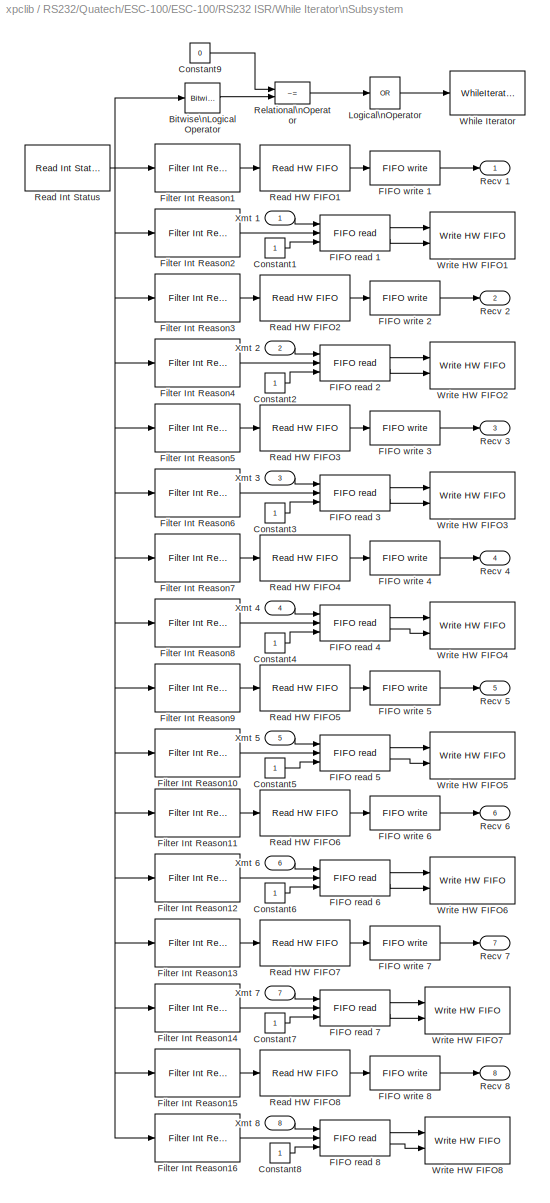
BLOCK [SubSystem] RS232/Quatech/ESC-100/ESC-100/RS232 ISR/While Iterator\nSubsystem
  MinAlgLoopOccurrences = off
  Ports = [8, 8]
  PropExecContextAcrossSSBoundary = on
  RTWSystemCode = Auto
  TreatAsAtomicUnit = on
BLOCK [Reference] RS232/Quatech/ESC-100/ESC-100/RS232 ISR/While Iterator\nSubsystem/Bitwise\nLogical Operator  REF=simulink/Logic and Bit\nOperations/Bitwise\nOperator
  BitMask = 'FF'
  BitMaskRealWorld = Stored Integer
  NumInputPorts = 1
  Ports = [1, 1]
  SourceBlock = simulink/Logic and Bit\nOperations/Bitwise\nOperator
  SourceType = Bitwise Operator
  UseBitMask = on
  logicop = AND
BLOCK [Constant] RS232/Quatech/ESC-100/ESC-100/RS232 ISR/While Iterator\nSubsystem/Constant1
  OutDataTypeMode = uint32
BLOCK [Constant] RS232/Quatech/ESC-100/ESC-100/RS232 ISR/While Iterator\nSubsystem/Constant2
  OutDataTypeMode = uint32
BLOCK [Constant] RS232/Quatech/ESC-100/ESC-100/RS232 ISR/While Iterator\nSubsystem/Constant3
  OutDataTypeMode = uint32
BLOCK [Constant] RS232/Quatech/ESC-100/ESC-100/RS232 ISR/While Iterator\nSubsystem/Constant4
  OutDataTypeMode = uint32
BLOCK [Constant] RS232/Quatech/ESC-100/ESC-100/RS232 ISR/While Iterator\nSubsystem/Constant5
  OutDataTypeMode = uint32
BLOCK [Constant] RS232/Quatech/ESC-100/ESC-100/RS232 ISR/While Iterator\nSubsystem/Constant6
  OutDataTypeMode = uint32
BLOCK [Constant] RS232/Quatech/ESC-100/ESC-100/RS232 ISR/While Iterator\nSubsystem/Constant7
  OutDataTypeMode = uint32
BLOCK [Constant] RS232/Quatech/ESC-100/ESC-100/RS232 ISR/While Iterator\nSubsystem/Constant8
  OutDataTypeMode = uint32
BLOCK [Constant] RS232/Quatech/ESC-100/ESC-100/RS232 ISR/While Iterator\nSubsystem/Constant9
  OutDataTypeMode = uint32
  Value = 0
BLOCK [Reference] RS232/Quatech/ESC-100/ESC-100/RS232 ISR/While Iterator\nSubsystem/FIFO read 1  REF=xpclib/RS232/FIFO read 
  Ports = [3, 2]
  SourceBlock = xpclib/RS232/FIFO read
  SourceType = Asynchronous FIFO Block: reader
  delimiter = 13
  enable = on
  enableout = on
  maxsize = 60
  minsize = 1
  outputtype = count+32 bit uint
  sampletime = -1
  usedelimiter = off
BLOCK [Reference] RS232/Quatech/ESC-100/ESC-100/RS232 ISR/While Iterator\nSubsystem/FIFO read 2  REF=xpclib/RS232/FIFO read 
  Ports = [3, 2]
  SourceBlock = xpclib/RS232/FIFO read
  SourceType = Asynchronous FIFO Block: reader
  delimiter = 13
  enable = on
  enableout = on
  maxsize = 60
  minsize = 1
  outputtype = count+32 bit uint
  sampletime = -1
  usedelimiter = off
BLOCK [Reference] RS232/Quatech/ESC-100/ESC-100/RS232 ISR/While Iterator\nSubsystem/FIFO read 3  REF=xpclib/RS232/FIFO read 
  Ports = [3, 2]
  SourceBlock = xpclib/RS232/FIFO read
  SourceType = Asynchronous FIFO Block: reader
  delimiter = 13
  enable = on
  enableout = on
  maxsize = 60
  minsize = 1
  outputtype = count+32 bit uint
  sampletime = -1
  usedelimiter = off
BLOCK [Reference] RS232/Quatech/ESC-100/ESC-100/RS232 ISR/While Iterator\nSubsystem/FIFO read 4  REF=xpclib/RS232/FIFO read 
  Ports = [3, 2]
  SourceBlock = xpclib/RS232/FIFO read
  SourceType = Asynchronous FIFO Block: reader
  delimiter = 13
  enable = on
  enableout = on
  maxsize = 60
  minsize = 1
  outputtype = count+32 bit uint
  sampletime = -1
  usedelimiter = off
BLOCK [Reference] RS232/Quatech/ESC-100/ESC-100/RS232 ISR/While Iterator\nSubsystem/FIFO read 5  REF=xpclib/RS232/FIFO read 
  Ports = [3, 2]
  SourceBlock = xpclib/RS232/FIFO read
  SourceType = Asynchronous FIFO Block: reader
  delimiter = 13
  enable = on
  enableout = on
  maxsize = 60
  minsize = 1
  outputtype = count+32 bit uint
  sampletime = -1
  usedelimiter = off
BLOCK [Reference] RS232/Quatech/ESC-100/ESC-100/RS232 ISR/While Iterator\nSubsystem/FIFO read 6  REF=xpclib/RS232/FIFO read 
  Ports = [3, 2]
  SourceBlock = xpclib/RS232/FIFO read
  SourceType = Asynchronous FIFO Block: reader
  delimiter = 13
  enable = on
  enableout = on
  maxsize = 60
  minsize = 1
  outputtype = count+32 bit uint
  sampletime = -1
  usedelimiter = off
BLOCK [Reference] RS232/Quatech/ESC-100/ESC-100/RS232 ISR/While Iterator\nSubsystem/FIFO read 7  REF=xpclib/RS232/FIFO read 
  Ports = [3, 2]
  SourceBlock = xpclib/RS232/FIFO read
  SourceType = Asynchronous FIFO Block: reader
  delimiter = 13
  enable = on
  enableout = on
  maxsize = 60
  minsize = 1
  outputtype = count+32 bit uint
  sampletime = -1
  usedelimiter = off
BLOCK [Reference] RS232/Quatech/ESC-100/ESC-100/RS232 ISR/While Iterator\nSubsystem/FIFO read 8  REF=xpclib/RS232/FIFO read 
  Ports = [3, 2]
  SourceBlock = xpclib/RS232/FIFO read
  SourceType = Asynchronous FIFO Block: reader
  delimiter = 13
  enable = on
  enableout = on
  maxsize = 60
  minsize = 1
  outputtype = count+32 bit uint
  sampletime = -1
  usedelimiter = off
BLOCK [Reference] RS232/Quatech/ESC-100/ESC-100/RS232 ISR/While Iterator\nSubsystem/FIFO write 1  REF=xpclib/RS232/FIFO write 
  Ports = [1, 1]
  SourceBlock = xpclib/RS232/FIFO write
  SourceType = Asynchronous FIFO Block: writer
  id = RCV channel 1, IRQ 7
  inputtype = count+32 bit uint
  present = off
  sampletime = -1
  size = 1024
BLOCK [Reference] RS232/Quatech/ESC-100/ESC-100/RS232 ISR/While Iterator\nSubsystem/FIFO write 2  REF=xpclib/RS232/FIFO write 
  Ports = [1, 1]
  SourceBlock = xpclib/RS232/FIFO write
  SourceType = Asynchronous FIFO Block: writer
  id = RCV channel 2, IRQ 7
  inputtype = count+32 bit uint
  present = off
  sampletime = -1
  size = 1024
BLOCK [Reference] RS232/Quatech/ESC-100/ESC-100/RS232 ISR/While Iterator\nSubsystem/FIFO write 3  REF=xpclib/RS232/FIFO write 
  Ports = [1, 1]
  SourceBlock = xpclib/RS232/FIFO write
  SourceType = Asynchronous FIFO Block: writer
  id = RCV channel 3, IRQ 7
  inputtype = count+32 bit uint
  present = off
  sampletime = -1
  size = 1024
BLOCK [Reference] RS232/Quatech/ESC-100/ESC-100/RS232 ISR/While Iterator\nSubsystem/FIFO write 4  REF=xpclib/RS232/FIFO write 
  Ports = [1, 1]
  SourceBlock = xpclib/RS232/FIFO write
  SourceType = Asynchronous FIFO Block: writer
  id = RCV channel 4, IRQ 7
  inputtype = count+32 bit uint
  present = off
  sampletime = -1
  size = 1024
BLOCK [Reference] RS232/Quatech/ESC-100/ESC-100/RS232 ISR/While Iterator\nSubsystem/FIFO write 5  REF=xpclib/RS232/FIFO write 
  Ports = [1, 1]
  SourceBlock = xpclib/RS232/FIFO write
  SourceType = Asynchronous FIFO Block: writer
  id = RCV channel 5, IRQ 7
  inputtype = count+32 bit uint
  present = off
  sampletime = -1
  size = 1024
BLOCK [Reference] RS232/Quatech/ESC-100/ESC-100/RS232 ISR/While Iterator\nSubsystem/FIFO write 6  REF=xpclib/RS232/FIFO write 
  Ports = [1, 1]
  SourceBlock = xpclib/RS232/FIFO write
  SourceType = Asynchronous FIFO Block: writer
  id = RCV channel 6, IRQ 7
  inputtype = count+32 bit uint
  present = off
  sampletime = -1
  size = 1024
BLOCK [Reference] RS232/Quatech/ESC-100/ESC-100/RS232 ISR/While Iterator\nSubsystem/FIFO write 7  REF=xpclib/RS232/FIFO write 
  Ports = [1, 1]
  SourceBlock = xpclib/RS232/FIFO write
  SourceType = Asynchronous FIFO Block: writer
  id = RCV channel 7, IRQ 7
  inputtype = count+32 bit uint
  present = off
  sampletime = -1
  size = 1024
BLOCK [Reference] RS232/Quatech/ESC-100/ESC-100/RS232 ISR/While Iterator\nSubsystem/FIFO write 8  REF=xpclib/RS232/FIFO write 
  Ports = [1, 1]
  SourceBlock = xpclib/RS232/FIFO write
  SourceType = Asynchronous FIFO Block: writer
  id = RCV channel 8, IRQ 7
  inputtype = count+32 bit uint
  present = off
  sampletime = -1
  size = 1024
BLOCK [Reference] RS232/Quatech/ESC-100/ESC-100/RS232 ISR/While Iterator\nSubsystem/Filter Int Reason1  REF=xpclib/RS232/Quatech/ESC-100/ESC-100\nInternal\nblocks/Filter Int Reason
  Ports = [1, 1]
  SourceBlock = xpclib/RS232/Quatech/ESC-100/ESC-100\nInternal\nblocks/Filter Int Reason
  SourceType = Interrupt Source Filter
  port = 1
  value = Receive data
BLOCK [Reference] RS232/Quatech/ESC-100/ESC-100/RS232 ISR/While Iterator\nSubsystem/Filter Int Reason10  REF=xpclib/RS232/Quatech/ESC-100/ESC-100\nInternal\nblocks/Filter Int Reason
  Ports = [1, 1]
  SourceBlock = xpclib/RS232/Quatech/ESC-100/ESC-100\nInternal\nblocks/Filter Int Reason
  SourceType = Interrupt Source Filter
  port = 5
  value = Transmitter empty
BLOCK [Reference] RS232/Quatech/ESC-100/ESC-100/RS232 ISR/While Iterator\nSubsystem/Filter Int Reason11  REF=xpclib/RS232/Quatech/ESC-100/ESC-100\nInternal\nblocks/Filter Int Reason
  Ports = [1, 1]
  SourceBlock = xpclib/RS232/Quatech/ESC-100/ESC-100\nInternal\nblocks/Filter Int Reason
  SourceType = Interrupt Source Filter
  port = 6
  value = Receive data
BLOCK [Reference] RS232/Quatech/ESC-100/ESC-100/RS232 ISR/While Iterator\nSubsystem/Filter Int Reason12  REF=xpclib/RS232/Quatech/ESC-100/ESC-100\nInternal\nblocks/Filter Int Reason
  Ports = [1, 1]
  SourceBlock = xpclib/RS232/Quatech/ESC-100/ESC-100\nInternal\nblocks/Filter Int Reason
  SourceType = Interrupt Source Filter
  port = 6
  value = Transmitter empty
BLOCK [Reference] RS232/Quatech/ESC-100/ESC-100/RS232 ISR/While Iterator\nSubsystem/Filter Int Reason13  REF=xpclib/RS232/Quatech/ESC-100/ESC-100\nInternal\nblocks/Filter Int Reason
  Ports = [1, 1]
  SourceBlock = xpclib/RS232/Quatech/ESC-100/ESC-100\nInternal\nblocks/Filter Int Reason
  SourceType = Interrupt Source Filter
  port = 7
  value = Receive data
BLOCK [Reference] RS232/Quatech/ESC-100/ESC-100/RS232 ISR/While Iterator\nSubsystem/Filter Int Reason14  REF=xpclib/RS232/Quatech/ESC-100/ESC-100\nInternal\nblocks/Filter Int Reason
  Ports = [1, 1]
  SourceBlock = xpclib/RS232/Quatech/ESC-100/ESC-100\nInternal\nblocks/Filter Int Reason
  SourceType = Interrupt Source Filter
  port = 7
  value = Transmitter empty
BLOCK [Reference] RS232/Quatech/ESC-100/ESC-100/RS232 ISR/While Iterator\nSubsystem/Filter Int Reason15  REF=xpclib/RS232/Quatech/ESC-100/ESC-100\nInternal\nblocks/Filter Int Reason
  Ports = [1, 1]
  SourceBlock = xpclib/RS232/Quatech/ESC-100/ESC-100\nInternal\nblocks/Filter Int Reason
  SourceType = Interrupt Source Filter
  port = 8
  value = Receive data
BLOCK [Reference] RS232/Quatech/ESC-100/ESC-100/RS232 ISR/While Iterator\nSubsystem/Filter Int Reason16  REF=xpclib/RS232/Quatech/ESC-100/ESC-100\nInternal\nblocks/Filter Int Reason
  Ports = [1, 1]
  SourceBlock = xpclib/RS232/Quatech/ESC-100/ESC-100\nInternal\nblocks/Filter Int Reason
  SourceType = Interrupt Source Filter
  port = 8
  value = Transmitter empty
BLOCK [Reference] RS232/Quatech/ESC-100/ESC-100/RS232 ISR/While Iterator\nSubsystem/Filter Int Reason2  REF=xpclib/RS232/Quatech/ESC-100/ESC-100\nInternal\nblocks/Filter Int Reason
  Ports = [1, 1]
  SourceBlock = xpclib/RS232/Quatech/ESC-100/ESC-100\nInternal\nblocks/Filter Int Reason
  SourceType = Interrupt Source Filter
  port = 1
  value = Transmitter empty
BLOCK [Reference] RS232/Quatech/ESC-100/ESC-100/RS232 ISR/While Iterator\nSubsystem/Filter Int Reason3  REF=xpclib/RS232/Quatech/ESC-100/ESC-100\nInternal\nblocks/Filter Int Reason
  Ports = [1, 1]
  SourceBlock = xpclib/RS232/Quatech/ESC-100/ESC-100\nInternal\nblocks/Filter Int Reason
  SourceType = Interrupt Source Filter
  port = 2
  value = Receive data
BLOCK [Reference] RS232/Quatech/ESC-100/ESC-100/RS232 ISR/While Iterator\nSubsystem/Filter Int Reason4  REF=xpclib/RS232/Quatech/ESC-100/ESC-100\nInternal\nblocks/Filter Int Reason
  Ports = [1, 1]
  SourceBlock = xpclib/RS232/Quatech/ESC-100/ESC-100\nInternal\nblocks/Filter Int Reason
  SourceType = Interrupt Source Filter
  port = 2
  value = Transmitter empty
BLOCK [Reference] RS232/Quatech/ESC-100/ESC-100/RS232 ISR/While Iterator\nSubsystem/Filter Int Reason5  REF=xpclib/RS232/Quatech/ESC-100/ESC-100\nInternal\nblocks/Filter Int Reason
  Ports = [1, 1]
  SourceBlock = xpclib/RS232/Quatech/ESC-100/ESC-100\nInternal\nblocks/Filter Int Reason
  SourceType = Interrupt Source Filter
  port = 3
  value = Receive data
BLOCK [Reference] RS232/Quatech/ESC-100/ESC-100/RS232 ISR/While Iterator\nSubsystem/Filter Int Reason6  REF=xpclib/RS232/Quatech/ESC-100/ESC-100\nInternal\nblocks/Filter Int Reason
  Ports = [1, 1]
  SourceBlock = xpclib/RS232/Quatech/ESC-100/ESC-100\nInternal\nblocks/Filter Int Reason
  SourceType = Interrupt Source Filter
  port = 3
  value = Transmitter empty
BLOCK [Reference] RS232/Quatech/ESC-100/ESC-100/RS232 ISR/While Iterator\nSubsystem/Filter Int Reason7  REF=xpclib/RS232/Quatech/ESC-100/ESC-100\nInternal\nblocks/Filter Int Reason
  Ports = [1, 1]
  SourceBlock = xpclib/RS232/Quatech/ESC-100/ESC-100\nInternal\nblocks/Filter Int Reason
  SourceType = Interrupt Source Filter
  port = 4
  value = Receive data
BLOCK [Reference] RS232/Quatech/ESC-100/ESC-100/RS232 ISR/While Iterator\nSubsystem/Filter Int Reason8  REF=xpclib/RS232/Quatech/ESC-100/ESC-100\nInternal\nblocks/Filter Int Reason
  Ports = [1, 1]
  SourceBlock = xpclib/RS232/Quatech/ESC-100/ESC-100\nInternal\nblocks/Filter Int Reason
  SourceType = Interrupt Source Filter
  port = 4
  value = Transmitter empty
BLOCK [Reference] RS232/Quatech/ESC-100/ESC-100/RS232 ISR/While Iterator\nSubsystem/Filter Int Reason9  REF=xpclib/RS232/Quatech/ESC-100/ESC-100\nInternal\nblocks/Filter Int Reason
  Ports = [1, 1]
  SourceBlock = xpclib/RS232/Quatech/ESC-100/ESC-100\nInternal\nblocks/Filter Int Reason
  SourceType = Interrupt Source Filter
  port = 5
  value = Receive data
BLOCK [Logic] RS232/Quatech/ESC-100/ESC-100/RS232 ISR/While Iterator\nSubsystem/Logical\nOperator
  AllPortsSameDT = off
  Inputs = 1
  Operator = OR
  Ports = [1, 1]
BLOCK [Reference] RS232/Quatech/ESC-100/ESC-100/RS232 ISR/While Iterator\nSubsystem/Read HW FIFO1  REF=xpclib/RS232/Quatech/ESC-100/ESC-100\nInternal\nblocks/Read HW FIFO
  Ports = [1, 1]
  SourceBlock = xpclib/RS232/Quatech/ESC-100/ESC-100\nInternal\nblocks/Read HW FIFO
  SourceType = Read Data Port
  flush = on
  port = 1
  slot = subslot
BLOCK [Reference] RS232/Quatech/ESC-100/ESC-100/RS232 ISR/While Iterator\nSubsystem/Read HW FIFO2  REF=xpclib/RS232/Quatech/ESC-100/ESC-100\nInternal\nblocks/Read HW FIFO
  Ports = [1, 1]
  SourceBlock = xpclib/RS232/Quatech/ESC-100/ESC-100\nInternal\nblocks/Read HW FIFO
  SourceType = Read Data Port
  flush = on
  port = 2
  slot = subslot
BLOCK [Reference] RS232/Quatech/ESC-100/ESC-100/RS232 ISR/While Iterator\nSubsystem/Read HW FIFO3  REF=xpclib/RS232/Quatech/ESC-100/ESC-100\nInternal\nblocks/Read HW FIFO
  Ports = [1, 1]
  SourceBlock = xpclib/RS232/Quatech/ESC-100/ESC-100\nInternal\nblocks/Read HW FIFO
  SourceType = Read Data Port
  flush = on
  port = 3
  slot = subslot
BLOCK [Reference] RS232/Quatech/ESC-100/ESC-100/RS232 ISR/While Iterator\nSubsystem/Read HW FIFO4  REF=xpclib/RS232/Quatech/ESC-100/ESC-100\nInternal\nblocks/Read HW FIFO
  Ports = [1, 1]
  SourceBlock = xpclib/RS232/Quatech/ESC-100/ESC-100\nInternal\nblocks/Read HW FIFO
  SourceType = Read Data Port
  flush = on
  port = 4
  slot = subslot
BLOCK [Reference] RS232/Quatech/ESC-100/ESC-100/RS232 ISR/While Iterator\nSubsystem/Read HW FIFO5  REF=xpclib/RS232/Quatech/ESC-100/ESC-100\nInternal\nblocks/Read HW FIFO
  Ports = [1, 1]
  SourceBlock = xpclib/RS232/Quatech/ESC-100/ESC-100\nInternal\nblocks/Read HW FIFO
  SourceType = Read Data Port
  flush = on
  port = 5
  slot = subslot
BLOCK [Reference] RS232/Quatech/ESC-100/ESC-100/RS232 ISR/While Iterator\nSubsystem/Read HW FIFO6  REF=xpclib/RS232/Quatech/ESC-100/ESC-100\nInternal\nblocks/Read HW FIFO
  Ports = [1, 1]
  SourceBlock = xpclib/RS232/Quatech/ESC-100/ESC-100\nInternal\nblocks/Read HW FIFO
  SourceType = Read Data Port
  flush = on
  port = 6
  slot = subslot
BLOCK [Reference] RS232/Quatech/ESC-100/ESC-100/RS232 ISR/While Iterator\nSubsystem/Read HW FIFO7  REF=xpclib/RS232/Quatech/ESC-100/ESC-100\nInternal\nblocks/Read HW FIFO
  Ports = [1, 1]
  SourceBlock = xpclib/RS232/Quatech/ESC-100/ESC-100\nInternal\nblocks/Read HW FIFO
  SourceType = Read Data Port
  flush = on
  port = 7
  slot = subslot
BLOCK [Reference] RS232/Quatech/ESC-100/ESC-100/RS232 ISR/While Iterator\nSubsystem/Read HW FIFO8  REF=xpclib/RS232/Quatech/ESC-100/ESC-100\nInternal\nblocks/Read HW FIFO
  Ports = [1, 1]
  SourceBlock = xpclib/RS232/Quatech/ESC-100/ESC-100\nInternal\nblocks/Read HW FIFO
  SourceType = Read Data Port
  flush = on
  port = 8
  slot = subslot
BLOCK [Reference] RS232/Quatech/ESC-100/ESC-100/RS232 ISR/While Iterator\nSubsystem/Read Int Status  REF=xpclib/RS232/Quatech/ESC-100/ESC-100\nInternal\nblocks/Read Int Status
  Ports = [0, 1]
  SourceBlock = xpclib/RS232/Quatech/ESC-100/ESC-100\nInternal\nblocks/Read Int Status
  SourceType = Interrupt Query
  slot = subslot
BLOCK [Outport] RS232/Quatech/ESC-100/ESC-100/RS232 ISR/While Iterator\nSubsystem/Recv 1
  BusOutputAsStruct = off
  IconDisplay = Port number
BLOCK [Outport] RS232/Quatech/ESC-100/ESC-100/RS232 ISR/While Iterator\nSubsystem/Recv 2
  BusOutputAsStruct = off
  IconDisplay = Port number
  Port = 2
BLOCK [Outport] RS232/Quatech/ESC-100/ESC-100/RS232 ISR/While Iterator\nSubsystem/Recv 3
  BusOutputAsStruct = off
  IconDisplay = Port number
  Port = 3
BLOCK [Outport] RS232/Quatech/ESC-100/ESC-100/RS232 ISR/While Iterator\nSubsystem/Recv 4
  BusOutputAsStruct = off
  IconDisplay = Port number
  Port = 4
BLOCK [Outport] RS232/Quatech/ESC-100/ESC-100/RS232 ISR/While Iterator\nSubsystem/Recv 5
  BusOutputAsStruct = off
  IconDisplay = Port number
  Port = 5
BLOCK [Outport] RS232/Quatech/ESC-100/ESC-100/RS232 ISR/While Iterator\nSubsystem/Recv 6
  BusOutputAsStruct = off
  IconDisplay = Port number
  Port = 6
BLOCK [Outport] RS232/Quatech/ESC-100/ESC-100/RS232 ISR/While Iterator\nSubsystem/Recv 7
  BusOutputAsStruct = off
  IconDisplay = Port number
  Port = 7
BLOCK [Outport] RS232/Quatech/ESC-100/ESC-100/RS232 ISR/While Iterator\nSubsystem/Recv 8
  BusOutputAsStruct = off
  IconDisplay = Port number
  Port = 8
BLOCK [RelationalOperator] RS232/Quatech/ESC-100/ESC-100/RS232 ISR/While Iterator\nSubsystem/Relational\nOperator
  InputSameDT = off
  Operator = ~=
BLOCK [WhileIterator] RS232/Quatech/ESC-100/ESC-100/RS232 ISR/While Iterator\nSubsystem/While Iterator
  MaxIters = 65
  Ports = [1]
  WhileBlockType = do-while
BLOCK [Reference] RS232/Quatech/ESC-100/ESC-100/RS232 ISR/While Iterator\nSubsystem/Write HW FIFO1  REF=xpclib/RS232/Quatech/ESC-100/ESC-100\nInternal\nblocks/Write HW FIFO
  Ports = [2]
  SourceBlock = xpclib/RS232/Quatech/ESC-100/ESC-100\nInternal\nblocks/Write HW FIFO
  SourceType = Write Data Port
  port = 1
  slot = subslot
BLOCK [Reference] RS232/Quatech/ESC-100/ESC-100/RS232 ISR/While Iterator\nSubsystem/Write HW FIFO2  REF=xpclib/RS232/Quatech/ESC-100/ESC-100\nInternal\nblocks/Write HW FIFO
  Ports = [2]
  SourceBlock = xpclib/RS232/Quatech/ESC-100/ESC-100\nInternal\nblocks/Write HW FIFO
  SourceType = Write Data Port
  port = 2
  slot = subslot
BLOCK [Reference] RS232/Quatech/ESC-100/ESC-100/RS232 ISR/While Iterator\nSubsystem/Write HW FIFO3  REF=xpclib/RS232/Quatech/ESC-100/ESC-100\nInternal\nblocks/Write HW FIFO
  Ports = [2]
  SourceBlock = xpclib/RS232/Quatech/ESC-100/ESC-100\nInternal\nblocks/Write HW FIFO
  SourceType = Write Data Port
  port = 3
  slot = subslot
BLOCK [Reference] RS232/Quatech/ESC-100/ESC-100/RS232 ISR/While Iterator\nSubsystem/Write HW FIFO4  REF=xpclib/RS232/Quatech/ESC-100/ESC-100\nInternal\nblocks/Write HW FIFO
  Ports = [2]
  SourceBlock = xpclib/RS232/Quatech/ESC-100/ESC-100\nInternal\nblocks/Write HW FIFO
  SourceType = Write Data Port
  port = 4
  slot = subslot
BLOCK [Reference] RS232/Quatech/ESC-100/ESC-100/RS232 ISR/While Iterator\nSubsystem/Write HW FIFO5  REF=xpclib/RS232/Quatech/ESC-100/ESC-100\nInternal\nblocks/Write HW FIFO
  Ports = [2]
  SourceBlock = xpclib/RS232/Quatech/ESC-100/ESC-100\nInternal\nblocks/Write HW FIFO
  SourceType = Write Data Port
  port = 5
  slot = subslot
BLOCK [Reference] RS232/Quatech/ESC-100/ESC-100/RS232 ISR/While Iterator\nSubsystem/Write HW FIFO6  REF=xpclib/RS232/Quatech/ESC-100/ESC-100\nInternal\nblocks/Write HW FIFO
  Ports = [2]
  SourceBlock = xpclib/RS232/Quatech/ESC-100/ESC-100\nInternal\nblocks/Write HW FIFO
  SourceType = Write Data Port
  port = 6
  slot = subslot
BLOCK [Reference] RS232/Quatech/ESC-100/ESC-100/RS232 ISR/While Iterator\nSubsystem/Write HW FIFO7  REF=xpclib/RS232/Quatech/ESC-100/ESC-100\nInternal\nblocks/Write HW FIFO
  Ports = [2]
  SourceBlock = xpclib/RS232/Quatech/ESC-100/ESC-100\nInternal\nblocks/Write HW FIFO
  SourceType = Write Data Port
  port = 7
  slot = subslot
BLOCK [Reference] RS232/Quatech/ESC-100/ESC-100/RS232 ISR/While Iterator\nSubsystem/Write HW FIFO8  REF=xpclib/RS232/Quatech/ESC-100/ESC-100\nInternal\nblocks/Write HW FIFO
  Ports = [2]
  SourceBlock = xpclib/RS232/Quatech/ESC-100/ESC-100\nInternal\nblocks/Write HW FIFO
  SourceType = Write Data Port
  port = 8
  slot = subslot
BLOCK [Inport] RS232/Quatech/ESC-100/ESC-100/RS232 ISR/While Iterator\nSubsystem/Xmt 1
  IconDisplay = Port number
  LatchInput = off
BLOCK [Inport] RS232/Quatech/ESC-100/ESC-100/RS232 ISR/While Iterator\nSubsystem/Xmt 2
  IconDisplay = Port number
  LatchInput = off
  Port = 2
BLOCK [Inport] RS232/Quatech/ESC-100/ESC-100/RS232 ISR/While Iterator\nSubsystem/Xmt 3
  IconDisplay = Port number
  LatchInput = off
  Port = 3
BLOCK [Inport] RS232/Quatech/ESC-100/ESC-100/RS232 ISR/While Iterator\nSubsystem/Xmt 4
  IconDisplay = Port number
  LatchInput = off
  Port = 4
BLOCK [Inport] RS232/Quatech/ESC-100/ESC-100/RS232 ISR/While Iterator\nSubsystem/Xmt 5
  IconDisplay = Port number
  LatchInput = off
  Port = 5
BLOCK [Inport] RS232/Quatech/ESC-100/ESC-100/RS232 ISR/While Iterator\nSubsystem/Xmt 6
  IconDisplay = Port number
  LatchInput = off
  Port = 6
BLOCK [Inport] RS232/Quatech/ESC-100/ESC-100/RS232 ISR/While Iterator\nSubsystem/Xmt 7
  IconDisplay = Port number
  LatchInput = off
  Port = 7
BLOCK [Inport] RS232/Quatech/ESC-100/ESC-100/RS232 ISR/While Iterator\nSubsystem/Xmt 8
  IconDisplay = Port number
  LatchInput = off
  Port = 8
BLOCK [Inport] RS232/Quatech/ESC-100/ESC-100/RS232 ISR/Xmt 1
  IconDisplay = Port number
  LatchInput = off
BLOCK [Inport] RS232/Quatech/ESC-100/ESC-100/RS232 ISR/Xmt 2
  IconDisplay = Port number
  LatchInput = off
  Port = 2
BLOCK [Inport] RS232/Quatech/ESC-100/ESC-100/RS232 ISR/Xmt 3
  IconDisplay = Port number
  LatchInput = off
  Port = 3
BLOCK [Inport] RS232/Quatech/ESC-100/ESC-100/RS232 ISR/Xmt 4
  IconDisplay = Port number
  LatchInput = off
  Port = 4
BLOCK [Inport] RS232/Quatech/ESC-100/ESC-100/RS232 ISR/Xmt 5
  IconDisplay = Port number
  LatchInput = off
  Port = 5
BLOCK [Inport] RS232/Quatech/ESC-100/ESC-100/RS232 ISR/Xmt 6
  IconDisplay = Port number
  LatchInput = off
  Port = 6
BLOCK [Inport] RS232/Quatech/ESC-100/ESC-100/RS232 ISR/Xmt 7
  IconDisplay = Port number
  LatchInput = off
  Port = 7
BLOCK [Inport] RS232/Quatech/ESC-100/ESC-100/RS232 ISR/Xmt 8
  IconDisplay = Port number
  LatchInput = off
  Port = 8
BLOCK [TriggerPort] RS232/Quatech/ESC-100/ESC-100/RS232 ISR/function
  Ports = []
  StatesWhenEnabling = held
  TriggerType = function-call
BLOCK [Reference] RS232/Quatech/ESC-100/ESC-100/Setup1  REF=xpclib/RS232/Quatech/ESC-100/ESC-100\nInternal\nblocks/Setup
  Ports = []
  SourceBlock = xpclib/RS232/Quatech/ESC-100/ESC-100\nInternal\nblocks/Setup
  SourceType = setup
  baud = 19200
  ctsmode = on
  fmode = 64 deep
  nstop = 1
  parity = None
  port = 1
  rlevel = half full
  slot = brdslot
  width = 8
BLOCK [Reference] RS232/Quatech/ESC-100/ESC-100/Setup2  REF=xpclib/RS232/Quatech/ESC-100/ESC-100\nInternal\nblocks/Setup
  Ports = []
  SourceBlock = xpclib/RS232/Quatech/ESC-100/ESC-100\nInternal\nblocks/Setup
  SourceType = setup
  baud = 19200
  ctsmode = on
  fmode = 64 deep
  nstop = 1
  parity = None
  port = 2
  rlevel = half full
  slot = brdslot
  width = 8
BLOCK [Reference] RS232/Quatech/ESC-100/ESC-100/Setup3  REF=xpclib/RS232/Quatech/ESC-100/ESC-100\nInternal\nblocks/Setup
  Ports = []
  SourceBlock = xpclib/RS232/Quatech/ESC-100/ESC-100\nInternal\nblocks/Setup
  SourceType = setup
  baud = 19200
  ctsmode = on
  fmode = 64 deep
  nstop = 1
  parity = None
  port = 3
  rlevel = half full
  slot = brdslot
  width = 8
BLOCK [Reference] RS232/Quatech/ESC-100/ESC-100/Setup4  REF=xpclib/RS232/Quatech/ESC-100/ESC-100\nInternal\nblocks/Setup
  Ports = []
  SourceBlock = xpclib/RS232/Quatech/ESC-100/ESC-100\nInternal\nblocks/Setup
  SourceType = setup
  baud = 19200
  ctsmode = on
  fmode = 64 deep
  nstop = 1
  parity = None
  port = 4
  rlevel = half full
  slot = brdslot
  width = 8
BLOCK [Reference] RS232/Quatech/ESC-100/ESC-100/Setup5  REF=xpclib/RS232/Quatech/ESC-100/ESC-100\nInternal\nblocks/Setup
  Ports = []
  SourceBlock = xpclib/RS232/Quatech/ESC-100/ESC-100\nInternal\nblocks/Setup
  SourceType = setup
  baud = 19200
  ctsmode = on
  fmode = 64 deep
  nstop = 1
  parity = None
  port = 5
  rlevel = half full
  slot = brdslot
  width = 8
BLOCK [Reference] RS232/Quatech/ESC-100/ESC-100/Setup6  REF=xpclib/RS232/Quatech/ESC-100/ESC-100\nInternal\nblocks/Setup
  Ports = []
  SourceBlock = xpclib/RS232/Quatech/ESC-100/ESC-100\nInternal\nblocks/Setup
  SourceType = setup
  baud = 19200
  ctsmode = on
  fmode = 64 deep
  nstop = 1
  parity = None
  port = 6
  rlevel = half full
  slot = brdslot
  width = 8
BLOCK [Reference] RS232/Quatech/ESC-100/ESC-100/Setup7  REF=xpclib/RS232/Quatech/ESC-100/ESC-100\nInternal\nblocks/Setup
  Ports = []
  SourceBlock = xpclib/RS232/Quatech/ESC-100/ESC-100\nInternal\nblocks/Setup
  SourceType = setup
  baud = 19200
  ctsmode = on
  fmode = 64 deep
  nstop = 1
  parity = None
  port = 7
  rlevel = half full
  slot = brdslot
  width = 8
BLOCK [Reference] RS232/Quatech/ESC-100/ESC-100/Setup8  REF=xpclib/RS232/Quatech/ESC-100/ESC-100\nInternal\nblocks/Setup
  Ports = []
  SourceBlock = xpclib/RS232/Quatech/ESC-100/ESC-100\nInternal\nblocks/Setup
  SourceType = setup
  baud = 19200
  ctsmode = on
  fmode = 64 deep
  nstop = 1
  parity = None
  port = 8
  rlevel = half full
  slot = brdslot
  width = 8
BLOCK [SubSystem] RS232/Quatech/ESC-100/ESC-100\nInternal\nblocks
  MinAlgLoopOccurrences = off
  Ports = []
  PropExecContextAcrossSSBoundary = on
  RTWSystemCode = Auto
  TreatAsAtomicUnit = off
BLOCK [S-Function] RS232/Quatech/ESC-100/ESC-100\nInternal\nblocks/Enable TX 
  FunctionName = sertxenable
  MaskCallbackString = |
  MaskDescription = ESC-100\nQuatech\nEnable TX Interrupt\n
  MaskDisplay = disp('ESC-100\\nQuatech\\nEnable TX int');\nport_label('input', 1, 'E');\n
  MaskEnableString = on,on
  MaskHelp = helpview(fullfile(docroot, 'mapfiles', 'xpc.map'), 'Quatech_Enable_Int')
  MaskIconFrame = on
  MaskIconOpaque = on
  MaskIconRotate = none
  MaskIconUnits = autoscale
  MaskInitialization = \n
  MaskPromptString = Port:|PCI slot: (-1 for autosearch)
  MaskSelfModifiable = on
  MaskStyleString = popup(1|2|3|4|5|6|7|8),edit
  MaskTabNameString = ,
  MaskToolTipString = on,on
  MaskTunableValueString = on,on
  MaskType = Enable TX Int
  MaskValueString = 1|-1
  MaskVarAliasString = ,
  MaskVariables = port=@1;slot=@2;
  MaskVisibilityString = on,on
  Parameters = slot, port, 2
  Ports = [1]
BLOCK [S-Function] RS232/Quatech/ESC-100/ESC-100\nInternal\nblocks/Filter Int Reason
  FunctionName = filterqua
  MaskCallbackString = |
  MaskDescription = ESC-100\nQuatech\nInterrupt Source Filter\n
  MaskDisplay = disp('ESC-100\\nQuatech\\nFilter Int Reason');\nport_label('input', 1, 'S' );\nport_label('output', 1, 'E' );\n
  MaskEnableString = on,on
  MaskHelp = helpview(fullfile(docroot, 'mapfiles', 'xpc.map'), 'Quatech_Filter_Ints')
  MaskIconFrame = on
  MaskIconOpaque = on
  MaskIconRotate = none
  MaskIconUnits = autoscale
  MaskInitialization = \n
  MaskPromptString = Port:|Filter value:
  MaskSelfModifiable = on
  MaskStyleString = popup(1|2|3|4|5|6|7|8),popup(Receive data|Transmitter empty|Modem status change)
  MaskTabNameString = ,
  MaskToolTipString = on,on
  MaskTunableValueString = on,on
  MaskType = Interrupt Source Filter
  MaskValueString = 1|Transmitter empty
  MaskVarAliasString = ,
  MaskVariables = port=@1;value=@2;
  MaskVisibilityString = on,on
  Parameters = port, 2, value
  Ports = [1, 1]
BLOCK [S-Function] RS232/Quatech/ESC-100/ESC-100\nInternal\nblocks/Int Check
  FunctionName = intcheckqua
  MaskCallbackString = |
  MaskDescription = ESC-100\nQuatech\nInterrupt Check\n
  MaskDisplay = disp('ESC-100\\nQuatech\\nInterrupt Check');
  MaskEnableString = on,on
  MaskHelp = helpview(fullfile(docroot, 'mapfiles', 'xpc.map'), 'Quatech_Interrupt_Check')
  MaskIconFrame = on
  MaskIconOpaque = on
  MaskIconRotate = none
  MaskIconUnits = autoscale
  MaskInitialization = boardtype = 2;\n
  MaskPromptString = PCI slot: (-1 for autosearch)|IRQ Line Number
  MaskSelfModifiable = on
  MaskStyleString = edit,popup(5|6|7|8|9|10|11|12|13|14|15)
  MaskTabNameString = ,
  MaskToolTipString = on,on
  MaskTunableValueString = on,on
  MaskType = interrupt check
  MaskValueString = -1|5
  MaskVarAliasString = ,
  MaskVariables = slot=@1;irqnum=@2;
  MaskVisibilityString = on,on
  Parameters = slot, irqnum+4, boardtype,
  Ports = []
BLOCK [S-Function] RS232/Quatech/ESC-100/ESC-100\nInternal\nblocks/Read HW FIFO
  FunctionName = serreadqua
  MaskCallbackString = ||
  MaskDescription = ESC-100\nQuatech\nRead Data Port\n
  MaskDisplay = disp('ESC-100\\nQuatech\\nRead HW FIFO');\nport_label('input', 1, 'E');\nport_label('output', 1, 'D');
  MaskEnableString = on,on,on
  MaskHelp = helpview(fullfile(docroot, 'mapfiles', 'xpc.map'), 'Quatech_Read_HW')
  MaskIconFrame = on
  MaskIconOpaque = on
  MaskIconRotate = none
  MaskIconUnits = autoscale
  MaskPromptString = Port:|Flush HW FIFO on startup|PCI slot: (-1 for autosearch)
  MaskSelfModifiable = on
  MaskStyleString = popup(1|2|3|4|5|6|7|8),checkbox,edit
  MaskTabNameString = ,,
  MaskToolTipString = on,on,on
  MaskTunableValueString = on,on,on
  MaskType = Read Data Port
  MaskValueString = 1|on|-1
  MaskVarAliasString = ,,
  MaskVariables = port=@1;flush=@2;slot=@3;
  MaskVisibilityString = on,on,on
  Parameters = slot, port, 2, flush
  Ports = [1, 1]
BLOCK [S-Function] RS232/Quatech/ESC-100/ESC-100\nInternal\nblocks/Read Int Status
  FunctionName = iqueryqua
  MaskDescription = ESC-100\nQuatech\nInterrupt Query\n
  MaskDisplay = disp('ESC-100\\nQuatech\\nRead Int Status');\nport_label('output', 1, 'S' );\n
  MaskEnableString = on
  MaskHelp = helpview(fullfile(docroot, 'mapfiles', 'xpc.map'), 'Quatech_Interrupt_Query')
  MaskIconFrame = on
  MaskIconOpaque = on
  MaskIconRotate = none
  MaskIconUnits = autoscale
  MaskPromptString = PCI slot: (-1 for autosearch)
  MaskSelfModifiable = on
  MaskStyleString = edit
  MaskToolTipString = on
  MaskTunableValueString = on
  MaskType = Interrupt Query
  MaskValueString = -1
  MaskVariables = slot=@1;
  MaskVisibilityString = on
  Parameters = slot, 2
  Ports = [0, 1]
BLOCK [S-Function] RS232/Quatech/ESC-100/ESC-100\nInternal\nblocks/Setup
  FunctionName = setupqua
  MaskCallbackString = ||||||||
  MaskDescription = ESC-100\nQuatech\nSetup\n
  MaskDisplay = disp('ESC-100\\nQuatech\\nSetup')
  MaskEnableString = on,on,on,on,on,on,on,on,on
  MaskHelp = helpview(fullfile(docroot, 'mapfiles', 'xpc.map'), 'Quatech_Setup')
  MaskIconFrame = on
  MaskIconOpaque = on
  MaskIconRotate = none
  MaskIconUnits = autoscale
  MaskInitialization = boardtype = 2;\n\n
  MaskPromptString = Port:|Baud rate:|Number of data bits:|Number of stop bits:|Parity:|Fifo mode:|Receive trigger level:|Enable auto RTS/CTS|PCI slot: (-1 for autosearch)
  MaskSelfModifiable = on
  MaskStyleString = popup(1|2|3|4|5|6|7|8),popup(921600|460800|230400|115200|57600|38400|19200|9600|4800|2400|1200|600|300|110),popup(5|6|7|8),popup(1|2),popup(None|Even|Odd|Mark|Space),popup(64 deep|16 deep|1 deep),popup(1|quarter full|half full|almost full),checkbox,edit
  MaskTabNameString = ,,,,,,,,
  MaskToolTipString = on,on,on,on,on,on,on,on,on
  MaskTunableValueString = on,on,on,on,on,on,on,on,on
  MaskType = setup
  MaskValueString = 1|115200|8|1|None|64 deep|half full|off|-1
  MaskVarAliasString = ,,,,,,,,
  MaskVariables = port=@1;baud=@2;width=@3;nstop=@4;parity=@5;fmode=@6;rlevel=@7;ctsmode=@8;slot=@9;
  MaskVisibilityString = on,on,on,on,on,on,on,on,on
  Parameters = slot, boardtype, port, baud, width, nstop, parity, fmode, ctsmode, rlevel
  Ports = []
BLOCK [S-Function] RS232/Quatech/ESC-100/ESC-100\nInternal\nblocks/Write HW FIFO
  FunctionName = serwritequa
  MaskCallbackString = |
  MaskDescription = ESC-100\nQuatech\nWrite Data Port\n
  MaskDisplay = disp('ESC-100\\nQuatech\\nWrite HW FIFO');\nport_label('input', 1, 'D');\nport_label('input', 2, 'E');
  MaskEnableString = on,on
  MaskHelp = helpview(fullfile(docroot, 'mapfiles', 'xpc.map'), 'Quatech_Write_HW')
  MaskIconFrame = on
  MaskIconOpaque = on
  MaskIconRotate = none
  MaskIconUnits = autoscale
  MaskPromptString = Port:|PCI slot: (-1 for autosearch)
  MaskSelfModifiable = on
  MaskStyleString = popup(1|2|3|4|5|6|7|8),edit
  MaskTabNameString = ,
  MaskToolTipString = on,on
  MaskTunableValueString = on,on
  MaskType = Write Data Port
  MaskValueString = 1|-1
  MaskVarAliasString = ,
  MaskVariables = port=@1;slot=@2;
  MaskVisibilityString = on,on
  Parameters = slot, port, 2, 0
  Ports = [2]
BLOCK [S-Function] RS232/Quatech/ESC-100/Modem Control
  FunctionName = modemcontrolqua
  InitFcn = mmodemcontrol(3)
  MaskCallbackString = |||
  MaskDescription = ESC-100\nQuatech\nModem Control
  MaskDisplay = disp('ESC-100\\nQuatech\\nModem Control');port_label('input',1,'RTS');port_label('input',2,'DTR');
  MaskEnableString = on,on,on,on
  MaskHelp = helpview(fullfile(docroot, 'mapfiles', 'xpc.map'), 'Quatech_MODEM_Control')
  MaskIconFrame = on
  MaskIconOpaque = on
  MaskIconRotate = none
  MaskIconUnits = autoscale
  MaskInitialization = count = 0;\nboardtype = 2;\n[maskdisplay, count] = mmodemcontrol( 2, rts, dtr, boardtype, 0, 0 );\nset_param( gcb, 'MaskDisplay', maskdisplay );\n
  MaskPromptString = Port:|RTS:|DTR:|PCI slot: (-1 for autosearch)
  MaskSelfModifiable = on
  MaskStyleString = popup(1|2|3|4|5|6|7|8),checkbox,checkbox,edit
  MaskTabNameString = ,,,
  MaskToolTipString = on,on,on,on
  MaskTunableValueString = on,on,on,on
  MaskType = ESC-100 Modem Control
  MaskValueString = 1|on|on|-1
  MaskVarAliasString = ,,,
  MaskVariables = port=@1;rts=@2;dtr=@3;slot=@4;
  MaskVisibilityString = on,on,on,on
  Parameters = slot, port, boardtype, rts, dtr, count
  Ports = [2]
BLOCK [S-Function] RS232/Quatech/ESC-100/Modem Status
  FunctionName = modemstatusqua
  MaskCallbackString = ||||||
  MaskDescription = ESC-100\nQuatech\nModem Status
  MaskDisplay = disp('ESC-100\\nQuatech\\nModem Status');port_label('output',1,'CTS');port_label('output',2,'DSR');port_label('output',3,'RI');port_label('output',4,'DCD');
  MaskEnableString = on,on,on,on,on,on,on
  MaskHelp = helpview(fullfile(docroot, 'mapfiles', 'xpc.map'), 'Quatech_MODEM_Status')
  MaskIconFrame = on
  MaskIconOpaque = on
  MaskIconRotate = none
  MaskIconUnits = autoscale
  MaskInitialization = count = 0;\nboardtype = 2;\n[maskdisplay, count] = mmodemstatus( 2, cts, dsr, ring, dcd, boardtype );\nset_param( gcb, 'MaskDisplay', maskdisplay );\n
  MaskPromptString = Port:|CTS:|DSR:|RI:|DCD:|SampleTime:|PCI slot: (-1 for autosearch)
  MaskSelfModifiable = on
  MaskStyleString = popup(1|2|3|4|5|6|7|8),checkbox,checkbox,checkbox,checkbox,edit,edit
  MaskTabNameString = ,,,,,,
  MaskToolTipString = on,on,on,on,on,on,on
  MaskTunableValueString = on,on,on,on,on,on,on
  MaskType = Modem Status
  MaskValueString = 1|on|on|on|on|-1|-1
  MaskVarAliasString = ,,,,,,
  MaskVariables = port=@1;cts=@2;dsr=@3;ring=@4;dcd=@5;sampletime=@6;slot=@7;
  MaskVisibilityString = on,on,on,on,on,on,on
  Parameters = slot, port, boardtype, cts, dsr, ring, dcd, count, sampletime
  Ports = [0, 4]
BLOCK [SubSystem] RS232/Quatech/QSC-100
  MinAlgLoopOccurrences = off
  Ports = []
  PropExecContextAcrossSSBoundary = on
  RTWSystemCode = Auto
  TreatAsAtomicUnit = off
BLOCK [S-Function] RS232/Quatech/QSC-100/Modem Control
  FunctionName = modemcontrolqua
  InitFcn = mmodemcontrol(3)
  MaskCallbackString = |||
  MaskDescription = QSC-100\nQuatech\nModem Control
  MaskDisplay = disp('QSC-100\\nQuatech\\nModem Control');port_label('input',1,'RTS');port_label('input',2,'DTR');
  MaskEnableString = on,on,on,on
  MaskHelp = helpview(fullfile(docroot, 'mapfiles', 'xpc.map'), 'Quatech_MODEM_Control')
  MaskIconFrame = on
  MaskIconOpaque = on
  MaskIconRotate = none
  MaskIconUnits = autoscale
  MaskInitialization = count = 0;\nboardtype = 1;\n[maskdisplay, count] = mmodemcontrol( 2, rts, dtr, boardtype, 0, 0 );\nset_param( gcb, 'MaskDisplay', maskdisplay );\n
  MaskPromptString = Port:|RTS:|DTR:|PCI slot: (-1 for autosearch)
  MaskSelfModifiable = on
  MaskStyleString = popup(1|2|3|4),checkbox,checkbox,edit
  MaskTabNameString = ,,,
  MaskToolTipString = on,on,on,on
  MaskTunableValueString = on,on,on,on
  MaskType = QSC-100 Modem Control
  MaskValueString = 1|on|on|-1
  MaskVarAliasString = ,,,
  MaskVariables = port=@1;rts=@2;dtr=@3;slot=@4;
  MaskVisibilityString = on,on,on,on
  Parameters = slot, port, boardtype, rts, dtr, count
  Ports = [2]
BLOCK [S-Function] RS232/Quatech/QSC-100/Modem Status
  FunctionName = modemstatusqua
  MaskCallbackString = ||||||
  MaskDescription = QSC-100\nQuatech\nModem Status
  MaskDisplay = disp('QSC-100\\nQuatech\\nModem Status');port_label('output',1,'CTS');port_label('output',2,'DSR');port_label('output',3,'RI');port_label('output',4,'DCD');
  MaskEnableString = on,on,on,on,on,on,on
  MaskHelp = helpview(fullfile(docroot, 'mapfiles', 'xpc.map'), 'Quatech_MODEM_Status')
  MaskIconFrame = on
  MaskIconOpaque = on
  MaskIconRotate = none
  MaskIconUnits = autoscale
  MaskInitialization = count = 0;\nboardtype = 1;\n[maskdisplay, count] = mmodemstatus( 2, cts, dsr, ring, dcd, boardtype );\nset_param( gcb, 'MaskDisplay', maskdisplay );\n
  MaskPromptString = Port:|CTS:|DSR:|RI:|DCD:|SampleTime:|PCI slot: (-1 for autosearch)
  MaskSelfModifiable = on
  MaskStyleString = popup(1|2|3|4),checkbox,checkbox,checkbox,checkbox,edit,edit
  MaskTabNameString = ,,,,,,
  MaskToolTipString = on,on,on,on,on,on,on
  MaskTunableValueString = on,on,on,on,on,on,on
  MaskType = Modem Status
  MaskValueString = 1|on|on|on|on|-1|-1
  MaskVarAliasString = ,,,,,,
  MaskVariables = port=@1;cts=@2;dsr=@3;ring=@4;dcd=@5;sampletime=@6;slot=@7;
  MaskVisibilityString = on,on,on,on,on,on,on
  Parameters = slot, port, boardtype, cts, dsr, ring, dcd, count, sampletime
  Ports = [0, 4]
BLOCK [SubSystem] RS232/Quatech/QSC-100/QSC-100
  InitFcn = mquamask(3)
  MaskCallbackString = mquamask( 2, 4 );\n|mquamask( 2, 4 );||||||||||||||||||||||||||||||||||||||||||||||||||||||||||||||||||
  MaskDescription = QSC-100\nQuatech\nRS232 Send Receive Subsystem\n
  MaskDisplay = disp('QSC-100<path> Receive');\nport_label( 'input', 1, 'XMT1' );\nport_label( 'input', 2, 'XMT2' );\nport_label( 'input', 3, 'XMT3' );\nport_label( 'input', 4, 'XMT4' );\nport_label( 'output', 1, 'RCV1' );\nport_label( 'output', 2, 'RCV2' );\nport_label( 'output', 3, 'RCV3' );\nport_label( 'output', 4, 'RCV4' );\n
  MaskHelp = helpview(fullfile(docroot, 'mapfiles', 'xpc.map'), 'Quatech_Subsystem')
  MaskIconFrame = on
  MaskIconOpaque = on
  MaskIconRotate = none
  MaskIconUnits = autoscale
  MaskInitialization = brdslot = slot;\nmquamask( 1, 4 );\n\n
  MaskPromptString = Parameter group:|Port to modify:|IRQ number:|Slot:|Baud rate:|Parity:|Data bits:|Stop bits:|Hardware fifo size:|Receive fifo interrupt level:|Auto RTS/CTS:|Transmit software fifo size:|Transmit fifo data type:|Receive software fifo size:|Receive maximum read:|Receive minimum read:|Read to delimiter:|Delimiter:|Receive data type:|Receive SampleTime:|Baud rate:|Parity:|Data bits:|Stop bits:|Hardware...<+850ch>
  MaskSelfModifiable = on
  MaskStyleString = popup(Board Setup|Basic Setup|Transmit Setup|Receive Setup),popup(1|2|3|4),edit,edit,popup(921600|460800|230400|115200|57600|38400|19200|9600|4800|2400|1200|600|300|110),popup(None|Even|Odd|Mark|Space),popup(5|6|7|8),popup(1|2),popup(64 deep|16 deep|1 deep),popup(1|quarter full|half full|almost full),checkbox,edit,popup(count+32 bit int|count+32 bit uint|count+16 bit int|count+16 bit uint|8 bit in...<+1784ch>
  MaskTabNameString = ,,,,,,,,,,,,,,,,,,,,,,,,,,,,,,,,,,,,,,,,,,,,,,,,,,,,,,,,,,,,,,,,,,,
  MaskType = QSC-100 RS232 Send Receive
  MaskValueString = Transmit Setup|1|7|-1|115200|None|8|1|64 deep|half full|on|1024|8 bit uint null terminated|1024|1024|1|on|13|count+16 bit uint|-1|115200|None|8|1|64 deep|half full|on|1024|8 bit uint null terminated|1024|1024|1|on|13|count+16 bit uint|-1|115200|None|8|1|64 deep|half full|on|1024|8 bit uint null terminated|1024|1024|1|on|13|count+16 bit uint|-1|115200|None|8|1|64 deep|half full|on|1024|8 bit uint n...<+53ch>
  MaskVarAliasString = ,,,,,,,,,,,,,,,,,,,,,,,,,,,,,,,,,,,,,,,,,,,,,,,,,,,,,,,,,,,,,,,,,,,
  MaskVariables = group=@1;port=@2;irqnum=&3;slot=@4;baud1=&5;parity1=&6;ndata1=&7;nstop1=&8;fifomode1=&9;rlevel1=&10;automode1=&11;xmtfifosize1=@12;xmtdatatype1=@13;rcvfifosize1=@14;rcvmaxread1=@15;rcvminread1=@16;rcvusedelim1=&17;rcvdelim1=&18;rcvdatatype1=@19;rcvsampletime1=@20;baud2=&21;parity2=&22;ndata2=&23;nstop2=&24;fifomode2=&25;rlevel2=&26;automode2=&27;xmtfifosize2=@28;xmtdatatype2=@29;rcvfifosize2=@30;r...<+566ch>
  MaskVisibilityString = on,on,off,off,off,off,off,off,off,off,off,on,on,off,off,off,off,off,off,off,off,off,off,off,off,off,off,off,off,off,off,off,off,off,off,off,off,off,off,off,off,off,off,off,off,off,off,off,off,off,off,off,off,off,off,off,off,off,off,off,off,off,off,off,off,off,off,off
  MinAlgLoopOccurrences = off
  Ports = [4, 4]
  PropExecContextAcrossSSBoundary = on
  RTWSystemCode = Auto
  TreatAsAtomicUnit = on
BLOCK [Reference] RS232/Quatech/QSC-100/QSC-100/Async Rate Transition  REF=xpclib/Asynchronous\nEvent/Async Rate Transition
  Ports = [1, 1]
  ShowPortLabels = on
  SourceBlock = xpclib/Asynchronous\nEvent/Async Rate Transition
  SourceType = Rate Transition
  sample_time = -1
BLOCK [Reference] RS232/Quatech/QSC-100/QSC-100/Async Rate Transition1  REF=xpclib/Asynchronous\nEvent/Async Rate Transition
  Ports = [1, 1]
  ShowPortLabels = on
  SourceBlock = xpclib/Asynchronous\nEvent/Async Rate Transition
  SourceType = Rate Transition
  sample_time = -1
BLOCK [Reference] RS232/Quatech/QSC-100/QSC-100/Async Rate Transition2  REF=xpclib/Asynchronous\nEvent/Async Rate Transition
  Ports = [1, 1]
  ShowPortLabels = on
  SourceBlock = xpclib/Asynchronous\nEvent/Async Rate Transition
  SourceType = Rate Transition
  sample_time = -1
BLOCK [Reference] RS232/Quatech/QSC-100/QSC-100/Async Rate Transition3  REF=xpclib/Asynchronous\nEvent/Async Rate Transition
  Ports = [1, 1]
  ShowPortLabels = on
  SourceBlock = xpclib/Asynchronous\nEvent/Async Rate Transition
  SourceType = Rate Transition
  sample_time = -1
BLOCK [Reference] RS232/Quatech/QSC-100/QSC-100/Async Rate Transition4  REF=xpclib/Asynchronous\nEvent/Async Rate Transition
  Ports = [1, 1]
  ShowPortLabels = on
  SourceBlock = xpclib/Asynchronous\nEvent/Async Rate Transition
  SourceType = Rate Transition
  sample_time = -1
BLOCK [Reference] RS232/Quatech/QSC-100/QSC-100/Async Rate Transition5  REF=xpclib/Asynchronous\nEvent/Async Rate Transition
  Ports = [1, 1]
  ShowPortLabels = on
  SourceBlock = xpclib/Asynchronous\nEvent/Async Rate Transition
  SourceType = Rate Transition
  sample_time = -1
BLOCK [Reference] RS232/Quatech/QSC-100/QSC-100/Async Rate Transition6  REF=xpclib/Asynchronous\nEvent/Async Rate Transition
  Ports = [1, 1]
  ShowPortLabels = on
  SourceBlock = xpclib/Asynchronous\nEvent/Async Rate Transition
  SourceType = Rate Transition
  sample_time = -1
BLOCK [Reference] RS232/Quatech/QSC-100/QSC-100/Async Rate Transition7  REF=xpclib/Asynchronous\nEvent/Async Rate Transition
  Ports = [1, 1]
  ShowPortLabels = on
  SourceBlock = xpclib/Asynchronous\nEvent/Async Rate Transition
  SourceType = Rate Transition
  sample_time = -1
BLOCK [Reference] RS232/Quatech/QSC-100/QSC-100/Enable TX 1  REF=xpclib/RS232/Quatech/QSC-100/QSC-100\nInternal\n blocks/Enable TX 
  Ports = [1]
  SourceBlock = xpclib/RS232/Quatech/QSC-100/QSC-100\nInternal\n blocks/Enable TX
  SourceType = Enable TX Int
  port = 1
  slot = brdslot
BLOCK [Reference] RS232/Quatech/QSC-100/QSC-100/Enable TX 2  REF=xpclib/RS232/Quatech/QSC-100/QSC-100\nInternal\n blocks/Enable TX 
  Ports = [1]
  SourceBlock = xpclib/RS232/Quatech/QSC-100/QSC-100\nInternal\n blocks/Enable TX
  SourceType = Enable TX Int
  port = 2
  slot = brdslot
BLOCK [Reference] RS232/Quatech/QSC-100/QSC-100/Enable TX 3  REF=xpclib/RS232/Quatech/QSC-100/QSC-100\nInternal\n blocks/Enable TX 
  Ports = [1]
  SourceBlock = xpclib/RS232/Quatech/QSC-100/QSC-100\nInternal\n blocks/Enable TX
  SourceType = Enable TX Int
  port = 3
  slot = brdslot
BLOCK [Reference] RS232/Quatech/QSC-100/QSC-100/Enable TX 4  REF=xpclib/RS232/Quatech/QSC-100/QSC-100\nInternal\n blocks/Enable TX 
  Ports = [1]
  SourceBlock = xpclib/RS232/Quatech/QSC-100/QSC-100\nInternal\n blocks/Enable TX
  SourceType = Enable TX Int
  port = 4
  slot = brdslot
BLOCK [Reference] RS232/Quatech/QSC-100/QSC-100/FIFO read 1  REF=xpclib/RS232/FIFO read 
  Ports = [1, 1]
  SourceBlock = xpclib/RS232/FIFO read
  SourceType = Asynchronous FIFO Block: reader
  delimiter = 13
  enable = off
  enableout = off
  maxsize = 1024
  minsize = 1
  outputtype = count+16 bit uint
  sampletime = -1
  usedelimiter = on
BLOCK [Reference] RS232/Quatech/QSC-100/QSC-100/FIFO read 2  REF=xpclib/RS232/FIFO read 
  Ports = [1, 1]
  SourceBlock = xpclib/RS232/FIFO read
  SourceType = Asynchronous FIFO Block: reader
  delimiter = 13
  enable = off
  enableout = off
  maxsize = 1024
  minsize = 1
  outputtype = count+16 bit uint
  sampletime = -1
  usedelimiter = on
BLOCK [Reference] RS232/Quatech/QSC-100/QSC-100/FIFO read 3  REF=xpclib/RS232/FIFO read 
  Ports = [1, 1]
  SourceBlock = xpclib/RS232/FIFO read
  SourceType = Asynchronous FIFO Block: reader
  delimiter = 13
  enable = off
  enableout = off
  maxsize = 1024
  minsize = 1
  outputtype = count+16 bit uint
  sampletime = -1
  usedelimiter = on
BLOCK [Reference] RS232/Quatech/QSC-100/QSC-100/FIFO read 4  REF=xpclib/RS232/FIFO read 
  Ports = [1, 1]
  SourceBlock = xpclib/RS232/FIFO read
  SourceType = Asynchronous FIFO Block: reader
  delimiter = 13
  enable = off
  enableout = off
  maxsize = 1024
  minsize = 1
  outputtype = count+16 bit uint
  sampletime = -1
  usedelimiter = on
BLOCK [Reference] RS232/Quatech/QSC-100/QSC-100/FIFO write 1  REF=xpclib/RS232/FIFO write 
  Ports = [1, 2]
  SourceBlock = xpclib/RS232/FIFO write
  SourceType = Asynchronous FIFO Block: writer
  id = XMT channel 1, IRQ 7
  inputtype = 8 bit uint null terminated
  present = on
  sampletime = -1
  size = 1024
BLOCK [Reference] RS232/Quatech/QSC-100/QSC-100/FIFO write 2  REF=xpclib/RS232/FIFO write 
  Ports = [1, 2]
  SourceBlock = xpclib/RS232/FIFO write
  SourceType = Asynchronous FIFO Block: writer
  id = XMT channel 2, IRQ 7
  inputtype = 8 bit uint null terminated
  present = on
  sampletime = -1
  size = 1024
BLOCK [Reference] RS232/Quatech/QSC-100/QSC-100/FIFO write 3  REF=xpclib/RS232/FIFO write 
  Ports = [1, 2]
  SourceBlock = xpclib/RS232/FIFO write
  SourceType = Asynchronous FIFO Block: writer
  id = XMT channel 3, IRQ 7
  inputtype = 8 bit uint null terminated
  present = on
  sampletime = -1
  size = 1024
BLOCK [Reference] RS232/Quatech/QSC-100/QSC-100/FIFO write 4  REF=xpclib/RS232/FIFO write 
  Ports = [1, 2]
  SourceBlock = xpclib/RS232/FIFO write
  SourceType = Asynchronous FIFO Block: writer
  id = XMT channel 4, IRQ 7
  inputtype = 8 bit uint null terminated
  present = on
  sampletime = -1
  size = 1024
BLOCK [Reference] RS232/Quatech/QSC-100/QSC-100/IRQ Source  REF=xpclib/Asynchronous\nEvent/IRQ Source
  Ports = [0, 1]
  SourceBlock = xpclib/Asynchronous\nEvent/IRQ Source
  SourceType = xpcinterrupt
  b_type = None/Other
  irqNo = 7
  preempt = off
  slot = brdslot
BLOCK [Inport] RS232/Quatech/QSC-100/QSC-100/In1
  IconDisplay = Port number
  LatchInput = off
BLOCK [Inport] RS232/Quatech/QSC-100/QSC-100/In2
  IconDisplay = Port number
  LatchInput = off
  Port = 2
BLOCK [Inport] RS232/Quatech/QSC-100/QSC-100/In3
  IconDisplay = Port number
  LatchInput = off
  Port = 3
BLOCK [Inport] RS232/Quatech/QSC-100/QSC-100/In4
  IconDisplay = Port number
  LatchInput = off
  Port = 4
BLOCK [Reference] RS232/Quatech/QSC-100/QSC-100/Int Check  REF=xpclib/RS232/Quatech/QSC-100/QSC-100\nInternal\n blocks/Int Check
  Ports = []
  SourceBlock = xpclib/RS232/Quatech/QSC-100/QSC-100\nInternal\n blocks/Int Check
  SourceType = interrupt check
  irqnum = 7
  slot = brdslot
BLOCK [Outport] RS232/Quatech/QSC-100/QSC-100/Out1
  BusOutputAsStruct = off
  IconDisplay = Port number
BLOCK [Outport] RS232/Quatech/QSC-100/QSC-100/Out2
  BusOutputAsStruct = off
  IconDisplay = Port number
  Port = 2
BLOCK [Outport] RS232/Quatech/QSC-100/QSC-100/Out3
  BusOutputAsStruct = off
  IconDisplay = Port number
  Port = 3
BLOCK [Outport] RS232/Quatech/QSC-100/QSC-100/Out4
  BusOutputAsStruct = off
  IconDisplay = Port number
  Port = 4
BLOCK [SubSystem] RS232/Quatech/QSC-100/QSC-100/RS232 ISR
  MaskDescription = QSC-100\nQuatech\nInterrupt Service Routine\n
  MaskDisplay = disp('QSC-100\\nISR');\nport_label('input', 1, 'XMT1');\nport_label('input', 2, 'XMT2');\nport_label('input', 3, 'XMT3');\nport_label('input', 4, 'XMT4');\nport_label('output', 1, 'RCV1');\nport_label('output', 2, 'RCV2');\nport_label('output', 3, 'RCV3');\nport_label('output', 4, 'RCV4');\n
  MaskEnableString = on
  MaskIconFrame = on
  MaskIconOpaque = on
  MaskIconRotate = none
  MaskIconUnits = autoscale
  MaskInitialization = subslot = slot;\n
  MaskPromptString = Slot:
  MaskSelfModifiable = on
  MaskStyleString = edit
  MaskToolTipString = on
  MaskTunableValueString = on
  MaskType = RS232 ISR
  MaskValueString = brdslot
  MaskVariables = slot=@1;
  MaskVisibilityString = on
  MinAlgLoopOccurrences = off
  Ports = [4, 4, 0, 1]
  PropExecContextAcrossSSBoundary = on
  RTWSystemCode = Auto
  TreatAsAtomicUnit = on
BLOCK [Outport] RS232/Quatech/QSC-100/QSC-100/RS232 ISR/Recv 1
  BusOutputAsStruct = off
  IconDisplay = Port number
BLOCK [Outport] RS232/Quatech/QSC-100/QSC-100/RS232 ISR/Recv 2
  BusOutputAsStruct = off
  IconDisplay = Port number
  Port = 2
BLOCK [Outport] RS232/Quatech/QSC-100/QSC-100/RS232 ISR/Recv 3
  BusOutputAsStruct = off
  IconDisplay = Port number
  Port = 3
BLOCK [Outport] RS232/Quatech/QSC-100/QSC-100/RS232 ISR/Recv 4
  BusOutputAsStruct = off
  IconDisplay = Port number
  Port = 4
BLOCK [SubSystem] RS232/Quatech/QSC-100/QSC-100/RS232 ISR/While Iterator\nSubsystem
  MinAlgLoopOccurrences = off
  Ports = [4, 4]
  PropExecContextAcrossSSBoundary = on
  RTWSystemCode = Auto
  TreatAsAtomicUnit = on
BLOCK [Reference] RS232/Quatech/QSC-100/QSC-100/RS232 ISR/While Iterator\nSubsystem/Bitwise\nLogical Operator  REF=simulink/Logic and Bit\nOperations/Bitwise\nOperator
  BitMask = 'FF'
  BitMaskRealWorld = Stored Integer
  NumInputPorts = 1
  Ports = [1, 1]
  SourceBlock = simulink/Logic and Bit\nOperations/Bitwise\nOperator
  SourceType = Bitwise Operator
  UseBitMask = on
  logicop = AND
BLOCK [Constant] RS232/Quatech/QSC-100/QSC-100/RS232 ISR/While Iterator\nSubsystem/Constant1
  OutDataTypeMode = uint32
BLOCK [Constant] RS232/Quatech/QSC-100/QSC-100/RS232 ISR/While Iterator\nSubsystem/Constant2
  OutDataTypeMode = uint32
BLOCK [Constant] RS232/Quatech/QSC-100/QSC-100/RS232 ISR/While Iterator\nSubsystem/Constant3
  OutDataTypeMode = uint32
BLOCK [Constant] RS232/Quatech/QSC-100/QSC-100/RS232 ISR/While Iterator\nSubsystem/Constant4
  OutDataTypeMode = uint32
BLOCK [Constant] RS232/Quatech/QSC-100/QSC-100/RS232 ISR/While Iterator\nSubsystem/Constant9
  OutDataTypeMode = uint32
  Value = 0
BLOCK [Reference] RS232/Quatech/QSC-100/QSC-100/RS232 ISR/While Iterator\nSubsystem/FIFO read 1  REF=xpclib/RS232/FIFO read 
  Ports = [3, 2]
  SourceBlock = xpclib/RS232/FIFO read
  SourceType = Asynchronous FIFO Block: reader
  delimiter = 13
  enable = on
  enableout = on
  maxsize = 60
  minsize = 1
  outputtype = count+32 bit uint
  sampletime = -1
  usedelimiter = off
BLOCK [Reference] RS232/Quatech/QSC-100/QSC-100/RS232 ISR/While Iterator\nSubsystem/FIFO read 2  REF=xpclib/RS232/FIFO read 
  Ports = [3, 2]
  SourceBlock = xpclib/RS232/FIFO read
  SourceType = Asynchronous FIFO Block: reader
  delimiter = 13
  enable = on
  enableout = on
  maxsize = 60
  minsize = 1
  outputtype = count+32 bit uint
  sampletime = -1
  usedelimiter = off
BLOCK [Reference] RS232/Quatech/QSC-100/QSC-100/RS232 ISR/While Iterator\nSubsystem/FIFO read 3  REF=xpclib/RS232/FIFO read 
  Ports = [3, 2]
  SourceBlock = xpclib/RS232/FIFO read
  SourceType = Asynchronous FIFO Block: reader
  delimiter = 13
  enable = on
  enableout = on
  maxsize = 60
  minsize = 1
  outputtype = count+32 bit uint
  sampletime = -1
  usedelimiter = off
BLOCK [Reference] RS232/Quatech/QSC-100/QSC-100/RS232 ISR/While Iterator\nSubsystem/FIFO read 4  REF=xpclib/RS232/FIFO read 
  Ports = [3, 2]
  SourceBlock = xpclib/RS232/FIFO read
  SourceType = Asynchronous FIFO Block: reader
  delimiter = 13
  enable = on
  enableout = on
  maxsize = 60
  minsize = 1
  outputtype = count+32 bit uint
  sampletime = -1
  usedelimiter = off
BLOCK [Reference] RS232/Quatech/QSC-100/QSC-100/RS232 ISR/While Iterator\nSubsystem/FIFO write 1  REF=xpclib/RS232/FIFO write 
  Ports = [1, 1]
  SourceBlock = xpclib/RS232/FIFO write
  SourceType = Asynchronous FIFO Block: writer
  id = RCV channel 1, IRQ 7
  inputtype = count+32 bit uint
  present = off
  sampletime = -1
  size = 1024
BLOCK [Reference] RS232/Quatech/QSC-100/QSC-100/RS232 ISR/While Iterator\nSubsystem/FIFO write 2  REF=xpclib/RS232/FIFO write 
  Ports = [1, 1]
  SourceBlock = xpclib/RS232/FIFO write
  SourceType = Asynchronous FIFO Block: writer
  id = RCV channel 2, IRQ 7
  inputtype = count+32 bit uint
  present = off
  sampletime = -1
  size = 1024
BLOCK [Reference] RS232/Quatech/QSC-100/QSC-100/RS232 ISR/While Iterator\nSubsystem/FIFO write 3  REF=xpclib/RS232/FIFO write 
  Ports = [1, 1]
  SourceBlock = xpclib/RS232/FIFO write
  SourceType = Asynchronous FIFO Block: writer
  id = RCV channel 3, IRQ 7
  inputtype = count+32 bit uint
  present = off
  sampletime = -1
  size = 1024
BLOCK [Reference] RS232/Quatech/QSC-100/QSC-100/RS232 ISR/While Iterator\nSubsystem/FIFO write 4  REF=xpclib/RS232/FIFO write 
  Ports = [1, 1]
  SourceBlock = xpclib/RS232/FIFO write
  SourceType = Asynchronous FIFO Block: writer
  id = RCV channel 4, IRQ 7
  inputtype = count+32 bit uint
  present = off
  sampletime = -1
  size = 1024
BLOCK [Reference] RS232/Quatech/QSC-100/QSC-100/RS232 ISR/While Iterator\nSubsystem/Filter Int Reason1  REF=xpclib/RS232/Quatech/QSC-100/QSC-100\nInternal\n blocks/Filter Int Reason
  Ports = [1, 1]
  SourceBlock = xpclib/RS232/Quatech/QSC-100/QSC-100\nInternal\n blocks/Filter Int Reason
  SourceType = Interrupt Source Filter
  port = 1
  value = Receive data
BLOCK [Reference] RS232/Quatech/QSC-100/QSC-100/RS232 ISR/While Iterator\nSubsystem/Filter Int Reason2  REF=xpclib/RS232/Quatech/QSC-100/QSC-100\nInternal\n blocks/Filter Int Reason
  Ports = [1, 1]
  SourceBlock = xpclib/RS232/Quatech/QSC-100/QSC-100\nInternal\n blocks/Filter Int Reason
  SourceType = Interrupt Source Filter
  port = 2
  value = Receive data
BLOCK [Reference] RS232/Quatech/QSC-100/QSC-100/RS232 ISR/While Iterator\nSubsystem/Filter Int Reason3  REF=xpclib/RS232/Quatech/QSC-100/QSC-100\nInternal\n blocks/Filter Int Reason
  Ports = [1, 1]
  SourceBlock = xpclib/RS232/Quatech/QSC-100/QSC-100\nInternal\n blocks/Filter Int Reason
  SourceType = Interrupt Source Filter
  port = 3
  value = Receive data
BLOCK [Reference] RS232/Quatech/QSC-100/QSC-100/RS232 ISR/While Iterator\nSubsystem/Filter Int Reason4  REF=xpclib/RS232/Quatech/QSC-100/QSC-100\nInternal\n blocks/Filter Int Reason
  Ports = [1, 1]
  SourceBlock = xpclib/RS232/Quatech/QSC-100/QSC-100\nInternal\n blocks/Filter Int Reason
  SourceType = Interrupt Source Filter
  port = 4
  value = Receive data
BLOCK [Reference] RS232/Quatech/QSC-100/QSC-100/RS232 ISR/While Iterator\nSubsystem/Filter Int Reason5  REF=xpclib/RS232/Quatech/QSC-100/QSC-100\nInternal\n blocks/Filter Int Reason
  Ports = [1, 1]
  SourceBlock = xpclib/RS232/Quatech/QSC-100/QSC-100\nInternal\n blocks/Filter Int Reason
  SourceType = Interrupt Source Filter
  port = 1
  value = Transmitter empty
BLOCK [Reference] RS232/Quatech/QSC-100/QSC-100/RS232 ISR/While Iterator\nSubsystem/Filter Int Reason6  REF=xpclib/RS232/Quatech/QSC-100/QSC-100\nInternal\n blocks/Filter Int Reason
  Ports = [1, 1]
  SourceBlock = xpclib/RS232/Quatech/QSC-100/QSC-100\nInternal\n blocks/Filter Int Reason
  SourceType = Interrupt Source Filter
  port = 2
  value = Transmitter empty
BLOCK [Reference] RS232/Quatech/QSC-100/QSC-100/RS232 ISR/While Iterator\nSubsystem/Filter Int Reason7  REF=xpclib/RS232/Quatech/QSC-100/QSC-100\nInternal\n blocks/Filter Int Reason
  Ports = [1, 1]
  SourceBlock = xpclib/RS232/Quatech/QSC-100/QSC-100\nInternal\n blocks/Filter Int Reason
  SourceType = Interrupt Source Filter
  port = 3
  value = Transmitter empty
BLOCK [Reference] RS232/Quatech/QSC-100/QSC-100/RS232 ISR/While Iterator\nSubsystem/Filter Int Reason8  REF=xpclib/RS232/Quatech/QSC-100/QSC-100\nInternal\n blocks/Filter Int Reason
  Ports = [1, 1]
  SourceBlock = xpclib/RS232/Quatech/QSC-100/QSC-100\nInternal\n blocks/Filter Int Reason
  SourceType = Interrupt Source Filter
  port = 4
  value = Transmitter empty
BLOCK [Logic] RS232/Quatech/QSC-100/QSC-100/RS232 ISR/While Iterator\nSubsystem/Logical\nOperator
  AllPortsSameDT = off
  Inputs = 1
  Operator = OR
  Ports = [1, 1]
BLOCK [Reference] RS232/Quatech/QSC-100/QSC-100/RS232 ISR/While Iterator\nSubsystem/Read HW FIFO1  REF=xpclib/RS232/Quatech/QSC-100/QSC-100\nInternal\n blocks/Read HW FIFO
  Ports = [1, 1]
  SourceBlock = xpclib/RS232/Quatech/QSC-100/QSC-100\nInternal\n blocks/Read HW FIFO
  SourceType = Read Data Port
  flush = on
  port = 1
  slot = subslot
BLOCK [Reference] RS232/Quatech/QSC-100/QSC-100/RS232 ISR/While Iterator\nSubsystem/Read HW FIFO2  REF=xpclib/RS232/Quatech/QSC-100/QSC-100\nInternal\n blocks/Read HW FIFO
  Ports = [1, 1]
  SourceBlock = xpclib/RS232/Quatech/QSC-100/QSC-100\nInternal\n blocks/Read HW FIFO
  SourceType = Read Data Port
  flush = on
  port = 2
  slot = subslot
BLOCK [Reference] RS232/Quatech/QSC-100/QSC-100/RS232 ISR/While Iterator\nSubsystem/Read HW FIFO3  REF=xpclib/RS232/Quatech/QSC-100/QSC-100\nInternal\n blocks/Read HW FIFO
  Ports = [1, 1]
  SourceBlock = xpclib/RS232/Quatech/QSC-100/QSC-100\nInternal\n blocks/Read HW FIFO
  SourceType = Read Data Port
  flush = on
  port = 3
  slot = subslot
BLOCK [Reference] RS232/Quatech/QSC-100/QSC-100/RS232 ISR/While Iterator\nSubsystem/Read HW FIFO4  REF=xpclib/RS232/Quatech/QSC-100/QSC-100\nInternal\n blocks/Read HW FIFO
  Ports = [1, 1]
  SourceBlock = xpclib/RS232/Quatech/QSC-100/QSC-100\nInternal\n blocks/Read HW FIFO
  SourceType = Read Data Port
  flush = on
  port = 4
  slot = subslot
BLOCK [Reference] RS232/Quatech/QSC-100/QSC-100/RS232 ISR/While Iterator\nSubsystem/Read Int Status1  REF=xpclib/RS232/Quatech/QSC-100/QSC-100\nInternal\n blocks/Read Int Status
  Ports = [0, 1]
  SourceBlock = xpclib/RS232/Quatech/QSC-100/QSC-100\nInternal\n blocks/Read Int Status
  SourceType = Interrupt Query
  slot = subslot
BLOCK [Outport] RS232/Quatech/QSC-100/QSC-100/RS232 ISR/While Iterator\nSubsystem/Recv 1
  BusOutputAsStruct = off
  IconDisplay = Port number
BLOCK [Outport] RS232/Quatech/QSC-100/QSC-100/RS232 ISR/While Iterator\nSubsystem/Recv 2
  BusOutputAsStruct = off
  IconDisplay = Port number
  Port = 2
BLOCK [Outport] RS232/Quatech/QSC-100/QSC-100/RS232 ISR/While Iterator\nSubsystem/Recv 3
  BusOutputAsStruct = off
  IconDisplay = Port number
  Port = 3
BLOCK [Outport] RS232/Quatech/QSC-100/QSC-100/RS232 ISR/While Iterator\nSubsystem/Recv 4
  BusOutputAsStruct = off
  IconDisplay = Port number
  Port = 4
BLOCK [RelationalOperator] RS232/Quatech/QSC-100/QSC-100/RS232 ISR/While Iterator\nSubsystem/Relational\nOperator
  InputSameDT = off
  Operator = ~=
BLOCK [WhileIterator] RS232/Quatech/QSC-100/QSC-100/RS232 ISR/While Iterator\nSubsystem/While Iterator
  MaxIters = 65
  Ports = [1]
  WhileBlockType = do-while
BLOCK [Reference] RS232/Quatech/QSC-100/QSC-100/RS232 ISR/While Iterator\nSubsystem/Write HW FIFO1  REF=xpclib/RS232/Quatech/QSC-100/QSC-100\nInternal\n blocks/Write HW FIFO
  Ports = [2]
  SourceBlock = xpclib/RS232/Quatech/QSC-100/QSC-100\nInternal\n blocks/Write HW FIFO
  SourceType = Write Data Port
  port = 1
  slot = subslot
BLOCK [Reference] RS232/Quatech/QSC-100/QSC-100/RS232 ISR/While Iterator\nSubsystem/Write HW FIFO2  REF=xpclib/RS232/Quatech/QSC-100/QSC-100\nInternal\n blocks/Write HW FIFO
  Ports = [2]
  SourceBlock = xpclib/RS232/Quatech/QSC-100/QSC-100\nInternal\n blocks/Write HW FIFO
  SourceType = Write Data Port
  port = 2
  slot = subslot
BLOCK [Reference] RS232/Quatech/QSC-100/QSC-100/RS232 ISR/While Iterator\nSubsystem/Write HW FIFO3  REF=xpclib/RS232/Quatech/QSC-100/QSC-100\nInternal\n blocks/Write HW FIFO
  Ports = [2]
  SourceBlock = xpclib/RS232/Quatech/QSC-100/QSC-100\nInternal\n blocks/Write HW FIFO
  SourceType = Write Data Port
  port = 3
  slot = subslot
BLOCK [Reference] RS232/Quatech/QSC-100/QSC-100/RS232 ISR/While Iterator\nSubsystem/Write HW FIFO4  REF=xpclib/RS232/Quatech/QSC-100/QSC-100\nInternal\n blocks/Write HW FIFO
  Ports = [2]
  SourceBlock = xpclib/RS232/Quatech/QSC-100/QSC-100\nInternal\n blocks/Write HW FIFO
  SourceType = Write Data Port
  port = 4
  slot = subslot
BLOCK [Inport] RS232/Quatech/QSC-100/QSC-100/RS232 ISR/While Iterator\nSubsystem/Xmt 1
  IconDisplay = Port number
  LatchInput = off
BLOCK [Inport] RS232/Quatech/QSC-100/QSC-100/RS232 ISR/While Iterator\nSubsystem/Xmt 2
  IconDisplay = Port number
  LatchInput = off
  Port = 2
BLOCK [Inport] RS232/Quatech/QSC-100/QSC-100/RS232 ISR/While Iterator\nSubsystem/Xmt 3
  IconDisplay = Port number
  LatchInput = off
  Port = 3
BLOCK [Inport] RS232/Quatech/QSC-100/QSC-100/RS232 ISR/While Iterator\nSubsystem/Xmt 4
  IconDisplay = Port number
  LatchInput = off
  Port = 4
BLOCK [Inport] RS232/Quatech/QSC-100/QSC-100/RS232 ISR/Xmt 1
  IconDisplay = Port number
  LatchInput = off
BLOCK [Inport] RS232/Quatech/QSC-100/QSC-100/RS232 ISR/Xmt 2
  IconDisplay = Port number
  LatchInput = off
  Port = 2
BLOCK [Inport] RS232/Quatech/QSC-100/QSC-100/RS232 ISR/Xmt 3
  IconDisplay = Port number
  LatchInput = off
  Port = 3
BLOCK [Inport] RS232/Quatech/QSC-100/QSC-100/RS232 ISR/Xmt 4
  IconDisplay = Port number
  LatchInput = off
  Port = 4
BLOCK [TriggerPort] RS232/Quatech/QSC-100/QSC-100/RS232 ISR/function
  Ports = []
  StatesWhenEnabling = held
  TriggerType = function-call
BLOCK [Reference] RS232/Quatech/QSC-100/QSC-100/Setup1  REF=xpclib/RS232/Quatech/QSC-100/QSC-100\nInternal\n blocks/Setup
  Ports = []
  SourceBlock = xpclib/RS232/Quatech/QSC-100/QSC-100\nInternal\n blocks/Setup
  SourceType = setup
  baud = 115200
  ctsmode = on
  fmode = 64 deep
  nstop = 1
  parity = None
  port = 1
  rlevel = half full
  slot = brdslot
  width = 8
BLOCK [Reference] RS232/Quatech/QSC-100/QSC-100/Setup2  REF=xpclib/RS232/Quatech/QSC-100/QSC-100\nInternal\n blocks/Setup
  Ports = []
  SourceBlock = xpclib/RS232/Quatech/QSC-100/QSC-100\nInternal\n blocks/Setup
  SourceType = setup
  baud = 115200
  ctsmode = on
  fmode = 64 deep
  nstop = 1
  parity = None
  port = 2
  rlevel = half full
  slot = brdslot
  width = 8
BLOCK [Reference] RS232/Quatech/QSC-100/QSC-100/Setup3  REF=xpclib/RS232/Quatech/QSC-100/QSC-100\nInternal\n blocks/Setup
  Ports = []
  SourceBlock = xpclib/RS232/Quatech/QSC-100/QSC-100\nInternal\n blocks/Setup
  SourceType = setup
  baud = 115200
  ctsmode = on
  fmode = 64 deep
  nstop = 1
  parity = None
  port = 3
  rlevel = half full
  slot = brdslot
  width = 8
BLOCK [Reference] RS232/Quatech/QSC-100/QSC-100/Setup4  REF=xpclib/RS232/Quatech/QSC-100/QSC-100\nInternal\n blocks/Setup
  Ports = []
  SourceBlock = xpclib/RS232/Quatech/QSC-100/QSC-100\nInternal\n blocks/Setup
  SourceType = setup
  baud = 115200
  ctsmode = on
  fmode = 64 deep
  nstop = 1
  parity = None
  port = 4
  rlevel = half full
  slot = brdslot
  width = 8
BLOCK [SubSystem] RS232/Quatech/QSC-100/QSC-100\nInternal\n blocks
  MinAlgLoopOccurrences = off
  Ports = []
  PropExecContextAcrossSSBoundary = on
  RTWSystemCode = Auto
  TreatAsAtomicUnit = off
BLOCK [S-Function] RS232/Quatech/QSC-100/QSC-100\nInternal\n blocks/Enable TX 
  FunctionName = sertxenable
  MaskCallbackString = |
  MaskDescription = QSC-100\nQuatech\nEnable TX Interrupt\n
  MaskDisplay = disp('QSC-100\\nQuatech\\nEnable TX int');\nport_label('input', 1, 'E');\n
  MaskEnableString = on,on
  MaskHelp = helpview(fullfile(docroot, 'mapfiles', 'xpc.map'), 'Quatech_Enable_Int')
  MaskIconFrame = on
  MaskIconOpaque = on
  MaskIconRotate = none
  MaskIconUnits = autoscale
  MaskInitialization = \n
  MaskPromptString = Port:|PCI slot: (-1 for autosearch)
  MaskSelfModifiable = on
  MaskStyleString = popup(1|2|3|4),edit
  MaskTabNameString = ,
  MaskToolTipString = on,on
  MaskTunableValueString = on,on
  MaskType = Enable TX Int
  MaskValueString = 1|-1
  MaskVarAliasString = ,
  MaskVariables = port=@1;slot=@2;
  MaskVisibilityString = on,on
  Parameters = slot, port, 1
  Ports = [1]
BLOCK [S-Function] RS232/Quatech/QSC-100/QSC-100\nInternal\n blocks/Filter Int Reason
  FunctionName = filterqua
  MaskCallbackString = |
  MaskDescription = QSC-100\nQuatech\nInterrupt Source Filter\n
  MaskDisplay = disp('QSC-100\\nQuatech\\nFilter Int Reason');\nport_label('input', 1, 'S' );\nport_label('output', 1, 'E' );\n
  MaskEnableString = on,on
  MaskHelp = helpview(fullfile(docroot, 'mapfiles', 'xpc.map'), 'Quatech_Filter_Ints')
  MaskIconFrame = on
  MaskIconOpaque = on
  MaskIconRotate = none
  MaskIconUnits = autoscale
  MaskInitialization = \n
  MaskPromptString = Port:|Filter value:
  MaskSelfModifiable = on
  MaskStyleString = popup(1|2|3|4),popup(Receive data|Transmitter empty|Modem status change)
  MaskTabNameString = ,
  MaskToolTipString = on,on
  MaskTunableValueString = on,on
  MaskType = Interrupt Source Filter
  MaskValueString = 1|Receive data
  MaskVarAliasString = ,
  MaskVariables = port=@1;value=@2;
  MaskVisibilityString = on,on
  Parameters = port, 1, value
  Ports = [1, 1]
BLOCK [S-Function] RS232/Quatech/QSC-100/QSC-100\nInternal\n blocks/Int Check
  FunctionName = intcheckqua
  MaskCallbackString = |
  MaskDescription = QSC-100\nQuatech\nInterrupt Check\n
  MaskDisplay = disp('QSC-100\\nQuatech\\nInterrupt Check');
  MaskEnableString = on,on
  MaskHelp = helpview(fullfile(docroot, 'mapfiles', 'xpc.map'), 'Quatech_Interrupt_Check')
  MaskIconFrame = on
  MaskIconOpaque = on
  MaskIconRotate = none
  MaskIconUnits = autoscale
  MaskInitialization = boardtype = 1;\n
  MaskPromptString = PCI slot: (-1 for autosearch)|IRQ Line Number
  MaskSelfModifiable = on
  MaskStyleString = edit,popup(5|6|7|8|9|10|11|12|13|14|15)
  MaskTabNameString = ,
  MaskToolTipString = on,on
  MaskTunableValueString = on,on
  MaskType = interrupt check
  MaskValueString = -1|5
  MaskVarAliasString = ,
  MaskVariables = slot=@1;irqnum=@2;
  MaskVisibilityString = on,on
  Parameters = slot, irqnum+4, boardtype,
  Ports = []
BLOCK [S-Function] RS232/Quatech/QSC-100/QSC-100\nInternal\n blocks/Read HW FIFO
  FunctionName = serreadqua
  MaskCallbackString = ||
  MaskDescription = QSC-100\nQuatech\nRead Data Port\n
  MaskDisplay = disp('QSC-100\\nQuatech\\nRead HW FIFO');\nport_label('input', 1, 'E');\nport_label('output', 1, 'D');
  MaskEnableString = on,on,on
  MaskHelp = helpview(fullfile(docroot, 'mapfiles', 'xpc.map'), 'Quatech_Read_HW')
  MaskIconFrame = on
  MaskIconOpaque = on
  MaskIconRotate = none
  MaskIconUnits = autoscale
  MaskPromptString = Port:|Flush HW FIFO on startup|PCI slot: (-1 for autosearch)
  MaskSelfModifiable = on
  MaskStyleString = popup(1|2|3|4),checkbox,edit
  MaskTabNameString = ,,
  MaskToolTipString = on,on,on
  MaskTunableValueString = on,on,on
  MaskType = Read Data Port
  MaskValueString = 1|on|-1
  MaskVarAliasString = ,,
  MaskVariables = port=@1;flush=@2;slot=@3;
  MaskVisibilityString = on,on,on
  Parameters = slot, port, 1, flush
  Ports = [1, 1]
BLOCK [S-Function] RS232/Quatech/QSC-100/QSC-100\nInternal\n blocks/Read Int Status
  FunctionName = iqueryqua
  MaskDescription = QSC-100\nQuatech\nInterrupt Query\n
  MaskDisplay = disp('QSC-100\\nQuatech\\nRead Int Status');\nport_label('output', 1, 'S' );\n
  MaskEnableString = on
  MaskHelp = helpview(fullfile(docroot, 'mapfiles', 'xpc.map'), 'Quatech_Interrupt_Query')
  MaskIconFrame = on
  MaskIconOpaque = on
  MaskIconRotate = none
  MaskIconUnits = autoscale
  MaskPromptString = PCI slot: (-1 for autosearch)
  MaskSelfModifiable = on
  MaskStyleString = edit
  MaskToolTipString = on
  MaskTunableValueString = on
  MaskType = Interrupt Query
  MaskValueString = -1
  MaskVariables = slot=@1;
  MaskVisibilityString = on
  Parameters = slot, 1
  Ports = [0, 1]
BLOCK [S-Function] RS232/Quatech/QSC-100/QSC-100\nInternal\n blocks/Setup
  FunctionName = setupqua
  MaskCallbackString = ||||||||
  MaskDescription = QSC-100\nQuatech\nSetup\n
  MaskDisplay = disp('QSC-100\\nQuatech\\nSetup');
  MaskEnableString = on,on,on,on,on,on,on,on,on
  MaskHelp = helpview(fullfile(docroot, 'mapfiles', 'xpc.map'), 'Quatech_Setup')
  MaskIconFrame = on
  MaskIconOpaque = on
  MaskIconRotate = none
  MaskIconUnits = autoscale
  MaskInitialization = boardtype = 1;\n
  MaskPromptString = Port:|Baud rate:|Number of data bits:|Number of stop bits:|Parity:|Fifo mode:|Receive trigger level:|Enable auto RTS/CTS|PCI slot: (-1 for autosearch)
  MaskSelfModifiable = on
  MaskStyleString = popup(1|2|3|4),popup(921600|460800|230400|115200|57600|38400|19200|9600|4800|2400|1200|600|300|110),popup(5|6|7|8),popup(1|2),popup(None|Even|Odd|Mark|Space),popup(64 deep|16 deep|1 deep),popup(1|quarter full|half full|almost full),checkbox,edit
  MaskTabNameString = ,,,,,,,,
  MaskToolTipString = on,on,on,on,on,on,on,on,on
  MaskTunableValueString = on,on,on,on,on,on,on,on,on
  MaskType = setup
  MaskValueString = 1|115200|8|1|None|64 deep|half full|off|-1
  MaskVarAliasString = ,,,,,,,,
  MaskVariables = port=@1;baud=@2;width=@3;nstop=@4;parity=@5;fmode=@6;rlevel=@7;ctsmode=@8;slot=@9;
  MaskVisibilityString = on,on,on,on,on,on,on,on,on
  Parameters = slot, boardtype, port, baud, width, nstop, parity, fmode, ctsmode, rlevel
  Ports = []
BLOCK [S-Function] RS232/Quatech/QSC-100/QSC-100\nInternal\n blocks/Write HW FIFO
  FunctionName = serwritequa
  MaskCallbackString = |
  MaskDescription = QSC-100\nQuatech\nWrite Data Port\n
  MaskDisplay = disp('QSC-100\\nQuatech\\nWrite HW FIFO');\nport_label('input', 1, 'D');\nport_label('input', 2, 'E');
  MaskEnableString = on,on
  MaskHelp = helpview(fullfile(docroot, 'mapfiles', 'xpc.map'), 'Quatech_Write_HW')
  MaskIconFrame = on
  MaskIconOpaque = on
  MaskIconRotate = none
  MaskIconUnits = autoscale
  MaskPromptString = Port:|PCI slot: (-1 for autosearch)
  MaskSelfModifiable = on
  MaskStyleString = popup(1|2|3|4),edit
  MaskTabNameString = ,
  MaskToolTipString = on,on
  MaskTunableValueString = on,on
  MaskType = Write Data Port
  MaskValueString = 1|-1
  MaskVarAliasString = ,
  MaskVariables = port=@1;slot=@2;
  MaskVisibilityString = on,on
  Parameters = slot, port, 1, 0
  Ports = [2]
BLOCK [SubSystem] RS232/Quatech/QSC-200//300
  MinAlgLoopOccurrences = off
  Ports = []
  PropExecContextAcrossSSBoundary = on
  RTWSystemCode = Auto
  TreatAsAtomicUnit = off
BLOCK [S-Function] RS232/Quatech/QSC-200//300/Modem Control
  FunctionName = modemcontrolqua
  InitFcn = mmodemcontrol(3)
  MaskCallbackString = |||
  MaskDescription = QSC-200/300\nQuatech\nModem Control
  MaskDisplay = disp('QSC-200/300\\nQuatech\\nModem Control');port_label('input',1,'RTS');port_label('input',2,'DTR');
  MaskEnableString = on,on,on,on
  MaskHelp = helpview(fullfile(docroot, 'mapfiles', 'xpc.map'), 'Quatech_MODEM_Control')
  MaskIconFrame = on
  MaskIconOpaque = on
  MaskIconRotate = none
  MaskIconUnits = autoscale
  MaskInitialization = count = 0;\nboardtype = 3;\n[maskdisplay, count] = mmodemcontrol( 2, rts, dtr, boardtype, 0, 0 );\nset_param( gcb, 'MaskDisplay', maskdisplay );\n
  MaskPromptString = Port:|RTS:|DTR:|PCI slot: (-1 for autosearch)
  MaskSelfModifiable = on
  MaskStyleString = popup(1|2|3|4),checkbox,checkbox,edit
  MaskTabNameString = ,,,
  MaskToolTipString = on,on,on,on
  MaskTunableValueString = on,on,on,on
  MaskType = QSC-200/300 Modem Control
  MaskValueString = 1|on|on|-1
  MaskVarAliasString = ,,,
  MaskVariables = port=@1;rts=@2;dtr=@3;slot=@4;
  MaskVisibilityString = on,on,on,on
  Parameters = slot, port, boardtype, rts, dtr, count
  Ports = [2]
BLOCK [S-Function] RS232/Quatech/QSC-200//300/Modem Status
  FunctionName = modemstatusqua
  MaskCallbackString = ||||||
  MaskDescription = QSC-200/300\nQuatech\nModem Status
  MaskDisplay = disp('QSC-200/300\\nQuatech\\nModem Status');port_label('output',1,'CTS');port_label('output',2,'DSR');port_label('output',3,'RI');port_label('output',4,'DCD');
  MaskEnableString = on,on,on,on,on,on,on
  MaskHelp = helpview(fullfile(docroot, 'mapfiles', 'xpc.map'), 'Quatech_MODEM_Status')
  MaskIconFrame = on
  MaskIconOpaque = on
  MaskIconRotate = none
  MaskIconUnits = autoscale
  MaskInitialization = count = 0;\nboardtype = 3;\n[maskdisplay, count] = mmodemstatus( 2, cts, dsr, ring, dcd, boardtype );\nset_param( gcb, 'MaskDisplay', maskdisplay );\n
  MaskPromptString = Port:|CTS:|DSR:|RI:|DCD:|SampleTime:|PCI slot: (-1 for autosearch)
  MaskSelfModifiable = on
  MaskStyleString = popup(1|2|3|4),checkbox,checkbox,checkbox,checkbox,edit,edit
  MaskTabNameString = ,,,,,,
  MaskToolTipString = on,on,on,on,on,on,on
  MaskTunableValueString = on,on,on,on,on,on,on
  MaskType = Modem Status
  MaskValueString = 1|on|on|on|on|-1|-1
  MaskVarAliasString = ,,,,,,
  MaskVariables = port=@1;cts=@2;dsr=@3;ring=@4;dcd=@5;sampletime=@6;slot=@7;
  MaskVisibilityString = on,on,on,on,on,on,on
  Parameters = slot, port, boardtype, cts, dsr, ring, dcd, count, sampletime
  Ports = [0, 4]
BLOCK [SubSystem] RS232/Quatech/QSC-200//300/QSC-200//300 
  InitFcn = mquamask(3)
  MaskCallbackString = mquamask( 2, 4 );\n|mquamask( 2, 4 );||||||||||||||||||||||||||||||||||||||||||||||||||||||||||||||||||
  MaskDescription = QSC-200/300\nQuatech\nRS422/485 Send Receive Subsystem\n
  MaskDisplay = disp('QSC-200/300<path> Receive');\nport_label( 'input', 1, 'XMT1' );\nport_label( 'input', 2, 'XMT2' );\nport_label( 'input', 3, 'XMT3' );\nport_label( 'input', 4, 'XMT4' );\nport_label( 'output', 1, 'RCV1' );\nport_label( 'output', 2, 'RCV2' );\nport_label( 'output', 3, 'RCV3' );\nport_label( 'output', 4, 'RCV4' );\n
  MaskHelp = helpview(fullfile(docroot, 'mapfiles', 'xpc.map'), 'Quatech_Subsystem')
  MaskIconFrame = on
  MaskIconOpaque = on
  MaskIconRotate = none
  MaskIconUnits = autoscale
  MaskInitialization = brdslot = slot;\nmqua2mask( 1, 4 );\n\n
  MaskPromptString = Parameter group:|Port to modify:|IRQ number:|Slot:|Baud rate:|Parity:|Data bits:|Stop bits:|Hardware fifo size:|Receive fifo interrupt level:|Assert on transmit:|Transmit software fifo size:|Transmit fifo data type:|Receive software fifo size:|Receive maximum read:|Receive minimum read:|Read to delimiter:|Delimiter:|Receive data type:|Receive SampleTime:|Baud rate:|Parity:|Data bits:|Stop bits:|Ha...<+874ch>
  MaskSelfModifiable = on
  MaskStyleString = popup(Board Setup|Basic Setup|Transmit Setup|Receive Setup),popup(1|2|3|4),edit,edit,popup(921600|460800|230400|115200|57600|38400|19200|9600|4800|2400|1200|600|300|110),popup(None|Even|Odd|Mark|Space),popup(5|6|7|8),popup(1|2),popup(64 deep|16 deep|1 deep),popup(1|quarter full|half full|almost full),popup(None|RTS|DTR),edit,popup(count+32 bit int|count+32 bit uint|count+16 bit int|count+16 bit ui...<+1828ch>
  MaskTabNameString = ,,,,,,,,,,,,,,,,,,,,,,,,,,,,,,,,,,,,,,,,,,,,,,,,,,,,,,,,,,,,,,,,,,,
  MaskType = RS422/485 Send Receive
  MaskValueString = Board Setup|1|7|-1|115200|None|8|1|64 deep|half full|None|1024|8 bit uint null terminated|1024|1024|1|on|13|count+16 bit uint|-1|115200|None|8|1|64 deep|half full|None|1024|8 bit uint null terminated|1024|1024|1|on|13|count+16 bit uint|-1|115200|None|8|1|64 deep|half full|None|1024|8 bit uint null terminated|1024|1024|1|on|13|count+16 bit uint|-1|115200|None|8|1|64 deep|half full|None|1024|8 bit u...<+58ch>
  MaskVarAliasString = ,,,,,,,,,,,,,,,,,,,,,,,,,,,,,,,,,,,,,,,,,,,,,,,,,,,,,,,,,,,,,,,,,,,
  MaskVariables = group=@1;port=@2;irqnum=&3;slot=@4;baud1=&5;parity1=&6;ndata1=&7;nstop1=&8;fifomode1=&9;rlevel1=&10;onxmt1=&11;xmtfifosize1=@12;xmtdatatype1=@13;rcvfifosize1=@14;rcvmaxread1=@15;rcvminread1=@16;rcvusedelim1=&17;rcvdelim1=&18;rcvdatatype1=@19;rcvsampletime1=@20;baud2=&21;parity2=&22;ndata2=&23;nstop2=&24;fifomode2=&25;rlevel2=&26;onxmt2=&27;xmtfifosize2=@28;xmtdatatype2=@29;rcvfifosize2=@30;rcvmaxr...<+554ch>
  MaskVisibilityString = on,off,on,on,off,off,off,off,off,off,off,off,off,off,off,off,off,off,off,off,off,off,off,off,off,off,off,off,off,off,off,off,off,off,off,off,off,off,off,off,off,off,off,off,off,off,off,off,off,off,off,off,off,off,off,off,off,off,off,off,off,off,off,off,off,off,off,off
  MinAlgLoopOccurrences = off
  Ports = [4, 4]
  PropExecContextAcrossSSBoundary = on
  RTWSystemCode = Auto
  TreatAsAtomicUnit = on
BLOCK [Reference] RS232/Quatech/QSC-200//300/QSC-200//300 /Async Rate Transition  REF=xpclib/Asynchronous\nEvent/Async Rate Transition
  Ports = [1, 1]
  ShowPortLabels = on
  SourceBlock = xpclib/Asynchronous\nEvent/Async Rate Transition
  SourceType = Rate Transition
  sample_time = -1
BLOCK [Reference] RS232/Quatech/QSC-200//300/QSC-200//300 /Async Rate Transition1  REF=xpclib/Asynchronous\nEvent/Async Rate Transition
  Ports = [1, 1]
  ShowPortLabels = on
  SourceBlock = xpclib/Asynchronous\nEvent/Async Rate Transition
  SourceType = Rate Transition
  sample_time = -1
BLOCK [Reference] RS232/Quatech/QSC-200//300/QSC-200//300 /Async Rate Transition2  REF=xpclib/Asynchronous\nEvent/Async Rate Transition
  Ports = [1, 1]
  ShowPortLabels = on
  SourceBlock = xpclib/Asynchronous\nEvent/Async Rate Transition
  SourceType = Rate Transition
  sample_time = -1
BLOCK [Reference] RS232/Quatech/QSC-200//300/QSC-200//300 /Async Rate Transition3  REF=xpclib/Asynchronous\nEvent/Async Rate Transition
  Ports = [1, 1]
  ShowPortLabels = on
  SourceBlock = xpclib/Asynchronous\nEvent/Async Rate Transition
  SourceType = Rate Transition
  sample_time = -1
BLOCK [Reference] RS232/Quatech/QSC-200//300/QSC-200//300 /Async Rate Transition4  REF=xpclib/Asynchronous\nEvent/Async Rate Transition
  Ports = [1, 1]
  ShowPortLabels = on
  SourceBlock = xpclib/Asynchronous\nEvent/Async Rate Transition
  SourceType = Rate Transition
  sample_time = -1
BLOCK [Reference] RS232/Quatech/QSC-200//300/QSC-200//300 /Async Rate Transition5  REF=xpclib/Asynchronous\nEvent/Async Rate Transition
  Ports = [1, 1]
  ShowPortLabels = on
  SourceBlock = xpclib/Asynchronous\nEvent/Async Rate Transition
  SourceType = Rate Transition
  sample_time = -1
BLOCK [Reference] RS232/Quatech/QSC-200//300/QSC-200//300 /Async Rate Transition6  REF=xpclib/Asynchronous\nEvent/Async Rate Transition
  Ports = [1, 1]
  ShowPortLabels = on
  SourceBlock = xpclib/Asynchronous\nEvent/Async Rate Transition
  SourceType = Rate Transition
  sample_time = -1
BLOCK [Reference] RS232/Quatech/QSC-200//300/QSC-200//300 /Async Rate Transition7  REF=xpclib/Asynchronous\nEvent/Async Rate Transition
  Ports = [1, 1]
  ShowPortLabels = on
  SourceBlock = xpclib/Asynchronous\nEvent/Async Rate Transition
  SourceType = Rate Transition
  sample_time = -1
BLOCK [Reference] RS232/Quatech/QSC-200//300/QSC-200//300 /Enable TX 1  REF=xpclib/RS232/Quatech/QSC-200//300/QSC-200//300\nInternal\n blocks1/Enable TX 
  Ports = [1]
  SourceBlock = xpclib/RS232/Quatech/QSC-200//300/QSC-200//300\nInternal\n blocks1/Enable TX
  SourceType = Enable TX Int
  port = 1
  slot = brdslot
BLOCK [Reference] RS232/Quatech/QSC-200//300/QSC-200//300 /Enable TX 2  REF=xpclib/RS232/Quatech/QSC-200//300/QSC-200//300\nInternal\n blocks1/Enable TX 
  Ports = [1]
  SourceBlock = xpclib/RS232/Quatech/QSC-200//300/QSC-200//300\nInternal\n blocks1/Enable TX
  SourceType = Enable TX Int
  port = 2
  slot = brdslot
BLOCK [Reference] RS232/Quatech/QSC-200//300/QSC-200//300 /Enable TX 3  REF=xpclib/RS232/Quatech/QSC-200//300/QSC-200//300\nInternal\n blocks1/Enable TX 
  Ports = [1]
  SourceBlock = xpclib/RS232/Quatech/QSC-200//300/QSC-200//300\nInternal\n blocks1/Enable TX
  SourceType = Enable TX Int
  port = 3
  slot = brdslot
BLOCK [Reference] RS232/Quatech/QSC-200//300/QSC-200//300 /Enable TX 4  REF=xpclib/RS232/Quatech/QSC-200//300/QSC-200//300\nInternal\n blocks1/Enable TX 
  Ports = [1]
  SourceBlock = xpclib/RS232/Quatech/QSC-200//300/QSC-200//300\nInternal\n blocks1/Enable TX
  SourceType = Enable TX Int
  port = 4
  slot = brdslot
BLOCK [Reference] RS232/Quatech/QSC-200//300/QSC-200//300 /FIFO read 1  REF=xpclib/RS232/FIFO read 
  Ports = [1, 1]
  SourceBlock = xpclib/RS232/FIFO read
  SourceType = Asynchronous FIFO Block: reader
  delimiter = 13
  enable = off
  enableout = off
  maxsize = 1024
  minsize = 1
  outputtype = count+16 bit uint
  sampletime = -1
  usedelimiter = on
BLOCK [Reference] RS232/Quatech/QSC-200//300/QSC-200//300 /FIFO read 2  REF=xpclib/RS232/FIFO read 
  Ports = [1, 1]
  SourceBlock = xpclib/RS232/FIFO read
  SourceType = Asynchronous FIFO Block: reader
  delimiter = 13
  enable = off
  enableout = off
  maxsize = 1024
  minsize = 1
  outputtype = count+16 bit uint
  sampletime = -1
  usedelimiter = on
BLOCK [Reference] RS232/Quatech/QSC-200//300/QSC-200//300 /FIFO read 3  REF=xpclib/RS232/FIFO read 
  Ports = [1, 1]
  SourceBlock = xpclib/RS232/FIFO read
  SourceType = Asynchronous FIFO Block: reader
  delimiter = 13
  enable = off
  enableout = off
  maxsize = 1024
  minsize = 1
  outputtype = count+16 bit uint
  sampletime = -1
  usedelimiter = on
BLOCK [Reference] RS232/Quatech/QSC-200//300/QSC-200//300 /FIFO read 4  REF=xpclib/RS232/FIFO read 
  Ports = [1, 1]
  SourceBlock = xpclib/RS232/FIFO read
  SourceType = Asynchronous FIFO Block: reader
  delimiter = 13
  enable = off
  enableout = off
  maxsize = 1024
  minsize = 1
  outputtype = count+16 bit uint
  sampletime = -1
  usedelimiter = on
BLOCK [Reference] RS232/Quatech/QSC-200//300/QSC-200//300 /FIFO write 1  REF=xpclib/RS232/FIFO write 
  Ports = [1, 2]
  SourceBlock = xpclib/RS232/FIFO write
  SourceType = Asynchronous FIFO Block: writer
  inputtype = 8 bit uint null terminated
  present = on
  sampletime = -1
  size = 1024
BLOCK [Reference] RS232/Quatech/QSC-200//300/QSC-200//300 /FIFO write 2  REF=xpclib/RS232/FIFO write 
  Ports = [1, 2]
  SourceBlock = xpclib/RS232/FIFO write
  SourceType = Asynchronous FIFO Block: writer
  inputtype = 8 bit uint null terminated
  present = on
  sampletime = -1
  size = 1024
BLOCK [Reference] RS232/Quatech/QSC-200//300/QSC-200//300 /FIFO write 3  REF=xpclib/RS232/FIFO write 
  Ports = [1, 2]
  SourceBlock = xpclib/RS232/FIFO write
  SourceType = Asynchronous FIFO Block: writer
  inputtype = 8 bit uint null terminated
  present = on
  sampletime = -1
  size = 1024
BLOCK [Reference] RS232/Quatech/QSC-200//300/QSC-200//300 /FIFO write 4  REF=xpclib/RS232/FIFO write 
  Ports = [1, 2]
  SourceBlock = xpclib/RS232/FIFO write
  SourceType = Asynchronous FIFO Block: writer
  inputtype = 8 bit uint null terminated
  present = on
  sampletime = -1
  size = 1024
BLOCK [Reference] RS232/Quatech/QSC-200//300/QSC-200//300 /IRQ Source  REF=xpclib/Asynchronous\nEvent/IRQ Source
  Ports = [0, 1]
  SourceBlock = xpclib/Asynchronous\nEvent/IRQ Source
  SourceType = xpcinterrupt
  b_type = None/Other
  irqNo = 7
  preempt = off
  slot = brdslot
BLOCK [Inport] RS232/Quatech/QSC-200//300/QSC-200//300 /In1
  IconDisplay = Port number
  LatchInput = off
BLOCK [Inport] RS232/Quatech/QSC-200//300/QSC-200//300 /In2
  IconDisplay = Port number
  LatchInput = off
  Port = 2
BLOCK [Inport] RS232/Quatech/QSC-200//300/QSC-200//300 /In3
  IconDisplay = Port number
  LatchInput = off
  Port = 3
BLOCK [Inport] RS232/Quatech/QSC-200//300/QSC-200//300 /In4
  IconDisplay = Port number
  LatchInput = off
  Port = 4
BLOCK [Reference] RS232/Quatech/QSC-200//300/QSC-200//300 /Int Check  REF=xpclib/RS232/Quatech/QSC-200//300/QSC-200//300\nInternal\n blocks1/Int Check
  Ports = []
  SourceBlock = xpclib/RS232/Quatech/QSC-200//300/QSC-200//300\nInternal\n blocks1/Int Check
  SourceType = interrupt check
  irqnum = 7
  slot = brdslot
BLOCK [Outport] RS232/Quatech/QSC-200//300/QSC-200//300 /Out1
  BusOutputAsStruct = off
  IconDisplay = Port number
BLOCK [Outport] RS232/Quatech/QSC-200//300/QSC-200//300 /Out2
  BusOutputAsStruct = off
  IconDisplay = Port number
  Port = 2
BLOCK [Outport] RS232/Quatech/QSC-200//300/QSC-200//300 /Out3
  BusOutputAsStruct = off
  IconDisplay = Port number
  Port = 3
BLOCK [Outport] RS232/Quatech/QSC-200//300/QSC-200//300 /Out4
  BusOutputAsStruct = off
  IconDisplay = Port number
  Port = 4
BLOCK [SubSystem] RS232/Quatech/QSC-200//300/QSC-200//300 /RS232 ISR
  MaskDescription = QSC-100\nQuatech\nInterrupt Service Routine\n
  MaskDisplay = disp('QSC-100\\nISR');\nport_label('input', 1, 'XMT1');\nport_label('input', 2, 'XMT2');\nport_label('input', 3, 'XMT3');\nport_label('input', 4, 'XMT4');\nport_label('output', 1, 'RCV1');\nport_label('output', 2, 'RCV2');\nport_label('output', 3, 'RCV3');\nport_label('output', 4, 'RCV4');\n
  MaskEnableString = on
  MaskIconFrame = on
  MaskIconOpaque = on
  MaskIconRotate = none
  MaskIconUnits = autoscale
  MaskInitialization = subslot = slot;\n
  MaskPromptString = Slot:
  MaskSelfModifiable = on
  MaskStyleString = edit
  MaskToolTipString = on
  MaskTunableValueString = on
  MaskType = RS232 ISR
  MaskValueString = brdslot
  MaskVariables = slot=@1;
  MaskVisibilityString = on
  MinAlgLoopOccurrences = off
  Ports = [4, 4, 0, 1]
  PropExecContextAcrossSSBoundary = on
  RTWSystemCode = Auto
  TreatAsAtomicUnit = on
BLOCK [Outport] RS232/Quatech/QSC-200//300/QSC-200//300 /RS232 ISR/Recv 1
  BusOutputAsStruct = off
  IconDisplay = Port number
BLOCK [Outport] RS232/Quatech/QSC-200//300/QSC-200//300 /RS232 ISR/Recv 2
  BusOutputAsStruct = off
  IconDisplay = Port number
  Port = 2
BLOCK [Outport] RS232/Quatech/QSC-200//300/QSC-200//300 /RS232 ISR/Recv 3
  BusOutputAsStruct = off
  IconDisplay = Port number
  Port = 3
BLOCK [Outport] RS232/Quatech/QSC-200//300/QSC-200//300 /RS232 ISR/Recv 4
  BusOutputAsStruct = off
  IconDisplay = Port number
  Port = 4
BLOCK [SubSystem] RS232/Quatech/QSC-200//300/QSC-200//300 /RS232 ISR/While Iterator\nSubsystem
  MinAlgLoopOccurrences = off
  Ports = [4, 4]
  PropExecContextAcrossSSBoundary = on
  RTWSystemCode = Auto
  TreatAsAtomicUnit = on
BLOCK [Reference] RS232/Quatech/QSC-200//300/QSC-200//300 /RS232 ISR/While Iterator\nSubsystem/Bitwise\nLogical Operator  REF=simulink/Logic and Bit\nOperations/Bitwise\nOperator
  BitMask = 'FF'
  BitMaskRealWorld = Stored Integer
  NumInputPorts = 1
  Ports = [1, 1]
  SourceBlock = simulink/Logic and Bit\nOperations/Bitwise\nOperator
  SourceType = Bitwise Operator
  UseBitMask = on
  logicop = AND
BLOCK [Constant] RS232/Quatech/QSC-200//300/QSC-200//300 /RS232 ISR/While Iterator\nSubsystem/Constant1
  OutDataTypeMode = uint32
BLOCK [Constant] RS232/Quatech/QSC-200//300/QSC-200//300 /RS232 ISR/While Iterator\nSubsystem/Constant2
  OutDataTypeMode = uint32
BLOCK [Constant] RS232/Quatech/QSC-200//300/QSC-200//300 /RS232 ISR/While Iterator\nSubsystem/Constant3
  OutDataTypeMode = uint32
BLOCK [Constant] RS232/Quatech/QSC-200//300/QSC-200//300 /RS232 ISR/While Iterator\nSubsystem/Constant4
  OutDataTypeMode = uint32
BLOCK [Constant] RS232/Quatech/QSC-200//300/QSC-200//300 /RS232 ISR/While Iterator\nSubsystem/Constant9
  OutDataTypeMode = uint32
  Value = 0
BLOCK [Reference] RS232/Quatech/QSC-200//300/QSC-200//300 /RS232 ISR/While Iterator\nSubsystem/FIFO read 1  REF=xpclib/RS232/FIFO read 
  Ports = [3, 2]
  SourceBlock = xpclib/RS232/FIFO read
  SourceType = Asynchronous FIFO Block: reader
  delimiter = 13
  enable = on
  enableout = on
  maxsize = 60
  minsize = 1
  outputtype = count+32 bit uint
  sampletime = -1
  usedelimiter = off
BLOCK [Reference] RS232/Quatech/QSC-200//300/QSC-200//300 /RS232 ISR/While Iterator\nSubsystem/FIFO read 2  REF=xpclib/RS232/FIFO read 
  Ports = [3, 2]
  SourceBlock = xpclib/RS232/FIFO read
  SourceType = Asynchronous FIFO Block: reader
  delimiter = 13
  enable = on
  enableout = on
  maxsize = 60
  minsize = 1
  outputtype = count+32 bit uint
  sampletime = -1
  usedelimiter = off
BLOCK [Reference] RS232/Quatech/QSC-200//300/QSC-200//300 /RS232 ISR/While Iterator\nSubsystem/FIFO read 3  REF=xpclib/RS232/FIFO read 
  Ports = [3, 2]
  SourceBlock = xpclib/RS232/FIFO read
  SourceType = Asynchronous FIFO Block: reader
  delimiter = 13
  enable = on
  enableout = on
  maxsize = 60
  minsize = 1
  outputtype = count+32 bit uint
  sampletime = -1
  usedelimiter = off
BLOCK [Reference] RS232/Quatech/QSC-200//300/QSC-200//300 /RS232 ISR/While Iterator\nSubsystem/FIFO read 4  REF=xpclib/RS232/FIFO read 
  Ports = [3, 2]
  SourceBlock = xpclib/RS232/FIFO read
  SourceType = Asynchronous FIFO Block: reader
  delimiter = 13
  enable = on
  enableout = on
  maxsize = 60
  minsize = 1
  outputtype = count+32 bit uint
  sampletime = -1
  usedelimiter = off
BLOCK [Reference] RS232/Quatech/QSC-200//300/QSC-200//300 /RS232 ISR/While Iterator\nSubsystem/FIFO write 1  REF=xpclib/RS232/FIFO write 
  Ports = [1, 1]
  SourceBlock = xpclib/RS232/FIFO write
  SourceType = Asynchronous FIFO Block: writer
  inputtype = count+32 bit uint
  present = off
  sampletime = -1
  size = 1024
BLOCK [Reference] RS232/Quatech/QSC-200//300/QSC-200//300 /RS232 ISR/While Iterator\nSubsystem/FIFO write 2  REF=xpclib/RS232/FIFO write 
  Ports = [1, 1]
  SourceBlock = xpclib/RS232/FIFO write
  SourceType = Asynchronous FIFO Block: writer
  inputtype = count+32 bit uint
  present = off
  sampletime = -1
  size = 1024
BLOCK [Reference] RS232/Quatech/QSC-200//300/QSC-200//300 /RS232 ISR/While Iterator\nSubsystem/FIFO write 3  REF=xpclib/RS232/FIFO write 
  Ports = [1, 1]
  SourceBlock = xpclib/RS232/FIFO write
  SourceType = Asynchronous FIFO Block: writer
  inputtype = count+32 bit uint
  present = off
  sampletime = -1
  size = 1024
BLOCK [Reference] RS232/Quatech/QSC-200//300/QSC-200//300 /RS232 ISR/While Iterator\nSubsystem/FIFO write 4  REF=xpclib/RS232/FIFO write 
  Ports = [1, 1]
  SourceBlock = xpclib/RS232/FIFO write
  SourceType = Asynchronous FIFO Block: writer
  inputtype = count+32 bit uint
  present = off
  sampletime = -1
  size = 1024
BLOCK [Reference] RS232/Quatech/QSC-200//300/QSC-200//300 /RS232 ISR/While Iterator\nSubsystem/Filter Int Reason1  REF=xpclib/RS232/Quatech/QSC-200//300/QSC-200//300\nInternal\n blocks1/Filter Int Reason
  Ports = [1, 1]
  SourceBlock = xpclib/RS232/Quatech/QSC-200//300/QSC-200//300\nInternal\n blocks1/Filter Int Reason
  SourceType = Interrupt Source Filter
  port = 1
  value = Receive data
BLOCK [Reference] RS232/Quatech/QSC-200//300/QSC-200//300 /RS232 ISR/While Iterator\nSubsystem/Filter Int Reason2  REF=xpclib/RS232/Quatech/QSC-200//300/QSC-200//300\nInternal\n blocks1/Filter Int Reason
  Ports = [1, 1]
  SourceBlock = xpclib/RS232/Quatech/QSC-200//300/QSC-200//300\nInternal\n blocks1/Filter Int Reason
  SourceType = Interrupt Source Filter
  port = 2
  value = Receive data
BLOCK [Reference] RS232/Quatech/QSC-200//300/QSC-200//300 /RS232 ISR/While Iterator\nSubsystem/Filter Int Reason3  REF=xpclib/RS232/Quatech/QSC-200//300/QSC-200//300\nInternal\n blocks1/Filter Int Reason
  Ports = [1, 1]
  SourceBlock = xpclib/RS232/Quatech/QSC-200//300/QSC-200//300\nInternal\n blocks1/Filter Int Reason
  SourceType = Interrupt Source Filter
  port = 3
  value = Receive data
BLOCK [Reference] RS232/Quatech/QSC-200//300/QSC-200//300 /RS232 ISR/While Iterator\nSubsystem/Filter Int Reason4  REF=xpclib/RS232/Quatech/QSC-200//300/QSC-200//300\nInternal\n blocks1/Filter Int Reason
  Ports = [1, 1]
  SourceBlock = xpclib/RS232/Quatech/QSC-200//300/QSC-200//300\nInternal\n blocks1/Filter Int Reason
  SourceType = Interrupt Source Filter
  port = 4
  value = Receive data
BLOCK [Reference] RS232/Quatech/QSC-200//300/QSC-200//300 /RS232 ISR/While Iterator\nSubsystem/Filter Int Reason5  REF=xpclib/RS232/Quatech/QSC-200//300/QSC-200//300\nInternal\n blocks1/Filter Int Reason
  Ports = [1, 1]
  SourceBlock = xpclib/RS232/Quatech/QSC-200//300/QSC-200//300\nInternal\n blocks1/Filter Int Reason
  SourceType = Interrupt Source Filter
  port = 1
  value = Transmitter empty
BLOCK [Reference] RS232/Quatech/QSC-200//300/QSC-200//300 /RS232 ISR/While Iterator\nSubsystem/Filter Int Reason6  REF=xpclib/RS232/Quatech/QSC-200//300/QSC-200//300\nInternal\n blocks1/Filter Int Reason
  Ports = [1, 1]
  SourceBlock = xpclib/RS232/Quatech/QSC-200//300/QSC-200//300\nInternal\n blocks1/Filter Int Reason
  SourceType = Interrupt Source Filter
  port = 2
  value = Transmitter empty
BLOCK [Reference] RS232/Quatech/QSC-200//300/QSC-200//300 /RS232 ISR/While Iterator\nSubsystem/Filter Int Reason7  REF=xpclib/RS232/Quatech/QSC-200//300/QSC-200//300\nInternal\n blocks1/Filter Int Reason
  Ports = [1, 1]
  SourceBlock = xpclib/RS232/Quatech/QSC-200//300/QSC-200//300\nInternal\n blocks1/Filter Int Reason
  SourceType = Interrupt Source Filter
  port = 3
  value = Transmitter empty
BLOCK [Reference] RS232/Quatech/QSC-200//300/QSC-200//300 /RS232 ISR/While Iterator\nSubsystem/Filter Int Reason8  REF=xpclib/RS232/Quatech/QSC-200//300/QSC-200//300\nInternal\n blocks1/Filter Int Reason
  Ports = [1, 1]
  SourceBlock = xpclib/RS232/Quatech/QSC-200//300/QSC-200//300\nInternal\n blocks1/Filter Int Reason
  SourceType = Interrupt Source Filter
  port = 4
  value = Transmitter empty
BLOCK [Logic] RS232/Quatech/QSC-200//300/QSC-200//300 /RS232 ISR/While Iterator\nSubsystem/Logical\nOperator
  AllPortsSameDT = off
  Inputs = 1
  Operator = OR
  Ports = [1, 1]
BLOCK [Reference] RS232/Quatech/QSC-200//300/QSC-200//300 /RS232 ISR/While Iterator\nSubsystem/Read HW FIFO1  REF=xpclib/RS232/Quatech/QSC-200//300/QSC-200//300\nInternal\n blocks1/Read HW FIFO
  Ports = [1, 1]
  SourceBlock = xpclib/RS232/Quatech/QSC-200//300/QSC-200//300\nInternal\n blocks1/Read HW FIFO
  SourceType = Read Data Port
  flush = on
  port = 1
  slot = subslot
BLOCK [Reference] RS232/Quatech/QSC-200//300/QSC-200//300 /RS232 ISR/While Iterator\nSubsystem/Read HW FIFO2  REF=xpclib/RS232/Quatech/QSC-200//300/QSC-200//300\nInternal\n blocks1/Read HW FIFO
  Ports = [1, 1]
  SourceBlock = xpclib/RS232/Quatech/QSC-200//300/QSC-200//300\nInternal\n blocks1/Read HW FIFO
  SourceType = Read Data Port
  flush = on
  port = 2
  slot = subslot
BLOCK [Reference] RS232/Quatech/QSC-200//300/QSC-200//300 /RS232 ISR/While Iterator\nSubsystem/Read HW FIFO3  REF=xpclib/RS232/Quatech/QSC-200//300/QSC-200//300\nInternal\n blocks1/Read HW FIFO
  Ports = [1, 1]
  SourceBlock = xpclib/RS232/Quatech/QSC-200//300/QSC-200//300\nInternal\n blocks1/Read HW FIFO
  SourceType = Read Data Port
  flush = on
  port = 3
  slot = subslot
BLOCK [Reference] RS232/Quatech/QSC-200//300/QSC-200//300 /RS232 ISR/While Iterator\nSubsystem/Read HW FIFO4  REF=xpclib/RS232/Quatech/QSC-200//300/QSC-200//300\nInternal\n blocks1/Read HW FIFO
  Ports = [1, 1]
  SourceBlock = xpclib/RS232/Quatech/QSC-200//300/QSC-200//300\nInternal\n blocks1/Read HW FIFO
  SourceType = Read Data Port
  flush = on
  port = 4
  slot = subslot
BLOCK [Reference] RS232/Quatech/QSC-200//300/QSC-200//300 /RS232 ISR/While Iterator\nSubsystem/Read Int Status  REF=xpclib/RS232/Quatech/QSC-200//300/QSC-200//300\nInternal\n blocks1/Read Int Status
  Ports = [0, 1]
  SourceBlock = xpclib/RS232/Quatech/QSC-200//300/QSC-200//300\nInternal\n blocks1/Read Int Status
  SourceType = Interrupt Query
  slot = subslot
BLOCK [Outport] RS232/Quatech/QSC-200//300/QSC-200//300 /RS232 ISR/While Iterator\nSubsystem/Recv 1
  BusOutputAsStruct = off
  IconDisplay = Port number
BLOCK [Outport] RS232/Quatech/QSC-200//300/QSC-200//300 /RS232 ISR/While Iterator\nSubsystem/Recv 2
  BusOutputAsStruct = off
  IconDisplay = Port number
  Port = 2
BLOCK [Outport] RS232/Quatech/QSC-200//300/QSC-200//300 /RS232 ISR/While Iterator\nSubsystem/Recv 3
  BusOutputAsStruct = off
  IconDisplay = Port number
  Port = 3
BLOCK [Outport] RS232/Quatech/QSC-200//300/QSC-200//300 /RS232 ISR/While Iterator\nSubsystem/Recv 4
  BusOutputAsStruct = off
  IconDisplay = Port number
  Port = 4
BLOCK [RelationalOperator] RS232/Quatech/QSC-200//300/QSC-200//300 /RS232 ISR/While Iterator\nSubsystem/Relational\nOperator
  InputSameDT = off
  Operator = ~=
BLOCK [WhileIterator] RS232/Quatech/QSC-200//300/QSC-200//300 /RS232 ISR/While Iterator\nSubsystem/While Iterator
  MaxIters = 65
  Ports = [1]
  WhileBlockType = do-while
BLOCK [Reference] RS232/Quatech/QSC-200//300/QSC-200//300 /RS232 ISR/While Iterator\nSubsystem/Write HW FIFO1  REF=xpclib/RS232/Quatech/QSC-200//300/QSC-200//300\nInternal\n blocks1/Write HW FIFO
  Ports = [2]
  SourceBlock = xpclib/RS232/Quatech/QSC-200//300/QSC-200//300\nInternal\n blocks1/Write HW FIFO
  SourceType = Write Data Port
  onxmt = None
  port = 1
  slot = subslot
BLOCK [Reference] RS232/Quatech/QSC-200//300/QSC-200//300 /RS232 ISR/While Iterator\nSubsystem/Write HW FIFO2  REF=xpclib/RS232/Quatech/QSC-200//300/QSC-200//300\nInternal\n blocks1/Write HW FIFO
  Ports = [2]
  SourceBlock = xpclib/RS232/Quatech/QSC-200//300/QSC-200//300\nInternal\n blocks1/Write HW FIFO
  SourceType = Write Data Port
  onxmt = None
  port = 2
  slot = subslot
BLOCK [Reference] RS232/Quatech/QSC-200//300/QSC-200//300 /RS232 ISR/While Iterator\nSubsystem/Write HW FIFO3  REF=xpclib/RS232/Quatech/QSC-200//300/QSC-200//300\nInternal\n blocks1/Write HW FIFO
  Ports = [2]
  SourceBlock = xpclib/RS232/Quatech/QSC-200//300/QSC-200//300\nInternal\n blocks1/Write HW FIFO
  SourceType = Write Data Port
  onxmt = None
  port = 3
  slot = subslot
BLOCK [Reference] RS232/Quatech/QSC-200//300/QSC-200//300 /RS232 ISR/While Iterator\nSubsystem/Write HW FIFO4  REF=xpclib/RS232/Quatech/QSC-200//300/QSC-200//300\nInternal\n blocks1/Write HW FIFO
  Ports = [2]
  SourceBlock = xpclib/RS232/Quatech/QSC-200//300/QSC-200//300\nInternal\n blocks1/Write HW FIFO
  SourceType = Write Data Port
  onxmt = None
  port = 4
  slot = subslot
BLOCK [Inport] RS232/Quatech/QSC-200//300/QSC-200//300 /RS232 ISR/While Iterator\nSubsystem/Xmt 1
  IconDisplay = Port number
  LatchInput = off
BLOCK [Inport] RS232/Quatech/QSC-200//300/QSC-200//300 /RS232 ISR/While Iterator\nSubsystem/Xmt 2
  IconDisplay = Port number
  LatchInput = off
  Port = 2
BLOCK [Inport] RS232/Quatech/QSC-200//300/QSC-200//300 /RS232 ISR/While Iterator\nSubsystem/Xmt 3
  IconDisplay = Port number
  LatchInput = off
  Port = 3
BLOCK [Inport] RS232/Quatech/QSC-200//300/QSC-200//300 /RS232 ISR/While Iterator\nSubsystem/Xmt 4
  IconDisplay = Port number
  LatchInput = off
  Port = 4
BLOCK [Inport] RS232/Quatech/QSC-200//300/QSC-200//300 /RS232 ISR/Xmt 1
  IconDisplay = Port number
  LatchInput = off
BLOCK [Inport] RS232/Quatech/QSC-200//300/QSC-200//300 /RS232 ISR/Xmt 2
  IconDisplay = Port number
  LatchInput = off
  Port = 2
BLOCK [Inport] RS232/Quatech/QSC-200//300/QSC-200//300 /RS232 ISR/Xmt 3
  IconDisplay = Port number
  LatchInput = off
  Port = 3
BLOCK [Inport] RS232/Quatech/QSC-200//300/QSC-200//300 /RS232 ISR/Xmt 4
  IconDisplay = Port number
  LatchInput = off
  Port = 4
BLOCK [TriggerPort] RS232/Quatech/QSC-200//300/QSC-200//300 /RS232 ISR/function
  Ports = []
  StatesWhenEnabling = held
  TriggerType = function-call
BLOCK [Reference] RS232/Quatech/QSC-200//300/QSC-200//300 /Setup1  REF=xpclib/RS232/Quatech/QSC-200//300/QSC-200//300\nInternal\n blocks1/Setup
  Ports = []
  SourceBlock = xpclib/RS232/Quatech/QSC-200//300/QSC-200//300\nInternal\n blocks1/Setup
  SourceType = setup
  baud = 115200
  ctsmode = on
  fmode = 64 deep
  nstop = 1
  parity = None
  port = 1
  rlevel = half full
  slot = brdslot
  width = 8
BLOCK [Reference] RS232/Quatech/QSC-200//300/QSC-200//300 /Setup2  REF=xpclib/RS232/Quatech/QSC-200//300/QSC-200//300\nInternal\n blocks1/Setup
  Ports = []
  SourceBlock = xpclib/RS232/Quatech/QSC-200//300/QSC-200//300\nInternal\n blocks1/Setup
  SourceType = setup
  baud = 115200
  ctsmode = on
  fmode = 64 deep
  nstop = 1
  parity = None
  port = 2
  rlevel = half full
  slot = brdslot
  width = 8
BLOCK [Reference] RS232/Quatech/QSC-200//300/QSC-200//300 /Setup3  REF=xpclib/RS232/Quatech/QSC-200//300/QSC-200//300\nInternal\n blocks1/Setup
  Ports = []
  SourceBlock = xpclib/RS232/Quatech/QSC-200//300/QSC-200//300\nInternal\n blocks1/Setup
  SourceType = setup
  baud = 115200
  ctsmode = on
  fmode = 64 deep
  nstop = 1
  parity = None
  port = 3
  rlevel = half full
  slot = brdslot
  width = 8
BLOCK [Reference] RS232/Quatech/QSC-200//300/QSC-200//300 /Setup4  REF=xpclib/RS232/Quatech/QSC-200//300/QSC-200//300\nInternal\n blocks1/Setup
  Ports = []
  SourceBlock = xpclib/RS232/Quatech/QSC-200//300/QSC-200//300\nInternal\n blocks1/Setup
  SourceType = setup
  baud = 115200
  ctsmode = on
  fmode = 64 deep
  nstop = 1
  parity = None
  port = 4
  rlevel = half full
  slot = brdslot
  width = 8
BLOCK [SubSystem] RS232/Quatech/QSC-200//300/QSC-200//300\nInternal\n blocks1
  MinAlgLoopOccurrences = off
  Ports = []
  PropExecContextAcrossSSBoundary = on
  RTWSystemCode = Auto
  TreatAsAtomicUnit = off
BLOCK [S-Function] RS232/Quatech/QSC-200//300/QSC-200//300\nInternal\n blocks1/Enable TX 
  FunctionName = sertxenable
  MaskCallbackString = |
  MaskDescription = QSC-200/300\nQuatech\nEnable TX Interrupt\n
  MaskDisplay = disp('QSC-200/300\\nQuatech\\nEnable TX int');\nport_label('input', 1, 'E');\n
  MaskEnableString = on,on
  MaskHelp = helpview(fullfile(docroot, 'mapfiles', 'xpc.map'), 'Quatech_Enable_Int')
  MaskIconFrame = on
  MaskIconOpaque = on
  MaskIconRotate = none
  MaskIconUnits = autoscale
  MaskInitialization = \n
  MaskPromptString = Port:|PCI slot: (-1 for autosearch)
  MaskSelfModifiable = on
  MaskStyleString = popup(1|2|3|4),edit
  MaskTabNameString = ,
  MaskToolTipString = on,on
  MaskTunableValueString = on,on
  MaskType = Enable TX Int
  MaskValueString = 1|-1
  MaskVarAliasString = ,
  MaskVariables = port=@1;slot=@2;
  MaskVisibilityString = on,on
  Parameters = slot, port, 3
  Ports = [1]
BLOCK [S-Function] RS232/Quatech/QSC-200//300/QSC-200//300\nInternal\n blocks1/Filter Int Reason
  FunctionName = filterqua
  MaskCallbackString = |
  MaskDescription = QSC-200/300\nQuatech\nInterrupt Source Filter\n
  MaskDisplay = disp('QSC-200/300\\nQuatech\\nFilter Int Reason');\nport_label('input', 1, 'S' );\nport_label('output', 1, 'E' );\n
  MaskEnableString = on,on
  MaskHelp = helpview(fullfile(docroot, 'mapfiles', 'xpc.map'), 'Quatech_Filter_Ints')
  MaskIconFrame = on
  MaskIconOpaque = on
  MaskIconRotate = none
  MaskIconUnits = autoscale
  MaskInitialization = \n
  MaskPromptString = Port:|Filter value:
  MaskSelfModifiable = on
  MaskStyleString = popup(1|2|3|4),popup(Receive data|Transmitter empty|Modem status change)
  MaskTabNameString = ,
  MaskToolTipString = on,on
  MaskTunableValueString = on,on
  MaskType = Interrupt Source Filter
  MaskValueString = 1|Receive data
  MaskVarAliasString = ,
  MaskVariables = port=@1;value=@2;
  MaskVisibilityString = on,on
  Parameters = port, 3, value
  Ports = [1, 1]
BLOCK [S-Function] RS232/Quatech/QSC-200//300/QSC-200//300\nInternal\n blocks1/Int Check
  FunctionName = intcheckqua
  MaskCallbackString = |
  MaskDescription = QSC-200/300\nQuatech\nInterrupt Check\n
  MaskDisplay = disp('QSC-200/300\\nQuatech\\nInterrupt Check');
  MaskEnableString = on,on
  MaskHelp = helpview(fullfile(docroot, 'mapfiles', 'xpc.map'), 'Quatech_Interrupt_Check')
  MaskIconFrame = on
  MaskIconOpaque = on
  MaskIconRotate = none
  MaskIconUnits = autoscale
  MaskInitialization = boardtype = 3;\n
  MaskPromptString = PCI slot: (-1 for autosearch)|IRQ Line Number
  MaskSelfModifiable = on
  MaskStyleString = edit,popup(5|6|7|8|9|10|11|12|13|14|15)
  MaskTabNameString = ,
  MaskToolTipString = on,on
  MaskTunableValueString = on,on
  MaskType = interrupt check
  MaskValueString = -1|5
  MaskVarAliasString = ,
  MaskVariables = slot=@1;irqnum=@2;
  MaskVisibilityString = on,on
  Parameters = slot, irqnum+4, boardtype,
  Ports = []
BLOCK [S-Function] RS232/Quatech/QSC-200//300/QSC-200//300\nInternal\n blocks1/Read HW FIFO
  FunctionName = serreadqua
  MaskCallbackString = ||
  MaskDescription = QSC-200/300\nQuatech\nRead Data Port\n
  MaskDisplay = disp('QSC-200/300\\nQuatech\\nRead HW FIFO');\nport_label('input', 1, 'E');\nport_label('output', 1, 'D');
  MaskEnableString = on,on,on
  MaskHelp = helpview(fullfile(docroot, 'mapfiles', 'xpc.map'), 'Quatech_Read_HW')
  MaskIconFrame = on
  MaskIconOpaque = on
  MaskIconRotate = none
  MaskIconUnits = autoscale
  MaskPromptString = Port:|Flush HW FIFO on startup|PCI slot: (-1 for autosearch)
  MaskSelfModifiable = on
  MaskStyleString = popup(1|2|3|4),checkbox,edit
  MaskTabNameString = ,,
  MaskToolTipString = on,on,on
  MaskTunableValueString = on,on,on
  MaskType = Read Data Port
  MaskValueString = 1|on|-1
  MaskVarAliasString = ,,
  MaskVariables = port=@1;flush=@2;slot=@3;
  MaskVisibilityString = on,on,on
  Parameters = slot, port, 3, flush
  Ports = [1, 1]
BLOCK [S-Function] RS232/Quatech/QSC-200//300/QSC-200//300\nInternal\n blocks1/Read Int Status
  FunctionName = iqueryqua
  MaskDescription = QSC-200/300\nQuatech\nInterrupt Query\n
  MaskDisplay = disp('QSC-200/300\\nQuatech\\nRead Int Status');\nport_label('output', 1, 'S' );\n
  MaskEnableString = on
  MaskHelp = helpview(fullfile(docroot, 'mapfiles', 'xpc.map'), 'Quatech_Interrupt_Query')
  MaskIconFrame = on
  MaskIconOpaque = on
  MaskIconRotate = none
  MaskIconUnits = autoscale
  MaskPromptString = PCI slot: (-1 for autosearch)
  MaskSelfModifiable = on
  MaskStyleString = edit
  MaskToolTipString = on
  MaskTunableValueString = on
  MaskType = Interrupt Query
  MaskValueString = -1
  MaskVariables = slot=@1;
  MaskVisibilityString = on
  Parameters = slot, 3
  Ports = [0, 1]
BLOCK [S-Function] RS232/Quatech/QSC-200//300/QSC-200//300\nInternal\n blocks1/Setup
  FunctionName = setupqua
  MaskCallbackString = ||||||||
  MaskDescription = QSC-200/300\nQuatech\nSetup\n
  MaskDisplay = disp('QSC-200/300\\nQuatech\\nSetup');
  MaskEnableString = on,on,on,on,on,on,on,on,on
  MaskHelp = helpview(fullfile(docroot, 'mapfiles', 'xpc.map'), 'Quatech_Setup')
  MaskIconFrame = on
  MaskIconOpaque = on
  MaskIconRotate = none
  MaskIconUnits = autoscale
  MaskInitialization = boardtype = 3;\n
  MaskPromptString = Port:|Baud rate:|Number of data bits:|Number of stop bits:|Parity:|Fifo mode:|Receive trigger level:|Enable auto RTS/CTS|PCI slot: (-1 for autosearch)
  MaskSelfModifiable = on
  MaskStyleString = popup(1|2|3|4),popup(921600|460800|230400|115200|57600|38400|19200|9600|4800|2400|1200|600|300|110),popup(5|6|7|8),popup(1|2),popup(None|Even|Odd|Mark|Space),popup(64 deep|16 deep|1 deep),popup(1|quarter full|half full|almost full),checkbox,edit
  MaskTabNameString = ,,,,,,,,
  MaskToolTipString = on,on,on,on,on,on,on,on,on
  MaskTunableValueString = on,on,on,on,on,on,on,on,on
  MaskType = setup
  MaskValueString = 1|115200|8|1|None|64 deep|half full|off|-1
  MaskVarAliasString = ,,,,,,,,
  MaskVariables = port=@1;baud=@2;width=@3;nstop=@4;parity=@5;fmode=@6;rlevel=@7;ctsmode=@8;slot=@9;
  MaskVisibilityString = on,on,on,on,on,on,on,on,on
  Parameters = slot, boardtype, port, baud, width, nstop, parity, fmode, ctsmode, rlevel
  Ports = []
BLOCK [S-Function] RS232/Quatech/QSC-200//300/QSC-200//300\nInternal\n blocks1/Write HW FIFO
  FunctionName = serwritequa
  MaskCallbackString = ||
  MaskDescription = QSC-200/300\nQuatech\nWrite Data Port\n
  MaskDisplay = disp('QSC-200/300\\nQuatech\\nWrite HW FIFO');\nport_label('input', 1, 'D');\nport_label('input', 2, 'E');
  MaskEnableString = on,on,on
  MaskHelp = helpview(fullfile(docroot, 'mapfiles', 'xpc.map'), 'Quatech_Write_HW')
  MaskIconFrame = on
  MaskIconOpaque = on
  MaskIconRotate = none
  MaskIconUnits = autoscale
  MaskPromptString = Port:|Assert on Transmit:|PCI slot: (-1 for autosearch)
  MaskSelfModifiable = on
  MaskStyleString = popup(1|2|3|4),popup(None|RTS|DTR),edit
  MaskTabNameString = ,,
  MaskToolTipString = on,on,on
  MaskTunableValueString = on,on,on
  MaskType = Write Data Port
  MaskValueString = 1|None|-1
  MaskVarAliasString = ,,
  MaskVariables = port=@1;onxmt=@2;slot=@3;
  MaskVisibilityString = on,on,on
  Parameters = slot, port, 3, onxmt
  Ports = [2]
BLOCK [S-Function] RS232/RS232 
  FunctionName = rs232setup
  InitFcn = mrs232(0);
  MaskCallbackString = |||||||||
  MaskDescription = RS-232\nMainboard\nSetup
  MaskDisplay = disp('RS-232\\nMainboard\\nSetup');
  MaskEnableString = on,on,on,on,on,on,on,on,on,on
  MaskHelp = helpview(fullfile(docroot, 'mapfiles', 'xpc.map'), 'RS232_RS232')
  MaskIconFrame = on
  MaskIconOpaque = on
  MaskIconRotate = none
  MaskIconUnits = autoscale
  MaskInitialization = dmy = '';\n[istr,iack,dmy,maskdisplay,maskdescription,dmy,dmy,dmy,dmy,initinfo,initackinfo,iackto]=mrs232(2,initstruct,4);\n[tstr,tack,dmy,maskdisplay,maskdescription,dmy,dmy,dmy,dmy,terminfo,termackinfo,tackto]=mrs232(1,termstruct,4);\nset_param(gcb,'MaskDisplay',maskdisplay);\nset_param(gcb,'MaskDescription',maskdescription);\n\n\n
  MaskPromptString = Port:|Baud rate:|Number of data bits:|Number of stop bits:|Parity:|Protocol:|Send buffer size:|Receive buffer size:|Initialization command structure:|Termination command structure:
  MaskSelfModifiable = on
  MaskStyleString = popup(COM1|COM2|COM3|COM4),popup(115200|57600|38400|19200|9600|4800|2400|1200|600|300|110),popup(8|7),popup(1|2),popup(None|Odd|Even),popup(None|XOn XOff),edit,edit,edit,edit
  MaskTabNameString = ,,,,,,,,,
  MaskToolTipString = on,on,on,on,on,on,on,on,on,on
  MaskTunableValueString = on,on,on,on,on,on,on,on,on,on
  MaskType = rs232setup
  MaskValueString = COM1|9600|8|1|None|None|1024|1024|[]|[]
  MaskVarAliasString = ,,,,,,,,,
  MaskVariables = port=@1;baud=@2;dbits=@3;sbits=@4;parity=@5;prot=@6;sbuf=@7;rbuf=@8;initstruct=@9;termstruct=@10;
  MaskVisibilityString = on,on,on,on,on,on,on,on,on,on
  Parameters = port, baud, dbits, sbits, parity, prot, sbuf, rbuf, 0, istr, iack, iackto, tstr, tack, tackto, initinfo, initackinfo, terminfo, termackinfo
  Ports = []
BLOCK [S-Function] RS232/RS232 State
  FunctionName = decodestate
  MaskCallbackString = |||
  MaskDescription = RS232 State\n
  MaskDisplay = disp('RS232\\nState');port_label('input',1,'D');port_label('output',1,'D');port_label('output',2,'O');port_label('output',3,'P');
  MaskEnableString = on,on,on,on
  MaskHelp = helpview(fullfile(docroot, 'mapfiles', 'xpc.map'), 'Quatech_State')\n
  MaskIconFrame = on
  MaskIconOpaque = on
  MaskIconRotate = none
  MaskIconUnits = autoscale
  MaskInitialization = count = 0;\n[maskdisplay, count] = mdecodestate( overrun, parity, frame, breakint );\nset_param( gcb, 'MaskDisplay', maskdisplay );\n
  MaskPromptString = Overrun error output:|Parity error output|Framing error output|Break interrupt output
  MaskSelfModifiable = on
  MaskStyleString = checkbox,checkbox,checkbox,checkbox
  MaskTabNameString = ,,,
  MaskToolTipString = on,on,on,on
  MaskTunableValueString = on,on,on,on
  MaskType = RS232 State
  MaskValueString = on|on|off|off
  MaskVarAliasString = ,,,
  MaskVariables = overrun=@1;parity=@2;frame=@3;breakint=@4;
  MaskVisibilityString = on,on,on,on
  Parameters = overrun, parity, frame, breakint, count
  Ports = [1, 3]
BLOCK [SubSystem] RS232/Setup 
  MaskCallbackString = |||||||
  MaskDisplay = disp('RS232\\nMainboard\\nSetup');
  MaskEnableString = on,on,on,on,on,on,on,on
  MaskHelp = helpview(fullfile(docroot,'mapfiles','xpc.map'),'RS232_Setup');
  MaskIconFrame = on
  MaskIconOpaque = on
  MaskIconRotate = none
  MaskIconUnits = autoscale
  MaskPromptString = Port:|Baud rate:|Number of data bits:|Number of stop bits:|Parity:|Protocol:|Send buffer size:|Receive buffer size:
  MaskStyleString = popup(COM1|COM2|COM3|COM4),popup(115200|57600|38400|19200|9600|4800|2400|1200|300|110),popup(8|7|6|5),popup(1|2),popup(None|Odd|Even),popup(None|XOnXOff|RTSCTS|DTRDSR),edit,edit
  MaskTabNameString = ,,,,,,,
  MaskToolTipString = on,on,on,on,on,on,on,on
  MaskTunableValueString = on,on,on,on,on,on,on,on
  MaskType = rs232setup
  MaskValueString = COM2|115200|8|1|None|None|1024|1024
  MaskVarAliasString = ,,,,,,,
  MaskVariables = port=@1;baudrate=@2;databit=@3;stopbit=@4;parity=@5;protocol=@6;sendbuf=@7;recbuf=@8;
  MaskVisibilityString = on,on,on,on,on,on,on,on
  MinAlgLoopOccurrences = off
  Ports = []
  PropExecContextAcrossSSBoundary = on
  RTWSystemCode = Auto
  TreatAsAtomicUnit = off
BLOCK [S-Function] RS232/Setup /S-Function
  FunctionName = rs232_setup
  Parameters = port,baudrate,databit, stopbit, parity, protocol, sendbuf, recbuf, 0
  Ports = [1, 1]
BLOCK [SubSystem] RS232/Synchronous\nMode
  MinAlgLoopOccurrences = off
  Ports = []
  PropExecContextAcrossSSBoundary = on
  RTWSystemCode = Auto
  TreatAsAtomicUnit = off
BLOCK [S-Function] RS232/Synchronous\nMode/RS232 
  FunctionName = rs232sendrec
  MaskCallbackString = ||
  MaskDescription = RS-232\nMainboard\nSend/Receive
  MaskDisplay = disp('RS-232<path>');
  MaskEnableString = on,on,on
  MaskHelp = helpview(fullfile(docroot, 'mapfiles', 'xpc.map'), 'RS232_Synchronous-Mode_RS232')
  MaskIconFrame = on
  MaskIconOpaque = on
  MaskIconRotate = none
  MaskIconUnits = autoscale
  MaskInitialization = inStr = '';\noutStr = '';\n[inStr,outStr,dtypes,maskdisplay,maskdescription,inport,outport, numinports, numoutports, formatsendinfo, formatrecinfo, waitarg, numeom, timeoutarg] = mrs232 (1, blockvar, 3);\nset_param(gcb,'MaskDisplay',maskdisplay);\nset_param(gcb,'MaskDescription',maskdescription);\n\n\n\n
  MaskPromptString = Port:|Message struct name:|Sample time:
  MaskSelfModifiable = on
  MaskStyleString = popup(COM1|COM2|COM3|COM4),edit,edit
  MaskTabNameString = ,,
  MaskToolTipString = on,on,on
  MaskTunableValueString = on,on,on
  MaskType = rs232sendrec
  MaskValueString = COM1|[]|0.1
  MaskVarAliasString = ,,
  MaskVariables = port=@1;blockvar=@2;ts=@3;
  MaskVisibilityString = on,on,on
  Parameters = port, inStr, outStr, inport, outport, numinports, numoutports, formatsendinfo, formatrecinfo, waitarg, dtypes, ts, numeom, timeoutarg
  Ports = []
BLOCK [SubSystem] RS232/Synchronous\nMode/Send & Receive 
  MaskCallbackString = ||||
  MaskDisplay = disp('RS232<path>');
  MaskEnableString = on,on,on,on,on
  MaskHelp = helpview(fullfile(docroot, 'mapfiles', 'xpc.map'), 'RS232_Synchronous-Mode_Send-&-Receive')
  MaskIconFrame = on
  MaskIconOpaque = on
  MaskIconRotate = none
  MaskIconUnits = autoscale
  MaskPromptString = Port:|Send format:|Receive format:|Number of end-of-message characters:|Sample time:
  MaskStyleString = popup(COM1|COM2|COM3|COM4),edit,edit,edit,edit
  MaskTabNameString = ,,,,
  MaskToolTipString = on,on,on,on,on
  MaskTunableValueString = on,on,on,on,on
  MaskType = rs232sendrec
  MaskValueString = COM2|'start,%f,stop;'|'start,%f,stop;'|1|0.01
  MaskVarAliasString = ,,,,
  MaskVariables = port=@1;formatsend=@2;formatrec=@3;numb=@4;ts=@5;
  MaskVisibilityString = on,on,on,on,on
  MinAlgLoopOccurrences = off
  Ports = [1, 1]
  PropExecContextAcrossSSBoundary = on
  RTWSystemCode = Auto
  TreatAsAtomicUnit = off
BLOCK [Inport] RS232/Synchronous\nMode/Send & Receive /In1
  IconDisplay = Port number
  LatchInput = off
BLOCK [Outport] RS232/Synchronous\nMode/Send & Receive /Out1
  BusOutputAsStruct = off
  IconDisplay = Port number
BLOCK [S-Function] RS232/Synchronous\nMode/Send & Receive /S-Function
  FunctionName = rs232_sendrec
  Parameters = port,formatsend,formatrec,numb,ts
  Ports = [1, 1]
BLOCK [SubSystem] Shared\nMemory
  MinAlgLoopOccurrences = off
  Ports = []
  PropExecContextAcrossSSBoundary = on
  RTWSystemCode = Auto
  ShowPortLabels = off
  TreatAsAtomicUnit = off
BLOCK [S-Function] Shared\nMemory/Change endianess
  FunctionName = xpcreverseendian1
  MaskCallbackString = |
  MaskDisplay = disp('Change\\nEndianess')
  MaskEnableString = on,on
  MaskHelp = helpview(fullfile(docroot, 'mapfiles', 'xpc.map'), 'UDP_Byte-Reversal')
  MaskIconFrame = on
  MaskIconOpaque = on
  MaskIconRotate = none
  MaskIconUnits = autoscale
  MaskPromptString = Number of input ports:|Machine word length:
  MaskSelfModifiable = on
  MaskStyleString = edit,popup(Byte|Word|Double Word)
  MaskTabNameString = ,
  MaskToolTipString = on,on
  MaskTunableValueString = on,on
  MaskType = xpcreverseendian
  MaskValueString = 1|Byte
  MaskVarAliasString = ,
  MaskVariables = numInp=@1;lengthIn=@2;
  MaskVisibilityString = on,on
  Parameters = numInp, lengthIn
  Ports = [1, 1]
BLOCK [SubSystem] Shared\nMemory/SBS\nBroadcast\nMemory
  MinAlgLoopOccurrences = off
  Ports = []
  PropExecContextAcrossSSBoundary = on
  RTWSystemCode = Auto
  TreatAsAtomicUnit = off
BLOCK [S-Function] Shared\nMemory/SBS\nBroadcast\nMemory/SBS25x0 init 
  FunctionName = memsbs25x0init
  MaskCallbackString = |
  MaskDescription = Configures 5565 shared-memory board produced by VMIC Inc. This is a required block for any model that uses shared memory with the VMIC 5565.  It configures important registers on the board according to the user-defined node structure.
  MaskDisplay = disp('init')\n
  MaskEnableString = on,on
  MaskHelp = helpview(fullfile(docroot, 'mapfiles', 'xpc.map'),'SBS_25x0_Init')
  MaskIconFrame = on
  MaskIconOpaque = on
  MaskIconRotate = none
  MaskIconUnits = autoscale
  MaskInitialization = node=smnodesbs25x0(node);
  MaskPromptString = Node struct:|PCI slot (-1: autosearch)
  MaskStyleString = edit,edit
  MaskTabNameString = ,
  MaskToolTipString = on,on
  MaskTunableValueString = off,off
  MaskType = SBS 25x0 Initialization
  MaskValueString = []|-1
  MaskVarAliasString = ,
  MaskVariables = node=@1;pci=@2;
  MaskVisibilityString = on,on
  Parameters = get(node,'BT_REG_CTRL_ARG'),get(node,'BT_REG_MEM_ARG'),get(node,'WIT'),[],pci
  Ports = []
BLOCK [S-Function] Shared\nMemory/SBS\nBroadcast\nMemory/SBS25x0 read 
  FunctionName = memsbs25x0read
  MaskCallbackString = |||
  MaskDescription = Reads blocks of data (32-bit words) from shared memory.   Should be combined with '5565 unpack' to define data partitioning.
  MaskDisplay = disp('read')\nport_label('output',1,'ud')
  MaskEnableString = on,on,on,on
  MaskHelp = helpview(fullfile(docroot, 'mapfiles', 'xpc.map'),'SBS_25x0_Read')
  MaskIconFrame = on
  MaskIconOpaque = on
  MaskIconRotate = none
  MaskIconUnits = autoscale
  MaskInitialization = partition=smpartsbs25x0(partition);
  MaskPromptString = Partition struct:|Sampletime:|PCI slot (-1: autosearch)|Error Status Port
  MaskStyleString = edit,edit,edit,checkbox
  MaskTabNameString = ,,,
  MaskToolTipString = on,on,on,on
  MaskTunableValueString = off,off,off,off
  MaskType = SBS 25x0 Read
  MaskValueString = []|0.001|-1|off
  MaskVarAliasString = ,,,
  MaskVariables = partition=@1;ts=@2;pci=@3;errport=@4;
  MaskVisibilityString = on,on,on,on
  Parameters = base(partition(1)), sizeof(partition(1)),ts, pci, errport
  Ports = [0, 1]
BLOCK [S-Function] Shared\nMemory/SBS\nBroadcast\nMemory/SBS25x0 write 
  FunctionName = memsbs25x0write
  MaskCallbackString = |||
  MaskDescription = Writes blocks of data (32-bit words) to shared-memory.   Should be combined with '5565 pack' to define data partitioning.
  MaskDisplay = disp('write')\n
  MaskEnableString = on,on,on,on
  MaskHelp = helpview(fullfile(docroot, 'mapfiles', 'xpc.map'),'SBS_25x0_Write')
  MaskIconFrame = on
  MaskIconOpaque = on
  MaskIconRotate = none
  MaskIconUnits = autoscale
  MaskInitialization = partition=smpartsbs25x0(partition);
  MaskPromptString = Partition struct:|Sampletime:|PCI slot (-1: autosearch)|Error Status Port
  MaskStyleString = edit,edit,edit,checkbox
  MaskTabNameString = ,,,
  MaskToolTipString = on,on,on,on
  MaskTunableValueString = off,off,off,off
  MaskType = SBS 25x0 Write
  MaskValueString = []|0.001|-1|off
  MaskVarAliasString = ,,,
  MaskVariables = partition=@1;ts=@2;pci=@3;errport=@4;
  MaskVisibilityString = on,on,on,on
  Parameters = base(partition(1)), sizeof(partition(1)),ts, pci, errport
  Ports = [1]
BLOCK [S-Function] Shared\nMemory/Shared Memory Pack 
  FunctionName = xpcany2dword
  MaskDescription = Assembles multiple data segments into a continguous block of 32-bit words.  The packed data can be written into a shared-memory.
  MaskDisplay = disp(['pack', char(10), 'Bytes = ' num2str(sizeof(partition))])
  MaskEnableString = on
  MaskHelp = helpview(fullfile(docroot, 'mapfiles', 'xpc.map'),'VMIC_5565_Pack')
  MaskIconFrame = on
  MaskIconOpaque = on
  MaskIconRotate = none
  MaskIconUnits = autoscale
  MaskInitialization = partition=smpartition(partition);
  MaskPromptString = Partition object or structure
  MaskSelfModifiable = on
  MaskStyleString = edit
  MaskToolTipString = on
  MaskTunableValueString = on
  MaskType = Shared-memory Pack
  MaskValueString = []
  MaskVariables = partition=@1;
  MaskVisibilityString = on
  Parameters = get(partition(1),'IType'),get(partition(1),'ISize'), get(partition(1),'IAddress'), sizeof(partition(1))
  Ports = [1, 1]
BLOCK [S-Function] Shared\nMemory/Shared Memory Unpack 
  FunctionName = xpcdword2any
  MaskDescription = Extracts multiple data elements from a single packed array of 32-bit words.  This is used with 5565 read to define partitions in shared memory.
  MaskDisplay = disp(['unpack',char(10),'Bytes = ',num2str(sizeof(partition))])
  MaskEnableString = on
  MaskHelp = helpview(fullfile(docroot, 'mapfiles', 'xpc.map'),'VMIC_5565_Unpack')
  MaskIconFrame = on
  MaskIconOpaque = on
  MaskIconRotate = none
  MaskIconUnits = autoscale
  MaskInitialization = partition=smpartition(partition);
  MaskPromptString = Partition object or structure
  MaskSelfModifiable = on
  MaskStyleString = edit
  MaskToolTipString = on
  MaskTunableValueString = on
  MaskType = Shared Memory Partition Unpacking
  MaskValueString = []
  MaskVariables = partition=@1;
  MaskVisibilityString = on
  Parameters = get(partition(1),'IType'),get(partition(1),'ISize'), get(partition(1),'IAddress'), sizeof(partition(1))
  Ports = [1, 1]
BLOCK [SubSystem] Shared\nMemory/Systran
  MinAlgLoopOccurrences = off
  Ports = []
  PropExecContextAcrossSSBoundary = on
  RTWSystemCode = Auto
  TreatAsAtomicUnit = off
BLOCK [Reference] Shared\nMemory/Systran/Change endianess  REF=xpclib/Shared\nMemory/Change endianess
  Ports = [1, 1]
  SourceBlock = xpclib/Shared\nMemory/Change endianess
  SourceType = xpcreverseendian
  lengthIn = Byte
  numInp = 1
BLOCK [S-Function] Shared\nMemory/Systran/SC150 init 
  FunctionName = memscramnetinit
  InitFcn = msc150checks(1)
  MaskCallbackString = |
  MaskDescription = SC150\nSystran\nInitialization\n
  MaskDisplay = disp('init')\n
  MaskEnableString = on,on
  MaskHelp = helpview(fullfile(docroot, 'mapfiles', 'xpc.map'),'Systran_SC150_Init')
  MaskIconFrame = on
  MaskIconOpaque = on
  MaskIconRotate = none
  MaskIconUnits = autoscale
  MaskInitialization = node=completenodestruct(node);
  MaskPromptString = Node struct:|PCI slot (-1: autosearch)
  MaskStyleString = edit,edit
  MaskTabNameString = ,
  MaskToolTipString = on,on
  MaskTunableValueString = on,on
  MaskType = SC150 Init
  MaskValueString = []|-1
  MaskVarAliasString = ,
  MaskVariables = node=@1;pci=@2;
  MaskVisibilityString = on,on
  Parameters = node.Interface.Internal.CSRs, node.Interface.Internal.ACRAMinfo, pci
  Ports = []
BLOCK [Reference] Shared\nMemory/Systran/SC150 pack   REF=xpclib/Shared\nMemory/Shared Memory Pack 
  Ports = [1, 1]
  SourceBlock = xpclib/Shared\nMemory/Shared Memory Pack
  SourceType = Shared-memory Pack
  partition = []
BLOCK [S-Function] Shared\nMemory/Systran/SC150 read 
  FunctionName = memscramnetread
  MaskCallbackString = ||
  MaskDescription = SC150\nSystran\nRead\n
  MaskDisplay = disp('read')\n
  MaskEnableString = on,on,on
  MaskHelp = helpview(fullfile(docroot, 'mapfiles', 'xpc.map'),'Systran_SC150_Read')
  MaskIconFrame = on
  MaskIconOpaque = on
  MaskIconRotate = none
  MaskIconUnits = autoscale
  MaskInitialization = partition=completepartitionstruct(partition);
  MaskPromptString = Partition struct:|Sampletime:|PCI slot (-1: autosearch)
  MaskStyleString = edit,edit,edit
  MaskTabNameString = ,,
  MaskToolTipString = on,on,on
  MaskTunableValueString = on,on,on
  MaskType = SC150 Read
  MaskValueString = []|0.001|-1
  MaskVarAliasString = ,,
  MaskVariables = partition=@1;ts=@2;pci=@3;
  MaskVisibilityString = on,on,on
  Parameters = partition(1).Internal.Address, partition(1).Internal.NDwords, ts, pci
  Ports = [0, 1]
BLOCK [S-Function] Shared\nMemory/Systran/SC150 rearm
  FunctionName = memscramnetrearm
  MaskCallbackString = ||
  MaskDescription = SC150\nSystran\nRearm\n
  MaskDisplay = disp('rearm')\n
  MaskEnableString = on,on,on
  MaskHelp = helpview(fullfile(docroot, 'mapfiles', 'xpc.map'),'Systran_SC150_Rearm')
  MaskIconFrame = on
  MaskIconOpaque = on
  MaskIconRotate = none
  MaskIconUnits = autoscale
  MaskInitialization = partition=completepartitionstruct(partition);
  MaskPromptString = Partition struct:|Sampletime:|PCI slot (-1: autosearch)
  MaskStyleString = edit,edit,edit
  MaskTabNameString = ,,
  MaskToolTipString = on,on,on
  MaskTunableValueString = on,on,on
  MaskType = SC150 Rearm
  MaskValueString = []|0.001|-1
  MaskVarAliasString = ,,
  MaskVariables = partition=@1;ts=@2;pci=@3;
  MaskVisibilityString = on,on,on
  Parameters = partition.Internal.Address, partition.Internal.NDwords, ts, pci
  Ports = [1]
BLOCK [Reference] Shared\nMemory/Systran/SC150 unpack   REF=xpclib/Shared\nMemory/Shared Memory Unpack 
  Ports = [1, 1]
  SourceBlock = xpclib/Shared\nMemory/Shared Memory Unpack
  SourceType = Shared Memory Partition Unpacking
  partition = []
BLOCK [S-Function] Shared\nMemory/Systran/SC150 write 
  FunctionName = memscramnetwrite
  MaskCallbackString = ||
  MaskDescription = SC150\nSystran\nWrite
  MaskDisplay = disp('write')\n
  MaskEnableString = on,on,on
  MaskHelp = helpview(fullfile(docroot, 'mapfiles', 'xpc.map'),'Systran_SC150_Write')
  MaskIconFrame = on
  MaskIconOpaque = on
  MaskIconRotate = none
  MaskIconUnits = autoscale
  MaskInitialization = partition=completepartitionstruct(partition);
  MaskPromptString = Partition struct:|Sampletime:|PCI slot (-1: autosearch)
  MaskStyleString = edit,edit,edit
  MaskTabNameString = ,,
  MaskToolTipString = on,on,on
  MaskTunableValueString = on,on,on
  MaskType = SC150 Write
  MaskValueString = []|0.001|-1
  MaskVarAliasString = ,,
  MaskVariables = partition=@1;ts=@2;pci=@3;
  MaskVisibilityString = on,on,on
  Parameters = partition(1).Internal.Address, partition(1).Internal.NDwords, ts, pci
  Ports = [1]
BLOCK [SubSystem] Shared\nMemory/VMIC
  MinAlgLoopOccurrences = off
  Ports = []
  PropExecContextAcrossSSBoundary = on
  RTWSystemCode = Auto
  TreatAsAtomicUnit = off
BLOCK [S-Function] Shared\nMemory/VMIC/5565 broadcast
  FunctionName = mem5565netbroadcast
  MaskCallbackString = |||
  MaskDescription = Generates network interrupts at the specified sample rate.
  MaskDisplay = disp('Broadcast')\nport_label('Input',1,'En')\nport_label('Input',2,'Data')\n
  MaskEnableString = on,on,on,on
  MaskHelp = helpview(fullfile(docroot, 'mapfiles', 'xpc.map'),'VMIC_5565_Broadcast')
  MaskIconFrame = on
  MaskIconOpaque = on
  MaskIconRotate = none
  MaskIconUnits = autoscale
  MaskPromptString = Target Node (-1 : Global)|Interrupt Number|Sampletime:|PCI slot (-1: autosearch)
  MaskStyleString = edit,popup(1|2|3|Initialization),edit,edit
  MaskTabNameString = ,,,
  MaskToolTipString = on,on,on,on
  MaskTunableValueString = off,off,off,off
  MaskType = 5565 Network Interrupts
  MaskValueString = -1|1|0.001|-1
  MaskVarAliasString = ,,,
  MaskVariables = target=@1;ninterrupt=@2;ts=@3;pci=@4;
  MaskVisibilityString = on,on,on,on
  Parameters = ninterrupt,target, ts, pci
  Ports = [2]
BLOCK [S-Function] Shared\nMemory/VMIC/5565 init 
  FunctionName = mem5565netinit
  MaskCallbackString = |
  MaskDescription = Configures 5565 shared-memory board produced by VMIC Inc. This is a required block for any model that uses shared memory with the VMIC 5565.  It configures important registers on the board according to the user-defined node structure.
  MaskDisplay = disp('init')\n
  MaskEnableString = on,on
  MaskHelp = helpview(fullfile(docroot, 'mapfiles', 'xpc.map'),'VMIC_5565_Init')
  MaskIconFrame = on
  MaskIconOpaque = on
  MaskIconRotate = none
  MaskIconUnits = autoscale
  MaskInitialization = node=completenodestruct(node,'5565');
  MaskPromptString = Node struct:|PCI slot (-1: autosearch)
  MaskStyleString = edit,edit
  MaskTabNameString = ,
  MaskToolTipString = on,on
  MaskTunableValueString = off,off
  MaskType = 5565 Initialization
  MaskValueString = []|-1
  MaskVarAliasString = ,
  MaskVariables = node=@1;pci=@2;
  MaskVisibilityString = on,on
  Parameters = node.Interface.Internal.LCSR1, node.Interface.Internal.LIER,node.Interface.Internal.INodeID,pci
  Ports = []
BLOCK [Reference] Shared\nMemory/VMIC/5565 pack   REF=xpclib/Shared\nMemory/Shared Memory Pack 
  Ports = [1, 1]
  SourceBlock = xpclib/Shared\nMemory/Shared Memory Pack
  SourceType = Shared-memory Pack
  partition = []
BLOCK [S-Function] Shared\nMemory/VMIC/5565 read 
  FunctionName = mem5565netread
  MaskCallbackString = |||
  MaskDescription = Reads blocks of data (32-bit words) from shared memory.   Should be combined with '5565 unpack' to define data partitioning.
  MaskDisplay = disp('read')\nport_label('output',1,'ud')
  MaskEnableString = on,on,on,on
  MaskHelp = helpview(fullfile(docroot, 'mapfiles', 'xpc.map'),'VMIC_5565_Read')
  MaskIconFrame = on
  MaskIconOpaque = on
  MaskIconRotate = none
  MaskIconUnits = autoscale
  MaskInitialization = partition=completepartitionstruct(partition);
  MaskPromptString = Partition struct:|Sampletime:|PCI slot (-1: autosearch)|Error Status Port
  MaskStyleString = edit,edit,edit,checkbox
  MaskTabNameString = ,,,
  MaskToolTipString = on,on,on,on
  MaskTunableValueString = off,off,off,off
  MaskType = 5565 Memory Read
  MaskValueString = []|0.001|-1|off
  MaskVarAliasString = ,,,
  MaskVariables = partition=@1;ts=@2;pci=@3;errport=@4;
  MaskVisibilityString = on,on,on,on
  Parameters = partition(1).Internal.Address, partition(1).Internal.NDwords, ts, pci, errport
  Ports = [0, 1]
BLOCK [Reference] Shared\nMemory/VMIC/5565 unpack    REF=xpclib/Shared\nMemory/Shared Memory Unpack 
  Ports = [1, 1]
  SourceBlock = xpclib/Shared\nMemory/Shared Memory Unpack
  SourceType = Shared Memory Partition Unpacking
  partition = []
BLOCK [S-Function] Shared\nMemory/VMIC/5565 write 
  FunctionName = mem5565netwrite
  MaskCallbackString = |||
  MaskDescription = Writes blocks of data (32-bit words) to shared-memory.   Should be combined with '5565 pack' to define data partitioning.
  MaskDisplay = disp('write')\n
  MaskEnableString = on,on,on,on
  MaskHelp = helpview(fullfile(docroot, 'mapfiles', 'xpc.map'),'VMIC_5565_Write')
  MaskIconFrame = on
  MaskIconOpaque = on
  MaskIconRotate = none
  MaskIconUnits = autoscale
  MaskInitialization = partition=completepartitionstruct(partition);
  MaskPromptString = Partition struct:|Sampletime:|PCI slot (-1: autosearch)|Error Status Port
  MaskStyleString = edit,edit,edit,checkbox
  MaskTabNameString = ,,,
  MaskToolTipString = on,on,on,on
  MaskTunableValueString = off,off,off,off
  MaskType = 5565 Write
  MaskValueString = []|0.001|-1|off
  MaskVarAliasString = ,,,
  MaskVariables = partition=@1;ts=@2;pci=@3;errport=@4;
  MaskVisibilityString = on,on,on,on
  Parameters = partition(1).Internal.Address, partition(1).Internal.NDwords, ts, pci, errport
  Ports = [1]
BLOCK [Reference] Shared\nMemory/VMIC/Change endianess  REF=xpclib/Shared\nMemory/Change endianess
  Ports = [1, 1]
  SourceBlock = xpclib/Shared\nMemory/Change endianess
  SourceType = xpcreverseendian
  lengthIn = Byte
  numInp = 1
BLOCK [SubSystem] Signal\nConditioning
  MinAlgLoopOccurrences = off
  Ports = []
  PropExecContextAcrossSSBoundary = on
  RTWSystemCode = Auto
  ShowPortLabels = off
  TreatAsAtomicUnit = off
BLOCK [SubSystem] Signal\nConditioning/add2
  AncestorBlock = xpclib/Incremental\nEncoder/ADDI-DATA
  MinAlgLoopOccurrences = off
  Ports = []
  PropExecContextAcrossSSBoundary = on
  RTWSystemCode = Auto
  TreatAsAtomicUnit = off
BLOCK [S-Function] Signal\nConditioning/add2/CIO-DIO24 
  AncestorBlock = genixlib/CIO-DIO24
  FunctionName = genixisa8255
  InitFcn = mgenix(1)
  LoadFcn = mgenix(1)
  MaskCallbackString = |
  MaskDescription = CIO-DIO24\nComputerBoards\nGenix
  MaskDisplay = disp('CIO-DIO24\\nComputerBoards\\nGenix');
  MaskEnableString = on,on
  MaskHelp = helpview(fullfile(docroot, 'mapfiles', 'xpc.map'), 'add2_CIO-DIO24_SignalConditioning')
  MaskIconFrame = on
  MaskIconOpaque = on
  MaskIconRotate = none
  MaskIconUnits = autoscale
  MaskInitialization = baseAddress=hex2dec(baseaddress(3:end));\nboardType=1;\ncontrol8255=0;\noffset8255=0;\ninitData=[];\n[initData, offset8255, control8255]=mgenix(2, fileName, baseAddress, 1);\n
  MaskPromptString = Genix initialization file (path\\file):|Base address (i.e. 0xd000):
  MaskSelfModifiable = on
  MaskStyleString = edit,edit
  MaskTabNameString = ,
  MaskToolTipString = on,on
  MaskTunableValueString = on,on
  MaskType = genixisa8255
  MaskValueString = |0x300
  MaskVarAliasString = ,
  MaskVariables = fileName=&1;baseaddress=&2;
  MaskVisibilityString = on,on
  Parameters = initData, offset8255, baseAddress, control8255
  Ports = []
BLOCK [S-Function] Signal\nConditioning/add2/PCI-DIO24 
  AncestorBlock = genixlib/PCI-DIO24
  FunctionName = genixpci8255
  InitFcn = mgenix(1)
  LoadFcn = mgenix(1)
  MaskCallbackString = |
  MaskDescription = PCI-DIO24\nComputerBoards\nGenix
  MaskDisplay = disp('PCI-DIO24\\nComputerBoards\\nGenix');
  MaskEnableString = on,on
  MaskHelp = helpview(fullfile(docroot, 'mapfiles', 'xpc.map'), 'add2_PCI-DIO24_SignalConditioning')
  MaskIconFrame = on
  MaskIconOpaque = on
  MaskIconRotate = none
  MaskIconUnits = autoscale
  MaskInitialization = boardType=1;\ncontrol8255=0;\noffset8255=0;\ninitData=[];\n[initData, offset8255, control8255]=mgenix(2, fileName, pciSlot, 2);\n
  MaskPromptString = Genix initialization file (path\\file):|PCI slot (-1: autosearch):
  MaskSelfModifiable = on
  MaskStyleString = edit,edit
  MaskTabNameString = ,
  MaskToolTipString = on,on
  MaskTunableValueString = on,on
  MaskType = genixpci8255
  MaskValueString = |-1
  MaskVarAliasString = ,
  MaskVariables = fileName=&1;pciSlot=@2;
  MaskVisibilityString = on,on
  Parameters = initData, offset8255, pciSlot, control8255
  Ports = []
BLOCK [SubSystem] Synchro\nResolver
  MinAlgLoopOccurrences = off
  Ports = []
  PropExecContextAcrossSSBoundary = on
  RTWSystemCode = Auto
  ShowPortLabels = off
  TreatAsAtomicUnit = off
BLOCK [SubSystem] Synchro\nResolver/NAII
  MinAlgLoopOccurrences = off
  OpenFcn = load_open_subsystem('xpcnaiilib',['xpcnaiilib/Synchro' char(10) 'Resolver']);
  Ports = []
  PropExecContextAcrossSSBoundary = on
  RTWSystemCode = Auto
  TreatAsAtomicUnit = off
BLOCK [SubSystem] Synchro\nResolver/SBS\n Technologies
  MinAlgLoopOccurrences = off
  OpenFcn = load_open_subsystem('xpcsbstechnologieslib',['xpcsbstechnologieslib/Synchro' char(10) 'Resolver']);
  Ports = []
  PropExecContextAcrossSSBoundary = on
  RTWSystemCode = Auto
  TreatAsAtomicUnit = off
BLOCK [SubSystem] Thermo\ncouple
  MinAlgLoopOccurrences = off
  Ports = []
  PropExecContextAcrossSSBoundary = on
  RTWSystemCode = Auto
  TreatAsAtomicUnit = off
BLOCK [SubSystem] Thermo\ncouple/Measurement\nComputing
  MinAlgLoopOccurrences = off
  OpenFcn = load_open_subsystem('xpcmeasurementcomputinglib',['xpcmeasurementcomputinglib/Thermo' char(10) 'couple']);
  Ports = []
  PropExecContextAcrossSSBoundary = on
  RTWSystemCode = Auto
  TreatAsAtomicUnit = off
BLOCK [SubSystem] UDP
  MinAlgLoopOccurrences = off
  Ports = []
  PropExecContextAcrossSSBoundary = on
  RTWSystemCode = Auto
  TreatAsAtomicUnit = off
BLOCK [S-Function] UDP/Byte Reversal
  FunctionName = xpcreverseendian
  MaskDisplay = disp('Byte\\nreversal')
  MaskEnableString = on
  MaskHelp = helpview(fullfile(docroot, 'mapfiles', 'xpc.map'), 'UDP_Byte-Reversal')
  MaskIconFrame = on
  MaskIconOpaque = on
  MaskIconRotate = none
  MaskIconUnits = autoscale
  MaskPromptString = Number of inputs:
  MaskSelfModifiable = on
  MaskStyleString = edit
  MaskToolTipString = on
  MaskTunableValueString = on
  MaskType = xpcreverseendian
  MaskValueString = 1
  MaskVariables = numInp=@1;
  MaskVisibilityString = on
  Parameters = numInp
  Ports = [1, 1]
BLOCK [S-Function] UDP/Pack
  FunctionName = xpcany2byte
  MaskCallbackString = |
  MaskDisplay = disp('Pack')
  MaskEnableString = on,on
  MaskHelp = helpview(fullfile(docroot, 'mapfiles', 'xpc.map'), 'UDP_Pack')
  MaskIconFrame = on
  MaskIconOpaque = on
  MaskIconRotate = none
  MaskIconUnits = autoscale
  MaskInitialization = datatypesout= mxpcany2byte(datatypes);
  MaskPromptString = Input port datatypes (cell array):|Byte alignment:
  MaskSelfModifiable = on
  MaskStyleString = edit,popup(1|2|4|8)
  MaskTabNameString = ,
  MaskToolTipString = on,on
  MaskTunableValueString = on,on
  MaskType = xpcany2byte
  MaskValueString = {'double'}|1
  MaskVarAliasString = ,
  MaskVariables = datatypes=@1;byteAlign=@2;
  MaskVisibilityString = on,on
  Parameters = datatypesout,byteAlign
  Ports = [1, 1]
BLOCK [S-Function] UDP/Receive
  FunctionName = xpcudpbytereceive
  MaskCallbackString = |||
  MaskDisplay = disp('UDP\\nReceive\\nBinary')
  MaskEnableString = on,on,on,on
  MaskHelp = helpview(fullfile(docroot, 'mapfiles', 'xpc.map'), 'UDP_Receive')
  MaskIconFrame = on
  MaskIconOpaque = on
  MaskIconRotate = none
  MaskIconUnits = autoscale
  MaskPromptString = IP address to receive from (0.0.0.0 for accepting all):|IP port to receive from:|Output port width (number of bytes):|Sample time:
  MaskStyleString = edit,edit,edit,edit
  MaskTabNameString = ,,,
  MaskToolTipString = on,on,on,on
  MaskTunableValueString = on,on,on,on
  MaskType = xpcudpbytereceive
  MaskValueString = 0.0.0.0|25000|1|0.01
  MaskVarAliasString = ,,,
  MaskVariables = ipAddress=&1;ipPort=@2;width=@3;sampletime=@4;
  MaskVisibilityString = on,on,on,on
  Parameters = ipAddress, ipPort, width, sampletime
  Ports = [0, 2]
BLOCK [S-Function] UDP/Send
  FunctionName = xpcudpbytesend
  MaskCallbackString = |||
  MaskDisplay = disp('UDP\\nSend\\nBinary')\n
  MaskEnableString = on,on,on,on
  MaskHelp = helpview(fullfile(docroot, 'mapfiles', 'xpc.map'), 'UDP_Send')
  MaskIconFrame = on
  MaskIconOpaque = on
  MaskIconRotate = none
  MaskIconUnits = autoscale
  MaskPromptString = IP address to send to (255.255.255.255 for broadcast):|Remote IP port to send to:|Use the following local IP port (-1 for automatic port assignment):|Sample time:
  MaskStyleString = edit,edit,edit,edit
  MaskTabNameString = ,,,
  MaskToolTipString = on,on,on,on
  MaskTunableValueString = on,on,on,on
  MaskType = xpcudpbytesend
  MaskValueString = 255.255.255.255|25000|-1|0.01
  MaskVarAliasString = ,,,
  MaskVariables = ipAddress=&1;ipPort=@2;localPort=@3;sampletime=@4;
  MaskVisibilityString = on,on,on,on
  Parameters = ipAddress, ipPort, localPort, sampletime
  Ports = [1]
BLOCK [S-Function] UDP/Unpack
  FunctionName = xpcbyte2any
  MaskCallbackString = ||
  MaskDisplay = disp('Unpack')
  MaskEnableString = on,on,on
  MaskHelp = helpview(fullfile(docroot, 'mapfiles', 'xpc.map'), 'UDP_Unpack')
  MaskIconFrame = on
  MaskIconOpaque = on
  MaskIconRotate = none
  MaskIconUnits = autoscale
  MaskInitialization = [dimensionsout, datatypesout]= mxpcbyte2any(dimensions, datatypes);
  MaskPromptString = Output port dimensions (cell array):|Output port datatypes (cell array):|Byte alignment:
  MaskSelfModifiable = on
  MaskStyleString = edit,edit,popup(1|2|4|8)
  MaskTabNameString = ,,
  MaskToolTipString = on,on,on
  MaskTunableValueString = on,on,on
  MaskType = xpcbyte2any
  MaskValueString = {[1]}|{'double'}|1
  MaskVarAliasString = ,,
  MaskVariables = dimensions=@1;datatypes=@2;byteAlign=@3;
  MaskVisibilityString = on,on,on
  Parameters = dimensionsout, datatypesout, byteAlign
  Ports = [1, 1]
BLOCK [SubSystem] Watchdog
  InitFcn = mdacbpcidas(1);
  MinAlgLoopOccurrences = off
  Ports = []
  PropExecContextAcrossSSBoundary = on
  RTWSystemCode = Auto
  ShowPortLabels = off
  TreatAsAtomicUnit = off
BLOCK [SubSystem] Watchdog/Acces IO
  MinAlgLoopOccurrences = off
  Ports = []
  PropExecContextAcrossSSBoundary = on
  RTWSystemCode = Auto
  TreatAsAtomicUnit = off
BLOCK [S-Function] Watchdog/Acces IO/WDG-CSM 
  FunctionName = wdaciowdgcsm
  MaskCallbackString = |||
  MaskDescription = WDG-CSM\nACCES I/O\nWatchdog
  MaskDisplay = disp('WDG-CSM\\nACCES I/O\\nWatchdog');
  MaskEnableString = on,on,on,on
  MaskHelp = helpview(fullfile(docroot, 'mapfiles', 'xpc.map'), 'AccesIO_WDG-CSM_Watchdog')
  MaskIconFrame = on
  MaskIconOpaque = on
  MaskIconRotate = none
  MaskIconUnits = autoscale
  MaskInitialization = baseaddress=hex2dec(baseaddress(3:end));
  MaskPromptString = Watchdog time [s] (20us-4800s):|Show reset port|Sample time:|Base address (i.e. 0xd000):
  MaskStyleString = edit,checkbox,edit,edit
  MaskTabNameString = ,,,
  MaskToolTipString = on,on,on,on
  MaskTunableValueString = on,on,on,on
  MaskType = wdaciowdgcsm
  MaskValueString = 1|off|0.001|0x300
  MaskVarAliasString = ,,,
  MaskVariables = wdtime=@1;showreset=@2;sampletime=@3;baseaddress=&4;
  MaskVisibilityString = on,on,on,on
  Parameters = wdtime,showreset,sampletime,baseaddress
  Ports = []
BLOCK [SubSystem] Watchdog/MathWorks
  MinAlgLoopOccurrences = off
  Ports = []
  PropExecContextAcrossSSBoundary = on
  RTWSystemCode = Auto
  TreatAsAtomicUnit = off
BLOCK [S-Function] Watchdog/MathWorks/Watchdog
  FunctionName = targetboxwatchdog
  InitFcn = mtargetboxwatchdog(1);
  MaskCallbackString = ||||||
  MaskDescription = TargetBox 10x120x\nThe MathWorks\nWatchdog
  MaskDisplay = disp('TargetBox 10x120x\\nThe MathWorks\\nWatchdog');port_label('input', 1, 'R');
  MaskEnableString = on,on,on,on,on,on,on
  MaskHelp = helpview(fullfile(docroot, 'mapfiles', 'xpc_targetbox.map'), 'TheMathWorks_TargetBox10x120x_Watchdog')
  MaskIconFrame = on
  MaskIconOpaque = on
  MaskIconRotate = none
  MaskIconUnits = autoscale
  MaskInitialization = phase = 2;\n[maskDisplay, maskDescription] = mtargetboxwatchdog( phase, interval, portReset, sampleTime );\nset_param(gcb,'MaskDescription',maskDescription);\nset_param(gcb,'MaskDisplay',maskDisplay);\n\n
  MaskPromptString = Timeout units:|Timeout interval (1-255):|Show reset port (R)|Reset upon keyboard activity|Reset upon mouse activity|Reboot upon expiration of watchdog|Sample time:
  MaskSelfModifiable = on
  MaskStyleString = popup(seconds|minutes),edit,checkbox,checkbox,checkbox,checkbox,edit
  MaskTabNameString = ,,,,,,
  MaskToolTipString = on,on,on,on,on,on,on
  MaskTunableValueString = on,on,on,on,on,on,on
  MaskType = targetboxwatchdog
  MaskValueString = seconds|255|on|off|off|off|0.001
  MaskVarAliasString = ,,,,,,
  MaskVariables = units=@1;interval=@2;portReset=@3;kybdReset=@4;mouseReset=@5;reboot=@6;sampleTime=@7;
  MaskVisibilityString = on,on,on,on,on,on,on
  Parameters = units, interval, portReset, kybdReset, mouseReset, reboot, sampleTime
  Ports = [1]
BLOCK [SubSystem] Watchdog/Versalogic
  MinAlgLoopOccurrences = off
  OpenFcn = load_open_subsystem('xpcversalogiclib',['xpcversalogiclib/Watchdog']);
  Ports = []
  PropExecContextAcrossSSBoundary = on
  RTWSystemCode = Auto
  TreatAsAtomicUnit = off
ANNOTATION (root): (Beta)
ANNOTATION (root): Version 2.5\nCopyright 1996-2004 The MathWorks, Inc.
ANNOTATION (root): xPC Target Block Library
ANNOTATION RS232: Composite drivers
ANNOTATION RS232: Conventional drivers
ANNOTATION RS232: V1.0 compatible
ANNOTATION RS232/Asynchronous\nMode: V1.0 compatible
ANNOTATION RS232/Synchronous\nMode: V1.0 compatible
LINE Asynchronous\nEvent/Async Rate Transition/In:1 -> Asynchronous\nEvent/Async Rate Transition/Out:1
LINE CAN/Utilities/CAN Timeout Detection/Fcn:1 -> CAN/Utilities/CAN Timeout Detection/y:1
LINE CAN/Utilities/CAN Timeout Detection/Gain1:1 -> CAN/Utilities/CAN Timeout Detection/Switch:3
LINE CAN/Utilities/CAN Timeout Detection/Memory:1 -> CAN/Utilities/CAN Timeout Detection/Relational\nOperator:2
NET CAN/Utilities/CAN Timeout Detection/Probe:1 -> CAN/Utilities/CAN Timeout Detection/Gain1:1, CAN/Utilities/CAN Timeout Detection/Sum:1
LINE CAN/Utilities/CAN Timeout Detection/Probe:2 -> CAN/Utilities/CAN Timeout Detection/Terminator:1
LINE CAN/Utilities/CAN Timeout Detection/Relational\nOperator:1 -> CAN/Utilities/CAN Timeout Detection/Switch:2
NET CAN/Utilities/CAN Timeout Detection/Sum:1 -> CAN/Utilities/CAN Timeout Detection/Fcn:1, CAN/Utilities/CAN Timeout Detection/Switch:1
LINE CAN/Utilities/CAN Timeout Detection/Switch:1 -> CAN/Utilities/CAN Timeout Detection/Unit Delay:1
LINE CAN/Utilities/CAN Timeout Detection/Unit Delay:1 -> CAN/Utilities/CAN Timeout Detection/Sum:2
NET CAN/Utilities/CAN Timeout Detection/u:1 -> CAN/Utilities/CAN Timeout Detection/Memory:1, CAN/Utilities/CAN Timeout Detection/Probe:1, CAN/Utilities/CAN Timeout Detection/Relational\nOperator:1
LINE Misc./From xPC Target /xpc2dng:1 -> Misc./From xPC Target /Out1:1
LINE Misc./Scope (xPC) /In1:1 -> Misc./Scope (xPC) /S-Function:1
LINE Misc./Software\nReboot /Data Type \nConversion:1 -> Misc./Software\nReboot /IO port write1:1
LINE Misc./Software\nReboot /Fcn:1 -> Misc./Software\nReboot /Data Type \nConversion:1
LINE Misc./Software\nReboot /In1:1 -> Misc./Software\nReboot /Fcn:1
LINE Misc./To xPC Target /Data Type Conversion:1 -> Misc./To xPC Target /IC:1
LINE Misc./To xPC Target /IC:1 -> Misc./To xPC Target /Subsystem:enable
NET Misc./To xPC Target /In1:1 -> Misc./To xPC Target /Memory:1, Misc./To xPC Target /Relational\nOperator:1, Misc./To xPC Target /Subsystem:1
LINE Misc./To xPC Target /Memory:1 -> Misc./To xPC Target /Relational\nOperator:2
LINE Misc./To xPC Target /Relational\nOperator:1 -> Misc./To xPC Target /Data Type Conversion:1
LINE Misc./To xPC Target /Subsystem/In1:1 -> Misc./To xPC Target /Subsystem/S-Function:1
LINE RS232/Asynchronous\nMode/Receive /S-Function:1 -> RS232/Asynchronous\nMode/Receive /Out1:1
LINE RS232/Asynchronous\nMode/Send /In1:1 -> RS232/Asynchronous\nMode/Send /S-Function:1
LINE RS232/Diamond/Emerald-MM /Diamond\nEmerald-MM\nSerial/Async Rate Transition1:1 -> RS232/Diamond/Emerald-MM /Diamond\nEmerald-MM\nSerial/RS232 ISR:2
LINE RS232/Diamond/Emerald-MM /Diamond\nEmerald-MM\nSerial/Async Rate Transition2:1 -> RS232/Diamond/Emerald-MM /Diamond\nEmerald-MM\nSerial/RS232 ISR:3
LINE RS232/Diamond/Emerald-MM /Diamond\nEmerald-MM\nSerial/Async Rate Transition3:1 -> RS232/Diamond/Emerald-MM /Diamond\nEmerald-MM\nSerial/RS232 ISR:4
LINE RS232/Diamond/Emerald-MM /Diamond\nEmerald-MM\nSerial/Async Rate Transition4:1 -> RS232/Diamond/Emerald-MM /Diamond\nEmerald-MM\nSerial/FIFO read 4:1
LINE RS232/Diamond/Emerald-MM /Diamond\nEmerald-MM\nSerial/Async Rate Transition5:1 -> RS232/Diamond/Emerald-MM /Diamond\nEmerald-MM\nSerial/FIFO read 3:1
LINE RS232/Diamond/Emerald-MM /Diamond\nEmerald-MM\nSerial/Async Rate Transition6:1 -> RS232/Diamond/Emerald-MM /Diamond\nEmerald-MM\nSerial/FIFO read 2:1
LINE RS232/Diamond/Emerald-MM /Diamond\nEmerald-MM\nSerial/Async Rate Transition7:1 -> RS232/Diamond/Emerald-MM /Diamond\nEmerald-MM\nSerial/FIFO read 1:1
LINE RS232/Diamond/Emerald-MM /Diamond\nEmerald-MM\nSerial/Async Rate Transition:1 -> RS232/Diamond/Emerald-MM /Diamond\nEmerald-MM\nSerial/RS232 ISR:1
LINE RS232/Diamond/Emerald-MM /Diamond\nEmerald-MM\nSerial/FIFO read 1:1 -> RS232/Diamond/Emerald-MM /Diamond\nEmerald-MM\nSerial/Out1:1
LINE RS232/Diamond/Emerald-MM /Diamond\nEmerald-MM\nSerial/FIFO read 2:1 -> RS232/Diamond/Emerald-MM /Diamond\nEmerald-MM\nSerial/Out2:1
LINE RS232/Diamond/Emerald-MM /Diamond\nEmerald-MM\nSerial/FIFO read 3:1 -> RS232/Diamond/Emerald-MM /Diamond\nEmerald-MM\nSerial/Out3:1
LINE RS232/Diamond/Emerald-MM /Diamond\nEmerald-MM\nSerial/FIFO read 4:1 -> RS232/Diamond/Emerald-MM /Diamond\nEmerald-MM\nSerial/Out4:1
LINE RS232/Diamond/Emerald-MM /Diamond\nEmerald-MM\nSerial/FIFO write 1:1 -> RS232/Diamond/Emerald-MM /Diamond\nEmerald-MM\nSerial/Async Rate Transition:1
LINE RS232/Diamond/Emerald-MM /Diamond\nEmerald-MM\nSerial/FIFO write 1:2 -> RS232/Diamond/Emerald-MM /Diamond\nEmerald-MM\nSerial/Enable TX 1:1
LINE RS232/Diamond/Emerald-MM /Diamond\nEmerald-MM\nSerial/FIFO write 2:1 -> RS232/Diamond/Emerald-MM /Diamond\nEmerald-MM\nSerial/Async Rate Transition1:1
LINE RS232/Diamond/Emerald-MM /Diamond\nEmerald-MM\nSerial/FIFO write 2:2 -> RS232/Diamond/Emerald-MM /Diamond\nEmerald-MM\nSerial/Enable TX 2:1
LINE RS232/Diamond/Emerald-MM /Diamond\nEmerald-MM\nSerial/FIFO write 3:1 -> RS232/Diamond/Emerald-MM /Diamond\nEmerald-MM\nSerial/Async Rate Transition2:1
LINE RS232/Diamond/Emerald-MM /Diamond\nEmerald-MM\nSerial/FIFO write 3:2 -> RS232/Diamond/Emerald-MM /Diamond\nEmerald-MM\nSerial/Enable TX 3:1
LINE RS232/Diamond/Emerald-MM /Diamond\nEmerald-MM\nSerial/FIFO write 4:1 -> RS232/Diamond/Emerald-MM /Diamond\nEmerald-MM\nSerial/Async Rate Transition3:1
LINE RS232/Diamond/Emerald-MM /Diamond\nEmerald-MM\nSerial/FIFO write 4:2 -> RS232/Diamond/Emerald-MM /Diamond\nEmerald-MM\nSerial/Enable TX 4:1
LINE RS232/Diamond/Emerald-MM /Diamond\nEmerald-MM\nSerial/IRQ Source:1 -> RS232/Diamond/Emerald-MM /Diamond\nEmerald-MM\nSerial/RS232 ISR:trigger
LINE RS232/Diamond/Emerald-MM /Diamond\nEmerald-MM\nSerial/In1:1 -> RS232/Diamond/Emerald-MM /Diamond\nEmerald-MM\nSerial/FIFO write 1:1
LINE RS232/Diamond/Emerald-MM /Diamond\nEmerald-MM\nSerial/In2:1 -> RS232/Diamond/Emerald-MM /Diamond\nEmerald-MM\nSerial/FIFO write 2:1
LINE RS232/Diamond/Emerald-MM /Diamond\nEmerald-MM\nSerial/In3:1 -> RS232/Diamond/Emerald-MM /Diamond\nEmerald-MM\nSerial/FIFO write 3:1
LINE RS232/Diamond/Emerald-MM /Diamond\nEmerald-MM\nSerial/In4:1 -> RS232/Diamond/Emerald-MM /Diamond\nEmerald-MM\nSerial/FIFO write 4:1
LINE RS232/Diamond/Emerald-MM /Diamond\nEmerald-MM\nSerial/RS232 ISR/While Iterator\nSubsystem/Bitwise\nLogical Operator:1 -> RS232/Diamond/Emerald-MM /Diamond\nEmerald-MM\nSerial/RS232 ISR/While Iterator\nSubsystem/Relational\nOperator:2
LINE RS232/Diamond/Emerald-MM /Diamond\nEmerald-MM\nSerial/RS232 ISR/While Iterator\nSubsystem/Constant1:1 -> RS232/Diamond/Emerald-MM /Diamond\nEmerald-MM\nSerial/RS232 ISR/While Iterator\nSubsystem/FIFO read 1:3
LINE RS232/Diamond/Emerald-MM /Diamond\nEmerald-MM\nSerial/RS232 ISR/While Iterator\nSubsystem/Constant2:1 -> RS232/Diamond/Emerald-MM /Diamond\nEmerald-MM\nSerial/RS232 ISR/While Iterator\nSubsystem/FIFO read 2:3
LINE RS232/Diamond/Emerald-MM /Diamond\nEmerald-MM\nSerial/RS232 ISR/While Iterator\nSubsystem/Constant3:1 -> RS232/Diamond/Emerald-MM /Diamond\nEmerald-MM\nSerial/RS232 ISR/While Iterator\nSubsystem/Relational\nOperator:1
LINE RS232/Diamond/Emerald-MM /Diamond\nEmerald-MM\nSerial/RS232 ISR/While Iterator\nSubsystem/Constant4:1 -> RS232/Diamond/Emerald-MM /Diamond\nEmerald-MM\nSerial/RS232 ISR/While Iterator\nSubsystem/FIFO read 3:3
LINE RS232/Diamond/Emerald-MM /Diamond\nEmerald-MM\nSerial/RS232 ISR/While Iterator\nSubsystem/Constant5:1 -> RS232/Diamond/Emerald-MM /Diamond\nEmerald-MM\nSerial/RS232 ISR/While Iterator\nSubsystem/FIFO read 4:3
LINE RS232/Diamond/Emerald-MM /Diamond\nEmerald-MM\nSerial/RS232 ISR/While Iterator\nSubsystem/FIFO read 1:1 -> RS232/Diamond/Emerald-MM /Diamond\nEmerald-MM\nSerial/RS232 ISR/While Iterator\nSubsystem/Write HW FIFO1:1
LINE RS232/Diamond/Emerald-MM /Diamond\nEmerald-MM\nSerial/RS232 ISR/While Iterator\nSubsystem/FIFO read 1:2 -> RS232/Diamond/Emerald-MM /Diamond\nEmerald-MM\nSerial/RS232 ISR/While Iterator\nSubsystem/Write HW FIFO1:2
LINE RS232/Diamond/Emerald-MM /Diamond\nEmerald-MM\nSerial/RS232 ISR/While Iterator\nSubsystem/FIFO read 2:1 -> RS232/Diamond/Emerald-MM /Diamond\nEmerald-MM\nSerial/RS232 ISR/While Iterator\nSubsystem/Write HW FIFO2:1
LINE RS232/Diamond/Emerald-MM /Diamond\nEmerald-MM\nSerial/RS232 ISR/While Iterator\nSubsystem/FIFO read 2:2 -> RS232/Diamond/Emerald-MM /Diamond\nEmerald-MM\nSerial/RS232 ISR/While Iterator\nSubsystem/Write HW FIFO2:2
LINE RS232/Diamond/Emerald-MM /Diamond\nEmerald-MM\nSerial/RS232 ISR/While Iterator\nSubsystem/FIFO read 3:1 -> RS232/Diamond/Emerald-MM /Diamond\nEmerald-MM\nSerial/RS232 ISR/While Iterator\nSubsystem/Write HW FIFO3:1
LINE RS232/Diamond/Emerald-MM /Diamond\nEmerald-MM\nSerial/RS232 ISR/While Iterator\nSubsystem/FIFO read 3:2 -> RS232/Diamond/Emerald-MM /Diamond\nEmerald-MM\nSerial/RS232 ISR/While Iterator\nSubsystem/Write HW FIFO3:2
LINE RS232/Diamond/Emerald-MM /Diamond\nEmerald-MM\nSerial/RS232 ISR/While Iterator\nSubsystem/FIFO read 4:1 -> RS232/Diamond/Emerald-MM /Diamond\nEmerald-MM\nSerial/RS232 ISR/While Iterator\nSubsystem/Write HW FIFO4:1
LINE RS232/Diamond/Emerald-MM /Diamond\nEmerald-MM\nSerial/RS232 ISR/While Iterator\nSubsystem/FIFO read 4:2 -> RS232/Diamond/Emerald-MM /Diamond\nEmerald-MM\nSerial/RS232 ISR/While Iterator\nSubsystem/Write HW FIFO4:2
LINE RS232/Diamond/Emerald-MM /Diamond\nEmerald-MM\nSerial/RS232 ISR/While Iterator\nSubsystem/FIFO write 1:1 -> RS232/Diamond/Emerald-MM /Diamond\nEmerald-MM\nSerial/RS232 ISR/While Iterator\nSubsystem/Recv 1:1
LINE RS232/Diamond/Emerald-MM /Diamond\nEmerald-MM\nSerial/RS232 ISR/While Iterator\nSubsystem/FIFO write 2:1 -> RS232/Diamond/Emerald-MM /Diamond\nEmerald-MM\nSerial/RS232 ISR/While Iterator\nSubsystem/Recv 2:1
LINE RS232/Diamond/Emerald-MM /Diamond\nEmerald-MM\nSerial/RS232 ISR/While Iterator\nSubsystem/FIFO write 3:1 -> RS232/Diamond/Emerald-MM /Diamond\nEmerald-MM\nSerial/RS232 ISR/While Iterator\nSubsystem/Recv 3:1
LINE RS232/Diamond/Emerald-MM /Diamond\nEmerald-MM\nSerial/RS232 ISR/While Iterator\nSubsystem/FIFO write 4:1 -> RS232/Diamond/Emerald-MM /Diamond\nEmerald-MM\nSerial/RS232 ISR/While Iterator\nSubsystem/Recv 4:1
LINE RS232/Diamond/Emerald-MM /Diamond\nEmerald-MM\nSerial/RS232 ISR/While Iterator\nSubsystem/Filter Int Reason1:1 -> RS232/Diamond/Emerald-MM /Diamond\nEmerald-MM\nSerial/RS232 ISR/While Iterator\nSubsystem/Read HW FIFO1:1
LINE RS232/Diamond/Emerald-MM /Diamond\nEmerald-MM\nSerial/RS232 ISR/While Iterator\nSubsystem/Filter Int Reason2:1 -> RS232/Diamond/Emerald-MM /Diamond\nEmerald-MM\nSerial/RS232 ISR/While Iterator\nSubsystem/Read HW FIFO2:1
LINE RS232/Diamond/Emerald-MM /Diamond\nEmerald-MM\nSerial/RS232 ISR/While Iterator\nSubsystem/Filter Int Reason3:1 -> RS232/Diamond/Emerald-MM /Diamond\nEmerald-MM\nSerial/RS232 ISR/While Iterator\nSubsystem/Read HW FIFO3:1
LINE RS232/Diamond/Emerald-MM /Diamond\nEmerald-MM\nSerial/RS232 ISR/While Iterator\nSubsystem/Filter Int Reason4:1 -> RS232/Diamond/Emerald-MM /Diamond\nEmerald-MM\nSerial/RS232 ISR/While Iterator\nSubsystem/Read HW FIFO4:1
LINE RS232/Diamond/Emerald-MM /Diamond\nEmerald-MM\nSerial/RS232 ISR/While Iterator\nSubsystem/Filter Int Reason5:1 -> RS232/Diamond/Emerald-MM /Diamond\nEmerald-MM\nSerial/RS232 ISR/While Iterator\nSubsystem/FIFO read 1:2
LINE RS232/Diamond/Emerald-MM /Diamond\nEmerald-MM\nSerial/RS232 ISR/While Iterator\nSubsystem/Filter Int Reason6:1 -> RS232/Diamond/Emerald-MM /Diamond\nEmerald-MM\nSerial/RS232 ISR/While Iterator\nSubsystem/FIFO read 2:2
LINE RS232/Diamond/Emerald-MM /Diamond\nEmerald-MM\nSerial/RS232 ISR/While Iterator\nSubsystem/Filter Int Reason7:1 -> RS232/Diamond/Emerald-MM /Diamond\nEmerald-MM\nSerial/RS232 ISR/While Iterator\nSubsystem/FIFO read 3:2
LINE RS232/Diamond/Emerald-MM /Diamond\nEmerald-MM\nSerial/RS232 ISR/While Iterator\nSubsystem/Filter Int Reason8:1 -> RS232/Diamond/Emerald-MM /Diamond\nEmerald-MM\nSerial/RS232 ISR/While Iterator\nSubsystem/FIFO read 4:2
LINE RS232/Diamond/Emerald-MM /Diamond\nEmerald-MM\nSerial/RS232 ISR/While Iterator\nSubsystem/Logical\nOperator:1 -> RS232/Diamond/Emerald-MM /Diamond\nEmerald-MM\nSerial/RS232 ISR/While Iterator\nSubsystem/While Iterator:1
LINE RS232/Diamond/Emerald-MM /Diamond\nEmerald-MM\nSerial/RS232 ISR/While Iterator\nSubsystem/Read HW FIFO1:1 -> RS232/Diamond/Emerald-MM /Diamond\nEmerald-MM\nSerial/RS232 ISR/While Iterator\nSubsystem/FIFO write 1:1
LINE RS232/Diamond/Emerald-MM /Diamond\nEmerald-MM\nSerial/RS232 ISR/While Iterator\nSubsystem/Read HW FIFO2:1 -> RS232/Diamond/Emerald-MM /Diamond\nEmerald-MM\nSerial/RS232 ISR/While Iterator\nSubsystem/FIFO write 2:1
LINE RS232/Diamond/Emerald-MM /Diamond\nEmerald-MM\nSerial/RS232 ISR/While Iterator\nSubsystem/Read HW FIFO3:1 -> RS232/Diamond/Emerald-MM /Diamond\nEmerald-MM\nSerial/RS232 ISR/While Iterator\nSubsystem/FIFO write 3:1
LINE RS232/Diamond/Emerald-MM /Diamond\nEmerald-MM\nSerial/RS232 ISR/While Iterator\nSubsystem/Read HW FIFO4:1 -> RS232/Diamond/Emerald-MM /Diamond\nEmerald-MM\nSerial/RS232 ISR/While Iterator\nSubsystem/FIFO write 4:1
NET RS232/Diamond/Emerald-MM /Diamond\nEmerald-MM\nSerial/RS232 ISR/While Iterator\nSubsystem/Read Int Status:1 -> RS232/Diamond/Emerald-MM /Diamond\nEmerald-MM\nSerial/RS232 ISR/While Iterator\nSubsystem/Bitwise\nLogical Operator:1, RS232/Diamond/Emerald-MM /Diamond\nEmerald-MM\nSerial/RS232 ISR/While Iterator\nSubsystem/Filter Int Reason1:1, RS232/Diamond/Emerald-MM /Diamond\nEmerald-MM\nSerial/RS232 ISR/While Iterator\nSubsystem/Filter Int Reason2:1, RS232/Diamond/Emerald-MM /Diamond\nEmerald-MM\nSerial/RS232 ISR/While Iterator\nSubsystem/Filter Int Reason3:1, RS232/Diamond/Emerald-MM /Diamond\nEmerald-MM\nSerial/RS232 ISR/While Iterator\nSubsystem/Filter Int Reason4:1, RS232/Diamond/Emerald-MM /Diamond\nEmerald-MM\nSerial/RS232 ISR/While Iterator\nSubsystem/Filter Int Reason5:1, RS232/Diamond/Emerald-MM /Diamond\nEmerald-MM\nSerial/RS232 ISR/While Iterator\nSubsystem/Filter Int Reason6:1, RS232/Diamond/Emerald-MM /Diamond\nEmerald-MM\nSerial/RS232 ISR/While Iterator\nSubsystem/Filter Int Reason7:1, RS232/Diamond/Emerald-MM /Diamond\nEmerald-MM\nSerial/RS232 ISR/While Iterator\nSubsystem/Filter Int Reason8:1
LINE RS232/Diamond/Emerald-MM /Diamond\nEmerald-MM\nSerial/RS232 ISR/While Iterator\nSubsystem/Relational\nOperator:1 -> RS232/Diamond/Emerald-MM /Diamond\nEmerald-MM\nSerial/RS232 ISR/While Iterator\nSubsystem/Logical\nOperator:1
LINE RS232/Diamond/Emerald-MM /Diamond\nEmerald-MM\nSerial/RS232 ISR/While Iterator\nSubsystem/Xmt 1:1 -> RS232/Diamond/Emerald-MM /Diamond\nEmerald-MM\nSerial/RS232 ISR/While Iterator\nSubsystem/FIFO read 1:1
LINE RS232/Diamond/Emerald-MM /Diamond\nEmerald-MM\nSerial/RS232 ISR/While Iterator\nSubsystem/Xmt 2:1 -> RS232/Diamond/Emerald-MM /Diamond\nEmerald-MM\nSerial/RS232 ISR/While Iterator\nSubsystem/FIFO read 2:1
LINE RS232/Diamond/Emerald-MM /Diamond\nEmerald-MM\nSerial/RS232 ISR/While Iterator\nSubsystem/Xmt 3:1 -> RS232/Diamond/Emerald-MM /Diamond\nEmerald-MM\nSerial/RS232 ISR/While Iterator\nSubsystem/FIFO read 3:1
LINE RS232/Diamond/Emerald-MM /Diamond\nEmerald-MM\nSerial/RS232 ISR/While Iterator\nSubsystem/Xmt 4:1 -> RS232/Diamond/Emerald-MM /Diamond\nEmerald-MM\nSerial/RS232 ISR/While Iterator\nSubsystem/FIFO read 4:1
LINE RS232/Diamond/Emerald-MM /Diamond\nEmerald-MM\nSerial/RS232 ISR/While Iterator\nSubsystem:1 -> RS232/Diamond/Emerald-MM /Diamond\nEmerald-MM\nSerial/RS232 ISR/Recv 1:1
LINE RS232/Diamond/Emerald-MM /Diamond\nEmerald-MM\nSerial/RS232 ISR/While Iterator\nSubsystem:2 -> RS232/Diamond/Emerald-MM /Diamond\nEmerald-MM\nSerial/RS232 ISR/Recv 2:1
LINE RS232/Diamond/Emerald-MM /Diamond\nEmerald-MM\nSerial/RS232 ISR/While Iterator\nSubsystem:3 -> RS232/Diamond/Emerald-MM /Diamond\nEmerald-MM\nSerial/RS232 ISR/Recv 3:1
LINE RS232/Diamond/Emerald-MM /Diamond\nEmerald-MM\nSerial/RS232 ISR/While Iterator\nSubsystem:4 -> RS232/Diamond/Emerald-MM /Diamond\nEmerald-MM\nSerial/RS232 ISR/Recv 4:1
LINE RS232/Diamond/Emerald-MM /Diamond\nEmerald-MM\nSerial/RS232 ISR/Xmt 1:1 -> RS232/Diamond/Emerald-MM /Diamond\nEmerald-MM\nSerial/RS232 ISR/While Iterator\nSubsystem:1
LINE RS232/Diamond/Emerald-MM /Diamond\nEmerald-MM\nSerial/RS232 ISR/Xmt 2:1 -> RS232/Diamond/Emerald-MM /Diamond\nEmerald-MM\nSerial/RS232 ISR/While Iterator\nSubsystem:2
LINE RS232/Diamond/Emerald-MM /Diamond\nEmerald-MM\nSerial/RS232 ISR/Xmt 3:1 -> RS232/Diamond/Emerald-MM /Diamond\nEmerald-MM\nSerial/RS232 ISR/While Iterator\nSubsystem:3
LINE RS232/Diamond/Emerald-MM /Diamond\nEmerald-MM\nSerial/RS232 ISR/Xmt 4:1 -> RS232/Diamond/Emerald-MM /Diamond\nEmerald-MM\nSerial/RS232 ISR/While Iterator\nSubsystem:4
LINE RS232/Diamond/Emerald-MM /Diamond\nEmerald-MM\nSerial/RS232 ISR:1 -> RS232/Diamond/Emerald-MM /Diamond\nEmerald-MM\nSerial/Async Rate Transition7:1
LINE RS232/Diamond/Emerald-MM /Diamond\nEmerald-MM\nSerial/RS232 ISR:2 -> RS232/Diamond/Emerald-MM /Diamond\nEmerald-MM\nSerial/Async Rate Transition6:1
LINE RS232/Diamond/Emerald-MM /Diamond\nEmerald-MM\nSerial/RS232 ISR:3 -> RS232/Diamond/Emerald-MM /Diamond\nEmerald-MM\nSerial/Async Rate Transition5:1
LINE RS232/Diamond/Emerald-MM /Diamond\nEmerald-MM\nSerial/RS232 ISR:4 -> RS232/Diamond/Emerald-MM /Diamond\nEmerald-MM\nSerial/Async Rate Transition4:1
LINE RS232/Diamond/Emerald-MM8 /Diamond\nEmerald-MM8\nSerial/Async Rate\nTransition10:1 -> RS232/Diamond/Emerald-MM8 /Diamond\nEmerald-MM8\nSerial/RS232 ISR:3
LINE RS232/Diamond/Emerald-MM8 /Diamond\nEmerald-MM8\nSerial/Async Rate\nTransition11:1 -> RS232/Diamond/Emerald-MM8 /Diamond\nEmerald-MM8\nSerial/RS232 ISR:4
LINE RS232/Diamond/Emerald-MM8 /Diamond\nEmerald-MM8\nSerial/Async Rate\nTransition12:1 -> RS232/Diamond/Emerald-MM8 /Diamond\nEmerald-MM8\nSerial/RS232 ISR:5
LINE RS232/Diamond/Emerald-MM8 /Diamond\nEmerald-MM8\nSerial/Async Rate\nTransition13:1 -> RS232/Diamond/Emerald-MM8 /Diamond\nEmerald-MM8\nSerial/RS232 ISR:6
LINE RS232/Diamond/Emerald-MM8 /Diamond\nEmerald-MM8\nSerial/Async Rate\nTransition14:1 -> RS232/Diamond/Emerald-MM8 /Diamond\nEmerald-MM8\nSerial/RS232 ISR:7
LINE RS232/Diamond/Emerald-MM8 /Diamond\nEmerald-MM8\nSerial/Async Rate\nTransition15:1 -> RS232/Diamond/Emerald-MM8 /Diamond\nEmerald-MM8\nSerial/RS232 ISR:8
LINE RS232/Diamond/Emerald-MM8 /Diamond\nEmerald-MM8\nSerial/Async Rate\nTransition1:1 -> RS232/Diamond/Emerald-MM8 /Diamond\nEmerald-MM8\nSerial/FIFO read 1:1
LINE RS232/Diamond/Emerald-MM8 /Diamond\nEmerald-MM8\nSerial/Async Rate\nTransition2:1 -> RS232/Diamond/Emerald-MM8 /Diamond\nEmerald-MM8\nSerial/RS232 ISR:2
LINE RS232/Diamond/Emerald-MM8 /Diamond\nEmerald-MM8\nSerial/Async Rate\nTransition3:1 -> RS232/Diamond/Emerald-MM8 /Diamond\nEmerald-MM8\nSerial/FIFO read 2:1
LINE RS232/Diamond/Emerald-MM8 /Diamond\nEmerald-MM8\nSerial/Async Rate\nTransition4:1 -> RS232/Diamond/Emerald-MM8 /Diamond\nEmerald-MM8\nSerial/FIFO read 3:1
LINE RS232/Diamond/Emerald-MM8 /Diamond\nEmerald-MM8\nSerial/Async Rate\nTransition5:1 -> RS232/Diamond/Emerald-MM8 /Diamond\nEmerald-MM8\nSerial/FIFO read 4:1
LINE RS232/Diamond/Emerald-MM8 /Diamond\nEmerald-MM8\nSerial/Async Rate\nTransition6:1 -> RS232/Diamond/Emerald-MM8 /Diamond\nEmerald-MM8\nSerial/FIFO read 5:1
LINE RS232/Diamond/Emerald-MM8 /Diamond\nEmerald-MM8\nSerial/Async Rate\nTransition7:1 -> RS232/Diamond/Emerald-MM8 /Diamond\nEmerald-MM8\nSerial/FIFO read 6:1
LINE RS232/Diamond/Emerald-MM8 /Diamond\nEmerald-MM8\nSerial/Async Rate\nTransition8:1 -> RS232/Diamond/Emerald-MM8 /Diamond\nEmerald-MM8\nSerial/FIFO read 7:1
LINE RS232/Diamond/Emerald-MM8 /Diamond\nEmerald-MM8\nSerial/Async Rate\nTransition9:1 -> RS232/Diamond/Emerald-MM8 /Diamond\nEmerald-MM8\nSerial/FIFO read 8:1
LINE RS232/Diamond/Emerald-MM8 /Diamond\nEmerald-MM8\nSerial/Async Rate\nTransition:1 -> RS232/Diamond/Emerald-MM8 /Diamond\nEmerald-MM8\nSerial/RS232 ISR:1
LINE RS232/Diamond/Emerald-MM8 /Diamond\nEmerald-MM8\nSerial/FIFO read 1:1 -> RS232/Diamond/Emerald-MM8 /Diamond\nEmerald-MM8\nSerial/Out1:1
LINE RS232/Diamond/Emerald-MM8 /Diamond\nEmerald-MM8\nSerial/FIFO read 2:1 -> RS232/Diamond/Emerald-MM8 /Diamond\nEmerald-MM8\nSerial/Out2:1
LINE RS232/Diamond/Emerald-MM8 /Diamond\nEmerald-MM8\nSerial/FIFO read 3:1 -> RS232/Diamond/Emerald-MM8 /Diamond\nEmerald-MM8\nSerial/Out3:1
LINE RS232/Diamond/Emerald-MM8 /Diamond\nEmerald-MM8\nSerial/FIFO read 4:1 -> RS232/Diamond/Emerald-MM8 /Diamond\nEmerald-MM8\nSerial/Out4:1
LINE RS232/Diamond/Emerald-MM8 /Diamond\nEmerald-MM8\nSerial/FIFO read 5:1 -> RS232/Diamond/Emerald-MM8 /Diamond\nEmerald-MM8\nSerial/Out5:1
LINE RS232/Diamond/Emerald-MM8 /Diamond\nEmerald-MM8\nSerial/FIFO read 6:1 -> RS232/Diamond/Emerald-MM8 /Diamond\nEmerald-MM8\nSerial/Out6:1
LINE RS232/Diamond/Emerald-MM8 /Diamond\nEmerald-MM8\nSerial/FIFO read 7:1 -> RS232/Diamond/Emerald-MM8 /Diamond\nEmerald-MM8\nSerial/Out7:1
LINE RS232/Diamond/Emerald-MM8 /Diamond\nEmerald-MM8\nSerial/FIFO read 8:1 -> RS232/Diamond/Emerald-MM8 /Diamond\nEmerald-MM8\nSerial/Out8:1
LINE RS232/Diamond/Emerald-MM8 /Diamond\nEmerald-MM8\nSerial/FIFO write 1:1 -> RS232/Diamond/Emerald-MM8 /Diamond\nEmerald-MM8\nSerial/Async Rate\nTransition:1
LINE RS232/Diamond/Emerald-MM8 /Diamond\nEmerald-MM8\nSerial/FIFO write 1:2 -> RS232/Diamond/Emerald-MM8 /Diamond\nEmerald-MM8\nSerial/Enable TX 1:1
LINE RS232/Diamond/Emerald-MM8 /Diamond\nEmerald-MM8\nSerial/FIFO write 2:1 -> RS232/Diamond/Emerald-MM8 /Diamond\nEmerald-MM8\nSerial/Async Rate\nTransition2:1
LINE RS232/Diamond/Emerald-MM8 /Diamond\nEmerald-MM8\nSerial/FIFO write 2:2 -> RS232/Diamond/Emerald-MM8 /Diamond\nEmerald-MM8\nSerial/Enable TX 2:1
LINE RS232/Diamond/Emerald-MM8 /Diamond\nEmerald-MM8\nSerial/FIFO write 3:1 -> RS232/Diamond/Emerald-MM8 /Diamond\nEmerald-MM8\nSerial/Async Rate\nTransition10:1
LINE RS232/Diamond/Emerald-MM8 /Diamond\nEmerald-MM8\nSerial/FIFO write 3:2 -> RS232/Diamond/Emerald-MM8 /Diamond\nEmerald-MM8\nSerial/Enable TX 3:1
LINE RS232/Diamond/Emerald-MM8 /Diamond\nEmerald-MM8\nSerial/FIFO write 4:1 -> RS232/Diamond/Emerald-MM8 /Diamond\nEmerald-MM8\nSerial/Async Rate\nTransition11:1
LINE RS232/Diamond/Emerald-MM8 /Diamond\nEmerald-MM8\nSerial/FIFO write 4:2 -> RS232/Diamond/Emerald-MM8 /Diamond\nEmerald-MM8\nSerial/Enable TX 4:1
LINE RS232/Diamond/Emerald-MM8 /Diamond\nEmerald-MM8\nSerial/FIFO write 5:1 -> RS232/Diamond/Emerald-MM8 /Diamond\nEmerald-MM8\nSerial/Async Rate\nTransition12:1
LINE RS232/Diamond/Emerald-MM8 /Diamond\nEmerald-MM8\nSerial/FIFO write 5:2 -> RS232/Diamond/Emerald-MM8 /Diamond\nEmerald-MM8\nSerial/Enable TX 5:1
LINE RS232/Diamond/Emerald-MM8 /Diamond\nEmerald-MM8\nSerial/FIFO write 6:1 -> RS232/Diamond/Emerald-MM8 /Diamond\nEmerald-MM8\nSerial/Async Rate\nTransition13:1
LINE RS232/Diamond/Emerald-MM8 /Diamond\nEmerald-MM8\nSerial/FIFO write 6:2 -> RS232/Diamond/Emerald-MM8 /Diamond\nEmerald-MM8\nSerial/Enable TX 6:1
LINE RS232/Diamond/Emerald-MM8 /Diamond\nEmerald-MM8\nSerial/FIFO write 7:1 -> RS232/Diamond/Emerald-MM8 /Diamond\nEmerald-MM8\nSerial/Async Rate\nTransition14:1
LINE RS232/Diamond/Emerald-MM8 /Diamond\nEmerald-MM8\nSerial/FIFO write 7:2 -> RS232/Diamond/Emerald-MM8 /Diamond\nEmerald-MM8\nSerial/Enable TX 7:1
LINE RS232/Diamond/Emerald-MM8 /Diamond\nEmerald-MM8\nSerial/FIFO write 8:1 -> RS232/Diamond/Emerald-MM8 /Diamond\nEmerald-MM8\nSerial/Async Rate\nTransition15:1
LINE RS232/Diamond/Emerald-MM8 /Diamond\nEmerald-MM8\nSerial/FIFO write 8:2 -> RS232/Diamond/Emerald-MM8 /Diamond\nEmerald-MM8\nSerial/Enable TX 8:1
LINE RS232/Diamond/Emerald-MM8 /Diamond\nEmerald-MM8\nSerial/IRQ Source:1 -> RS232/Diamond/Emerald-MM8 /Diamond\nEmerald-MM8\nSerial/RS232 ISR:trigger
LINE RS232/Diamond/Emerald-MM8 /Diamond\nEmerald-MM8\nSerial/In1:1 -> RS232/Diamond/Emerald-MM8 /Diamond\nEmerald-MM8\nSerial/FIFO write 1:1
LINE RS232/Diamond/Emerald-MM8 /Diamond\nEmerald-MM8\nSerial/In2:1 -> RS232/Diamond/Emerald-MM8 /Diamond\nEmerald-MM8\nSerial/FIFO write 2:1
LINE RS232/Diamond/Emerald-MM8 /Diamond\nEmerald-MM8\nSerial/In3:1 -> RS232/Diamond/Emerald-MM8 /Diamond\nEmerald-MM8\nSerial/FIFO write 3:1
LINE RS232/Diamond/Emerald-MM8 /Diamond\nEmerald-MM8\nSerial/In4:1 -> RS232/Diamond/Emerald-MM8 /Diamond\nEmerald-MM8\nSerial/FIFO write 4:1
LINE RS232/Diamond/Emerald-MM8 /Diamond\nEmerald-MM8\nSerial/In5:1 -> RS232/Diamond/Emerald-MM8 /Diamond\nEmerald-MM8\nSerial/FIFO write 5:1
LINE RS232/Diamond/Emerald-MM8 /Diamond\nEmerald-MM8\nSerial/In6:1 -> RS232/Diamond/Emerald-MM8 /Diamond\nEmerald-MM8\nSerial/FIFO write 6:1
LINE RS232/Diamond/Emerald-MM8 /Diamond\nEmerald-MM8\nSerial/In7:1 -> RS232/Diamond/Emerald-MM8 /Diamond\nEmerald-MM8\nSerial/FIFO write 7:1
LINE RS232/Diamond/Emerald-MM8 /Diamond\nEmerald-MM8\nSerial/In8:1 -> RS232/Diamond/Emerald-MM8 /Diamond\nEmerald-MM8\nSerial/FIFO write 8:1
LINE RS232/Diamond/Emerald-MM8 /Diamond\nEmerald-MM8\nSerial/RS232 ISR/While Iterator\nSubsystem/Bitwise\nLogical Operator:1 -> RS232/Diamond/Emerald-MM8 /Diamond\nEmerald-MM8\nSerial/RS232 ISR/While Iterator\nSubsystem/Relational\nOperator:2
LINE RS232/Diamond/Emerald-MM8 /Diamond\nEmerald-MM8\nSerial/RS232 ISR/While Iterator\nSubsystem/Constant1:1 -> RS232/Diamond/Emerald-MM8 /Diamond\nEmerald-MM8\nSerial/RS232 ISR/While Iterator\nSubsystem/FIFO read 1:3
LINE RS232/Diamond/Emerald-MM8 /Diamond\nEmerald-MM8\nSerial/RS232 ISR/While Iterator\nSubsystem/Constant2:1 -> RS232/Diamond/Emerald-MM8 /Diamond\nEmerald-MM8\nSerial/RS232 ISR/While Iterator\nSubsystem/FIFO read 2:3
LINE RS232/Diamond/Emerald-MM8 /Diamond\nEmerald-MM8\nSerial/RS232 ISR/While Iterator\nSubsystem/Constant3:1 -> RS232/Diamond/Emerald-MM8 /Diamond\nEmerald-MM8\nSerial/RS232 ISR/While Iterator\nSubsystem/Relational\nOperator:1
LINE RS232/Diamond/Emerald-MM8 /Diamond\nEmerald-MM8\nSerial/RS232 ISR/While Iterator\nSubsystem/Constant4:1 -> RS232/Diamond/Emerald-MM8 /Diamond\nEmerald-MM8\nSerial/RS232 ISR/While Iterator\nSubsystem/FIFO read 3:3
LINE RS232/Diamond/Emerald-MM8 /Diamond\nEmerald-MM8\nSerial/RS232 ISR/While Iterator\nSubsystem/Constant5:1 -> RS232/Diamond/Emerald-MM8 /Diamond\nEmerald-MM8\nSerial/RS232 ISR/While Iterator\nSubsystem/FIFO read 4:3
LINE RS232/Diamond/Emerald-MM8 /Diamond\nEmerald-MM8\nSerial/RS232 ISR/While Iterator\nSubsystem/Constant6:1 -> RS232/Diamond/Emerald-MM8 /Diamond\nEmerald-MM8\nSerial/RS232 ISR/While Iterator\nSubsystem/FIFO read 5:3
LINE RS232/Diamond/Emerald-MM8 /Diamond\nEmerald-MM8\nSerial/RS232 ISR/While Iterator\nSubsystem/Constant7:1 -> RS232/Diamond/Emerald-MM8 /Diamond\nEmerald-MM8\nSerial/RS232 ISR/While Iterator\nSubsystem/FIFO read 6:3
LINE RS232/Diamond/Emerald-MM8 /Diamond\nEmerald-MM8\nSerial/RS232 ISR/While Iterator\nSubsystem/Constant8:1 -> RS232/Diamond/Emerald-MM8 /Diamond\nEmerald-MM8\nSerial/RS232 ISR/While Iterator\nSubsystem/FIFO read 7:3
LINE RS232/Diamond/Emerald-MM8 /Diamond\nEmerald-MM8\nSerial/RS232 ISR/While Iterator\nSubsystem/Constant9:1 -> RS232/Diamond/Emerald-MM8 /Diamond\nEmerald-MM8\nSerial/RS232 ISR/While Iterator\nSubsystem/FIFO read 8:3
LINE RS232/Diamond/Emerald-MM8 /Diamond\nEmerald-MM8\nSerial/RS232 ISR/While Iterator\nSubsystem/FIFO read 1:1 -> RS232/Diamond/Emerald-MM8 /Diamond\nEmerald-MM8\nSerial/RS232 ISR/While Iterator\nSubsystem/Write HW FIFO1:1
LINE RS232/Diamond/Emerald-MM8 /Diamond\nEmerald-MM8\nSerial/RS232 ISR/While Iterator\nSubsystem/FIFO read 1:2 -> RS232/Diamond/Emerald-MM8 /Diamond\nEmerald-MM8\nSerial/RS232 ISR/While Iterator\nSubsystem/Write HW FIFO1:2
LINE RS232/Diamond/Emerald-MM8 /Diamond\nEmerald-MM8\nSerial/RS232 ISR/While Iterator\nSubsystem/FIFO read 2:1 -> RS232/Diamond/Emerald-MM8 /Diamond\nEmerald-MM8\nSerial/RS232 ISR/While Iterator\nSubsystem/Write HW FIFO2:1
LINE RS232/Diamond/Emerald-MM8 /Diamond\nEmerald-MM8\nSerial/RS232 ISR/While Iterator\nSubsystem/FIFO read 2:2 -> RS232/Diamond/Emerald-MM8 /Diamond\nEmerald-MM8\nSerial/RS232 ISR/While Iterator\nSubsystem/Write HW FIFO2:2
LINE RS232/Diamond/Emerald-MM8 /Diamond\nEmerald-MM8\nSerial/RS232 ISR/While Iterator\nSubsystem/FIFO read 3:1 -> RS232/Diamond/Emerald-MM8 /Diamond\nEmerald-MM8\nSerial/RS232 ISR/While Iterator\nSubsystem/Write HW FIFO3:1
LINE RS232/Diamond/Emerald-MM8 /Diamond\nEmerald-MM8\nSerial/RS232 ISR/While Iterator\nSubsystem/FIFO read 3:2 -> RS232/Diamond/Emerald-MM8 /Diamond\nEmerald-MM8\nSerial/RS232 ISR/While Iterator\nSubsystem/Write HW FIFO3:2
LINE RS232/Diamond/Emerald-MM8 /Diamond\nEmerald-MM8\nSerial/RS232 ISR/While Iterator\nSubsystem/FIFO read 4:1 -> RS232/Diamond/Emerald-MM8 /Diamond\nEmerald-MM8\nSerial/RS232 ISR/While Iterator\nSubsystem/Write HW FIFO4:1
LINE RS232/Diamond/Emerald-MM8 /Diamond\nEmerald-MM8\nSerial/RS232 ISR/While Iterator\nSubsystem/FIFO read 4:2 -> RS232/Diamond/Emerald-MM8 /Diamond\nEmerald-MM8\nSerial/RS232 ISR/While Iterator\nSubsystem/Write HW FIFO4:2
LINE RS232/Diamond/Emerald-MM8 /Diamond\nEmerald-MM8\nSerial/RS232 ISR/While Iterator\nSubsystem/FIFO read 5:1 -> RS232/Diamond/Emerald-MM8 /Diamond\nEmerald-MM8\nSerial/RS232 ISR/While Iterator\nSubsystem/Write HW FIFO5:1
LINE RS232/Diamond/Emerald-MM8 /Diamond\nEmerald-MM8\nSerial/RS232 ISR/While Iterator\nSubsystem/FIFO read 5:2 -> RS232/Diamond/Emerald-MM8 /Diamond\nEmerald-MM8\nSerial/RS232 ISR/While Iterator\nSubsystem/Write HW FIFO5:2
LINE RS232/Diamond/Emerald-MM8 /Diamond\nEmerald-MM8\nSerial/RS232 ISR/While Iterator\nSubsystem/FIFO read 6:1 -> RS232/Diamond/Emerald-MM8 /Diamond\nEmerald-MM8\nSerial/RS232 ISR/While Iterator\nSubsystem/Write HW FIFO6:1
LINE RS232/Diamond/Emerald-MM8 /Diamond\nEmerald-MM8\nSerial/RS232 ISR/While Iterator\nSubsystem/FIFO read 6:2 -> RS232/Diamond/Emerald-MM8 /Diamond\nEmerald-MM8\nSerial/RS232 ISR/While Iterator\nSubsystem/Write HW FIFO6:2
LINE RS232/Diamond/Emerald-MM8 /Diamond\nEmerald-MM8\nSerial/RS232 ISR/While Iterator\nSubsystem/FIFO read 7:1 -> RS232/Diamond/Emerald-MM8 /Diamond\nEmerald-MM8\nSerial/RS232 ISR/While Iterator\nSubsystem/Write HW FIFO7:1
LINE RS232/Diamond/Emerald-MM8 /Diamond\nEmerald-MM8\nSerial/RS232 ISR/While Iterator\nSubsystem/FIFO read 7:2 -> RS232/Diamond/Emerald-MM8 /Diamond\nEmerald-MM8\nSerial/RS232 ISR/While Iterator\nSubsystem/Write HW FIFO7:2
LINE RS232/Diamond/Emerald-MM8 /Diamond\nEmerald-MM8\nSerial/RS232 ISR/While Iterator\nSubsystem/FIFO read 8:1 -> RS232/Diamond/Emerald-MM8 /Diamond\nEmerald-MM8\nSerial/RS232 ISR/While Iterator\nSubsystem/Write HW FIFO8:1
LINE RS232/Diamond/Emerald-MM8 /Diamond\nEmerald-MM8\nSerial/RS232 ISR/While Iterator\nSubsystem/FIFO read 8:2 -> RS232/Diamond/Emerald-MM8 /Diamond\nEmerald-MM8\nSerial/RS232 ISR/While Iterator\nSubsystem/Write HW FIFO8:2
LINE RS232/Diamond/Emerald-MM8 /Diamond\nEmerald-MM8\nSerial/RS232 ISR/While Iterator\nSubsystem/FIFO write 1:1 -> RS232/Diamond/Emerald-MM8 /Diamond\nEmerald-MM8\nSerial/RS232 ISR/While Iterator\nSubsystem/Recv 1:1
LINE RS232/Diamond/Emerald-MM8 /Diamond\nEmerald-MM8\nSerial/RS232 ISR/While Iterator\nSubsystem/FIFO write 2:1 -> RS232/Diamond/Emerald-MM8 /Diamond\nEmerald-MM8\nSerial/RS232 ISR/While Iterator\nSubsystem/Recv 2:1
LINE RS232/Diamond/Emerald-MM8 /Diamond\nEmerald-MM8\nSerial/RS232 ISR/While Iterator\nSubsystem/FIFO write 3:1 -> RS232/Diamond/Emerald-MM8 /Diamond\nEmerald-MM8\nSerial/RS232 ISR/While Iterator\nSubsystem/Recv 3:1
LINE RS232/Diamond/Emerald-MM8 /Diamond\nEmerald-MM8\nSerial/RS232 ISR/While Iterator\nSubsystem/FIFO write 4:1 -> RS232/Diamond/Emerald-MM8 /Diamond\nEmerald-MM8\nSerial/RS232 ISR/While Iterator\nSubsystem/Recv 4:1
LINE RS232/Diamond/Emerald-MM8 /Diamond\nEmerald-MM8\nSerial/RS232 ISR/While Iterator\nSubsystem/FIFO write 5:1 -> RS232/Diamond/Emerald-MM8 /Diamond\nEmerald-MM8\nSerial/RS232 ISR/While Iterator\nSubsystem/Recv 5:1
LINE RS232/Diamond/Emerald-MM8 /Diamond\nEmerald-MM8\nSerial/RS232 ISR/While Iterator\nSubsystem/FIFO write 6:1 -> RS232/Diamond/Emerald-MM8 /Diamond\nEmerald-MM8\nSerial/RS232 ISR/While Iterator\nSubsystem/Recv 6:1
LINE RS232/Diamond/Emerald-MM8 /Diamond\nEmerald-MM8\nSerial/RS232 ISR/While Iterator\nSubsystem/FIFO write 7:1 -> RS232/Diamond/Emerald-MM8 /Diamond\nEmerald-MM8\nSerial/RS232 ISR/While Iterator\nSubsystem/Recv 7:1
LINE RS232/Diamond/Emerald-MM8 /Diamond\nEmerald-MM8\nSerial/RS232 ISR/While Iterator\nSubsystem/FIFO write 8:1 -> RS232/Diamond/Emerald-MM8 /Diamond\nEmerald-MM8\nSerial/RS232 ISR/While Iterator\nSubsystem/Recv 8:1
LINE RS232/Diamond/Emerald-MM8 /Diamond\nEmerald-MM8\nSerial/RS232 ISR/While Iterator\nSubsystem/Filter Int Reason10:1 -> RS232/Diamond/Emerald-MM8 /Diamond\nEmerald-MM8\nSerial/RS232 ISR/While Iterator\nSubsystem/FIFO read 2:2
LINE RS232/Diamond/Emerald-MM8 /Diamond\nEmerald-MM8\nSerial/RS232 ISR/While Iterator\nSubsystem/Filter Int Reason11:1 -> RS232/Diamond/Emerald-MM8 /Diamond\nEmerald-MM8\nSerial/RS232 ISR/While Iterator\nSubsystem/FIFO read 3:2
LINE RS232/Diamond/Emerald-MM8 /Diamond\nEmerald-MM8\nSerial/RS232 ISR/While Iterator\nSubsystem/Filter Int Reason12:1 -> RS232/Diamond/Emerald-MM8 /Diamond\nEmerald-MM8\nSerial/RS232 ISR/While Iterator\nSubsystem/FIFO read 4:2
LINE RS232/Diamond/Emerald-MM8 /Diamond\nEmerald-MM8\nSerial/RS232 ISR/While Iterator\nSubsystem/Filter Int Reason13:1 -> RS232/Diamond/Emerald-MM8 /Diamond\nEmerald-MM8\nSerial/RS232 ISR/While Iterator\nSubsystem/FIFO read 5:2
LINE RS232/Diamond/Emerald-MM8 /Diamond\nEmerald-MM8\nSerial/RS232 ISR/While Iterator\nSubsystem/Filter Int Reason14:1 -> RS232/Diamond/Emerald-MM8 /Diamond\nEmerald-MM8\nSerial/RS232 ISR/While Iterator\nSubsystem/FIFO read 6:2
LINE RS232/Diamond/Emerald-MM8 /Diamond\nEmerald-MM8\nSerial/RS232 ISR/While Iterator\nSubsystem/Filter Int Reason15:1 -> RS232/Diamond/Emerald-MM8 /Diamond\nEmerald-MM8\nSerial/RS232 ISR/While Iterator\nSubsystem/FIFO read 7:2
LINE RS232/Diamond/Emerald-MM8 /Diamond\nEmerald-MM8\nSerial/RS232 ISR/While Iterator\nSubsystem/Filter Int Reason16:1 -> RS232/Diamond/Emerald-MM8 /Diamond\nEmerald-MM8\nSerial/RS232 ISR/While Iterator\nSubsystem/FIFO read 8:2
LINE RS232/Diamond/Emerald-MM8 /Diamond\nEmerald-MM8\nSerial/RS232 ISR/While Iterator\nSubsystem/Filter Int Reason1:1 -> RS232/Diamond/Emerald-MM8 /Diamond\nEmerald-MM8\nSerial/RS232 ISR/While Iterator\nSubsystem/Read HW FIFO1:1
LINE RS232/Diamond/Emerald-MM8 /Diamond\nEmerald-MM8\nSerial/RS232 ISR/While Iterator\nSubsystem/Filter Int Reason2:1 -> RS232/Diamond/Emerald-MM8 /Diamond\nEmerald-MM8\nSerial/RS232 ISR/While Iterator\nSubsystem/Read HW FIFO2:1
LINE RS232/Diamond/Emerald-MM8 /Diamond\nEmerald-MM8\nSerial/RS232 ISR/While Iterator\nSubsystem/Filter Int Reason3:1 -> RS232/Diamond/Emerald-MM8 /Diamond\nEmerald-MM8\nSerial/RS232 ISR/While Iterator\nSubsystem/Read HW FIFO3:1
LINE RS232/Diamond/Emerald-MM8 /Diamond\nEmerald-MM8\nSerial/RS232 ISR/While Iterator\nSubsystem/Filter Int Reason4:1 -> RS232/Diamond/Emerald-MM8 /Diamond\nEmerald-MM8\nSerial/RS232 ISR/While Iterator\nSubsystem/Read HW FIFO4:1
LINE RS232/Diamond/Emerald-MM8 /Diamond\nEmerald-MM8\nSerial/RS232 ISR/While Iterator\nSubsystem/Filter Int Reason5:1 -> RS232/Diamond/Emerald-MM8 /Diamond\nEmerald-MM8\nSerial/RS232 ISR/While Iterator\nSubsystem/Read HW FIFO5:1
LINE RS232/Diamond/Emerald-MM8 /Diamond\nEmerald-MM8\nSerial/RS232 ISR/While Iterator\nSubsystem/Filter Int Reason6:1 -> RS232/Diamond/Emerald-MM8 /Diamond\nEmerald-MM8\nSerial/RS232 ISR/While Iterator\nSubsystem/Read HW FIFO6:1
LINE RS232/Diamond/Emerald-MM8 /Diamond\nEmerald-MM8\nSerial/RS232 ISR/While Iterator\nSubsystem/Filter Int Reason7:1 -> RS232/Diamond/Emerald-MM8 /Diamond\nEmerald-MM8\nSerial/RS232 ISR/While Iterator\nSubsystem/Read HW FIFO7:1
LINE RS232/Diamond/Emerald-MM8 /Diamond\nEmerald-MM8\nSerial/RS232 ISR/While Iterator\nSubsystem/Filter Int Reason8:1 -> RS232/Diamond/Emerald-MM8 /Diamond\nEmerald-MM8\nSerial/RS232 ISR/While Iterator\nSubsystem/Read HW FIFO8:1
LINE RS232/Diamond/Emerald-MM8 /Diamond\nEmerald-MM8\nSerial/RS232 ISR/While Iterator\nSubsystem/Filter Int Reason9:1 -> RS232/Diamond/Emerald-MM8 /Diamond\nEmerald-MM8\nSerial/RS232 ISR/While Iterator\nSubsystem/FIFO read 1:2
LINE RS232/Diamond/Emerald-MM8 /Diamond\nEmerald-MM8\nSerial/RS232 ISR/While Iterator\nSubsystem/Logical\nOperator:1 -> RS232/Diamond/Emerald-MM8 /Diamond\nEmerald-MM8\nSerial/RS232 ISR/While Iterator\nSubsystem/While Iterator:1
LINE RS232/Diamond/Emerald-MM8 /Diamond\nEmerald-MM8\nSerial/RS232 ISR/While Iterator\nSubsystem/Read HW FIFO1:1 -> RS232/Diamond/Emerald-MM8 /Diamond\nEmerald-MM8\nSerial/RS232 ISR/While Iterator\nSubsystem/FIFO write 1:1
LINE RS232/Diamond/Emerald-MM8 /Diamond\nEmerald-MM8\nSerial/RS232 ISR/While Iterator\nSubsystem/Read HW FIFO2:1 -> RS232/Diamond/Emerald-MM8 /Diamond\nEmerald-MM8\nSerial/RS232 ISR/While Iterator\nSubsystem/FIFO write 2:1
LINE RS232/Diamond/Emerald-MM8 /Diamond\nEmerald-MM8\nSerial/RS232 ISR/While Iterator\nSubsystem/Read HW FIFO3:1 -> RS232/Diamond/Emerald-MM8 /Diamond\nEmerald-MM8\nSerial/RS232 ISR/While Iterator\nSubsystem/FIFO write 3:1
LINE RS232/Diamond/Emerald-MM8 /Diamond\nEmerald-MM8\nSerial/RS232 ISR/While Iterator\nSubsystem/Read HW FIFO4:1 -> RS232/Diamond/Emerald-MM8 /Diamond\nEmerald-MM8\nSerial/RS232 ISR/While Iterator\nSubsystem/FIFO write 4:1
LINE RS232/Diamond/Emerald-MM8 /Diamond\nEmerald-MM8\nSerial/RS232 ISR/While Iterator\nSubsystem/Read HW FIFO5:1 -> RS232/Diamond/Emerald-MM8 /Diamond\nEmerald-MM8\nSerial/RS232 ISR/While Iterator\nSubsystem/FIFO write 5:1
LINE RS232/Diamond/Emerald-MM8 /Diamond\nEmerald-MM8\nSerial/RS232 ISR/While Iterator\nSubsystem/Read HW FIFO6:1 -> RS232/Diamond/Emerald-MM8 /Diamond\nEmerald-MM8\nSerial/RS232 ISR/While Iterator\nSubsystem/FIFO write 6:1
LINE RS232/Diamond/Emerald-MM8 /Diamond\nEmerald-MM8\nSerial/RS232 ISR/While Iterator\nSubsystem/Read HW FIFO7:1 -> RS232/Diamond/Emerald-MM8 /Diamond\nEmerald-MM8\nSerial/RS232 ISR/While Iterator\nSubsystem/FIFO write 7:1
LINE RS232/Diamond/Emerald-MM8 /Diamond\nEmerald-MM8\nSerial/RS232 ISR/While Iterator\nSubsystem/Read HW FIFO8:1 -> RS232/Diamond/Emerald-MM8 /Diamond\nEmerald-MM8\nSerial/RS232 ISR/While Iterator\nSubsystem/FIFO write 8:1
NET RS232/Diamond/Emerald-MM8 /Diamond\nEmerald-MM8\nSerial/RS232 ISR/While Iterator\nSubsystem/Read Int Status:1 -> RS232/Diamond/Emerald-MM8 /Diamond\nEmerald-MM8\nSerial/RS232 ISR/While Iterator\nSubsystem/Bitwise\nLogical Operator:1, RS232/Diamond/Emerald-MM8 /Diamond\nEmerald-MM8\nSerial/RS232 ISR/While Iterator\nSubsystem/Filter Int Reason10:1, RS232/Diamond/Emerald-MM8 /Diamond\nEmerald-MM8\nSerial/RS232 ISR/While Iterator\nSubsystem/Filter Int Reason11:1, RS232/Diamond/Emerald-MM8 /Diamond\nEmerald-MM8\nSerial/RS232 ISR/While Iterator\nSubsystem/Filter Int Reason12:1, RS232/Diamond/Emerald-MM8 /Diamond\nEmerald-MM8\nSerial/RS232 ISR/While Iterator\nSubsystem/Filter Int Reason13:1, RS232/Diamond/Emerald-MM8 /Diamond\nEmerald-MM8\nSerial/RS232 ISR/While Iterator\nSubsystem/Filter Int Reason14:1, RS232/Diamond/Emerald-MM8 /Diamond\nEmerald-MM8\nSerial/RS232 ISR/While Iterator\nSubsystem/Filter Int Reason15:1, RS232/Diamond/Emerald-MM8 /Diamond\nEmerald-MM8\nSerial/RS232 ISR/While Iterator\nSubsystem/Filter Int Reason16:1, RS232/Diamond/Emerald-MM8 /Diamond\nEmerald-MM8\nSerial/RS232 ISR/While Iterator\nSubsystem/Filter Int Reason1:1, RS232/Diamond/Emerald-MM8 /Diamond\nEmerald-MM8\nSerial/RS232 ISR/While Iterator\nSubsystem/Filter Int Reason2:1, RS232/Diamond/Emerald-MM8 /Diamond\nEmerald-MM8\nSerial/RS232 ISR/While Iterator\nSubsystem/Filter Int Reason3:1, RS232/Diamond/Emerald-MM8 /Diamond\nEmerald-MM8\nSerial/RS232 ISR/While Iterator\nSubsystem/Filter Int Reason4:1, RS232/Diamond/Emerald-MM8 /Diamond\nEmerald-MM8\nSerial/RS232 ISR/While Iterator\nSubsystem/Filter Int Reason5:1, RS232/Diamond/Emerald-MM8 /Diamond\nEmerald-MM8\nSerial/RS232 ISR/While Iterator\nSubsystem/Filter Int Reason6:1, RS232/Diamond/Emerald-MM8 /Diamond\nEmerald-MM8\nSerial/RS232 ISR/While Iterator\nSubsystem/Filter Int Reason7:1, RS232/Diamond/Emerald-MM8 /Diamond\nEmerald-MM8\nSerial/RS232 ISR/While Iterator\nSubsystem/Filter Int Reason8:1, RS232/Diamond/Emerald-MM8 /Diamond\nEmerald-MM8\nSerial/RS232 ISR/While Iterator\nSubsystem/Filter Int Reason9:1
LINE RS232/Diamond/Emerald-MM8 /Diamond\nEmerald-MM8\nSerial/RS232 ISR/While Iterator\nSubsystem/Relational\nOperator:1 -> RS232/Diamond/Emerald-MM8 /Diamond\nEmerald-MM8\nSerial/RS232 ISR/While Iterator\nSubsystem/Logical\nOperator:1
LINE RS232/Diamond/Emerald-MM8 /Diamond\nEmerald-MM8\nSerial/RS232 ISR/While Iterator\nSubsystem/Xmt 1:1 -> RS232/Diamond/Emerald-MM8 /Diamond\nEmerald-MM8\nSerial/RS232 ISR/While Iterator\nSubsystem/FIFO read 1:1
LINE RS232/Diamond/Emerald-MM8 /Diamond\nEmerald-MM8\nSerial/RS232 ISR/While Iterator\nSubsystem/Xmt 2:1 -> RS232/Diamond/Emerald-MM8 /Diamond\nEmerald-MM8\nSerial/RS232 ISR/While Iterator\nSubsystem/FIFO read 2:1
LINE RS232/Diamond/Emerald-MM8 /Diamond\nEmerald-MM8\nSerial/RS232 ISR/While Iterator\nSubsystem/Xmt 3:1 -> RS232/Diamond/Emerald-MM8 /Diamond\nEmerald-MM8\nSerial/RS232 ISR/While Iterator\nSubsystem/FIFO read 3:1
LINE RS232/Diamond/Emerald-MM8 /Diamond\nEmerald-MM8\nSerial/RS232 ISR/While Iterator\nSubsystem/Xmt 4:1 -> RS232/Diamond/Emerald-MM8 /Diamond\nEmerald-MM8\nSerial/RS232 ISR/While Iterator\nSubsystem/FIFO read 4:1
LINE RS232/Diamond/Emerald-MM8 /Diamond\nEmerald-MM8\nSerial/RS232 ISR/While Iterator\nSubsystem/Xmt 5:1 -> RS232/Diamond/Emerald-MM8 /Diamond\nEmerald-MM8\nSerial/RS232 ISR/While Iterator\nSubsystem/FIFO read 5:1
LINE RS232/Diamond/Emerald-MM8 /Diamond\nEmerald-MM8\nSerial/RS232 ISR/While Iterator\nSubsystem/Xmt 6:1 -> RS232/Diamond/Emerald-MM8 /Diamond\nEmerald-MM8\nSerial/RS232 ISR/While Iterator\nSubsystem/FIFO read 6:1
LINE RS232/Diamond/Emerald-MM8 /Diamond\nEmerald-MM8\nSerial/RS232 ISR/While Iterator\nSubsystem/Xmt 7:1 -> RS232/Diamond/Emerald-MM8 /Diamond\nEmerald-MM8\nSerial/RS232 ISR/While Iterator\nSubsystem/FIFO read 7:1
LINE RS232/Diamond/Emerald-MM8 /Diamond\nEmerald-MM8\nSerial/RS232 ISR/While Iterator\nSubsystem/Xmt 8:1 -> RS232/Diamond/Emerald-MM8 /Diamond\nEmerald-MM8\nSerial/RS232 ISR/While Iterator\nSubsystem/FIFO read 8:1
LINE RS232/Diamond/Emerald-MM8 /Diamond\nEmerald-MM8\nSerial/RS232 ISR/While Iterator\nSubsystem:1 -> RS232/Diamond/Emerald-MM8 /Diamond\nEmerald-MM8\nSerial/RS232 ISR/Recv 1:1
LINE RS232/Diamond/Emerald-MM8 /Diamond\nEmerald-MM8\nSerial/RS232 ISR/While Iterator\nSubsystem:2 -> RS232/Diamond/Emerald-MM8 /Diamond\nEmerald-MM8\nSerial/RS232 ISR/Recv 2:1
LINE RS232/Diamond/Emerald-MM8 /Diamond\nEmerald-MM8\nSerial/RS232 ISR/While Iterator\nSubsystem:3 -> RS232/Diamond/Emerald-MM8 /Diamond\nEmerald-MM8\nSerial/RS232 ISR/Recv 3:1
LINE RS232/Diamond/Emerald-MM8 /Diamond\nEmerald-MM8\nSerial/RS232 ISR/While Iterator\nSubsystem:4 -> RS232/Diamond/Emerald-MM8 /Diamond\nEmerald-MM8\nSerial/RS232 ISR/Recv 4:1
LINE RS232/Diamond/Emerald-MM8 /Diamond\nEmerald-MM8\nSerial/RS232 ISR/While Iterator\nSubsystem:5 -> RS232/Diamond/Emerald-MM8 /Diamond\nEmerald-MM8\nSerial/RS232 ISR/Recv 5:1
LINE RS232/Diamond/Emerald-MM8 /Diamond\nEmerald-MM8\nSerial/RS232 ISR/While Iterator\nSubsystem:6 -> RS232/Diamond/Emerald-MM8 /Diamond\nEmerald-MM8\nSerial/RS232 ISR/Recv 6:1
LINE RS232/Diamond/Emerald-MM8 /Diamond\nEmerald-MM8\nSerial/RS232 ISR/While Iterator\nSubsystem:7 -> RS232/Diamond/Emerald-MM8 /Diamond\nEmerald-MM8\nSerial/RS232 ISR/Recv 7:1
LINE RS232/Diamond/Emerald-MM8 /Diamond\nEmerald-MM8\nSerial/RS232 ISR/While Iterator\nSubsystem:8 -> RS232/Diamond/Emerald-MM8 /Diamond\nEmerald-MM8\nSerial/RS232 ISR/Recv 8:1
LINE RS232/Diamond/Emerald-MM8 /Diamond\nEmerald-MM8\nSerial/RS232 ISR/Xmt 1:1 -> RS232/Diamond/Emerald-MM8 /Diamond\nEmerald-MM8\nSerial/RS232 ISR/While Iterator\nSubsystem:1
LINE RS232/Diamond/Emerald-MM8 /Diamond\nEmerald-MM8\nSerial/RS232 ISR/Xmt 2:1 -> RS232/Diamond/Emerald-MM8 /Diamond\nEmerald-MM8\nSerial/RS232 ISR/While Iterator\nSubsystem:2
LINE RS232/Diamond/Emerald-MM8 /Diamond\nEmerald-MM8\nSerial/RS232 ISR/Xmt 3:1 -> RS232/Diamond/Emerald-MM8 /Diamond\nEmerald-MM8\nSerial/RS232 ISR/While Iterator\nSubsystem:3
LINE RS232/Diamond/Emerald-MM8 /Diamond\nEmerald-MM8\nSerial/RS232 ISR/Xmt 4:1 -> RS232/Diamond/Emerald-MM8 /Diamond\nEmerald-MM8\nSerial/RS232 ISR/While Iterator\nSubsystem:4
LINE RS232/Diamond/Emerald-MM8 /Diamond\nEmerald-MM8\nSerial/RS232 ISR/Xmt 5:1 -> RS232/Diamond/Emerald-MM8 /Diamond\nEmerald-MM8\nSerial/RS232 ISR/While Iterator\nSubsystem:5
LINE RS232/Diamond/Emerald-MM8 /Diamond\nEmerald-MM8\nSerial/RS232 ISR/Xmt 6:1 -> RS232/Diamond/Emerald-MM8 /Diamond\nEmerald-MM8\nSerial/RS232 ISR/While Iterator\nSubsystem:6
LINE RS232/Diamond/Emerald-MM8 /Diamond\nEmerald-MM8\nSerial/RS232 ISR/Xmt 7:1 -> RS232/Diamond/Emerald-MM8 /Diamond\nEmerald-MM8\nSerial/RS232 ISR/While Iterator\nSubsystem:7
LINE RS232/Diamond/Emerald-MM8 /Diamond\nEmerald-MM8\nSerial/RS232 ISR/Xmt 8:1 -> RS232/Diamond/Emerald-MM8 /Diamond\nEmerald-MM8\nSerial/RS232 ISR/While Iterator\nSubsystem:8
LINE RS232/Diamond/Emerald-MM8 /Diamond\nEmerald-MM8\nSerial/RS232 ISR:1 -> RS232/Diamond/Emerald-MM8 /Diamond\nEmerald-MM8\nSerial/Async Rate\nTransition1:1
LINE RS232/Diamond/Emerald-MM8 /Diamond\nEmerald-MM8\nSerial/RS232 ISR:2 -> RS232/Diamond/Emerald-MM8 /Diamond\nEmerald-MM8\nSerial/Async Rate\nTransition3:1
LINE RS232/Diamond/Emerald-MM8 /Diamond\nEmerald-MM8\nSerial/RS232 ISR:3 -> RS232/Diamond/Emerald-MM8 /Diamond\nEmerald-MM8\nSerial/Async Rate\nTransition4:1
LINE RS232/Diamond/Emerald-MM8 /Diamond\nEmerald-MM8\nSerial/RS232 ISR:4 -> RS232/Diamond/Emerald-MM8 /Diamond\nEmerald-MM8\nSerial/Async Rate\nTransition5:1
LINE RS232/Diamond/Emerald-MM8 /Diamond\nEmerald-MM8\nSerial/RS232 ISR:5 -> RS232/Diamond/Emerald-MM8 /Diamond\nEmerald-MM8\nSerial/Async Rate\nTransition6:1
LINE RS232/Diamond/Emerald-MM8 /Diamond\nEmerald-MM8\nSerial/RS232 ISR:6 -> RS232/Diamond/Emerald-MM8 /Diamond\nEmerald-MM8\nSerial/Async Rate\nTransition7:1
LINE RS232/Diamond/Emerald-MM8 /Diamond\nEmerald-MM8\nSerial/RS232 ISR:7 -> RS232/Diamond/Emerald-MM8 /Diamond\nEmerald-MM8\nSerial/Async Rate\nTransition8:1
LINE RS232/Diamond/Emerald-MM8 /Diamond\nEmerald-MM8\nSerial/RS232 ISR:8 -> RS232/Diamond/Emerald-MM8 /Diamond\nEmerald-MM8\nSerial/Async Rate\nTransition9:1
LINE RS232/Mainboard/Baseboard\nSerial/Async Rate Transition1:1 -> RS232/Mainboard/Baseboard\nSerial/FIFO read 2:1
LINE RS232/Mainboard/Baseboard\nSerial/Async Rate Transition2:1 -> RS232/Mainboard/Baseboard\nSerial/RS232 ISR:1
LINE RS232/Mainboard/Baseboard\nSerial/Async Rate Transition3:1 -> RS232/Mainboard/Baseboard\nSerial/RS232 ISR:2
LINE RS232/Mainboard/Baseboard\nSerial/Async Rate Transition:1 -> RS232/Mainboard/Baseboard\nSerial/FIFO read 1:1
LINE RS232/Mainboard/Baseboard\nSerial/FIFO read 1:1 -> RS232/Mainboard/Baseboard\nSerial/Out1:1
LINE RS232/Mainboard/Baseboard\nSerial/FIFO read 2:1 -> RS232/Mainboard/Baseboard\nSerial/Out2:1
LINE RS232/Mainboard/Baseboard\nSerial/FIFO write 1:1 -> RS232/Mainboard/Baseboard\nSerial/Async Rate Transition2:1
LINE RS232/Mainboard/Baseboard\nSerial/FIFO write 1:2 -> RS232/Mainboard/Baseboard\nSerial/Enable TX 1:1
LINE RS232/Mainboard/Baseboard\nSerial/FIFO write 2:1 -> RS232/Mainboard/Baseboard\nSerial/Async Rate Transition3:1
LINE RS232/Mainboard/Baseboard\nSerial/FIFO write 2:2 -> RS232/Mainboard/Baseboard\nSerial/Enable TX 2:1
LINE RS232/Mainboard/Baseboard\nSerial/IRQ Source:1 -> RS232/Mainboard/Baseboard\nSerial/RS232 ISR:trigger
LINE RS232/Mainboard/Baseboard\nSerial/In1:1 -> RS232/Mainboard/Baseboard\nSerial/FIFO write 1:1
LINE RS232/Mainboard/Baseboard\nSerial/In2:1 -> RS232/Mainboard/Baseboard\nSerial/FIFO write 2:1
LINE RS232/Mainboard/Baseboard\nSerial/RS232 ISR/While Iterator\nSubsystem/Bitwise\nLogical Operator:1 -> RS232/Mainboard/Baseboard\nSerial/RS232 ISR/While Iterator\nSubsystem/Relational\nOperator:2
LINE RS232/Mainboard/Baseboard\nSerial/RS232 ISR/While Iterator\nSubsystem/Constant1:1 -> RS232/Mainboard/Baseboard\nSerial/RS232 ISR/While Iterator\nSubsystem/FIFO read 1:3
LINE RS232/Mainboard/Baseboard\nSerial/RS232 ISR/While Iterator\nSubsystem/Constant2:1 -> RS232/Mainboard/Baseboard\nSerial/RS232 ISR/While Iterator\nSubsystem/FIFO read 2:3
LINE RS232/Mainboard/Baseboard\nSerial/RS232 ISR/While Iterator\nSubsystem/Constant9:1 -> RS232/Mainboard/Baseboard\nSerial/RS232 ISR/While Iterator\nSubsystem/Relational\nOperator:1
LINE RS232/Mainboard/Baseboard\nSerial/RS232 ISR/While Iterator\nSubsystem/FIFO read 1:1 -> RS232/Mainboard/Baseboard\nSerial/RS232 ISR/While Iterator\nSubsystem/Write HW FIFO1:1
LINE RS232/Mainboard/Baseboard\nSerial/RS232 ISR/While Iterator\nSubsystem/FIFO read 1:2 -> RS232/Mainboard/Baseboard\nSerial/RS232 ISR/While Iterator\nSubsystem/Write HW FIFO1:2
LINE RS232/Mainboard/Baseboard\nSerial/RS232 ISR/While Iterator\nSubsystem/FIFO read 2:1 -> RS232/Mainboard/Baseboard\nSerial/RS232 ISR/While Iterator\nSubsystem/Write HW FIFO2:1
LINE RS232/Mainboard/Baseboard\nSerial/RS232 ISR/While Iterator\nSubsystem/FIFO read 2:2 -> RS232/Mainboard/Baseboard\nSerial/RS232 ISR/While Iterator\nSubsystem/Write HW FIFO2:2
LINE RS232/Mainboard/Baseboard\nSerial/RS232 ISR/While Iterator\nSubsystem/FIFO write 1:1 -> RS232/Mainboard/Baseboard\nSerial/RS232 ISR/While Iterator\nSubsystem/Recv 1:1
LINE RS232/Mainboard/Baseboard\nSerial/RS232 ISR/While Iterator\nSubsystem/FIFO write 2:1 -> RS232/Mainboard/Baseboard\nSerial/RS232 ISR/While Iterator\nSubsystem/Recv 2:1
LINE RS232/Mainboard/Baseboard\nSerial/RS232 ISR/While Iterator\nSubsystem/Filter Int Reason1:1 -> RS232/Mainboard/Baseboard\nSerial/RS232 ISR/While Iterator\nSubsystem/Read HW FIFO1:1
LINE RS232/Mainboard/Baseboard\nSerial/RS232 ISR/While Iterator\nSubsystem/Filter Int Reason2:1 -> RS232/Mainboard/Baseboard\nSerial/RS232 ISR/While Iterator\nSubsystem/Read HW FIFO2:1
LINE RS232/Mainboard/Baseboard\nSerial/RS232 ISR/While Iterator\nSubsystem/Filter Int Reason3:1 -> RS232/Mainboard/Baseboard\nSerial/RS232 ISR/While Iterator\nSubsystem/FIFO read 1:2
LINE RS232/Mainboard/Baseboard\nSerial/RS232 ISR/While Iterator\nSubsystem/Filter Int Reason4:1 -> RS232/Mainboard/Baseboard\nSerial/RS232 ISR/While Iterator\nSubsystem/FIFO read 2:2
LINE RS232/Mainboard/Baseboard\nSerial/RS232 ISR/While Iterator\nSubsystem/Logical\nOperator:1 -> RS232/Mainboard/Baseboard\nSerial/RS232 ISR/While Iterator\nSubsystem/While Iterator:1
LINE RS232/Mainboard/Baseboard\nSerial/RS232 ISR/While Iterator\nSubsystem/Read HW FIFO1:1 -> RS232/Mainboard/Baseboard\nSerial/RS232 ISR/While Iterator\nSubsystem/FIFO write 1:1
LINE RS232/Mainboard/Baseboard\nSerial/RS232 ISR/While Iterator\nSubsystem/Read HW FIFO2:1 -> RS232/Mainboard/Baseboard\nSerial/RS232 ISR/While Iterator\nSubsystem/FIFO write 2:1
NET RS232/Mainboard/Baseboard\nSerial/RS232 ISR/While Iterator\nSubsystem/Read Int Status:1 -> RS232/Mainboard/Baseboard\nSerial/RS232 ISR/While Iterator\nSubsystem/Bitwise\nLogical Operator:1, RS232/Mainboard/Baseboard\nSerial/RS232 ISR/While Iterator\nSubsystem/Filter Int Reason1:1, RS232/Mainboard/Baseboard\nSerial/RS232 ISR/While Iterator\nSubsystem/Filter Int Reason2:1, RS232/Mainboard/Baseboard\nSerial/RS232 ISR/While Iterator\nSubsystem/Filter Int Reason3:1, RS232/Mainboard/Baseboard\nSerial/RS232 ISR/While Iterator\nSubsystem/Filter Int Reason4:1
LINE RS232/Mainboard/Baseboard\nSerial/RS232 ISR/While Iterator\nSubsystem/Relational\nOperator:1 -> RS232/Mainboard/Baseboard\nSerial/RS232 ISR/While Iterator\nSubsystem/Logical\nOperator:1
LINE RS232/Mainboard/Baseboard\nSerial/RS232 ISR/While Iterator\nSubsystem/Xmt 1:1 -> RS232/Mainboard/Baseboard\nSerial/RS232 ISR/While Iterator\nSubsystem/FIFO read 1:1
LINE RS232/Mainboard/Baseboard\nSerial/RS232 ISR/While Iterator\nSubsystem/Xmt 2:1 -> RS232/Mainboard/Baseboard\nSerial/RS232 ISR/While Iterator\nSubsystem/FIFO read 2:1
LINE RS232/Mainboard/Baseboard\nSerial/RS232 ISR/While Iterator\nSubsystem:1 -> RS232/Mainboard/Baseboard\nSerial/RS232 ISR/Recv 1:1
LINE RS232/Mainboard/Baseboard\nSerial/RS232 ISR/While Iterator\nSubsystem:2 -> RS232/Mainboard/Baseboard\nSerial/RS232 ISR/Recv 2:1
LINE RS232/Mainboard/Baseboard\nSerial/RS232 ISR/Xmt 1:1 -> RS232/Mainboard/Baseboard\nSerial/RS232 ISR/While Iterator\nSubsystem:1
LINE RS232/Mainboard/Baseboard\nSerial/RS232 ISR/Xmt 2:1 -> RS232/Mainboard/Baseboard\nSerial/RS232 ISR/While Iterator\nSubsystem:2
LINE RS232/Mainboard/Baseboard\nSerial/RS232 ISR:1 -> RS232/Mainboard/Baseboard\nSerial/Async Rate Transition:1
LINE RS232/Mainboard/Baseboard\nSerial/RS232 ISR:2 -> RS232/Mainboard/Baseboard\nSerial/Async Rate Transition1:1
LINE RS232/Quatech/ESC-100/ESC-100/Async Rate Transition10:1 -> RS232/Quatech/ESC-100/ESC-100/FIFO read 3:1
LINE RS232/Quatech/ESC-100/ESC-100/Async Rate Transition11:1 -> RS232/Quatech/ESC-100/ESC-100/FIFO read 4:1
LINE RS232/Quatech/ESC-100/ESC-100/Async Rate Transition12:1 -> RS232/Quatech/ESC-100/ESC-100/FIFO read 5:1
LINE RS232/Quatech/ESC-100/ESC-100/Async Rate Transition13:1 -> RS232/Quatech/ESC-100/ESC-100/FIFO read 6:1
LINE RS232/Quatech/ESC-100/ESC-100/Async Rate Transition14:1 -> RS232/Quatech/ESC-100/ESC-100/FIFO read 7:1
LINE RS232/Quatech/ESC-100/ESC-100/Async Rate Transition15:1 -> RS232/Quatech/ESC-100/ESC-100/FIFO read 8:1
LINE RS232/Quatech/ESC-100/ESC-100/Async Rate Transition1:1 -> RS232/Quatech/ESC-100/ESC-100/RS232 ISR:2
LINE RS232/Quatech/ESC-100/ESC-100/Async Rate Transition2:1 -> RS232/Quatech/ESC-100/ESC-100/RS232 ISR:3
LINE RS232/Quatech/ESC-100/ESC-100/Async Rate Transition3:1 -> RS232/Quatech/ESC-100/ESC-100/RS232 ISR:4
LINE RS232/Quatech/ESC-100/ESC-100/Async Rate Transition4:1 -> RS232/Quatech/ESC-100/ESC-100/RS232 ISR:5
LINE RS232/Quatech/ESC-100/ESC-100/Async Rate Transition5:1 -> RS232/Quatech/ESC-100/ESC-100/RS232 ISR:6
LINE RS232/Quatech/ESC-100/ESC-100/Async Rate Transition6:1 -> RS232/Quatech/ESC-100/ESC-100/RS232 ISR:7
LINE RS232/Quatech/ESC-100/ESC-100/Async Rate Transition7:1 -> RS232/Quatech/ESC-100/ESC-100/RS232 ISR:8
LINE RS232/Quatech/ESC-100/ESC-100/Async Rate Transition8:1 -> RS232/Quatech/ESC-100/ESC-100/FIFO read 1:1
LINE RS232/Quatech/ESC-100/ESC-100/Async Rate Transition9:1 -> RS232/Quatech/ESC-100/ESC-100/FIFO read 2:1
LINE RS232/Quatech/ESC-100/ESC-100/Async Rate Transition:1 -> RS232/Quatech/ESC-100/ESC-100/RS232 ISR:1
LINE RS232/Quatech/ESC-100/ESC-100/FIFO read 1:1 -> RS232/Quatech/ESC-100/ESC-100/Out1:1
LINE RS232/Quatech/ESC-100/ESC-100/FIFO read 2:1 -> RS232/Quatech/ESC-100/ESC-100/Out2:1
LINE RS232/Quatech/ESC-100/ESC-100/FIFO read 3:1 -> RS232/Quatech/ESC-100/ESC-100/Out3:1
LINE RS232/Quatech/ESC-100/ESC-100/FIFO read 4:1 -> RS232/Quatech/ESC-100/ESC-100/Out4:1
LINE RS232/Quatech/ESC-100/ESC-100/FIFO read 5:1 -> RS232/Quatech/ESC-100/ESC-100/Out5:1
LINE RS232/Quatech/ESC-100/ESC-100/FIFO read 6:1 -> RS232/Quatech/ESC-100/ESC-100/Out6:1
LINE RS232/Quatech/ESC-100/ESC-100/FIFO read 7:1 -> RS232/Quatech/ESC-100/ESC-100/Out7:1
LINE RS232/Quatech/ESC-100/ESC-100/FIFO read 8:1 -> RS232/Quatech/ESC-100/ESC-100/Out8:1
LINE RS232/Quatech/ESC-100/ESC-100/FIFO write 1:1 -> RS232/Quatech/ESC-100/ESC-100/Async Rate Transition:1
LINE RS232/Quatech/ESC-100/ESC-100/FIFO write 1:2 -> RS232/Quatech/ESC-100/ESC-100/Enable TX 1:1
LINE RS232/Quatech/ESC-100/ESC-100/FIFO write 2:1 -> RS232/Quatech/ESC-100/ESC-100/Async Rate Transition1:1
LINE RS232/Quatech/ESC-100/ESC-100/FIFO write 2:2 -> RS232/Quatech/ESC-100/ESC-100/Enable TX 2:1
LINE RS232/Quatech/ESC-100/ESC-100/FIFO write 3:1 -> RS232/Quatech/ESC-100/ESC-100/Async Rate Transition2:1
LINE RS232/Quatech/ESC-100/ESC-100/FIFO write 3:2 -> RS232/Quatech/ESC-100/ESC-100/Enable TX 3:1
LINE RS232/Quatech/ESC-100/ESC-100/FIFO write 4:1 -> RS232/Quatech/ESC-100/ESC-100/Async Rate Transition3:1
LINE RS232/Quatech/ESC-100/ESC-100/FIFO write 4:2 -> RS232/Quatech/ESC-100/ESC-100/Enable TX 4:1
LINE RS232/Quatech/ESC-100/ESC-100/FIFO write 5:1 -> RS232/Quatech/ESC-100/ESC-100/Async Rate Transition4:1
LINE RS232/Quatech/ESC-100/ESC-100/FIFO write 5:2 -> RS232/Quatech/ESC-100/ESC-100/Enable TX 5:1
LINE RS232/Quatech/ESC-100/ESC-100/FIFO write 6:1 -> RS232/Quatech/ESC-100/ESC-100/Async Rate Transition5:1
LINE RS232/Quatech/ESC-100/ESC-100/FIFO write 6:2 -> RS232/Quatech/ESC-100/ESC-100/Enable TX 6:1
LINE RS232/Quatech/ESC-100/ESC-100/FIFO write 7:1 -> RS232/Quatech/ESC-100/ESC-100/Async Rate Transition6:1
LINE RS232/Quatech/ESC-100/ESC-100/FIFO write 7:2 -> RS232/Quatech/ESC-100/ESC-100/Enable TX 7:1
LINE RS232/Quatech/ESC-100/ESC-100/FIFO write 8:1 -> RS232/Quatech/ESC-100/ESC-100/Async Rate Transition7:1
LINE RS232/Quatech/ESC-100/ESC-100/FIFO write 8:2 -> RS232/Quatech/ESC-100/ESC-100/Enable TX 8:1
LINE RS232/Quatech/ESC-100/ESC-100/IRQ Source:1 -> RS232/Quatech/ESC-100/ESC-100/RS232 ISR:trigger
LINE RS232/Quatech/ESC-100/ESC-100/In1:1 -> RS232/Quatech/ESC-100/ESC-100/FIFO write 1:1
LINE RS232/Quatech/ESC-100/ESC-100/In2:1 -> RS232/Quatech/ESC-100/ESC-100/FIFO write 2:1
LINE RS232/Quatech/ESC-100/ESC-100/In3:1 -> RS232/Quatech/ESC-100/ESC-100/FIFO write 3:1
LINE RS232/Quatech/ESC-100/ESC-100/In4:1 -> RS232/Quatech/ESC-100/ESC-100/FIFO write 4:1
LINE RS232/Quatech/ESC-100/ESC-100/In5:1 -> RS232/Quatech/ESC-100/ESC-100/FIFO write 5:1
LINE RS232/Quatech/ESC-100/ESC-100/In6:1 -> RS232/Quatech/ESC-100/ESC-100/FIFO write 6:1
LINE RS232/Quatech/ESC-100/ESC-100/In7:1 -> RS232/Quatech/ESC-100/ESC-100/FIFO write 7:1
LINE RS232/Quatech/ESC-100/ESC-100/In8:1 -> RS232/Quatech/ESC-100/ESC-100/FIFO write 8:1
LINE RS232/Quatech/ESC-100/ESC-100/RS232 ISR/While Iterator\nSubsystem/Bitwise\nLogical Operator:1 -> RS232/Quatech/ESC-100/ESC-100/RS232 ISR/While Iterator\nSubsystem/Relational\nOperator:2
LINE RS232/Quatech/ESC-100/ESC-100/RS232 ISR/While Iterator\nSubsystem/Constant1:1 -> RS232/Quatech/ESC-100/ESC-100/RS232 ISR/While Iterator\nSubsystem/FIFO read 1:3
LINE RS232/Quatech/ESC-100/ESC-100/RS232 ISR/While Iterator\nSubsystem/Constant2:1 -> RS232/Quatech/ESC-100/ESC-100/RS232 ISR/While Iterator\nSubsystem/FIFO read 2:3
LINE RS232/Quatech/ESC-100/ESC-100/RS232 ISR/While Iterator\nSubsystem/Constant3:1 -> RS232/Quatech/ESC-100/ESC-100/RS232 ISR/While Iterator\nSubsystem/FIFO read 3:3
LINE RS232/Quatech/ESC-100/ESC-100/RS232 ISR/While Iterator\nSubsystem/Constant4:1 -> RS232/Quatech/ESC-100/ESC-100/RS232 ISR/While Iterator\nSubsystem/FIFO read 4:3
LINE RS232/Quatech/ESC-100/ESC-100/RS232 ISR/While Iterator\nSubsystem/Constant5:1 -> RS232/Quatech/ESC-100/ESC-100/RS232 ISR/While Iterator\nSubsystem/FIFO read 5:3
LINE RS232/Quatech/ESC-100/ESC-100/RS232 ISR/While Iterator\nSubsystem/Constant6:1 -> RS232/Quatech/ESC-100/ESC-100/RS232 ISR/While Iterator\nSubsystem/FIFO read 6:3
LINE RS232/Quatech/ESC-100/ESC-100/RS232 ISR/While Iterator\nSubsystem/Constant7:1 -> RS232/Quatech/ESC-100/ESC-100/RS232 ISR/While Iterator\nSubsystem/FIFO read 7:3
LINE RS232/Quatech/ESC-100/ESC-100/RS232 ISR/While Iterator\nSubsystem/Constant8:1 -> RS232/Quatech/ESC-100/ESC-100/RS232 ISR/While Iterator\nSubsystem/FIFO read 8:3
LINE RS232/Quatech/ESC-100/ESC-100/RS232 ISR/While Iterator\nSubsystem/Constant9:1 -> RS232/Quatech/ESC-100/ESC-100/RS232 ISR/While Iterator\nSubsystem/Relational\nOperator:1
LINE RS232/Quatech/ESC-100/ESC-100/RS232 ISR/While Iterator\nSubsystem/FIFO read 1:1 -> RS232/Quatech/ESC-100/ESC-100/RS232 ISR/While Iterator\nSubsystem/Write HW FIFO1:1
LINE RS232/Quatech/ESC-100/ESC-100/RS232 ISR/While Iterator\nSubsystem/FIFO read 1:2 -> RS232/Quatech/ESC-100/ESC-100/RS232 ISR/While Iterator\nSubsystem/Write HW FIFO1:2
LINE RS232/Quatech/ESC-100/ESC-100/RS232 ISR/While Iterator\nSubsystem/FIFO read 2:1 -> RS232/Quatech/ESC-100/ESC-100/RS232 ISR/While Iterator\nSubsystem/Write HW FIFO2:1
LINE RS232/Quatech/ESC-100/ESC-100/RS232 ISR/While Iterator\nSubsystem/FIFO read 2:2 -> RS232/Quatech/ESC-100/ESC-100/RS232 ISR/While Iterator\nSubsystem/Write HW FIFO2:2
LINE RS232/Quatech/ESC-100/ESC-100/RS232 ISR/While Iterator\nSubsystem/FIFO read 3:1 -> RS232/Quatech/ESC-100/ESC-100/RS232 ISR/While Iterator\nSubsystem/Write HW FIFO3:1
LINE RS232/Quatech/ESC-100/ESC-100/RS232 ISR/While Iterator\nSubsystem/FIFO read 3:2 -> RS232/Quatech/ESC-100/ESC-100/RS232 ISR/While Iterator\nSubsystem/Write HW FIFO3:2
LINE RS232/Quatech/ESC-100/ESC-100/RS232 ISR/While Iterator\nSubsystem/FIFO read 4:1 -> RS232/Quatech/ESC-100/ESC-100/RS232 ISR/While Iterator\nSubsystem/Write HW FIFO4:1
LINE RS232/Quatech/ESC-100/ESC-100/RS232 ISR/While Iterator\nSubsystem/FIFO read 4:2 -> RS232/Quatech/ESC-100/ESC-100/RS232 ISR/While Iterator\nSubsystem/Write HW FIFO4:2
LINE RS232/Quatech/ESC-100/ESC-100/RS232 ISR/While Iterator\nSubsystem/FIFO read 5:1 -> RS232/Quatech/ESC-100/ESC-100/RS232 ISR/While Iterator\nSubsystem/Write HW FIFO5:1
LINE RS232/Quatech/ESC-100/ESC-100/RS232 ISR/While Iterator\nSubsystem/FIFO read 5:2 -> RS232/Quatech/ESC-100/ESC-100/RS232 ISR/While Iterator\nSubsystem/Write HW FIFO5:2
LINE RS232/Quatech/ESC-100/ESC-100/RS232 ISR/While Iterator\nSubsystem/FIFO read 6:1 -> RS232/Quatech/ESC-100/ESC-100/RS232 ISR/While Iterator\nSubsystem/Write HW FIFO6:1
LINE RS232/Quatech/ESC-100/ESC-100/RS232 ISR/While Iterator\nSubsystem/FIFO read 6:2 -> RS232/Quatech/ESC-100/ESC-100/RS232 ISR/While Iterator\nSubsystem/Write HW FIFO6:2
LINE RS232/Quatech/ESC-100/ESC-100/RS232 ISR/While Iterator\nSubsystem/FIFO read 7:1 -> RS232/Quatech/ESC-100/ESC-100/RS232 ISR/While Iterator\nSubsystem/Write HW FIFO7:1
LINE RS232/Quatech/ESC-100/ESC-100/RS232 ISR/While Iterator\nSubsystem/FIFO read 7:2 -> RS232/Quatech/ESC-100/ESC-100/RS232 ISR/While Iterator\nSubsystem/Write HW FIFO7:2
LINE RS232/Quatech/ESC-100/ESC-100/RS232 ISR/While Iterator\nSubsystem/FIFO read 8:1 -> RS232/Quatech/ESC-100/ESC-100/RS232 ISR/While Iterator\nSubsystem/Write HW FIFO8:1
LINE RS232/Quatech/ESC-100/ESC-100/RS232 ISR/While Iterator\nSubsystem/FIFO read 8:2 -> RS232/Quatech/ESC-100/ESC-100/RS232 ISR/While Iterator\nSubsystem/Write HW FIFO8:2
LINE RS232/Quatech/ESC-100/ESC-100/RS232 ISR/While Iterator\nSubsystem/FIFO write 1:1 -> RS232/Quatech/ESC-100/ESC-100/RS232 ISR/While Iterator\nSubsystem/Recv 1:1
LINE RS232/Quatech/ESC-100/ESC-100/RS232 ISR/While Iterator\nSubsystem/FIFO write 2:1 -> RS232/Quatech/ESC-100/ESC-100/RS232 ISR/While Iterator\nSubsystem/Recv 2:1
LINE RS232/Quatech/ESC-100/ESC-100/RS232 ISR/While Iterator\nSubsystem/FIFO write 3:1 -> RS232/Quatech/ESC-100/ESC-100/RS232 ISR/While Iterator\nSubsystem/Recv 3:1
LINE RS232/Quatech/ESC-100/ESC-100/RS232 ISR/While Iterator\nSubsystem/FIFO write 4:1 -> RS232/Quatech/ESC-100/ESC-100/RS232 ISR/While Iterator\nSubsystem/Recv 4:1
LINE RS232/Quatech/ESC-100/ESC-100/RS232 ISR/While Iterator\nSubsystem/FIFO write 5:1 -> RS232/Quatech/ESC-100/ESC-100/RS232 ISR/While Iterator\nSubsystem/Recv 5:1
LINE RS232/Quatech/ESC-100/ESC-100/RS232 ISR/While Iterator\nSubsystem/FIFO write 6:1 -> RS232/Quatech/ESC-100/ESC-100/RS232 ISR/While Iterator\nSubsystem/Recv 6:1
LINE RS232/Quatech/ESC-100/ESC-100/RS232 ISR/While Iterator\nSubsystem/FIFO write 7:1 -> RS232/Quatech/ESC-100/ESC-100/RS232 ISR/While Iterator\nSubsystem/Recv 7:1
LINE RS232/Quatech/ESC-100/ESC-100/RS232 ISR/While Iterator\nSubsystem/FIFO write 8:1 -> RS232/Quatech/ESC-100/ESC-100/RS232 ISR/While Iterator\nSubsystem/Recv 8:1
LINE RS232/Quatech/ESC-100/ESC-100/RS232 ISR/While Iterator\nSubsystem/Filter Int Reason10:1 -> RS232/Quatech/ESC-100/ESC-100/RS232 ISR/While Iterator\nSubsystem/FIFO read 5:2
LINE RS232/Quatech/ESC-100/ESC-100/RS232 ISR/While Iterator\nSubsystem/Filter Int Reason11:1 -> RS232/Quatech/ESC-100/ESC-100/RS232 ISR/While Iterator\nSubsystem/Read HW FIFO6:1
LINE RS232/Quatech/ESC-100/ESC-100/RS232 ISR/While Iterator\nSubsystem/Filter Int Reason12:1 -> RS232/Quatech/ESC-100/ESC-100/RS232 ISR/While Iterator\nSubsystem/FIFO read 6:2
LINE RS232/Quatech/ESC-100/ESC-100/RS232 ISR/While Iterator\nSubsystem/Filter Int Reason13:1 -> RS232/Quatech/ESC-100/ESC-100/RS232 ISR/While Iterator\nSubsystem/Read HW FIFO7:1
LINE RS232/Quatech/ESC-100/ESC-100/RS232 ISR/While Iterator\nSubsystem/Filter Int Reason14:1 -> RS232/Quatech/ESC-100/ESC-100/RS232 ISR/While Iterator\nSubsystem/FIFO read 7:2
LINE RS232/Quatech/ESC-100/ESC-100/RS232 ISR/While Iterator\nSubsystem/Filter Int Reason15:1 -> RS232/Quatech/ESC-100/ESC-100/RS232 ISR/While Iterator\nSubsystem/Read HW FIFO8:1
LINE RS232/Quatech/ESC-100/ESC-100/RS232 ISR/While Iterator\nSubsystem/Filter Int Reason16:1 -> RS232/Quatech/ESC-100/ESC-100/RS232 ISR/While Iterator\nSubsystem/FIFO read 8:2
LINE RS232/Quatech/ESC-100/ESC-100/RS232 ISR/While Iterator\nSubsystem/Filter Int Reason1:1 -> RS232/Quatech/ESC-100/ESC-100/RS232 ISR/While Iterator\nSubsystem/Read HW FIFO1:1
LINE RS232/Quatech/ESC-100/ESC-100/RS232 ISR/While Iterator\nSubsystem/Filter Int Reason2:1 -> RS232/Quatech/ESC-100/ESC-100/RS232 ISR/While Iterator\nSubsystem/FIFO read 1:2
LINE RS232/Quatech/ESC-100/ESC-100/RS232 ISR/While Iterator\nSubsystem/Filter Int Reason3:1 -> RS232/Quatech/ESC-100/ESC-100/RS232 ISR/While Iterator\nSubsystem/Read HW FIFO2:1
LINE RS232/Quatech/ESC-100/ESC-100/RS232 ISR/While Iterator\nSubsystem/Filter Int Reason4:1 -> RS232/Quatech/ESC-100/ESC-100/RS232 ISR/While Iterator\nSubsystem/FIFO read 2:2
LINE RS232/Quatech/ESC-100/ESC-100/RS232 ISR/While Iterator\nSubsystem/Filter Int Reason5:1 -> RS232/Quatech/ESC-100/ESC-100/RS232 ISR/While Iterator\nSubsystem/Read HW FIFO3:1
LINE RS232/Quatech/ESC-100/ESC-100/RS232 ISR/While Iterator\nSubsystem/Filter Int Reason6:1 -> RS232/Quatech/ESC-100/ESC-100/RS232 ISR/While Iterator\nSubsystem/FIFO read 3:2
LINE RS232/Quatech/ESC-100/ESC-100/RS232 ISR/While Iterator\nSubsystem/Filter Int Reason7:1 -> RS232/Quatech/ESC-100/ESC-100/RS232 ISR/While Iterator\nSubsystem/Read HW FIFO4:1
LINE RS232/Quatech/ESC-100/ESC-100/RS232 ISR/While Iterator\nSubsystem/Filter Int Reason8:1 -> RS232/Quatech/ESC-100/ESC-100/RS232 ISR/While Iterator\nSubsystem/FIFO read 4:2
LINE RS232/Quatech/ESC-100/ESC-100/RS232 ISR/While Iterator\nSubsystem/Filter Int Reason9:1 -> RS232/Quatech/ESC-100/ESC-100/RS232 ISR/While Iterator\nSubsystem/Read HW FIFO5:1
LINE RS232/Quatech/ESC-100/ESC-100/RS232 ISR/While Iterator\nSubsystem/Logical\nOperator:1 -> RS232/Quatech/ESC-100/ESC-100/RS232 ISR/While Iterator\nSubsystem/While Iterator:1
LINE RS232/Quatech/ESC-100/ESC-100/RS232 ISR/While Iterator\nSubsystem/Read HW FIFO1:1 -> RS232/Quatech/ESC-100/ESC-100/RS232 ISR/While Iterator\nSubsystem/FIFO write 1:1
LINE RS232/Quatech/ESC-100/ESC-100/RS232 ISR/While Iterator\nSubsystem/Read HW FIFO2:1 -> RS232/Quatech/ESC-100/ESC-100/RS232 ISR/While Iterator\nSubsystem/FIFO write 2:1
LINE RS232/Quatech/ESC-100/ESC-100/RS232 ISR/While Iterator\nSubsystem/Read HW FIFO3:1 -> RS232/Quatech/ESC-100/ESC-100/RS232 ISR/While Iterator\nSubsystem/FIFO write 3:1
LINE RS232/Quatech/ESC-100/ESC-100/RS232 ISR/While Iterator\nSubsystem/Read HW FIFO4:1 -> RS232/Quatech/ESC-100/ESC-100/RS232 ISR/While Iterator\nSubsystem/FIFO write 4:1
LINE RS232/Quatech/ESC-100/ESC-100/RS232 ISR/While Iterator\nSubsystem/Read HW FIFO5:1 -> RS232/Quatech/ESC-100/ESC-100/RS232 ISR/While Iterator\nSubsystem/FIFO write 5:1
LINE RS232/Quatech/ESC-100/ESC-100/RS232 ISR/While Iterator\nSubsystem/Read HW FIFO6:1 -> RS232/Quatech/ESC-100/ESC-100/RS232 ISR/While Iterator\nSubsystem/FIFO write 6:1
LINE RS232/Quatech/ESC-100/ESC-100/RS232 ISR/While Iterator\nSubsystem/Read HW FIFO7:1 -> RS232/Quatech/ESC-100/ESC-100/RS232 ISR/While Iterator\nSubsystem/FIFO write 7:1
LINE RS232/Quatech/ESC-100/ESC-100/RS232 ISR/While Iterator\nSubsystem/Read HW FIFO8:1 -> RS232/Quatech/ESC-100/ESC-100/RS232 ISR/While Iterator\nSubsystem/FIFO write 8:1
NET RS232/Quatech/ESC-100/ESC-100/RS232 ISR/While Iterator\nSubsystem/Read Int Status:1 -> RS232/Quatech/ESC-100/ESC-100/RS232 ISR/While Iterator\nSubsystem/Bitwise\nLogical Operator:1, RS232/Quatech/ESC-100/ESC-100/RS232 ISR/While Iterator\nSubsystem/Filter Int Reason10:1, RS232/Quatech/ESC-100/ESC-100/RS232 ISR/While Iterator\nSubsystem/Filter Int Reason11:1, RS232/Quatech/ESC-100/ESC-100/RS232 ISR/While Iterator\nSubsystem/Filter Int Reason12:1, RS232/Quatech/ESC-100/ESC-100/RS232 ISR/While Iterator\nSubsystem/Filter Int Reason13:1, RS232/Quatech/ESC-100/ESC-100/RS232 ISR/While Iterator\nSubsystem/Filter Int Reason14:1, RS232/Quatech/ESC-100/ESC-100/RS232 ISR/While Iterator\nSubsystem/Filter Int Reason15:1, RS232/Quatech/ESC-100/ESC-100/RS232 ISR/While Iterator\nSubsystem/Filter Int Reason16:1, RS232/Quatech/ESC-100/ESC-100/RS232 ISR/While Iterator\nSubsystem/Filter Int Reason1:1, RS232/Quatech/ESC-100/ESC-100/RS232 ISR/While Iterator\nSubsystem/Filter Int Reason2:1, RS232/Quatech/ESC-100/ESC-100/RS232 ISR/While Iterator\nSubsystem/Filter Int Reason3:1, RS232/Quatech/ESC-100/ESC-100/RS232 ISR/While Iterator\nSubsystem/Filter Int Reason4:1, RS232/Quatech/ESC-100/ESC-100/RS232 ISR/While Iterator\nSubsystem/Filter Int Reason5:1, RS232/Quatech/ESC-100/ESC-100/RS232 ISR/While Iterator\nSubsystem/Filter Int Reason6:1, RS232/Quatech/ESC-100/ESC-100/RS232 ISR/While Iterator\nSubsystem/Filter Int Reason7:1, RS232/Quatech/ESC-100/ESC-100/RS232 ISR/While Iterator\nSubsystem/Filter Int Reason8:1, RS232/Quatech/ESC-100/ESC-100/RS232 ISR/While Iterator\nSubsystem/Filter Int Reason9:1
LINE RS232/Quatech/ESC-100/ESC-100/RS232 ISR/While Iterator\nSubsystem/Relational\nOperator:1 -> RS232/Quatech/ESC-100/ESC-100/RS232 ISR/While Iterator\nSubsystem/Logical\nOperator:1
LINE RS232/Quatech/ESC-100/ESC-100/RS232 ISR/While Iterator\nSubsystem/Xmt 1:1 -> RS232/Quatech/ESC-100/ESC-100/RS232 ISR/While Iterator\nSubsystem/FIFO read 1:1
LINE RS232/Quatech/ESC-100/ESC-100/RS232 ISR/While Iterator\nSubsystem/Xmt 2:1 -> RS232/Quatech/ESC-100/ESC-100/RS232 ISR/While Iterator\nSubsystem/FIFO read 2:1
LINE RS232/Quatech/ESC-100/ESC-100/RS232 ISR/While Iterator\nSubsystem/Xmt 3:1 -> RS232/Quatech/ESC-100/ESC-100/RS232 ISR/While Iterator\nSubsystem/FIFO read 3:1
LINE RS232/Quatech/ESC-100/ESC-100/RS232 ISR/While Iterator\nSubsystem/Xmt 4:1 -> RS232/Quatech/ESC-100/ESC-100/RS232 ISR/While Iterator\nSubsystem/FIFO read 4:1
LINE RS232/Quatech/ESC-100/ESC-100/RS232 ISR/While Iterator\nSubsystem/Xmt 5:1 -> RS232/Quatech/ESC-100/ESC-100/RS232 ISR/While Iterator\nSubsystem/FIFO read 5:1
LINE RS232/Quatech/ESC-100/ESC-100/RS232 ISR/While Iterator\nSubsystem/Xmt 6:1 -> RS232/Quatech/ESC-100/ESC-100/RS232 ISR/While Iterator\nSubsystem/FIFO read 6:1
LINE RS232/Quatech/ESC-100/ESC-100/RS232 ISR/While Iterator\nSubsystem/Xmt 7:1 -> RS232/Quatech/ESC-100/ESC-100/RS232 ISR/While Iterator\nSubsystem/FIFO read 7:1
LINE RS232/Quatech/ESC-100/ESC-100/RS232 ISR/While Iterator\nSubsystem/Xmt 8:1 -> RS232/Quatech/ESC-100/ESC-100/RS232 ISR/While Iterator\nSubsystem/FIFO read 8:1
LINE RS232/Quatech/ESC-100/ESC-100/RS232 ISR/While Iterator\nSubsystem:1 -> RS232/Quatech/ESC-100/ESC-100/RS232 ISR/Recv 1:1
LINE RS232/Quatech/ESC-100/ESC-100/RS232 ISR/While Iterator\nSubsystem:2 -> RS232/Quatech/ESC-100/ESC-100/RS232 ISR/Recv 2:1
LINE RS232/Quatech/ESC-100/ESC-100/RS232 ISR/While Iterator\nSubsystem:3 -> RS232/Quatech/ESC-100/ESC-100/RS232 ISR/Recv 3:1
LINE RS232/Quatech/ESC-100/ESC-100/RS232 ISR/While Iterator\nSubsystem:4 -> RS232/Quatech/ESC-100/ESC-100/RS232 ISR/Recv 4:1
LINE RS232/Quatech/ESC-100/ESC-100/RS232 ISR/While Iterator\nSubsystem:5 -> RS232/Quatech/ESC-100/ESC-100/RS232 ISR/Recv 5:1
LINE RS232/Quatech/ESC-100/ESC-100/RS232 ISR/While Iterator\nSubsystem:6 -> RS232/Quatech/ESC-100/ESC-100/RS232 ISR/Recv 6:1
LINE RS232/Quatech/ESC-100/ESC-100/RS232 ISR/While Iterator\nSubsystem:7 -> RS232/Quatech/ESC-100/ESC-100/RS232 ISR/Recv 7:1
LINE RS232/Quatech/ESC-100/ESC-100/RS232 ISR/While Iterator\nSubsystem:8 -> RS232/Quatech/ESC-100/ESC-100/RS232 ISR/Recv 8:1
LINE RS232/Quatech/ESC-100/ESC-100/RS232 ISR/Xmt 1:1 -> RS232/Quatech/ESC-100/ESC-100/RS232 ISR/While Iterator\nSubsystem:1
LINE RS232/Quatech/ESC-100/ESC-100/RS232 ISR/Xmt 2:1 -> RS232/Quatech/ESC-100/ESC-100/RS232 ISR/While Iterator\nSubsystem:2
LINE RS232/Quatech/ESC-100/ESC-100/RS232 ISR/Xmt 3:1 -> RS232/Quatech/ESC-100/ESC-100/RS232 ISR/While Iterator\nSubsystem:3
LINE RS232/Quatech/ESC-100/ESC-100/RS232 ISR/Xmt 4:1 -> RS232/Quatech/ESC-100/ESC-100/RS232 ISR/While Iterator\nSubsystem:4
LINE RS232/Quatech/ESC-100/ESC-100/RS232 ISR/Xmt 5:1 -> RS232/Quatech/ESC-100/ESC-100/RS232 ISR/While Iterator\nSubsystem:5
LINE RS232/Quatech/ESC-100/ESC-100/RS232 ISR/Xmt 6:1 -> RS232/Quatech/ESC-100/ESC-100/RS232 ISR/While Iterator\nSubsystem:6
LINE RS232/Quatech/ESC-100/ESC-100/RS232 ISR/Xmt 7:1 -> RS232/Quatech/ESC-100/ESC-100/RS232 ISR/While Iterator\nSubsystem:7
LINE RS232/Quatech/ESC-100/ESC-100/RS232 ISR/Xmt 8:1 -> RS232/Quatech/ESC-100/ESC-100/RS232 ISR/While Iterator\nSubsystem:8
LINE RS232/Quatech/ESC-100/ESC-100/RS232 ISR:1 -> RS232/Quatech/ESC-100/ESC-100/Async Rate Transition8:1
LINE RS232/Quatech/ESC-100/ESC-100/RS232 ISR:2 -> RS232/Quatech/ESC-100/ESC-100/Async Rate Transition9:1
LINE RS232/Quatech/ESC-100/ESC-100/RS232 ISR:3 -> RS232/Quatech/ESC-100/ESC-100/Async Rate Transition10:1
LINE RS232/Quatech/ESC-100/ESC-100/RS232 ISR:4 -> RS232/Quatech/ESC-100/ESC-100/Async Rate Transition11:1
LINE RS232/Quatech/ESC-100/ESC-100/RS232 ISR:5 -> RS232/Quatech/ESC-100/ESC-100/Async Rate Transition12:1
LINE RS232/Quatech/ESC-100/ESC-100/RS232 ISR:6 -> RS232/Quatech/ESC-100/ESC-100/Async Rate Transition13:1
LINE RS232/Quatech/ESC-100/ESC-100/RS232 ISR:7 -> RS232/Quatech/ESC-100/ESC-100/Async Rate Transition14:1
LINE RS232/Quatech/ESC-100/ESC-100/RS232 ISR:8 -> RS232/Quatech/ESC-100/ESC-100/Async Rate Transition15:1
LINE RS232/Quatech/QSC-100/QSC-100/Async Rate Transition1:1 -> RS232/Quatech/QSC-100/QSC-100/FIFO read 1:1
LINE RS232/Quatech/QSC-100/QSC-100/Async Rate Transition2:1 -> RS232/Quatech/QSC-100/QSC-100/RS232 ISR:2
LINE RS232/Quatech/QSC-100/QSC-100/Async Rate Transition3:1 -> RS232/Quatech/QSC-100/QSC-100/FIFO read 2:1
LINE RS232/Quatech/QSC-100/QSC-100/Async Rate Transition4:1 -> RS232/Quatech/QSC-100/QSC-100/RS232 ISR:3
LINE RS232/Quatech/QSC-100/QSC-100/Async Rate Transition5:1 -> RS232/Quatech/QSC-100/QSC-100/FIFO read 3:1
LINE RS232/Quatech/QSC-100/QSC-100/Async Rate Transition6:1 -> RS232/Quatech/QSC-100/QSC-100/RS232 ISR:4
LINE RS232/Quatech/QSC-100/QSC-100/Async Rate Transition7:1 -> RS232/Quatech/QSC-100/QSC-100/FIFO read 4:1
LINE RS232/Quatech/QSC-100/QSC-100/Async Rate Transition:1 -> RS232/Quatech/QSC-100/QSC-100/RS232 ISR:1
LINE RS232/Quatech/QSC-100/QSC-100/FIFO read 1:1 -> RS232/Quatech/QSC-100/QSC-100/Out1:1
LINE RS232/Quatech/QSC-100/QSC-100/FIFO read 2:1 -> RS232/Quatech/QSC-100/QSC-100/Out2:1
LINE RS232/Quatech/QSC-100/QSC-100/FIFO read 3:1 -> RS232/Quatech/QSC-100/QSC-100/Out3:1
LINE RS232/Quatech/QSC-100/QSC-100/FIFO read 4:1 -> RS232/Quatech/QSC-100/QSC-100/Out4:1
LINE RS232/Quatech/QSC-100/QSC-100/FIFO write 1:1 -> RS232/Quatech/QSC-100/QSC-100/Async Rate Transition:1
LINE RS232/Quatech/QSC-100/QSC-100/FIFO write 1:2 -> RS232/Quatech/QSC-100/QSC-100/Enable TX 1:1
LINE RS232/Quatech/QSC-100/QSC-100/FIFO write 2:1 -> RS232/Quatech/QSC-100/QSC-100/Async Rate Transition2:1
LINE RS232/Quatech/QSC-100/QSC-100/FIFO write 2:2 -> RS232/Quatech/QSC-100/QSC-100/Enable TX 2:1
LINE RS232/Quatech/QSC-100/QSC-100/FIFO write 3:1 -> RS232/Quatech/QSC-100/QSC-100/Async Rate Transition4:1
LINE RS232/Quatech/QSC-100/QSC-100/FIFO write 3:2 -> RS232/Quatech/QSC-100/QSC-100/Enable TX 3:1
LINE RS232/Quatech/QSC-100/QSC-100/FIFO write 4:1 -> RS232/Quatech/QSC-100/QSC-100/Async Rate Transition6:1
LINE RS232/Quatech/QSC-100/QSC-100/FIFO write 4:2 -> RS232/Quatech/QSC-100/QSC-100/Enable TX 4:1
LINE RS232/Quatech/QSC-100/QSC-100/IRQ Source:1 -> RS232/Quatech/QSC-100/QSC-100/RS232 ISR:trigger
LINE RS232/Quatech/QSC-100/QSC-100/In1:1 -> RS232/Quatech/QSC-100/QSC-100/FIFO write 1:1
LINE RS232/Quatech/QSC-100/QSC-100/In2:1 -> RS232/Quatech/QSC-100/QSC-100/FIFO write 2:1
LINE RS232/Quatech/QSC-100/QSC-100/In3:1 -> RS232/Quatech/QSC-100/QSC-100/FIFO write 3:1
LINE RS232/Quatech/QSC-100/QSC-100/In4:1 -> RS232/Quatech/QSC-100/QSC-100/FIFO write 4:1
LINE RS232/Quatech/QSC-100/QSC-100/RS232 ISR/While Iterator\nSubsystem/Bitwise\nLogical Operator:1 -> RS232/Quatech/QSC-100/QSC-100/RS232 ISR/While Iterator\nSubsystem/Relational\nOperator:2
LINE RS232/Quatech/QSC-100/QSC-100/RS232 ISR/While Iterator\nSubsystem/Constant1:1 -> RS232/Quatech/QSC-100/QSC-100/RS232 ISR/While Iterator\nSubsystem/FIFO read 1:3
LINE RS232/Quatech/QSC-100/QSC-100/RS232 ISR/While Iterator\nSubsystem/Constant2:1 -> RS232/Quatech/QSC-100/QSC-100/RS232 ISR/While Iterator\nSubsystem/FIFO read 2:3
LINE RS232/Quatech/QSC-100/QSC-100/RS232 ISR/While Iterator\nSubsystem/Constant3:1 -> RS232/Quatech/QSC-100/QSC-100/RS232 ISR/While Iterator\nSubsystem/FIFO read 3:3
LINE RS232/Quatech/QSC-100/QSC-100/RS232 ISR/While Iterator\nSubsystem/Constant4:1 -> RS232/Quatech/QSC-100/QSC-100/RS232 ISR/While Iterator\nSubsystem/FIFO read 4:3
LINE RS232/Quatech/QSC-100/QSC-100/RS232 ISR/While Iterator\nSubsystem/Constant9:1 -> RS232/Quatech/QSC-100/QSC-100/RS232 ISR/While Iterator\nSubsystem/Relational\nOperator:1
LINE RS232/Quatech/QSC-100/QSC-100/RS232 ISR/While Iterator\nSubsystem/FIFO read 1:1 -> RS232/Quatech/QSC-100/QSC-100/RS232 ISR/While Iterator\nSubsystem/Write HW FIFO1:1
LINE RS232/Quatech/QSC-100/QSC-100/RS232 ISR/While Iterator\nSubsystem/FIFO read 1:2 -> RS232/Quatech/QSC-100/QSC-100/RS232 ISR/While Iterator\nSubsystem/Write HW FIFO1:2
LINE RS232/Quatech/QSC-100/QSC-100/RS232 ISR/While Iterator\nSubsystem/FIFO read 2:1 -> RS232/Quatech/QSC-100/QSC-100/RS232 ISR/While Iterator\nSubsystem/Write HW FIFO2:1
LINE RS232/Quatech/QSC-100/QSC-100/RS232 ISR/While Iterator\nSubsystem/FIFO read 2:2 -> RS232/Quatech/QSC-100/QSC-100/RS232 ISR/While Iterator\nSubsystem/Write HW FIFO2:2
LINE RS232/Quatech/QSC-100/QSC-100/RS232 ISR/While Iterator\nSubsystem/FIFO read 3:1 -> RS232/Quatech/QSC-100/QSC-100/RS232 ISR/While Iterator\nSubsystem/Write HW FIFO3:1
LINE RS232/Quatech/QSC-100/QSC-100/RS232 ISR/While Iterator\nSubsystem/FIFO read 3:2 -> RS232/Quatech/QSC-100/QSC-100/RS232 ISR/While Iterator\nSubsystem/Write HW FIFO3:2
LINE RS232/Quatech/QSC-100/QSC-100/RS232 ISR/While Iterator\nSubsystem/FIFO read 4:1 -> RS232/Quatech/QSC-100/QSC-100/RS232 ISR/While Iterator\nSubsystem/Write HW FIFO4:1
LINE RS232/Quatech/QSC-100/QSC-100/RS232 ISR/While Iterator\nSubsystem/FIFO read 4:2 -> RS232/Quatech/QSC-100/QSC-100/RS232 ISR/While Iterator\nSubsystem/Write HW FIFO4:2
LINE RS232/Quatech/QSC-100/QSC-100/RS232 ISR/While Iterator\nSubsystem/FIFO write 1:1 -> RS232/Quatech/QSC-100/QSC-100/RS232 ISR/While Iterator\nSubsystem/Recv 1:1
LINE RS232/Quatech/QSC-100/QSC-100/RS232 ISR/While Iterator\nSubsystem/FIFO write 2:1 -> RS232/Quatech/QSC-100/QSC-100/RS232 ISR/While Iterator\nSubsystem/Recv 2:1
LINE RS232/Quatech/QSC-100/QSC-100/RS232 ISR/While Iterator\nSubsystem/FIFO write 3:1 -> RS232/Quatech/QSC-100/QSC-100/RS232 ISR/While Iterator\nSubsystem/Recv 3:1
LINE RS232/Quatech/QSC-100/QSC-100/RS232 ISR/While Iterator\nSubsystem/FIFO write 4:1 -> RS232/Quatech/QSC-100/QSC-100/RS232 ISR/While Iterator\nSubsystem/Recv 4:1
LINE RS232/Quatech/QSC-100/QSC-100/RS232 ISR/While Iterator\nSubsystem/Filter Int Reason1:1 -> RS232/Quatech/QSC-100/QSC-100/RS232 ISR/While Iterator\nSubsystem/Read HW FIFO1:1
LINE RS232/Quatech/QSC-100/QSC-100/RS232 ISR/While Iterator\nSubsystem/Filter Int Reason2:1 -> RS232/Quatech/QSC-100/QSC-100/RS232 ISR/While Iterator\nSubsystem/Read HW FIFO2:1
LINE RS232/Quatech/QSC-100/QSC-100/RS232 ISR/While Iterator\nSubsystem/Filter Int Reason3:1 -> RS232/Quatech/QSC-100/QSC-100/RS232 ISR/While Iterator\nSubsystem/Read HW FIFO3:1
LINE RS232/Quatech/QSC-100/QSC-100/RS232 ISR/While Iterator\nSubsystem/Filter Int Reason4:1 -> RS232/Quatech/QSC-100/QSC-100/RS232 ISR/While Iterator\nSubsystem/Read HW FIFO4:1
LINE RS232/Quatech/QSC-100/QSC-100/RS232 ISR/While Iterator\nSubsystem/Filter Int Reason5:1 -> RS232/Quatech/QSC-100/QSC-100/RS232 ISR/While Iterator\nSubsystem/FIFO read 1:2
LINE RS232/Quatech/QSC-100/QSC-100/RS232 ISR/While Iterator\nSubsystem/Filter Int Reason6:1 -> RS232/Quatech/QSC-100/QSC-100/RS232 ISR/While Iterator\nSubsystem/FIFO read 2:2
LINE RS232/Quatech/QSC-100/QSC-100/RS232 ISR/While Iterator\nSubsystem/Filter Int Reason7:1 -> RS232/Quatech/QSC-100/QSC-100/RS232 ISR/While Iterator\nSubsystem/FIFO read 3:2
LINE RS232/Quatech/QSC-100/QSC-100/RS232 ISR/While Iterator\nSubsystem/Filter Int Reason8:1 -> RS232/Quatech/QSC-100/QSC-100/RS232 ISR/While Iterator\nSubsystem/FIFO read 4:2
LINE RS232/Quatech/QSC-100/QSC-100/RS232 ISR/While Iterator\nSubsystem/Logical\nOperator:1 -> RS232/Quatech/QSC-100/QSC-100/RS232 ISR/While Iterator\nSubsystem/While Iterator:1
LINE RS232/Quatech/QSC-100/QSC-100/RS232 ISR/While Iterator\nSubsystem/Read HW FIFO1:1 -> RS232/Quatech/QSC-100/QSC-100/RS232 ISR/While Iterator\nSubsystem/FIFO write 1:1
LINE RS232/Quatech/QSC-100/QSC-100/RS232 ISR/While Iterator\nSubsystem/Read HW FIFO2:1 -> RS232/Quatech/QSC-100/QSC-100/RS232 ISR/While Iterator\nSubsystem/FIFO write 2:1
LINE RS232/Quatech/QSC-100/QSC-100/RS232 ISR/While Iterator\nSubsystem/Read HW FIFO3:1 -> RS232/Quatech/QSC-100/QSC-100/RS232 ISR/While Iterator\nSubsystem/FIFO write 3:1
LINE RS232/Quatech/QSC-100/QSC-100/RS232 ISR/While Iterator\nSubsystem/Read HW FIFO4:1 -> RS232/Quatech/QSC-100/QSC-100/RS232 ISR/While Iterator\nSubsystem/FIFO write 4:1
NET RS232/Quatech/QSC-100/QSC-100/RS232 ISR/While Iterator\nSubsystem/Read Int Status1:1 -> RS232/Quatech/QSC-100/QSC-100/RS232 ISR/While Iterator\nSubsystem/Bitwise\nLogical Operator:1, RS232/Quatech/QSC-100/QSC-100/RS232 ISR/While Iterator\nSubsystem/Filter Int Reason1:1, RS232/Quatech/QSC-100/QSC-100/RS232 ISR/While Iterator\nSubsystem/Filter Int Reason2:1, RS232/Quatech/QSC-100/QSC-100/RS232 ISR/While Iterator\nSubsystem/Filter Int Reason3:1, RS232/Quatech/QSC-100/QSC-100/RS232 ISR/While Iterator\nSubsystem/Filter Int Reason4:1, RS232/Quatech/QSC-100/QSC-100/RS232 ISR/While Iterator\nSubsystem/Filter Int Reason5:1, RS232/Quatech/QSC-100/QSC-100/RS232 ISR/While Iterator\nSubsystem/Filter Int Reason6:1, RS232/Quatech/QSC-100/QSC-100/RS232 ISR/While Iterator\nSubsystem/Filter Int Reason7:1, RS232/Quatech/QSC-100/QSC-100/RS232 ISR/While Iterator\nSubsystem/Filter Int Reason8:1
LINE RS232/Quatech/QSC-100/QSC-100/RS232 ISR/While Iterator\nSubsystem/Relational\nOperator:1 -> RS232/Quatech/QSC-100/QSC-100/RS232 ISR/While Iterator\nSubsystem/Logical\nOperator:1
LINE RS232/Quatech/QSC-100/QSC-100/RS232 ISR/While Iterator\nSubsystem/Xmt 1:1 -> RS232/Quatech/QSC-100/QSC-100/RS232 ISR/While Iterator\nSubsystem/FIFO read 1:1
LINE RS232/Quatech/QSC-100/QSC-100/RS232 ISR/While Iterator\nSubsystem/Xmt 2:1 -> RS232/Quatech/QSC-100/QSC-100/RS232 ISR/While Iterator\nSubsystem/FIFO read 2:1
LINE RS232/Quatech/QSC-100/QSC-100/RS232 ISR/While Iterator\nSubsystem/Xmt 3:1 -> RS232/Quatech/QSC-100/QSC-100/RS232 ISR/While Iterator\nSubsystem/FIFO read 3:1
LINE RS232/Quatech/QSC-100/QSC-100/RS232 ISR/While Iterator\nSubsystem/Xmt 4:1 -> RS232/Quatech/QSC-100/QSC-100/RS232 ISR/While Iterator\nSubsystem/FIFO read 4:1
LINE RS232/Quatech/QSC-100/QSC-100/RS232 ISR/While Iterator\nSubsystem:1 -> RS232/Quatech/QSC-100/QSC-100/RS232 ISR/Recv 1:1
LINE RS232/Quatech/QSC-100/QSC-100/RS232 ISR/While Iterator\nSubsystem:2 -> RS232/Quatech/QSC-100/QSC-100/RS232 ISR/Recv 2:1
LINE RS232/Quatech/QSC-100/QSC-100/RS232 ISR/While Iterator\nSubsystem:3 -> RS232/Quatech/QSC-100/QSC-100/RS232 ISR/Recv 3:1
LINE RS232/Quatech/QSC-100/QSC-100/RS232 ISR/While Iterator\nSubsystem:4 -> RS232/Quatech/QSC-100/QSC-100/RS232 ISR/Recv 4:1
LINE RS232/Quatech/QSC-100/QSC-100/RS232 ISR/Xmt 1:1 -> RS232/Quatech/QSC-100/QSC-100/RS232 ISR/While Iterator\nSubsystem:1
LINE RS232/Quatech/QSC-100/QSC-100/RS232 ISR/Xmt 2:1 -> RS232/Quatech/QSC-100/QSC-100/RS232 ISR/While Iterator\nSubsystem:2
LINE RS232/Quatech/QSC-100/QSC-100/RS232 ISR/Xmt 3:1 -> RS232/Quatech/QSC-100/QSC-100/RS232 ISR/While Iterator\nSubsystem:3
LINE RS232/Quatech/QSC-100/QSC-100/RS232 ISR/Xmt 4:1 -> RS232/Quatech/QSC-100/QSC-100/RS232 ISR/While Iterator\nSubsystem:4
LINE RS232/Quatech/QSC-100/QSC-100/RS232 ISR:1 -> RS232/Quatech/QSC-100/QSC-100/Async Rate Transition1:1
LINE RS232/Quatech/QSC-100/QSC-100/RS232 ISR:2 -> RS232/Quatech/QSC-100/QSC-100/Async Rate Transition3:1
LINE RS232/Quatech/QSC-100/QSC-100/RS232 ISR:3 -> RS232/Quatech/QSC-100/QSC-100/Async Rate Transition5:1
LINE RS232/Quatech/QSC-100/QSC-100/RS232 ISR:4 -> RS232/Quatech/QSC-100/QSC-100/Async Rate Transition7:1
LINE RS232/Quatech/QSC-200//300/QSC-200//300 /Async Rate Transition1:1 -> RS232/Quatech/QSC-200//300/QSC-200//300 /FIFO read 1:1
LINE RS232/Quatech/QSC-200//300/QSC-200//300 /Async Rate Transition2:1 -> RS232/Quatech/QSC-200//300/QSC-200//300 /RS232 ISR:2
LINE RS232/Quatech/QSC-200//300/QSC-200//300 /Async Rate Transition3:1 -> RS232/Quatech/QSC-200//300/QSC-200//300 /FIFO read 2:1
LINE RS232/Quatech/QSC-200//300/QSC-200//300 /Async Rate Transition4:1 -> RS232/Quatech/QSC-200//300/QSC-200//300 /FIFO read 3:1
LINE RS232/Quatech/QSC-200//300/QSC-200//300 /Async Rate Transition5:1 -> RS232/Quatech/QSC-200//300/QSC-200//300 /FIFO read 4:1
LINE RS232/Quatech/QSC-200//300/QSC-200//300 /Async Rate Transition6:1 -> RS232/Quatech/QSC-200//300/QSC-200//300 /RS232 ISR:4
LINE RS232/Quatech/QSC-200//300/QSC-200//300 /Async Rate Transition7:1 -> RS232/Quatech/QSC-200//300/QSC-200//300 /RS232 ISR:3
LINE RS232/Quatech/QSC-200//300/QSC-200//300 /Async Rate Transition:1 -> RS232/Quatech/QSC-200//300/QSC-200//300 /RS232 ISR:1
LINE RS232/Quatech/QSC-200//300/QSC-200//300 /FIFO read 1:1 -> RS232/Quatech/QSC-200//300/QSC-200//300 /Out1:1
LINE RS232/Quatech/QSC-200//300/QSC-200//300 /FIFO read 2:1 -> RS232/Quatech/QSC-200//300/QSC-200//300 /Out2:1
LINE RS232/Quatech/QSC-200//300/QSC-200//300 /FIFO read 3:1 -> RS232/Quatech/QSC-200//300/QSC-200//300 /Out3:1
LINE RS232/Quatech/QSC-200//300/QSC-200//300 /FIFO read 4:1 -> RS232/Quatech/QSC-200//300/QSC-200//300 /Out4:1
LINE RS232/Quatech/QSC-200//300/QSC-200//300 /FIFO write 1:1 -> RS232/Quatech/QSC-200//300/QSC-200//300 /Async Rate Transition:1
LINE RS232/Quatech/QSC-200//300/QSC-200//300 /FIFO write 1:2 -> RS232/Quatech/QSC-200//300/QSC-200//300 /Enable TX 1:1
LINE RS232/Quatech/QSC-200//300/QSC-200//300 /FIFO write 2:1 -> RS232/Quatech/QSC-200//300/QSC-200//300 /Async Rate Transition2:1
LINE RS232/Quatech/QSC-200//300/QSC-200//300 /FIFO write 2:2 -> RS232/Quatech/QSC-200//300/QSC-200//300 /Enable TX 2:1
LINE RS232/Quatech/QSC-200//300/QSC-200//300 /FIFO write 3:1 -> RS232/Quatech/QSC-200//300/QSC-200//300 /Async Rate Transition7:1
LINE RS232/Quatech/QSC-200//300/QSC-200//300 /FIFO write 3:2 -> RS232/Quatech/QSC-200//300/QSC-200//300 /Enable TX 3:1
LINE RS232/Quatech/QSC-200//300/QSC-200//300 /FIFO write 4:1 -> RS232/Quatech/QSC-200//300/QSC-200//300 /Async Rate Transition6:1
LINE RS232/Quatech/QSC-200//300/QSC-200//300 /FIFO write 4:2 -> RS232/Quatech/QSC-200//300/QSC-200//300 /Enable TX 4:1
LINE RS232/Quatech/QSC-200//300/QSC-200//300 /IRQ Source:1 -> RS232/Quatech/QSC-200//300/QSC-200//300 /RS232 ISR:trigger
LINE RS232/Quatech/QSC-200//300/QSC-200//300 /In1:1 -> RS232/Quatech/QSC-200//300/QSC-200//300 /FIFO write 1:1
LINE RS232/Quatech/QSC-200//300/QSC-200//300 /In2:1 -> RS232/Quatech/QSC-200//300/QSC-200//300 /FIFO write 2:1
LINE RS232/Quatech/QSC-200//300/QSC-200//300 /In3:1 -> RS232/Quatech/QSC-200//300/QSC-200//300 /FIFO write 3:1
LINE RS232/Quatech/QSC-200//300/QSC-200//300 /In4:1 -> RS232/Quatech/QSC-200//300/QSC-200//300 /FIFO write 4:1
LINE RS232/Quatech/QSC-200//300/QSC-200//300 /RS232 ISR/While Iterator\nSubsystem/Bitwise\nLogical Operator:1 -> RS232/Quatech/QSC-200//300/QSC-200//300 /RS232 ISR/While Iterator\nSubsystem/Relational\nOperator:2
LINE RS232/Quatech/QSC-200//300/QSC-200//300 /RS232 ISR/While Iterator\nSubsystem/Constant1:1 -> RS232/Quatech/QSC-200//300/QSC-200//300 /RS232 ISR/While Iterator\nSubsystem/FIFO read 1:3
LINE RS232/Quatech/QSC-200//300/QSC-200//300 /RS232 ISR/While Iterator\nSubsystem/Constant2:1 -> RS232/Quatech/QSC-200//300/QSC-200//300 /RS232 ISR/While Iterator\nSubsystem/FIFO read 2:3
LINE RS232/Quatech/QSC-200//300/QSC-200//300 /RS232 ISR/While Iterator\nSubsystem/Constant3:1 -> RS232/Quatech/QSC-200//300/QSC-200//300 /RS232 ISR/While Iterator\nSubsystem/FIFO read 3:3
LINE RS232/Quatech/QSC-200//300/QSC-200//300 /RS232 ISR/While Iterator\nSubsystem/Constant4:1 -> RS232/Quatech/QSC-200//300/QSC-200//300 /RS232 ISR/While Iterator\nSubsystem/FIFO read 4:3
LINE RS232/Quatech/QSC-200//300/QSC-200//300 /RS232 ISR/While Iterator\nSubsystem/Constant9:1 -> RS232/Quatech/QSC-200//300/QSC-200//300 /RS232 ISR/While Iterator\nSubsystem/Relational\nOperator:1
LINE RS232/Quatech/QSC-200//300/QSC-200//300 /RS232 ISR/While Iterator\nSubsystem/FIFO read 1:1 -> RS232/Quatech/QSC-200//300/QSC-200//300 /RS232 ISR/While Iterator\nSubsystem/Write HW FIFO1:1
LINE RS232/Quatech/QSC-200//300/QSC-200//300 /RS232 ISR/While Iterator\nSubsystem/FIFO read 1:2 -> RS232/Quatech/QSC-200//300/QSC-200//300 /RS232 ISR/While Iterator\nSubsystem/Write HW FIFO1:2
LINE RS232/Quatech/QSC-200//300/QSC-200//300 /RS232 ISR/While Iterator\nSubsystem/FIFO read 2:1 -> RS232/Quatech/QSC-200//300/QSC-200//300 /RS232 ISR/While Iterator\nSubsystem/Write HW FIFO2:1
LINE RS232/Quatech/QSC-200//300/QSC-200//300 /RS232 ISR/While Iterator\nSubsystem/FIFO read 2:2 -> RS232/Quatech/QSC-200//300/QSC-200//300 /RS232 ISR/While Iterator\nSubsystem/Write HW FIFO2:2
LINE RS232/Quatech/QSC-200//300/QSC-200//300 /RS232 ISR/While Iterator\nSubsystem/FIFO read 3:1 -> RS232/Quatech/QSC-200//300/QSC-200//300 /RS232 ISR/While Iterator\nSubsystem/Write HW FIFO3:1
LINE RS232/Quatech/QSC-200//300/QSC-200//300 /RS232 ISR/While Iterator\nSubsystem/FIFO read 3:2 -> RS232/Quatech/QSC-200//300/QSC-200//300 /RS232 ISR/While Iterator\nSubsystem/Write HW FIFO3:2
LINE RS232/Quatech/QSC-200//300/QSC-200//300 /RS232 ISR/While Iterator\nSubsystem/FIFO read 4:1 -> RS232/Quatech/QSC-200//300/QSC-200//300 /RS232 ISR/While Iterator\nSubsystem/Write HW FIFO4:1
LINE RS232/Quatech/QSC-200//300/QSC-200//300 /RS232 ISR/While Iterator\nSubsystem/FIFO read 4:2 -> RS232/Quatech/QSC-200//300/QSC-200//300 /RS232 ISR/While Iterator\nSubsystem/Write HW FIFO4:2
LINE RS232/Quatech/QSC-200//300/QSC-200//300 /RS232 ISR/While Iterator\nSubsystem/FIFO write 1:1 -> RS232/Quatech/QSC-200//300/QSC-200//300 /RS232 ISR/While Iterator\nSubsystem/Recv 1:1
LINE RS232/Quatech/QSC-200//300/QSC-200//300 /RS232 ISR/While Iterator\nSubsystem/FIFO write 2:1 -> RS232/Quatech/QSC-200//300/QSC-200//300 /RS232 ISR/While Iterator\nSubsystem/Recv 2:1
LINE RS232/Quatech/QSC-200//300/QSC-200//300 /RS232 ISR/While Iterator\nSubsystem/FIFO write 3:1 -> RS232/Quatech/QSC-200//300/QSC-200//300 /RS232 ISR/While Iterator\nSubsystem/Recv 3:1
LINE RS232/Quatech/QSC-200//300/QSC-200//300 /RS232 ISR/While Iterator\nSubsystem/FIFO write 4:1 -> RS232/Quatech/QSC-200//300/QSC-200//300 /RS232 ISR/While Iterator\nSubsystem/Recv 4:1
LINE RS232/Quatech/QSC-200//300/QSC-200//300 /RS232 ISR/While Iterator\nSubsystem/Filter Int Reason1:1 -> RS232/Quatech/QSC-200//300/QSC-200//300 /RS232 ISR/While Iterator\nSubsystem/Read HW FIFO1:1
LINE RS232/Quatech/QSC-200//300/QSC-200//300 /RS232 ISR/While Iterator\nSubsystem/Filter Int Reason2:1 -> RS232/Quatech/QSC-200//300/QSC-200//300 /RS232 ISR/While Iterator\nSubsystem/Read HW FIFO2:1
LINE RS232/Quatech/QSC-200//300/QSC-200//300 /RS232 ISR/While Iterator\nSubsystem/Filter Int Reason3:1 -> RS232/Quatech/QSC-200//300/QSC-200//300 /RS232 ISR/While Iterator\nSubsystem/Read HW FIFO3:1
LINE RS232/Quatech/QSC-200//300/QSC-200//300 /RS232 ISR/While Iterator\nSubsystem/Filter Int Reason4:1 -> RS232/Quatech/QSC-200//300/QSC-200//300 /RS232 ISR/While Iterator\nSubsystem/Read HW FIFO4:1
LINE RS232/Quatech/QSC-200//300/QSC-200//300 /RS232 ISR/While Iterator\nSubsystem/Filter Int Reason5:1 -> RS232/Quatech/QSC-200//300/QSC-200//300 /RS232 ISR/While Iterator\nSubsystem/FIFO read 1:2
LINE RS232/Quatech/QSC-200//300/QSC-200//300 /RS232 ISR/While Iterator\nSubsystem/Filter Int Reason6:1 -> RS232/Quatech/QSC-200//300/QSC-200//300 /RS232 ISR/While Iterator\nSubsystem/FIFO read 2:2
LINE RS232/Quatech/QSC-200//300/QSC-200//300 /RS232 ISR/While Iterator\nSubsystem/Filter Int Reason7:1 -> RS232/Quatech/QSC-200//300/QSC-200//300 /RS232 ISR/While Iterator\nSubsystem/FIFO read 3:2
LINE RS232/Quatech/QSC-200//300/QSC-200//300 /RS232 ISR/While Iterator\nSubsystem/Filter Int Reason8:1 -> RS232/Quatech/QSC-200//300/QSC-200//300 /RS232 ISR/While Iterator\nSubsystem/FIFO read 4:2
LINE RS232/Quatech/QSC-200//300/QSC-200//300 /RS232 ISR/While Iterator\nSubsystem/Logical\nOperator:1 -> RS232/Quatech/QSC-200//300/QSC-200//300 /RS232 ISR/While Iterator\nSubsystem/While Iterator:1
LINE RS232/Quatech/QSC-200//300/QSC-200//300 /RS232 ISR/While Iterator\nSubsystem/Read HW FIFO1:1 -> RS232/Quatech/QSC-200//300/QSC-200//300 /RS232 ISR/While Iterator\nSubsystem/FIFO write 1:1
LINE RS232/Quatech/QSC-200//300/QSC-200//300 /RS232 ISR/While Iterator\nSubsystem/Read HW FIFO2:1 -> RS232/Quatech/QSC-200//300/QSC-200//300 /RS232 ISR/While Iterator\nSubsystem/FIFO write 2:1
LINE RS232/Quatech/QSC-200//300/QSC-200//300 /RS232 ISR/While Iterator\nSubsystem/Read HW FIFO3:1 -> RS232/Quatech/QSC-200//300/QSC-200//300 /RS232 ISR/While Iterator\nSubsystem/FIFO write 3:1
LINE RS232/Quatech/QSC-200//300/QSC-200//300 /RS232 ISR/While Iterator\nSubsystem/Read HW FIFO4:1 -> RS232/Quatech/QSC-200//300/QSC-200//300 /RS232 ISR/While Iterator\nSubsystem/FIFO write 4:1
NET RS232/Quatech/QSC-200//300/QSC-200//300 /RS232 ISR/While Iterator\nSubsystem/Read Int Status:1 -> RS232/Quatech/QSC-200//300/QSC-200//300 /RS232 ISR/While Iterator\nSubsystem/Bitwise\nLogical Operator:1, RS232/Quatech/QSC-200//300/QSC-200//300 /RS232 ISR/While Iterator\nSubsystem/Filter Int Reason1:1, RS232/Quatech/QSC-200//300/QSC-200//300 /RS232 ISR/While Iterator\nSubsystem/Filter Int Reason2:1, RS232/Quatech/QSC-200//300/QSC-200//300 /RS232 ISR/While Iterator\nSubsystem/Filter Int Reason3:1, RS232/Quatech/QSC-200//300/QSC-200//300 /RS232 ISR/While Iterator\nSubsystem/Filter Int Reason4:1, RS232/Quatech/QSC-200//300/QSC-200//300 /RS232 ISR/While Iterator\nSubsystem/Filter Int Reason5:1, RS232/Quatech/QSC-200//300/QSC-200//300 /RS232 ISR/While Iterator\nSubsystem/Filter Int Reason6:1, RS232/Quatech/QSC-200//300/QSC-200//300 /RS232 ISR/While Iterator\nSubsystem/Filter Int Reason7:1, RS232/Quatech/QSC-200//300/QSC-200//300 /RS232 ISR/While Iterator\nSubsystem/Filter Int Reason8:1
LINE RS232/Quatech/QSC-200//300/QSC-200//300 /RS232 ISR/While Iterator\nSubsystem/Relational\nOperator:1 -> RS232/Quatech/QSC-200//300/QSC-200//300 /RS232 ISR/While Iterator\nSubsystem/Logical\nOperator:1
LINE RS232/Quatech/QSC-200//300/QSC-200//300 /RS232 ISR/While Iterator\nSubsystem/Xmt 1:1 -> RS232/Quatech/QSC-200//300/QSC-200//300 /RS232 ISR/While Iterator\nSubsystem/FIFO read 1:1
LINE RS232/Quatech/QSC-200//300/QSC-200//300 /RS232 ISR/While Iterator\nSubsystem/Xmt 2:1 -> RS232/Quatech/QSC-200//300/QSC-200//300 /RS232 ISR/While Iterator\nSubsystem/FIFO read 2:1
LINE RS232/Quatech/QSC-200//300/QSC-200//300 /RS232 ISR/While Iterator\nSubsystem/Xmt 3:1 -> RS232/Quatech/QSC-200//300/QSC-200//300 /RS232 ISR/While Iterator\nSubsystem/FIFO read 3:1
LINE RS232/Quatech/QSC-200//300/QSC-200//300 /RS232 ISR/While Iterator\nSubsystem/Xmt 4:1 -> RS232/Quatech/QSC-200//300/QSC-200//300 /RS232 ISR/While Iterator\nSubsystem/FIFO read 4:1
LINE RS232/Quatech/QSC-200//300/QSC-200//300 /RS232 ISR/While Iterator\nSubsystem:1 -> RS232/Quatech/QSC-200//300/QSC-200//300 /RS232 ISR/Recv 1:1
LINE RS232/Quatech/QSC-200//300/QSC-200//300 /RS232 ISR/While Iterator\nSubsystem:2 -> RS232/Quatech/QSC-200//300/QSC-200//300 /RS232 ISR/Recv 2:1
LINE RS232/Quatech/QSC-200//300/QSC-200//300 /RS232 ISR/While Iterator\nSubsystem:3 -> RS232/Quatech/QSC-200//300/QSC-200//300 /RS232 ISR/Recv 3:1
LINE RS232/Quatech/QSC-200//300/QSC-200//300 /RS232 ISR/While Iterator\nSubsystem:4 -> RS232/Quatech/QSC-200//300/QSC-200//300 /RS232 ISR/Recv 4:1
LINE RS232/Quatech/QSC-200//300/QSC-200//300 /RS232 ISR/Xmt 1:1 -> RS232/Quatech/QSC-200//300/QSC-200//300 /RS232 ISR/While Iterator\nSubsystem:1
LINE RS232/Quatech/QSC-200//300/QSC-200//300 /RS232 ISR/Xmt 2:1 -> RS232/Quatech/QSC-200//300/QSC-200//300 /RS232 ISR/While Iterator\nSubsystem:2
LINE RS232/Quatech/QSC-200//300/QSC-200//300 /RS232 ISR/Xmt 3:1 -> RS232/Quatech/QSC-200//300/QSC-200//300 /RS232 ISR/While Iterator\nSubsystem:3
LINE RS232/Quatech/QSC-200//300/QSC-200//300 /RS232 ISR/Xmt 4:1 -> RS232/Quatech/QSC-200//300/QSC-200//300 /RS232 ISR/While Iterator\nSubsystem:4
LINE RS232/Quatech/QSC-200//300/QSC-200//300 /RS232 ISR:1 -> RS232/Quatech/QSC-200//300/QSC-200//300 /Async Rate Transition1:1
LINE RS232/Quatech/QSC-200//300/QSC-200//300 /RS232 ISR:2 -> RS232/Quatech/QSC-200//300/QSC-200//300 /Async Rate Transition3:1
LINE RS232/Quatech/QSC-200//300/QSC-200//300 /RS232 ISR:3 -> RS232/Quatech/QSC-200//300/QSC-200//300 /Async Rate Transition4:1
LINE RS232/Quatech/QSC-200//300/QSC-200//300 /RS232 ISR:4 -> RS232/Quatech/QSC-200//300/QSC-200//300 /Async Rate Transition5:1
LINE RS232/Synchronous\nMode/Send & Receive /In1:1 -> RS232/Synchronous\nMode/Send & Receive /S-Function:1
LINE RS232/Synchronous\nMode/Send & Receive /S-Function:1 -> RS232/Synchronous\nMode/Send & Receive /Out1:1
note: NET lines group one-source signal fan-out (src -> all destinations, sorted); 1:1 wires keep LINE
note: 9 file-system paths scrubbed to <path> (not preserved elsewhere — flat text is the only slx artifact)
